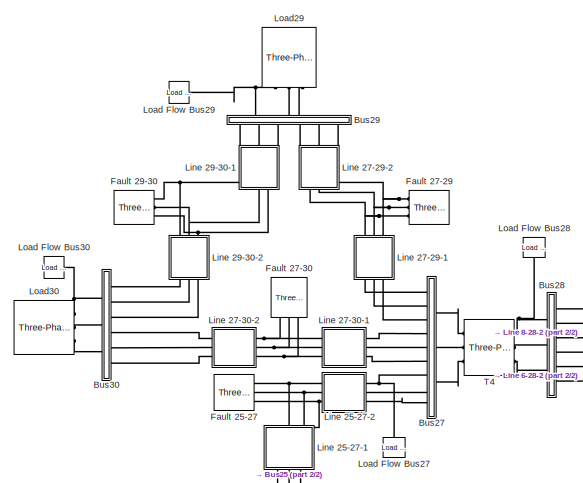
[diagram: root canvas - part 1/2, top right region]
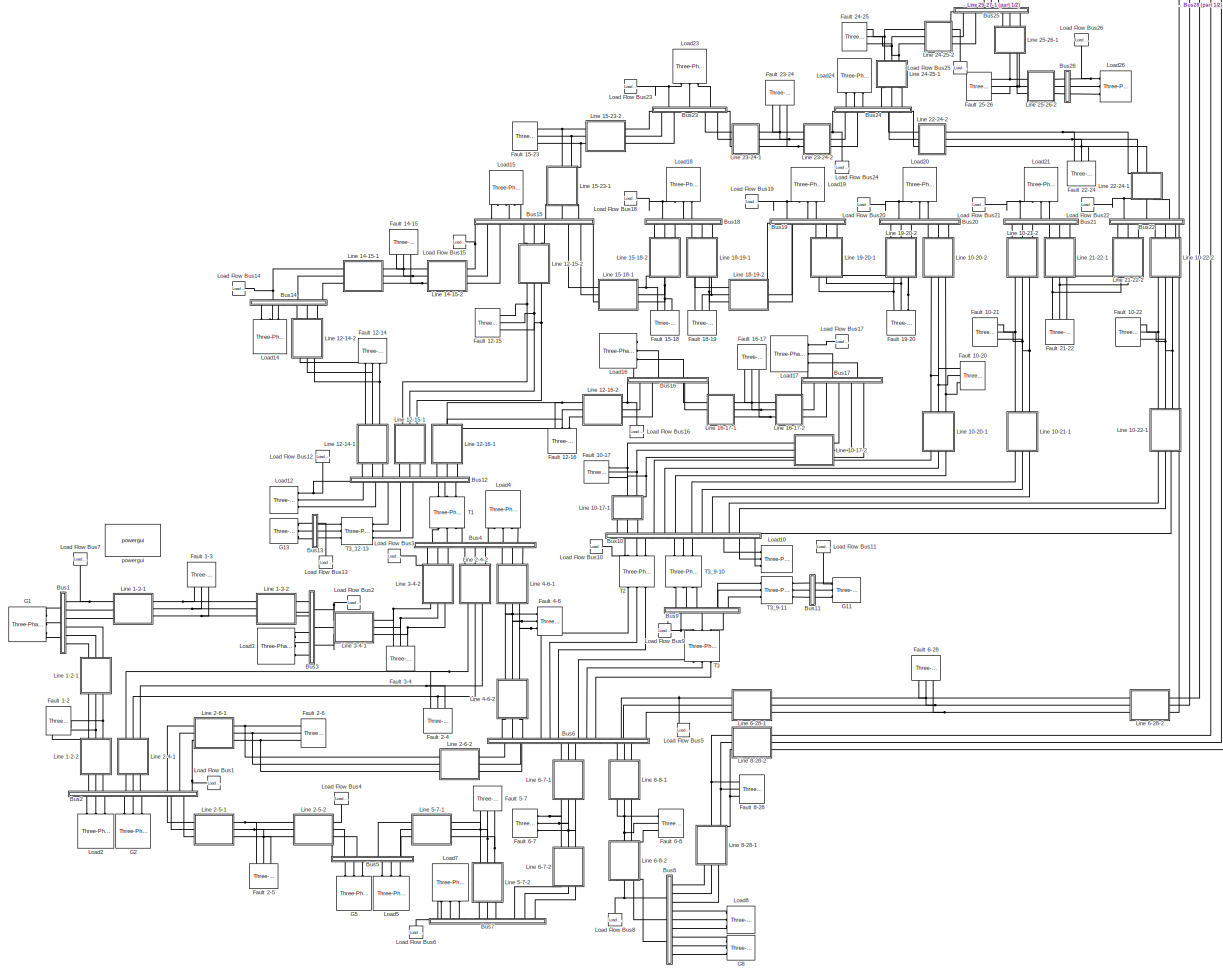
[diagram: root canvas - part 2/2, most of the canvas]
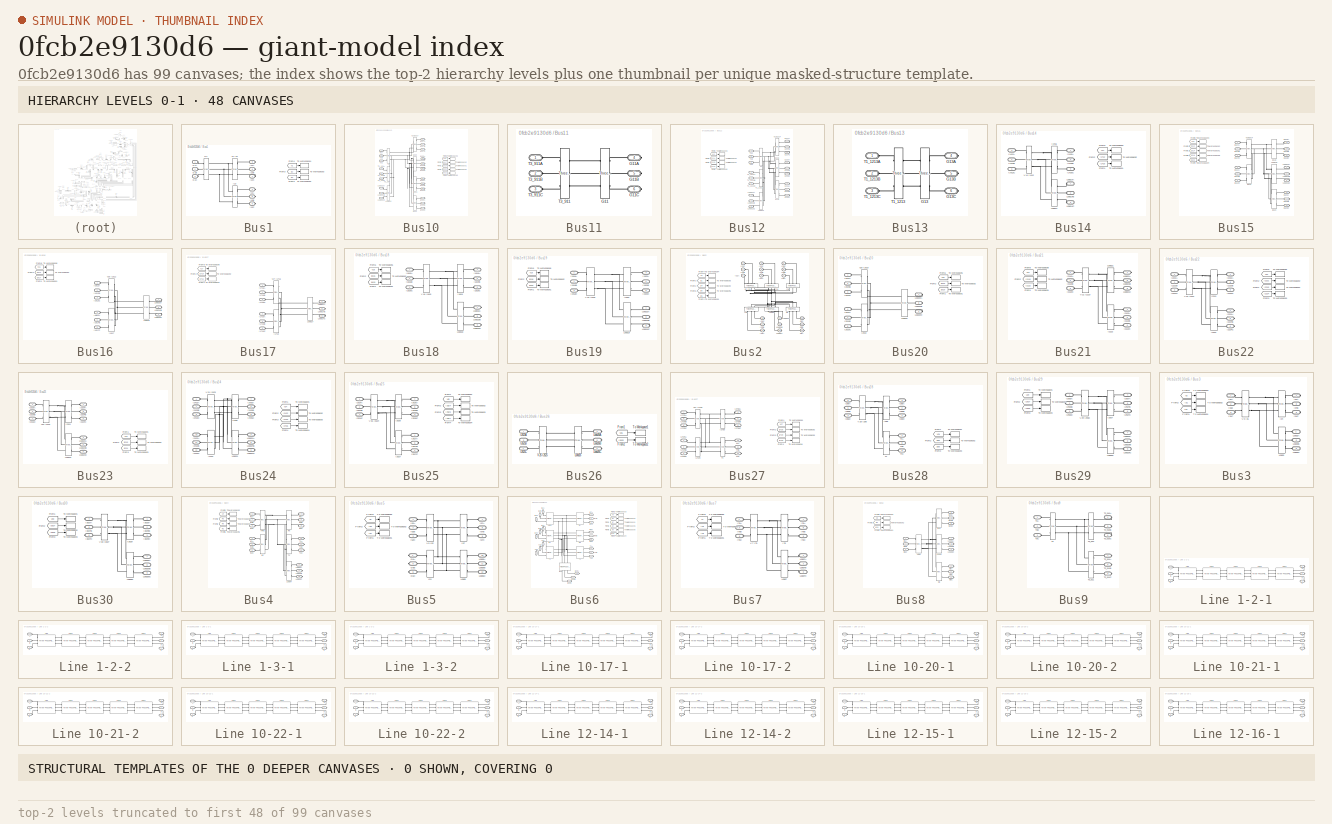
[diagram: thumbnail index - top-2 hierarchy levels (99 canvases (first 48 of 99 shown)) + 0 structural-template representatives of the remaining 0 canvases]
MODEL slx_0fcb2e9130d6
KIND model
CONFIG AbsTol = auto
CONFIG EnableMultiTasking = off
CONFIG FixedStep = auto
CONFIG MaxStep = 1e-4
CONFIG MinStep = auto
CONFIG RelTol = 1e-3
CONFIG SampleTimeConstraint = Unconstrained
CONFIG Solver = VariableStepDiscrete
CONFIG SolverName = VariableStepDiscrete
CONFIG StartTime = 0.0
CONFIG StopTime = 0.012
BLOCK [SubSystem] Bus1
  Ports = [0, 0, 0, 0, 0, 3, 6]
  RequestExecContextInheritance = off
  Variant = off
BLOCK [From] Bus1/From2
  GotoTag = I13
  TagVisibility = global
BLOCK [From] Bus1/From3
  GotoTag = I12
  TagVisibility = global
BLOCK [From] Bus1/From4
  GotoTag = V1
  TagVisibility = global
BLOCK [Reference] Bus1/G1  REF=powerlib/Measurements/Three-Phase
V-I Measurement
  Ports = [0, 0, 0, 0, 0, 3, 3]
  SourceBlock = powerlib/Measurements/Three-Phase\nV-I Measurement
  SourceProductBaseCode = PS
  SourceProductName = Simscape Power Systems
  SourceType = Three-Phase VI Measurement
BLOCK [PMIOPort] Bus1/G1A
  Port = 1
  Side = Left
BLOCK [PMIOPort] Bus1/G1B
  Port = 2
  Side = Left
BLOCK [PMIOPort] Bus1/G1C
  Port = 3
  Side = Left
BLOCK [PMIOPort] Bus1/I12A
  Port = 9
  Side = Right
BLOCK [PMIOPort] Bus1/I12B
  Port = 8
  Side = Right
BLOCK [PMIOPort] Bus1/I12C
  Port = 7
  Side = Right
BLOCK [Reference] Bus1/I13  REF=powerlib/Measurements/Three-Phase
V-I Measurement
  Ports = [0, 0, 0, 0, 0, 3, 3]
  SourceBlock = powerlib/Measurements/Three-Phase\nV-I Measurement
  SourceProductBaseCode = PS
  SourceProductName = Simscape Power Systems
  SourceType = Three-Phase VI Measurement
BLOCK [PMIOPort] Bus1/I13A
  Port = 4
  Side = Right
BLOCK [PMIOPort] Bus1/I13B
  Port = 5
  Side = Right
BLOCK [PMIOPort] Bus1/I13C
  Port = 6
  Side = Right
BLOCK [ToWorkspace] Bus1/To Workspace2
  MaxDataPoints = inf
  Ports = [1]
  SampleTime = 0.01
  SaveFormat = Timeseries
  VariableName = I13
BLOCK [ToWorkspace] Bus1/To Workspace3
  MaxDataPoints = inf
  Ports = [1]
  SampleTime = 0.01
  SaveFormat = Timeseries
  VariableName = I12
BLOCK [ToWorkspace] Bus1/To Workspace4
  MaxDataPoints = inf
  Ports = [1]
  SampleTime = 0.01
  SaveFormat = Timeseries
  VariableName = V1
BLOCK [Reference] Bus1/V1 I12  REF=powerlib/Measurements/Three-Phase
V-I Measurement
  Ports = [0, 0, 0, 0, 0, 3, 3]
  SourceBlock = powerlib/Measurements/Three-Phase\nV-I Measurement
  SourceProductBaseCode = PS
  SourceProductName = Simscape Power Systems
  SourceType = Three-Phase VI Measurement
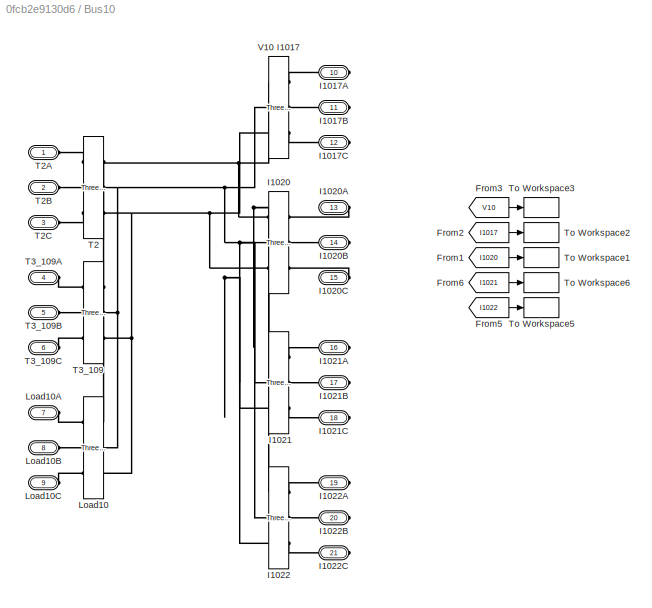
BLOCK [SubSystem] Bus10
  Ports = [0, 0, 0, 0, 0, 9, 12]
  RequestExecContextInheritance = off
  Variant = off
BLOCK [From] Bus10/From1
  GotoTag = I1020
  TagVisibility = global
BLOCK [From] Bus10/From2
  GotoTag = I1017
  TagVisibility = global
BLOCK [From] Bus10/From3
  GotoTag = V10
  TagVisibility = global
BLOCK [From] Bus10/From5
  GotoTag = I1022
  TagVisibility = global
BLOCK [From] Bus10/From6
  GotoTag = I1021
  TagVisibility = global
BLOCK [PMIOPort] Bus10/I1017A
  Port = 10
  Side = Right
BLOCK [PMIOPort] Bus10/I1017B
  Port = 11
  Side = Right
BLOCK [PMIOPort] Bus10/I1017C
  Port = 12
  Side = Right
BLOCK [Reference] Bus10/I1020  REF=powerlib/Measurements/Three-Phase
V-I Measurement
  Ports = [0, 0, 0, 0, 0, 3, 3]
  SourceBlock = powerlib/Measurements/Three-Phase\nV-I Measurement
  SourceProductBaseCode = PS
  SourceProductName = Simscape Power Systems
  SourceType = Three-Phase VI Measurement
BLOCK [PMIOPort] Bus10/I1020A
  Port = 13
  Side = Right
BLOCK [PMIOPort] Bus10/I1020B
  Port = 14
  Side = Right
BLOCK [PMIOPort] Bus10/I1020C
  Port = 15
  Side = Right
BLOCK [Reference] Bus10/I1021  REF=powerlib/Measurements/Three-Phase
V-I Measurement
  Ports = [0, 0, 0, 0, 0, 3, 3]
  SourceBlock = powerlib/Measurements/Three-Phase\nV-I Measurement
  SourceProductBaseCode = PS
  SourceProductName = Simscape Power Systems
  SourceType = Three-Phase VI Measurement
BLOCK [PMIOPort] Bus10/I1021A
  Port = 16
  Side = Right
BLOCK [PMIOPort] Bus10/I1021B
  Port = 17
  Side = Right
BLOCK [PMIOPort] Bus10/I1021C
  Port = 18
  Side = Right
BLOCK [Reference] Bus10/I1022  REF=powerlib/Measurements/Three-Phase
V-I Measurement
  Ports = [0, 0, 0, 0, 0, 3, 3]
  SourceBlock = powerlib/Measurements/Three-Phase\nV-I Measurement
  SourceProductBaseCode = PS
  SourceProductName = Simscape Power Systems
  SourceType = Three-Phase VI Measurement
BLOCK [PMIOPort] Bus10/I1022A
  Port = 19
  Side = Right
BLOCK [PMIOPort] Bus10/I1022B
  Port = 20
  Side = Right
BLOCK [PMIOPort] Bus10/I1022C
  Port = 21
  Side = Right
BLOCK [Reference] Bus10/Load10  REF=powerlib/Measurements/Three-Phase
V-I Measurement
  Ports = [0, 0, 0, 0, 0, 3, 3]
  SourceBlock = powerlib/Measurements/Three-Phase\nV-I Measurement
  SourceProductBaseCode = PS
  SourceProductName = Simscape Power Systems
  SourceType = Three-Phase VI Measurement
BLOCK [PMIOPort] Bus10/Load10A
  Port = 7
  Side = Left
BLOCK [PMIOPort] Bus10/Load10B
  Port = 8
  Side = Left
BLOCK [PMIOPort] Bus10/Load10C
  Port = 9
  Side = Left
BLOCK [Reference] Bus10/T2  REF=powerlib/Measurements/Three-Phase
V-I Measurement
  Ports = [0, 0, 0, 0, 0, 3, 3]
  SourceBlock = powerlib/Measurements/Three-Phase\nV-I Measurement
  SourceProductBaseCode = PS
  SourceProductName = Simscape Power Systems
  SourceType = Three-Phase VI Measurement
BLOCK [PMIOPort] Bus10/T2A
  Port = 1
  Side = Left
BLOCK [PMIOPort] Bus10/T2B
  Port = 2
  Side = Left
BLOCK [PMIOPort] Bus10/T2C
  Port = 3
  Side = Left
BLOCK [Reference] Bus10/T3_109  REF=powerlib/Measurements/Three-Phase
V-I Measurement
  Ports = [0, 0, 0, 0, 0, 3, 3]
  SourceBlock = powerlib/Measurements/Three-Phase\nV-I Measurement
  SourceProductBaseCode = PS
  SourceProductName = Simscape Power Systems
  SourceType = Three-Phase VI Measurement
BLOCK [PMIOPort] Bus10/T3_109A
  Port = 4
  Side = Left
BLOCK [PMIOPort] Bus10/T3_109B
  Port = 5
  Side = Left
BLOCK [PMIOPort] Bus10/T3_109C
  Port = 6
  Side = Left
BLOCK [ToWorkspace] Bus10/To Workspace1
  MaxDataPoints = inf
  Ports = [1]
  SampleTime = 0.01
  SaveFormat = Timeseries
  VariableName = I1020
BLOCK [ToWorkspace] Bus10/To Workspace2
  MaxDataPoints = inf
  Ports = [1]
  SampleTime = 0.01
  SaveFormat = Timeseries
  VariableName = I1017
BLOCK [ToWorkspace] Bus10/To Workspace3
  MaxDataPoints = inf
  Ports = [1]
  SampleTime = 0.01
  SaveFormat = Timeseries
  VariableName = V10
BLOCK [ToWorkspace] Bus10/To Workspace5
  MaxDataPoints = inf
  Ports = [1]
  SampleTime = 0.01
  SaveFormat = Timeseries
  VariableName = I1022
BLOCK [ToWorkspace] Bus10/To Workspace6
  MaxDataPoints = inf
  Ports = [1]
  SampleTime = 0.01
  SaveFormat = Timeseries
  VariableName = I1021
BLOCK [Reference] Bus10/V10 I1017  REF=powerlib/Measurements/Three-Phase
V-I Measurement
  Ports = [0, 0, 0, 0, 0, 3, 3]
  SourceBlock = powerlib/Measurements/Three-Phase\nV-I Measurement
  SourceProductBaseCode = PS
  SourceProductName = Simscape Power Systems
  SourceType = Three-Phase VI Measurement
BLOCK [SubSystem] Bus11
  Ports = [0, 0, 0, 0, 0, 3, 3]
  RequestExecContextInheritance = off
  Variant = off
BLOCK [Reference] Bus11/G11  REF=powerlib/Measurements/Three-Phase
V-I Measurement
  Ports = [0, 0, 0, 0, 0, 3, 3]
  SourceBlock = powerlib/Measurements/Three-Phase\nV-I Measurement
  SourceProductBaseCode = PS
  SourceProductName = Simscape Power Systems
  SourceType = Three-Phase VI Measurement
BLOCK [PMIOPort] Bus11/G11A
  Port = 4
  Side = Right
BLOCK [PMIOPort] Bus11/G11B
  Port = 5
  Side = Right
BLOCK [PMIOPort] Bus11/G11C
  Port = 6
  Side = Right
BLOCK [Reference] Bus11/T3_911  REF=powerlib/Measurements/Three-Phase
V-I Measurement
  Ports = [0, 0, 0, 0, 0, 3, 3]
  SourceBlock = powerlib/Measurements/Three-Phase\nV-I Measurement
  SourceProductBaseCode = PS
  SourceProductName = Simscape Power Systems
  SourceType = Three-Phase VI Measurement
BLOCK [PMIOPort] Bus11/T3_911A
  Port = 1
  Side = Left
BLOCK [PMIOPort] Bus11/T3_911B
  Port = 2
  Side = Left
BLOCK [PMIOPort] Bus11/T3_911C
  Port = 3
  Side = Left
BLOCK [SubSystem] Bus12
  Ports = [0, 0, 0, 0, 0, 9, 9]
  RequestExecContextInheritance = off
  Variant = off
BLOCK [From] Bus12/From1
  GotoTag = I1215
  TagVisibility = global
BLOCK [From] Bus12/From2
  GotoTag = I1214
  TagVisibility = global
BLOCK [From] Bus12/From3
  GotoTag = V12
  TagVisibility = global
BLOCK [From] Bus12/From6
  GotoTag = I1216
  TagVisibility = global
BLOCK [PMIOPort] Bus12/I1214A
  Port = 10
  Side = Right
BLOCK [PMIOPort] Bus12/I1214B
  Port = 11
  Side = Right
BLOCK [PMIOPort] Bus12/I1214C
  Port = 12
  Side = Right
BLOCK [Reference] Bus12/I1215  REF=powerlib/Measurements/Three-Phase
V-I Measurement
  Ports = [0, 0, 0, 0, 0, 3, 3]
  SourceBlock = powerlib/Measurements/Three-Phase\nV-I Measurement
  SourceProductBaseCode = PS
  SourceProductName = Simscape Power Systems
  SourceType = Three-Phase VI Measurement
BLOCK [PMIOPort] Bus12/I1215A
  Port = 13
  Side = Right
BLOCK [PMIOPort] Bus12/I1215B
  Port = 14
  Side = Right
BLOCK [PMIOPort] Bus12/I1215C
  Port = 15
  Side = Right
BLOCK [Reference] Bus12/I1216  REF=powerlib/Measurements/Three-Phase
V-I Measurement
  Ports = [0, 0, 0, 0, 0, 3, 3]
  SourceBlock = powerlib/Measurements/Three-Phase\nV-I Measurement
  SourceProductBaseCode = PS
  SourceProductName = Simscape Power Systems
  SourceType = Three-Phase VI Measurement
BLOCK [PMIOPort] Bus12/I1216A
  Port = 16
  Side = Right
BLOCK [PMIOPort] Bus12/I1216B
  Port = 17
  Side = Right
BLOCK [PMIOPort] Bus12/I1216C
  Port = 18
  Side = Right
BLOCK [Reference] Bus12/Load12  REF=powerlib/Measurements/Three-Phase
V-I Measurement
  Ports = [0, 0, 0, 0, 0, 3, 3]
  SourceBlock = powerlib/Measurements/Three-Phase\nV-I Measurement
  SourceProductBaseCode = PS
  SourceProductName = Simscape Power Systems
  SourceType = Three-Phase VI Measurement
BLOCK [PMIOPort] Bus12/Load12A
  Port = 1
  Side = Left
BLOCK [PMIOPort] Bus12/Load12B
  Port = 2
  Side = Left
BLOCK [PMIOPort] Bus12/Load12C
  Port = 3
  Side = Left
BLOCK [Reference] Bus12/T1  REF=powerlib/Measurements/Three-Phase
V-I Measurement
  Ports = [0, 0, 0, 0, 0, 3, 3]
  SourceBlock = powerlib/Measurements/Three-Phase\nV-I Measurement
  SourceProductBaseCode = PS
  SourceProductName = Simscape Power Systems
  SourceType = Three-Phase VI Measurement
BLOCK [PMIOPort] Bus12/T1A
  Port = 7
  Side = Left
BLOCK [PMIOPort] Bus12/T1B
  Port = 8
  Side = Left
BLOCK [PMIOPort] Bus12/T1C
  Port = 9
  Side = Left
BLOCK [Reference] Bus12/T1_1213  REF=powerlib/Measurements/Three-Phase
V-I Measurement
  Ports = [0, 0, 0, 0, 0, 3, 3]
  SourceBlock = powerlib/Measurements/Three-Phase\nV-I Measurement
  SourceProductBaseCode = PS
  SourceProductName = Simscape Power Systems
  SourceType = Three-Phase VI Measurement
BLOCK [PMIOPort] Bus12/T1_1213A
  Port = 4
  Side = Left
BLOCK [PMIOPort] Bus12/T1_1213B
  Port = 5
  Side = Left
BLOCK [PMIOPort] Bus12/T1_1213C
  Port = 6
  Side = Left
BLOCK [ToWorkspace] Bus12/To Workspace1
  MaxDataPoints = inf
  Ports = [1]
  SampleTime = 0.01
  SaveFormat = Timeseries
  VariableName = I1215
BLOCK [ToWorkspace] Bus12/To Workspace2
  MaxDataPoints = inf
  Ports = [1]
  SampleTime = 0.01
  SaveFormat = Timeseries
  VariableName = I1214
BLOCK [ToWorkspace] Bus12/To Workspace3
  MaxDataPoints = inf
  Ports = [1]
  SampleTime = 0.01
  SaveFormat = Timeseries
  VariableName = V12
BLOCK [ToWorkspace] Bus12/To Workspace6
  MaxDataPoints = inf
  Ports = [1]
  SampleTime = 0.01
  SaveFormat = Timeseries
  VariableName = I1216
BLOCK [Reference] Bus12/V12 I1214  REF=powerlib/Measurements/Three-Phase
V-I Measurement
  Ports = [0, 0, 0, 0, 0, 3, 3]
  SourceBlock = powerlib/Measurements/Three-Phase\nV-I Measurement
  SourceProductBaseCode = PS
  SourceProductName = Simscape Power Systems
  SourceType = Three-Phase VI Measurement
BLOCK [SubSystem] Bus13
  Ports = [0, 0, 0, 0, 0, 3, 3]
  RequestExecContextInheritance = off
  Variant = off
BLOCK [Reference] Bus13/G13  REF=powerlib/Measurements/Three-Phase
V-I Measurement
  Ports = [0, 0, 0, 0, 0, 3, 3]
  SourceBlock = powerlib/Measurements/Three-Phase\nV-I Measurement
  SourceProductBaseCode = PS
  SourceProductName = Simscape Power Systems
  SourceType = Three-Phase VI Measurement
BLOCK [PMIOPort] Bus13/G13A
  Port = 4
  Side = Right
BLOCK [PMIOPort] Bus13/G13B
  Port = 5
  Side = Right
BLOCK [PMIOPort] Bus13/G13C
  Port = 6
  Side = Right
BLOCK [Reference] Bus13/T1_1213  REF=powerlib/Measurements/Three-Phase
V-I Measurement
  Ports = [0, 0, 0, 0, 0, 3, 3]
  SourceBlock = powerlib/Measurements/Three-Phase\nV-I Measurement
  SourceProductBaseCode = PS
  SourceProductName = Simscape Power Systems
  SourceType = Three-Phase VI Measurement
BLOCK [PMIOPort] Bus13/T1_1213A
  Port = 1
  Side = Left
BLOCK [PMIOPort] Bus13/T1_1213B
  Port = 2
  Side = Left
BLOCK [PMIOPort] Bus13/T1_1213C
  Port = 3
  Side = Left
BLOCK [SubSystem] Bus14
  Ports = [0, 0, 0, 0, 0, 6, 3]
  RequestExecContextInheritance = off
  Variant = off
BLOCK [From] Bus14/From1
  GotoTag = I1415
  TagVisibility = global
BLOCK [From] Bus14/From2
  GotoTag = I1412
  TagVisibility = global
BLOCK [From] Bus14/From3
  GotoTag = V14
  TagVisibility = global
BLOCK [PMIOPort] Bus14/I1412A
  Port = 4
  Side = Left
BLOCK [PMIOPort] Bus14/I1412B
  Port = 5
  Side = Left
BLOCK [PMIOPort] Bus14/I1412C
  Port = 6
  Side = Left
BLOCK [Reference] Bus14/I1415  REF=powerlib/Measurements/Three-Phase
V-I Measurement
  Ports = [0, 0, 0, 0, 0, 3, 3]
  SourceBlock = powerlib/Measurements/Three-Phase\nV-I Measurement
  SourceProductBaseCode = PS
  SourceProductName = Simscape Power Systems
  SourceType = Three-Phase VI Measurement
BLOCK [PMIOPort] Bus14/I1415A
  Port = 7
  Side = Right
BLOCK [PMIOPort] Bus14/I1415B
  Port = 8
  Side = Right
BLOCK [PMIOPort] Bus14/I1415C
  Port = 9
  Side = Right
BLOCK [Reference] Bus14/Load14  REF=powerlib/Measurements/Three-Phase
V-I Measurement
  Ports = [0, 0, 0, 0, 0, 3, 3]
  SourceBlock = powerlib/Measurements/Three-Phase\nV-I Measurement
  SourceProductBaseCode = PS
  SourceProductName = Simscape Power Systems
  SourceType = Three-Phase VI Measurement
BLOCK [PMIOPort] Bus14/Load14A
  Port = 1
  Side = Left
BLOCK [PMIOPort] Bus14/Load14B
  Port = 2
  Side = Left
BLOCK [PMIOPort] Bus14/Load14C
  Port = 3
  Side = Left
BLOCK [ToWorkspace] Bus14/To Workspace1
  MaxDataPoints = inf
  Ports = [1]
  SampleTime = 0.01
  SaveFormat = Timeseries
  VariableName = I1415
BLOCK [ToWorkspace] Bus14/To Workspace2
  MaxDataPoints = inf
  Ports = [1]
  SampleTime = 0.01
  SaveFormat = Timeseries
  VariableName = I1412
BLOCK [ToWorkspace] Bus14/To Workspace3
  MaxDataPoints = inf
  Ports = [1]
  SampleTime = 0.01
  SaveFormat = Timeseries
  VariableName = V14
BLOCK [Reference] Bus14/V14 I1412  REF=powerlib/Measurements/Three-Phase
V-I Measurement
  Ports = [0, 0, 0, 0, 0, 3, 3]
  SourceBlock = powerlib/Measurements/Three-Phase\nV-I Measurement
  SourceProductBaseCode = PS
  SourceProductName = Simscape Power Systems
  SourceType = Three-Phase VI Measurement
BLOCK [SubSystem] Bus15
  Ports = [0, 0, 0, 0, 0, 9, 6]
  RequestExecContextInheritance = off
  Variant = off
BLOCK [From] Bus15/From1
  GotoTag = I1514
  TagVisibility = global
BLOCK [From] Bus15/From2
  GotoTag = I1512
  TagVisibility = global
BLOCK [From] Bus15/From3
  GotoTag = V15
  TagVisibility = global
BLOCK [From] Bus15/From4
  GotoTag = I1523
  TagVisibility = global
BLOCK [From] Bus15/From6
  GotoTag = I1518
  TagVisibility = global
BLOCK [Reference] Bus15/I1512  REF=powerlib/Measurements/Three-Phase
V-I Measurement
  Ports = [0, 0, 0, 0, 0, 3, 3]
  SourceBlock = powerlib/Measurements/Three-Phase\nV-I Measurement
  SourceProductBaseCode = PS
  SourceProductName = Simscape Power Systems
  SourceType = Three-Phase VI Measurement
BLOCK [PMIOPort] Bus15/I1512A
  Port = 4
  Side = Left
BLOCK [PMIOPort] Bus15/I1512B
  Port = 5
  Side = Left
BLOCK [PMIOPort] Bus15/I1512C
  Port = 6
  Side = Left
BLOCK [PMIOPort] Bus15/I1514A
  Port = 1
  Side = Left
BLOCK [PMIOPort] Bus15/I1514B
  Port = 2
  Side = Left
BLOCK [PMIOPort] Bus15/I1514C
  Port = 3
  Side = Left
BLOCK [Reference] Bus15/I1518  REF=powerlib/Measurements/Three-Phase
V-I Measurement
  Ports = [0, 0, 0, 0, 0, 3, 3]
  SourceBlock = powerlib/Measurements/Three-Phase\nV-I Measurement
  SourceProductBaseCode = PS
  SourceProductName = Simscape Power Systems
  SourceType = Three-Phase VI Measurement
BLOCK [PMIOPort] Bus15/I1518A
  Port = 13
  Side = Left
BLOCK [PMIOPort] Bus15/I1518B
  Port = 14
  Side = Left
BLOCK [PMIOPort] Bus15/I1518C
  Port = 15
  Side = Left
BLOCK [Reference] Bus15/I1523  REF=powerlib/Measurements/Three-Phase
V-I Measurement
  Ports = [0, 0, 0, 0, 0, 3, 3]
  SourceBlock = powerlib/Measurements/Three-Phase\nV-I Measurement
  SourceProductBaseCode = PS
  SourceProductName = Simscape Power Systems
  SourceType = Three-Phase VI Measurement
BLOCK [PMIOPort] Bus15/I1523A
  Port = 10
  Side = Right
BLOCK [PMIOPort] Bus15/I1523B
  Port = 11
  Side = Right
BLOCK [PMIOPort] Bus15/I1523C
  Port = 12
  Side = Right
BLOCK [Reference] Bus15/Load15  REF=powerlib/Measurements/Three-Phase
V-I Measurement
  Ports = [0, 0, 0, 0, 0, 3, 3]
  SourceBlock = powerlib/Measurements/Three-Phase\nV-I Measurement
  SourceProductBaseCode = PS
  SourceProductName = Simscape Power Systems
  SourceType = Three-Phase VI Measurement
BLOCK [PMIOPort] Bus15/Load15A
  Port = 7
  Side = Right
BLOCK [PMIOPort] Bus15/Load15B
  Port = 8
  Side = Right
BLOCK [PMIOPort] Bus15/Load15C
  Port = 9
  Side = Right
BLOCK [ToWorkspace] Bus15/To Workspace1
  MaxDataPoints = inf
  Ports = [1]
  SampleTime = 0.01
  SaveFormat = Timeseries
  VariableName = I1514
BLOCK [ToWorkspace] Bus15/To Workspace2
  MaxDataPoints = inf
  Ports = [1]
  SampleTime = 0.01
  SaveFormat = Timeseries
  VariableName = I1512
BLOCK [ToWorkspace] Bus15/To Workspace3
  MaxDataPoints = inf
  Ports = [1]
  SampleTime = 0.01
  SaveFormat = Timeseries
  VariableName = V15
BLOCK [ToWorkspace] Bus15/To Workspace4
  MaxDataPoints = inf
  Ports = [1]
  SampleTime = 0.01
  SaveFormat = Timeseries
  VariableName = I1523
BLOCK [ToWorkspace] Bus15/To Workspace6
  MaxDataPoints = inf
  Ports = [1]
  SampleTime = 0.01
  SaveFormat = Timeseries
  VariableName = I1518
BLOCK [Reference] Bus15/V15 I1514  REF=powerlib/Measurements/Three-Phase
V-I Measurement
  Ports = [0, 0, 0, 0, 0, 3, 3]
  SourceBlock = powerlib/Measurements/Three-Phase\nV-I Measurement
  SourceProductBaseCode = PS
  SourceProductName = Simscape Power Systems
  SourceType = Three-Phase VI Measurement
BLOCK [SubSystem] Bus16
  Ports = [0, 0, 0, 0, 0, 6, 3]
  RequestExecContextInheritance = off
  Variant = off
BLOCK [From] Bus16/From1
  GotoTag = I1617
  TagVisibility = global
BLOCK [From] Bus16/From2
  GotoTag = I1612
  TagVisibility = global
BLOCK [From] Bus16/From6
  GotoTag = V16
  TagVisibility = global
BLOCK [PMIOPort] Bus16/I1612A
  Port = 1
  Side = Left
BLOCK [PMIOPort] Bus16/I1612B
  Port = 2
  Side = Left
BLOCK [PMIOPort] Bus16/I1612C
  Port = 3
  Side = Left
BLOCK [Reference] Bus16/I1617  REF=powerlib/Measurements/Three-Phase
V-I Measurement
  Ports = [0, 0, 0, 0, 0, 3, 3]
  SourceBlock = powerlib/Measurements/Three-Phase\nV-I Measurement
  SourceProductBaseCode = PS
  SourceProductName = Simscape Power Systems
  SourceType = Three-Phase VI Measurement
BLOCK [PMIOPort] Bus16/I1617A
  Port = 4
  Side = Left
BLOCK [PMIOPort] Bus16/I1617B
  Port = 5
  Side = Left
BLOCK [PMIOPort] Bus16/I1617C
  Port = 6
  Side = Left
BLOCK [Reference] Bus16/Load16  REF=powerlib/Measurements/Three-Phase
V-I Measurement
  Ports = [0, 0, 0, 0, 0, 3, 3]
  SourceBlock = powerlib/Measurements/Three-Phase\nV-I Measurement
  SourceProductBaseCode = PS
  SourceProductName = Simscape Power Systems
  SourceType = Three-Phase VI Measurement
BLOCK [PMIOPort] Bus16/Load16A
  Port = 7
  Side = Right
BLOCK [PMIOPort] Bus16/Load16B
  Port = 8
  Side = Right
BLOCK [PMIOPort] Bus16/Load16C
  Port = 9
  Side = Right
BLOCK [ToWorkspace] Bus16/To Workspace1
  MaxDataPoints = inf
  Ports = [1]
  SampleTime = 0.01
  SaveFormat = Timeseries
  VariableName = I1617
BLOCK [ToWorkspace] Bus16/To Workspace2
  MaxDataPoints = inf
  Ports = [1]
  SampleTime = 0.01
  SaveFormat = Timeseries
  VariableName = I1612
BLOCK [ToWorkspace] Bus16/To Workspace6
  MaxDataPoints = inf
  Ports = [1]
  SampleTime = 0.01
  SaveFormat = Timeseries
  VariableName = V16
BLOCK [Reference] Bus16/V16 I1612  REF=powerlib/Measurements/Three-Phase
V-I Measurement
  Ports = [0, 0, 0, 0, 0, 3, 3]
  SourceBlock = powerlib/Measurements/Three-Phase\nV-I Measurement
  SourceProductBaseCode = PS
  SourceProductName = Simscape Power Systems
  SourceType = Three-Phase VI Measurement
BLOCK [SubSystem] Bus17
  Ports = [0, 0, 0, 0, 0, 6, 3]
  RequestExecContextInheritance = off
  Variant = off
BLOCK [From] Bus17/From1
  GotoTag = I1716
  TagVisibility = global
BLOCK [From] Bus17/From2
  GotoTag = I1710
  TagVisibility = global
BLOCK [From] Bus17/From6
  GotoTag = V17
  TagVisibility = global
BLOCK [Reference] Bus17/I1710  REF=powerlib/Measurements/Three-Phase
V-I Measurement
  Ports = [0, 0, 0, 0, 0, 3, 3]
  SourceBlock = powerlib/Measurements/Three-Phase\nV-I Measurement
  SourceProductBaseCode = PS
  SourceProductName = Simscape Power Systems
  SourceType = Three-Phase VI Measurement
BLOCK [PMIOPort] Bus17/I1710A
  Port = 4
  Side = Left
BLOCK [PMIOPort] Bus17/I1710B
  Port = 5
  Side = Left
BLOCK [PMIOPort] Bus17/I1710C
  Port = 6
  Side = Left
BLOCK [PMIOPort] Bus17/I1716A
  Port = 1
  Side = Left
BLOCK [PMIOPort] Bus17/I1716B
  Port = 2
  Side = Left
BLOCK [PMIOPort] Bus17/I1716C
  Port = 3
  Side = Left
BLOCK [Reference] Bus17/Load17  REF=powerlib/Measurements/Three-Phase
V-I Measurement
  Ports = [0, 0, 0, 0, 0, 3, 3]
  SourceBlock = powerlib/Measurements/Three-Phase\nV-I Measurement
  SourceProductBaseCode = PS
  SourceProductName = Simscape Power Systems
  SourceType = Three-Phase VI Measurement
BLOCK [PMIOPort] Bus17/Load17A
  Port = 7
  Side = Right
BLOCK [PMIOPort] Bus17/Load17B
  Port = 8
  Side = Right
BLOCK [PMIOPort] Bus17/Load17C
  Port = 9
  Side = Right
BLOCK [ToWorkspace] Bus17/To Workspace1
  MaxDataPoints = inf
  Ports = [1]
  SampleTime = 0.01
  SaveFormat = Timeseries
  VariableName = I1716
BLOCK [ToWorkspace] Bus17/To Workspace2
  MaxDataPoints = inf
  Ports = [1]
  SampleTime = 0.01
  SaveFormat = Timeseries
  VariableName = I1710
BLOCK [ToWorkspace] Bus17/To Workspace6
  MaxDataPoints = inf
  Ports = [1]
  SampleTime = 0.01
  SaveFormat = Timeseries
  VariableName = V17
BLOCK [Reference] Bus17/V17 I1716  REF=powerlib/Measurements/Three-Phase
V-I Measurement
  Ports = [0, 0, 0, 0, 0, 3, 3]
  SourceBlock = powerlib/Measurements/Three-Phase\nV-I Measurement
  SourceProductBaseCode = PS
  SourceProductName = Simscape Power Systems
  SourceType = Three-Phase VI Measurement
BLOCK [SubSystem] Bus18
  Ports = [0, 0, 0, 0, 0, 6, 3]
  RequestExecContextInheritance = off
  Variant = off
BLOCK [From] Bus18/From1
  GotoTag = I1819
  TagVisibility = global
BLOCK [From] Bus18/From2
  GotoTag = I1815
  TagVisibility = global
BLOCK [From] Bus18/From6
  GotoTag = V18
  TagVisibility = global
BLOCK [PMIOPort] Bus18/I1815A
  Port = 1
  Side = Left
BLOCK [PMIOPort] Bus18/I1815B
  Port = 2
  Side = Left
BLOCK [PMIOPort] Bus18/I1815C
  Port = 3
  Side = Left
BLOCK [Reference] Bus18/I1819  REF=powerlib/Measurements/Three-Phase
V-I Measurement
  Ports = [0, 0, 0, 0, 0, 3, 3]
  SourceBlock = powerlib/Measurements/Three-Phase\nV-I Measurement
  SourceProductBaseCode = PS
  SourceProductName = Simscape Power Systems
  SourceType = Three-Phase VI Measurement
BLOCK [PMIOPort] Bus18/I1819A
  Port = 4
  Side = Left
BLOCK [PMIOPort] Bus18/I1819B
  Port = 5
  Side = Left
BLOCK [PMIOPort] Bus18/I1819C
  Port = 6
  Side = Left
BLOCK [Reference] Bus18/Load18  REF=powerlib/Measurements/Three-Phase
V-I Measurement
  Ports = [0, 0, 0, 0, 0, 3, 3]
  SourceBlock = powerlib/Measurements/Three-Phase\nV-I Measurement
  SourceProductBaseCode = PS
  SourceProductName = Simscape Power Systems
  SourceType = Three-Phase VI Measurement
BLOCK [PMIOPort] Bus18/Load18A
  Port = 7
  Side = Right
BLOCK [PMIOPort] Bus18/Load18B
  Port = 8
  Side = Right
BLOCK [PMIOPort] Bus18/Load18C
  Port = 9
  Side = Right
BLOCK [ToWorkspace] Bus18/To Workspace1
  MaxDataPoints = inf
  Ports = [1]
  SampleTime = 0.01
  SaveFormat = Timeseries
  VariableName = I1819
BLOCK [ToWorkspace] Bus18/To Workspace2
  MaxDataPoints = inf
  Ports = [1]
  SampleTime = 0.01
  SaveFormat = Timeseries
  VariableName = I1815
BLOCK [ToWorkspace] Bus18/To Workspace6
  MaxDataPoints = inf
  Ports = [1]
  SampleTime = 0.01
  SaveFormat = Timeseries
  VariableName = V18
BLOCK [Reference] Bus18/V18 I1815  REF=powerlib/Measurements/Three-Phase
V-I Measurement
  Ports = [0, 0, 0, 0, 0, 3, 3]
  SourceBlock = powerlib/Measurements/Three-Phase\nV-I Measurement
  SourceProductBaseCode = PS
  SourceProductName = Simscape Power Systems
  SourceType = Three-Phase VI Measurement
BLOCK [SubSystem] Bus19
  Ports = [0, 0, 0, 0, 0, 6, 3]
  RequestExecContextInheritance = off
  Variant = off
BLOCK [From] Bus19/From1
  GotoTag = I1920
  TagVisibility = global
BLOCK [From] Bus19/From2
  GotoTag = I1918
  TagVisibility = global
BLOCK [From] Bus19/From6
  GotoTag = V19
  TagVisibility = global
BLOCK [PMIOPort] Bus19/I1918A
  Port = 1
  Side = Left
BLOCK [PMIOPort] Bus19/I1918B
  Port = 2
  Side = Left
BLOCK [PMIOPort] Bus19/I1918C
  Port = 3
  Side = Left
BLOCK [Reference] Bus19/I1920  REF=powerlib/Measurements/Three-Phase
V-I Measurement
  Ports = [0, 0, 0, 0, 0, 3, 3]
  SourceBlock = powerlib/Measurements/Three-Phase\nV-I Measurement
  SourceProductBaseCode = PS
  SourceProductName = Simscape Power Systems
  SourceType = Three-Phase VI Measurement
BLOCK [PMIOPort] Bus19/I1920A
  Port = 4
  Side = Left
BLOCK [PMIOPort] Bus19/I1920B
  Port = 5
  Side = Left
BLOCK [PMIOPort] Bus19/I1920C
  Port = 6
  Side = Left
BLOCK [Reference] Bus19/Load19  REF=powerlib/Measurements/Three-Phase
V-I Measurement
  Ports = [0, 0, 0, 0, 0, 3, 3]
  SourceBlock = powerlib/Measurements/Three-Phase\nV-I Measurement
  SourceProductBaseCode = PS
  SourceProductName = Simscape Power Systems
  SourceType = Three-Phase VI Measurement
BLOCK [PMIOPort] Bus19/Load19A
  Port = 7
  Side = Right
BLOCK [PMIOPort] Bus19/Load19B
  Port = 8
  Side = Right
BLOCK [PMIOPort] Bus19/Load19C
  Port = 9
  Side = Right
BLOCK [ToWorkspace] Bus19/To Workspace1
  MaxDataPoints = inf
  Ports = [1]
  SampleTime = 0.01
  SaveFormat = Timeseries
  VariableName = I1920
BLOCK [ToWorkspace] Bus19/To Workspace2
  MaxDataPoints = inf
  Ports = [1]
  SampleTime = 0.01
  SaveFormat = Timeseries
  VariableName = I1918
BLOCK [ToWorkspace] Bus19/To Workspace6
  MaxDataPoints = inf
  Ports = [1]
  SampleTime = 0.01
  SaveFormat = Timeseries
  VariableName = V19
BLOCK [Reference] Bus19/V19 I1918  REF=powerlib/Measurements/Three-Phase
V-I Measurement
  Ports = [0, 0, 0, 0, 0, 3, 3]
  SourceBlock = powerlib/Measurements/Three-Phase\nV-I Measurement
  SourceProductBaseCode = PS
  SourceProductName = Simscape Power Systems
  SourceType = Three-Phase VI Measurement
BLOCK [SubSystem] Bus2
  Ports = [0, 0, 0, 0, 0, 9, 9]
  RequestExecContextInheritance = off
  Variant = off
BLOCK [From] Bus2/From1
  GotoTag = I25
  TagVisibility = global
BLOCK [From] Bus2/From2
  GotoTag = I24
  TagVisibility = global
BLOCK [From] Bus2/From3
  GotoTag = I21
  TagVisibility = global
BLOCK [From] Bus2/From4
  GotoTag = V2
  TagVisibility = global
BLOCK [From] Bus2/From5
  GotoTag = I26
  TagVisibility = global
BLOCK [Reference] Bus2/G2  REF=powerlib/Measurements/Three-Phase
V-I Measurement
  Ports = [0, 0, 0, 0, 0, 3, 3]
  SourceBlock = powerlib/Measurements/Three-Phase\nV-I Measurement
  SourceProductBaseCode = PS
  SourceProductName = Simscape Power Systems
  SourceType = Three-Phase VI Measurement
BLOCK [PMIOPort] Bus2/G2A
  Port = 13
  Side = Right
BLOCK [PMIOPort] Bus2/G2B
  Port = 14
  Side = Right
BLOCK [PMIOPort] Bus2/G2C
  Port = 15
  Side = Right
BLOCK [PMIOPort] Bus2/I21A
  Port = 1
  Side = Left
BLOCK [PMIOPort] Bus2/I21B
  Port = 2
  Side = Left
BLOCK [PMIOPort] Bus2/I21C
  Port = 3
  Side = Left
BLOCK [Reference] Bus2/I24  REF=powerlib/Measurements/Three-Phase
V-I Measurement
  Ports = [0, 0, 0, 0, 0, 3, 3]
  SourceBlock = powerlib/Measurements/Three-Phase\nV-I Measurement
  SourceProductBaseCode = PS
  SourceProductName = Simscape Power Systems
  SourceType = Three-Phase VI Measurement
BLOCK [PMIOPort] Bus2/I24A
  Port = 4
  Side = Left
BLOCK [PMIOPort] Bus2/I24B
  Port = 5
  Side = Left
BLOCK [PMIOPort] Bus2/I24C
  Port = 6
  Side = Left
BLOCK [Reference] Bus2/I25  REF=powerlib/Measurements/Three-Phase
V-I Measurement
  Ports = [0, 0, 0, 0, 0, 3, 3]
  SourceBlock = powerlib/Measurements/Three-Phase\nV-I Measurement
  SourceProductBaseCode = PS
  SourceProductName = Simscape Power Systems
  SourceType = Three-Phase VI Measurement
BLOCK [PMIOPort] Bus2/I25A
  Port = 16
  Side = Right
BLOCK [PMIOPort] Bus2/I25B
  Port = 17
  Side = Right
BLOCK [PMIOPort] Bus2/I25C
  Port = 18
  Side = Right
BLOCK [Reference] Bus2/I26  REF=powerlib/Measurements/Three-Phase
V-I Measurement
  Ports = [0, 0, 0, 0, 0, 3, 3]
  SourceBlock = powerlib/Measurements/Three-Phase\nV-I Measurement
  SourceProductBaseCode = PS
  SourceProductName = Simscape Power Systems
  SourceType = Three-Phase VI Measurement
BLOCK [PMIOPort] Bus2/I26A
  Port = 7
  Side = Left
BLOCK [PMIOPort] Bus2/I26B
  Port = 8
  Side = Left
BLOCK [PMIOPort] Bus2/I26C
  Port = 9
  Side = Left
BLOCK [Reference] Bus2/Load2  REF=powerlib/Measurements/Three-Phase
V-I Measurement
  Ports = [0, 0, 0, 0, 0, 3, 3]
  SourceBlock = powerlib/Measurements/Three-Phase\nV-I Measurement
  SourceProductBaseCode = PS
  SourceProductName = Simscape Power Systems
  SourceType = Three-Phase VI Measurement
BLOCK [PMIOPort] Bus2/Load2A
  Port = 10
  Side = Right
BLOCK [PMIOPort] Bus2/Load2B
  Port = 11
  Side = Right
BLOCK [PMIOPort] Bus2/Load2C
  Port = 12
  Side = Right
BLOCK [ToWorkspace] Bus2/To Workspace1
  MaxDataPoints = inf
  Ports = [1]
  SampleTime = 0.01
  SaveFormat = Timeseries
  VariableName = I25
BLOCK [ToWorkspace] Bus2/To Workspace2
  MaxDataPoints = inf
  Ports = [1]
  SampleTime = 0.01
  SaveFormat = Timeseries
  VariableName = I24
BLOCK [ToWorkspace] Bus2/To Workspace3
  MaxDataPoints = inf
  Ports = [1]
  SampleTime = 0.01
  SaveFormat = Timeseries
  VariableName = I21
BLOCK [ToWorkspace] Bus2/To Workspace4
  MaxDataPoints = inf
  Ports = [1]
  SampleTime = 0.01
  SaveFormat = Timeseries
  VariableName = V2
BLOCK [ToWorkspace] Bus2/To Workspace5
  MaxDataPoints = inf
  Ports = [1]
  SampleTime = 0.01
  SaveFormat = Timeseries
  VariableName = I26
BLOCK [Reference] Bus2/V2 I21  REF=powerlib/Measurements/Three-Phase
V-I Measurement
  Ports = [0, 0, 0, 0, 0, 3, 3]
  SourceBlock = powerlib/Measurements/Three-Phase\nV-I Measurement
  SourceProductBaseCode = PS
  SourceProductName = Simscape Power Systems
  SourceType = Three-Phase VI Measurement
BLOCK [SubSystem] Bus20
  Ports = [0, 0, 0, 0, 0, 6, 3]
  RequestExecContextInheritance = off
  Variant = off
BLOCK [From] Bus20/From1
  GotoTag = I2019
  TagVisibility = global
BLOCK [From] Bus20/From2
  GotoTag = I2010
  TagVisibility = global
BLOCK [From] Bus20/From6
  GotoTag = V20
  TagVisibility = global
BLOCK [Reference] Bus20/I2010  REF=powerlib/Measurements/Three-Phase
V-I Measurement
  Ports = [0, 0, 0, 0, 0, 3, 3]
  SourceBlock = powerlib/Measurements/Three-Phase\nV-I Measurement
  SourceProductBaseCode = PS
  SourceProductName = Simscape Power Systems
  SourceType = Three-Phase VI Measurement
BLOCK [PMIOPort] Bus20/I2010A
  Port = 4
  Side = Left
BLOCK [PMIOPort] Bus20/I2010B
  Port = 5
  Side = Left
BLOCK [PMIOPort] Bus20/I2010C
  Port = 6
  Side = Left
BLOCK [PMIOPort] Bus20/I2019A
  Port = 1
  Side = Left
BLOCK [PMIOPort] Bus20/I2019B
  Port = 2
  Side = Left
BLOCK [PMIOPort] Bus20/I2019C
  Port = 3
  Side = Left
BLOCK [Reference] Bus20/Load20  REF=powerlib/Measurements/Three-Phase
V-I Measurement
  Ports = [0, 0, 0, 0, 0, 3, 3]
  SourceBlock = powerlib/Measurements/Three-Phase\nV-I Measurement
  SourceProductBaseCode = PS
  SourceProductName = Simscape Power Systems
  SourceType = Three-Phase VI Measurement
BLOCK [PMIOPort] Bus20/Load20A
  Port = 7
  Side = Right
BLOCK [PMIOPort] Bus20/Load20B
  Port = 8
  Side = Right
BLOCK [PMIOPort] Bus20/Load20C
  Port = 9
  Side = Right
BLOCK [ToWorkspace] Bus20/To Workspace1
  MaxDataPoints = inf
  Ports = [1]
  SampleTime = 0.01
  SaveFormat = Timeseries
  VariableName = I2019
BLOCK [ToWorkspace] Bus20/To Workspace2
  MaxDataPoints = inf
  Ports = [1]
  SampleTime = 0.01
  SaveFormat = Timeseries
  VariableName = I2010
BLOCK [ToWorkspace] Bus20/To Workspace6
  MaxDataPoints = inf
  Ports = [1]
  SampleTime = 0.01
  SaveFormat = Timeseries
  VariableName = V20
BLOCK [Reference] Bus20/V20 I2019  REF=powerlib/Measurements/Three-Phase
V-I Measurement
  Ports = [0, 0, 0, 0, 0, 3, 3]
  SourceBlock = powerlib/Measurements/Three-Phase\nV-I Measurement
  SourceProductBaseCode = PS
  SourceProductName = Simscape Power Systems
  SourceType = Three-Phase VI Measurement
BLOCK [SubSystem] Bus21
  Ports = [0, 0, 0, 0, 0, 6, 3]
  RequestExecContextInheritance = off
  Variant = off
BLOCK [From] Bus21/From1
  GotoTag = I2122
  TagVisibility = global
BLOCK [From] Bus21/From2
  GotoTag = I2110
  TagVisibility = global
BLOCK [From] Bus21/From6
  GotoTag = V21
  TagVisibility = global
BLOCK [PMIOPort] Bus21/I2110A
  Port = 1
  Side = Left
BLOCK [PMIOPort] Bus21/I2110B
  Port = 2
  Side = Left
BLOCK [PMIOPort] Bus21/I2110C
  Port = 3
  Side = Left
BLOCK [Reference] Bus21/I2122  REF=powerlib/Measurements/Three-Phase
V-I Measurement
  Ports = [0, 0, 0, 0, 0, 3, 3]
  SourceBlock = powerlib/Measurements/Three-Phase\nV-I Measurement
  SourceProductBaseCode = PS
  SourceProductName = Simscape Power Systems
  SourceType = Three-Phase VI Measurement
BLOCK [PMIOPort] Bus21/I2122A
  Port = 4
  Side = Left
BLOCK [PMIOPort] Bus21/I2122B
  Port = 5
  Side = Left
BLOCK [PMIOPort] Bus21/I2122C
  Port = 6
  Side = Left
BLOCK [Reference] Bus21/Load21  REF=powerlib/Measurements/Three-Phase
V-I Measurement
  Ports = [0, 0, 0, 0, 0, 3, 3]
  SourceBlock = powerlib/Measurements/Three-Phase\nV-I Measurement
  SourceProductBaseCode = PS
  SourceProductName = Simscape Power Systems
  SourceType = Three-Phase VI Measurement
BLOCK [PMIOPort] Bus21/Load21A
  Port = 7
  Side = Right
BLOCK [PMIOPort] Bus21/Load21B
  Port = 8
  Side = Right
BLOCK [PMIOPort] Bus21/Load21C
  Port = 9
  Side = Right
BLOCK [ToWorkspace] Bus21/To Workspace1
  MaxDataPoints = inf
  Ports = [1]
  SampleTime = 0.01
  SaveFormat = Timeseries
  VariableName = I2122
BLOCK [ToWorkspace] Bus21/To Workspace2
  MaxDataPoints = inf
  Ports = [1]
  SampleTime = 0.01
  SaveFormat = Timeseries
  VariableName = I2110
BLOCK [ToWorkspace] Bus21/To Workspace6
  MaxDataPoints = inf
  Ports = [1]
  SampleTime = 0.01
  SaveFormat = Timeseries
  VariableName = V21
BLOCK [Reference] Bus21/V21 I2110  REF=powerlib/Measurements/Three-Phase
V-I Measurement
  Ports = [0, 0, 0, 0, 0, 3, 3]
  SourceBlock = powerlib/Measurements/Three-Phase\nV-I Measurement
  SourceProductBaseCode = PS
  SourceProductName = Simscape Power Systems
  SourceType = Three-Phase VI Measurement
BLOCK [SubSystem] Bus22
  Ports = [0, 0, 0, 0, 0, 6, 3]
  RequestExecContextInheritance = off
  Variant = off
BLOCK [From] Bus22/From1
  GotoTag = I2210
  TagVisibility = global
BLOCK [From] Bus22/From2
  GotoTag = I2221
  TagVisibility = global
BLOCK [From] Bus22/From3
  GotoTag = I2224
  TagVisibility = global
BLOCK [From] Bus22/From6
  GotoTag = V22
  TagVisibility = global
BLOCK [Reference] Bus22/I2210  REF=powerlib/Measurements/Three-Phase
V-I Measurement
  Ports = [0, 0, 0, 0, 0, 3, 3]
  SourceBlock = powerlib/Measurements/Three-Phase\nV-I Measurement
  SourceProductBaseCode = PS
  SourceProductName = Simscape Power Systems
  SourceType = Three-Phase VI Measurement
BLOCK [PMIOPort] Bus22/I2210A
  Port = 7
  Side = Left
BLOCK [PMIOPort] Bus22/I2210B
  Port = 8
  Side = Left
BLOCK [PMIOPort] Bus22/I2210C
  Port = 9
  Side = Left
BLOCK [PMIOPort] Bus22/I2221A
  Port = 1
  Side = Left
BLOCK [PMIOPort] Bus22/I2221B
  Port = 2
  Side = Left
BLOCK [PMIOPort] Bus22/I2221C
  Port = 3
  Side = Left
BLOCK [Reference] Bus22/I2224  REF=powerlib/Measurements/Three-Phase
V-I Measurement
  Ports = [0, 0, 0, 0, 0, 3, 3]
  SourceBlock = powerlib/Measurements/Three-Phase\nV-I Measurement
  SourceProductBaseCode = PS
  SourceProductName = Simscape Power Systems
  SourceType = Three-Phase VI Measurement
BLOCK [PMIOPort] Bus22/I2224A
  Port = 4
  Side = Right
BLOCK [PMIOPort] Bus22/I2224B
  Port = 5
  Side = Right
BLOCK [PMIOPort] Bus22/I2224C
  Port = 6
  Side = Right
BLOCK [ToWorkspace] Bus22/To Workspace1
  MaxDataPoints = inf
  Ports = [1]
  SampleTime = 0.01
  SaveFormat = Timeseries
  VariableName = I2210
BLOCK [ToWorkspace] Bus22/To Workspace2
  MaxDataPoints = inf
  Ports = [1]
  SampleTime = 0.01
  SaveFormat = Timeseries
  VariableName = I2221
BLOCK [ToWorkspace] Bus22/To Workspace3
  MaxDataPoints = inf
  Ports = [1]
  SampleTime = 0.01
  SaveFormat = Timeseries
  VariableName = I2224
BLOCK [ToWorkspace] Bus22/To Workspace6
  MaxDataPoints = inf
  Ports = [1]
  SampleTime = 0.01
  SaveFormat = Timeseries
  VariableName = V22
BLOCK [Reference] Bus22/V22 I2221  REF=powerlib/Measurements/Three-Phase
V-I Measurement
  Ports = [0, 0, 0, 0, 0, 3, 3]
  SourceBlock = powerlib/Measurements/Three-Phase\nV-I Measurement
  SourceProductBaseCode = PS
  SourceProductName = Simscape Power Systems
  SourceType = Three-Phase VI Measurement
BLOCK [SubSystem] Bus23
  Ports = [0, 0, 0, 0, 0, 6, 3]
  RequestExecContextInheritance = off
  Variant = off
BLOCK [From] Bus23/From1
  GotoTag = V23
  TagVisibility = global
BLOCK [From] Bus23/From2
  GotoTag = I2315
  TagVisibility = global
BLOCK [From] Bus23/From3
  GotoTag = I2324
  TagVisibility = global
BLOCK [PMIOPort] Bus23/I2315A
  Port = 1
  Side = Left
BLOCK [PMIOPort] Bus23/I2315B
  Port = 2
  Side = Left
BLOCK [PMIOPort] Bus23/I2315C
  Port = 3
  Side = Left
BLOCK [Reference] Bus23/I2324  REF=powerlib/Measurements/Three-Phase
V-I Measurement
  Ports = [0, 0, 0, 0, 0, 3, 3]
  SourceBlock = powerlib/Measurements/Three-Phase\nV-I Measurement
  SourceProductBaseCode = PS
  SourceProductName = Simscape Power Systems
  SourceType = Three-Phase VI Measurement
BLOCK [PMIOPort] Bus23/I2324A
  Port = 7
  Side = Left
BLOCK [PMIOPort] Bus23/I2324B
  Port = 8
  Side = Left
BLOCK [PMIOPort] Bus23/I2324C
  Port = 9
  Side = Left
BLOCK [Reference] Bus23/Load23  REF=powerlib/Measurements/Three-Phase
V-I Measurement
  Ports = [0, 0, 0, 0, 0, 3, 3]
  SourceBlock = powerlib/Measurements/Three-Phase\nV-I Measurement
  SourceProductBaseCode = PS
  SourceProductName = Simscape Power Systems
  SourceType = Three-Phase VI Measurement
BLOCK [PMIOPort] Bus23/Load23A
  Port = 4
  Side = Right
BLOCK [PMIOPort] Bus23/Load23B
  Port = 5
  Side = Right
BLOCK [PMIOPort] Bus23/Load23C
  Port = 6
  Side = Right
BLOCK [ToWorkspace] Bus23/To Workspace1
  MaxDataPoints = inf
  Ports = [1]
  SampleTime = 0.01
  SaveFormat = Timeseries
  VariableName = V23
BLOCK [ToWorkspace] Bus23/To Workspace2
  MaxDataPoints = inf
  Ports = [1]
  SampleTime = 0.01
  SaveFormat = Timeseries
  VariableName = I2315
BLOCK [ToWorkspace] Bus23/To Workspace3
  MaxDataPoints = inf
  Ports = [1]
  SampleTime = 0.01
  SaveFormat = Timeseries
  VariableName = I2324
BLOCK [Reference] Bus23/V23 I2315  REF=powerlib/Measurements/Three-Phase
V-I Measurement
  Ports = [0, 0, 0, 0, 0, 3, 3]
  SourceBlock = powerlib/Measurements/Three-Phase\nV-I Measurement
  SourceProductBaseCode = PS
  SourceProductName = Simscape Power Systems
  SourceType = Three-Phase VI Measurement
BLOCK [SubSystem] Bus24
  Ports = [0, 0, 0, 0, 0, 6, 6]
  RequestExecContextInheritance = off
  Variant = off
BLOCK [From] Bus24/From1
  GotoTag = V24
  TagVisibility = global
BLOCK [From] Bus24/From2
  GotoTag = I2422
  TagVisibility = global
BLOCK [From] Bus24/From3
  GotoTag = I2423
  TagVisibility = global
BLOCK [From] Bus24/From4
  GotoTag = I2425
  TagVisibility = global
BLOCK [Reference] Bus24/I2422  REF=powerlib/Measurements/Three-Phase
V-I Measurement
  Ports = [0, 0, 0, 0, 0, 3, 3]
  SourceBlock = powerlib/Measurements/Three-Phase\nV-I Measurement
  SourceProductBaseCode = PS
  SourceProductName = Simscape Power Systems
  SourceType = Three-Phase VI Measurement
BLOCK [PMIOPort] Bus24/I2422A
  Port = 10
  Side = Left
BLOCK [PMIOPort] Bus24/I2422B
  Port = 11
  Side = Left
BLOCK [PMIOPort] Bus24/I2422C
  Port = 12
  Side = Left
BLOCK [PMIOPort] Bus24/I2423A
  Port = 1
  Side = Left
BLOCK [PMIOPort] Bus24/I2423B
  Port = 2
  Side = Left
BLOCK [PMIOPort] Bus24/I2423C
  Port = 3
  Side = Left
BLOCK [Reference] Bus24/I2425  REF=powerlib/Measurements/Three-Phase
V-I Measurement
  Ports = [0, 0, 0, 0, 0, 3, 3]
  SourceBlock = powerlib/Measurements/Three-Phase\nV-I Measurement
  SourceProductBaseCode = PS
  SourceProductName = Simscape Power Systems
  SourceType = Three-Phase VI Measurement
BLOCK [PMIOPort] Bus24/I2425A
  Port = 7
  Side = Right
BLOCK [PMIOPort] Bus24/I2425B
  Port = 8
  Side = Right
BLOCK [PMIOPort] Bus24/I2425C
  Port = 9
  Side = Right
BLOCK [Reference] Bus24/Load24  REF=powerlib/Measurements/Three-Phase
V-I Measurement
  Ports = [0, 0, 0, 0, 0, 3, 3]
  SourceBlock = powerlib/Measurements/Three-Phase\nV-I Measurement
  SourceProductBaseCode = PS
  SourceProductName = Simscape Power Systems
  SourceType = Three-Phase VI Measurement
BLOCK [PMIOPort] Bus24/Load24A
  Port = 4
  Side = Right
BLOCK [PMIOPort] Bus24/Load24B
  Port = 5
  Side = Right
BLOCK [PMIOPort] Bus24/Load24C
  Port = 6
  Side = Right
BLOCK [ToWorkspace] Bus24/To Workspace1
  MaxDataPoints = inf
  Ports = [1]
  SampleTime = 0.01
  SaveFormat = Timeseries
  VariableName = V24
BLOCK [ToWorkspace] Bus24/To Workspace2
  MaxDataPoints = inf
  Ports = [1]
  SampleTime = 0.01
  SaveFormat = Timeseries
  VariableName = I2422
BLOCK [ToWorkspace] Bus24/To Workspace3
  MaxDataPoints = inf
  Ports = [1]
  SampleTime = 0.01
  SaveFormat = Timeseries
  VariableName = I2423
BLOCK [ToWorkspace] Bus24/To Workspace4
  MaxDataPoints = inf
  Ports = [1]
  SampleTime = 0.01
  SaveFormat = Timeseries
  VariableName = I2425
BLOCK [Reference] Bus24/V24 I2423  REF=powerlib/Measurements/Three-Phase
V-I Measurement
  Ports = [0, 0, 0, 0, 0, 3, 3]
  SourceBlock = powerlib/Measurements/Three-Phase\nV-I Measurement
  SourceProductBaseCode = PS
  SourceProductName = Simscape Power Systems
  SourceType = Three-Phase VI Measurement
BLOCK [SubSystem] Bus25
  Ports = [0, 0, 0, 0, 0, 6, 3]
  RequestExecContextInheritance = off
  Variant = off
BLOCK [From] Bus25/From1
  GotoTag = V25
  TagVisibility = global
BLOCK [From] Bus25/From2
  GotoTag = I2524
  TagVisibility = global
BLOCK [From] Bus25/From3
  GotoTag = I2526
  TagVisibility = global
BLOCK [From] Bus25/From4
  GotoTag = I2527
  TagVisibility = global
BLOCK [PMIOPort] Bus25/I2524A
  Port = 1
  Side = Left
BLOCK [PMIOPort] Bus25/I2524B
  Port = 2
  Side = Left
BLOCK [PMIOPort] Bus25/I2524C
  Port = 3
  Side = Left
BLOCK [Reference] Bus25/I2526  REF=powerlib/Measurements/Three-Phase
V-I Measurement
  Ports = [0, 0, 0, 0, 0, 3, 3]
  SourceBlock = powerlib/Measurements/Three-Phase\nV-I Measurement
  SourceProductBaseCode = PS
  SourceProductName = Simscape Power Systems
  SourceType = Three-Phase VI Measurement
BLOCK [PMIOPort] Bus25/I2526A
  Port = 7
  Side = Left
BLOCK [PMIOPort] Bus25/I2526B
  Port = 8
  Side = Left
BLOCK [PMIOPort] Bus25/I2526C
  Port = 9
  Side = Left
BLOCK [Reference] Bus25/I2527  REF=powerlib/Measurements/Three-Phase
V-I Measurement
  Ports = [0, 0, 0, 0, 0, 3, 3]
  SourceBlock = powerlib/Measurements/Three-Phase\nV-I Measurement
  SourceProductBaseCode = PS
  SourceProductName = Simscape Power Systems
  SourceType = Three-Phase VI Measurement
BLOCK [PMIOPort] Bus25/I2527A
  Port = 4
  Side = Right
BLOCK [PMIOPort] Bus25/I2527B
  Port = 5
  Side = Right
BLOCK [PMIOPort] Bus25/I2527C
  Port = 6
  Side = Right
BLOCK [ToWorkspace] Bus25/To Workspace1
  MaxDataPoints = inf
  Ports = [1]
  SampleTime = 0.01
  SaveFormat = Timeseries
  VariableName = V25
BLOCK [ToWorkspace] Bus25/To Workspace2
  MaxDataPoints = inf
  Ports = [1]
  SampleTime = 0.01
  SaveFormat = Timeseries
  VariableName = I2524
BLOCK [ToWorkspace] Bus25/To Workspace3
  MaxDataPoints = inf
  Ports = [1]
  SampleTime = 0.01
  SaveFormat = Timeseries
  VariableName = I2526
BLOCK [ToWorkspace] Bus25/To Workspace4
  MaxDataPoints = inf
  Ports = [1]
  SampleTime = 0.01
  SaveFormat = Timeseries
  VariableName = I2527
BLOCK [Reference] Bus25/V25 I2524  REF=powerlib/Measurements/Three-Phase
V-I Measurement
  Ports = [0, 0, 0, 0, 0, 3, 3]
  SourceBlock = powerlib/Measurements/Three-Phase\nV-I Measurement
  SourceProductBaseCode = PS
  SourceProductName = Simscape Power Systems
  SourceType = Three-Phase VI Measurement
BLOCK [SubSystem] Bus26
  Ports = [0, 0, 0, 0, 0, 3, 3]
  RequestExecContextInheritance = off
  Variant = off
BLOCK [From] Bus26/From1
  GotoTag = V26
  TagVisibility = global
BLOCK [From] Bus26/From2
  GotoTag = I2625
  TagVisibility = global
BLOCK [PMIOPort] Bus26/I2625A
  Port = 1
  Side = Left
BLOCK [PMIOPort] Bus26/I2625B
  Port = 2
  Side = Left
BLOCK [PMIOPort] Bus26/I2625C
  Port = 3
  Side = Left
BLOCK [Reference] Bus26/Load26  REF=powerlib/Measurements/Three-Phase
V-I Measurement
  Ports = [0, 0, 0, 0, 0, 3, 3]
  SourceBlock = powerlib/Measurements/Three-Phase\nV-I Measurement
  SourceProductBaseCode = PS
  SourceProductName = Simscape Power Systems
  SourceType = Three-Phase VI Measurement
BLOCK [PMIOPort] Bus26/Load26A
  Port = 4
  Side = Right
BLOCK [PMIOPort] Bus26/Load26B
  Port = 5
  Side = Right
BLOCK [PMIOPort] Bus26/Load26C
  Port = 6
  Side = Right
BLOCK [ToWorkspace] Bus26/To Workspace1
  MaxDataPoints = inf
  Ports = [1]
  SampleTime = 0.01
  SaveFormat = Timeseries
  VariableName = V26
BLOCK [ToWorkspace] Bus26/To Workspace2
  MaxDataPoints = inf
  Ports = [1]
  SampleTime = 0.01
  SaveFormat = Timeseries
  VariableName = I2625
BLOCK [Reference] Bus26/V26 I2625  REF=powerlib/Measurements/Three-Phase
V-I Measurement
  Ports = [0, 0, 0, 0, 0, 3, 3]
  SourceBlock = powerlib/Measurements/Three-Phase\nV-I Measurement
  SourceProductBaseCode = PS
  SourceProductName = Simscape Power Systems
  SourceType = Three-Phase VI Measurement
BLOCK [SubSystem] Bus27
  Ports = [0, 0, 0, 0, 0, 9, 3]
  RequestExecContextInheritance = off
  Variant = off
BLOCK [From] Bus27/From1
  GotoTag = V27
  TagVisibility = global
BLOCK [From] Bus27/From2
  GotoTag = I2725
  TagVisibility = global
BLOCK [From] Bus27/From3
  GotoTag = I2729
  TagVisibility = global
BLOCK [From] Bus27/From4
  GotoTag = I2730
  TagVisibility = global
BLOCK [PMIOPort] Bus27/I2725A
  Port = 7
  Side = Left
BLOCK [PMIOPort] Bus27/I2725B
  Port = 8
  Side = Left
BLOCK [PMIOPort] Bus27/I2725C
  Port = 9
  Side = Left
BLOCK [Reference] Bus27/I2729  REF=powerlib/Measurements/Three-Phase
V-I Measurement
  Ports = [0, 0, 0, 0, 0, 3, 3]
  SourceBlock = powerlib/Measurements/Three-Phase\nV-I Measurement
  SourceProductBaseCode = PS
  SourceProductName = Simscape Power Systems
  SourceType = Three-Phase VI Measurement
BLOCK [PMIOPort] Bus27/I2729A
  Port = 1
  Side = Left
BLOCK [PMIOPort] Bus27/I2729B
  Port = 2
  Side = Left
BLOCK [PMIOPort] Bus27/I2729C
  Port = 3
  Side = Left
BLOCK [Reference] Bus27/I2730  REF=powerlib/Measurements/Three-Phase
V-I Measurement
  Ports = [0, 0, 0, 0, 0, 3, 3]
  SourceBlock = powerlib/Measurements/Three-Phase\nV-I Measurement
  SourceProductBaseCode = PS
  SourceProductName = Simscape Power Systems
  SourceType = Three-Phase VI Measurement
BLOCK [PMIOPort] Bus27/I2730A
  Port = 4
  Side = Left
BLOCK [PMIOPort] Bus27/I2730B
  Port = 5
  Side = Left
BLOCK [PMIOPort] Bus27/I2730C
  Port = 6
  Side = Left
BLOCK [Reference] Bus27/T4  REF=powerlib/Measurements/Three-Phase
V-I Measurement
  Ports = [0, 0, 0, 0, 0, 3, 3]
  SourceBlock = powerlib/Measurements/Three-Phase\nV-I Measurement
  SourceProductBaseCode = PS
  SourceProductName = Simscape Power Systems
  SourceType = Three-Phase VI Measurement
BLOCK [PMIOPort] Bus27/T4A
  Port = 10
  Side = Right
BLOCK [PMIOPort] Bus27/T4B
  Port = 11
  Side = Right
BLOCK [PMIOPort] Bus27/T4C
  Port = 12
  Side = Right
BLOCK [ToWorkspace] Bus27/To Workspace1
  MaxDataPoints = inf
  Ports = [1]
  SampleTime = 0.01
  SaveFormat = Timeseries
  VariableName = V27
BLOCK [ToWorkspace] Bus27/To Workspace2
  MaxDataPoints = inf
  Ports = [1]
  SampleTime = 0.01
  SaveFormat = Timeseries
  VariableName = I2725
BLOCK [ToWorkspace] Bus27/To Workspace3
  MaxDataPoints = inf
  Ports = [1]
  SampleTime = 0.01
  SaveFormat = Timeseries
  VariableName = I2729
BLOCK [ToWorkspace] Bus27/To Workspace4
  MaxDataPoints = inf
  Ports = [1]
  SampleTime = 0.01
  SaveFormat = Timeseries
  VariableName = I2730
BLOCK [Reference] Bus27/V27 I2725  REF=powerlib/Measurements/Three-Phase
V-I Measurement
  Ports = [0, 0, 0, 0, 0, 3, 3]
  SourceBlock = powerlib/Measurements/Three-Phase\nV-I Measurement
  SourceProductBaseCode = PS
  SourceProductName = Simscape Power Systems
  SourceType = Three-Phase VI Measurement
BLOCK [SubSystem] Bus28
  Ports = [0, 0, 0, 0, 0, 3, 6]
  RequestExecContextInheritance = off
  Variant = off
BLOCK [From] Bus28/From1
  GotoTag = V28
  TagVisibility = global
BLOCK [From] Bus28/From2
  GotoTag = I286
  TagVisibility = global
BLOCK [From] Bus28/From3
  GotoTag = I288
  TagVisibility = global
BLOCK [PMIOPort] Bus28/I286A
  Port = 6
  Side = Right
BLOCK [PMIOPort] Bus28/I286B
  Port = 5
  Side = Right
BLOCK [PMIOPort] Bus28/I286C
  Port = 4
  Side = Right
BLOCK [Reference] Bus28/I288  REF=powerlib/Measurements/Three-Phase
V-I Measurement
  Ports = [0, 0, 0, 0, 0, 3, 3]
  SourceBlock = powerlib/Measurements/Three-Phase\nV-I Measurement
  SourceProductBaseCode = PS
  SourceProductName = Simscape Power Systems
  SourceType = Three-Phase VI Measurement
BLOCK [PMIOPort] Bus28/I288A
  Port = 3
  Side = Right
BLOCK [PMIOPort] Bus28/I288B
  Port = 2
  Side = Right
BLOCK [PMIOPort] Bus28/I288C
  Port = 1
  Side = Right
BLOCK [Reference] Bus28/T4  REF=powerlib/Measurements/Three-Phase
V-I Measurement
  Ports = [0, 0, 0, 0, 0, 3, 3]
  SourceBlock = powerlib/Measurements/Three-Phase\nV-I Measurement
  SourceProductBaseCode = PS
  SourceProductName = Simscape Power Systems
  SourceType = Three-Phase VI Measurement
BLOCK [PMIOPort] Bus28/T4A
  Port = 7
  Side = Left
BLOCK [PMIOPort] Bus28/T4B
  Port = 8
  Side = Left
BLOCK [PMIOPort] Bus28/T4C
  Port = 9
  Side = Left
BLOCK [ToWorkspace] Bus28/To Workspace1
  MaxDataPoints = inf
  Ports = [1]
  SampleTime = 0.01
  SaveFormat = Timeseries
  VariableName = V28
BLOCK [ToWorkspace] Bus28/To Workspace2
  MaxDataPoints = inf
  Ports = [1]
  SampleTime = 0.01
  SaveFormat = Timeseries
  VariableName = I286
BLOCK [ToWorkspace] Bus28/To Workspace3
  MaxDataPoints = inf
  Ports = [1]
  SampleTime = 0.01
  SaveFormat = Timeseries
  VariableName = I288
BLOCK [Reference] Bus28/V28 I286  REF=powerlib/Measurements/Three-Phase
V-I Measurement
  Ports = [0, 0, 0, 0, 0, 3, 3]
  SourceBlock = powerlib/Measurements/Three-Phase\nV-I Measurement
  SourceProductBaseCode = PS
  SourceProductName = Simscape Power Systems
  SourceType = Three-Phase VI Measurement
BLOCK [SubSystem] Bus29
  Ports = [0, 0, 0, 0, 0, 3, 6]
  RequestExecContextInheritance = off
  Variant = off
BLOCK [From] Bus29/From1
  GotoTag = V29
  TagVisibility = global
BLOCK [From] Bus29/From2
  GotoTag = I2927
  TagVisibility = global
BLOCK [From] Bus29/From3
  GotoTag = I2930
  TagVisibility = global
BLOCK [Reference] Bus29/I2927  REF=powerlib/Measurements/Three-Phase
V-I Measurement
  Ports = [0, 0, 0, 0, 0, 3, 3]
  SourceBlock = powerlib/Measurements/Three-Phase\nV-I Measurement
  SourceProductBaseCode = PS
  SourceProductName = Simscape Power Systems
  SourceType = Three-Phase VI Measurement
BLOCK [PMIOPort] Bus29/I2927A
  Port = 4
  Side = Right
BLOCK [PMIOPort] Bus29/I2927B
  Port = 5
  Side = Right
BLOCK [PMIOPort] Bus29/I2927C
  Port = 6
  Side = Right
BLOCK [PMIOPort] Bus29/I2930A
  Port = 1
  Side = Right
BLOCK [PMIOPort] Bus29/I2930B
  Port = 2
  Side = Right
BLOCK [PMIOPort] Bus29/I2930C
  Port = 3
  Side = Right
BLOCK [Reference] Bus29/Load29  REF=powerlib/Measurements/Three-Phase
V-I Measurement
  Ports = [0, 0, 0, 0, 0, 3, 3]
  SourceBlock = powerlib/Measurements/Three-Phase\nV-I Measurement
  SourceProductBaseCode = PS
  SourceProductName = Simscape Power Systems
  SourceType = Three-Phase VI Measurement
BLOCK [PMIOPort] Bus29/Load29A
  Port = 7
  Side = Left
BLOCK [PMIOPort] Bus29/Load29B
  Port = 8
  Side = Left
BLOCK [PMIOPort] Bus29/Load29C
  Port = 9
  Side = Left
BLOCK [ToWorkspace] Bus29/To Workspace1
  MaxDataPoints = inf
  Ports = [1]
  SampleTime = 0.01
  SaveFormat = Timeseries
  VariableName = V29
BLOCK [ToWorkspace] Bus29/To Workspace2
  MaxDataPoints = inf
  Ports = [1]
  SampleTime = 0.01
  SaveFormat = Timeseries
  VariableName = I2927
BLOCK [ToWorkspace] Bus29/To Workspace3
  MaxDataPoints = inf
  Ports = [1]
  SampleTime = 0.01
  SaveFormat = Timeseries
  VariableName = I2930
BLOCK [Reference] Bus29/V29 I2930  REF=powerlib/Measurements/Three-Phase
V-I Measurement
  Ports = [0, 0, 0, 0, 0, 3, 3]
  SourceBlock = powerlib/Measurements/Three-Phase\nV-I Measurement
  SourceProductBaseCode = PS
  SourceProductName = Simscape Power Systems
  SourceType = Three-Phase VI Measurement
BLOCK [SubSystem] Bus3
  Ports = [0, 0, 0, 0, 0, 6, 3]
  RequestExecContextInheritance = off
  Variant = off
BLOCK [From] Bus3/From1
  GotoTag = I34
  TagVisibility = global
BLOCK [From] Bus3/From2
  GotoTag = I31
  TagVisibility = global
BLOCK [From] Bus3/From3
  GotoTag = V3
  TagVisibility = global
BLOCK [PMIOPort] Bus3/I31A
  Port = 1
  Side = Left
BLOCK [PMIOPort] Bus3/I31B
  Port = 2
  Side = Left
BLOCK [PMIOPort] Bus3/I31C
  Port = 3
  Side = Left
BLOCK [Reference] Bus3/I34  REF=powerlib/Measurements/Three-Phase
V-I Measurement
  Ports = [0, 0, 0, 0, 0, 3, 3]
  SourceBlock = powerlib/Measurements/Three-Phase\nV-I Measurement
  SourceProductBaseCode = PS
  SourceProductName = Simscape Power Systems
  SourceType = Three-Phase VI Measurement
BLOCK [PMIOPort] Bus3/I34A
  Port = 7
  Side = Right
BLOCK [PMIOPort] Bus3/I34B
  Port = 8
  Side = Right
BLOCK [PMIOPort] Bus3/I34C
  Port = 9
  Side = Right
BLOCK [Reference] Bus3/Load3  REF=powerlib/Measurements/Three-Phase
V-I Measurement
  Ports = [0, 0, 0, 0, 0, 3, 3]
  SourceBlock = powerlib/Measurements/Three-Phase\nV-I Measurement
  SourceProductBaseCode = PS
  SourceProductName = Simscape Power Systems
  SourceType = Three-Phase VI Measurement
BLOCK [PMIOPort] Bus3/Load3A
  Port = 4
  Side = Left
BLOCK [PMIOPort] Bus3/Load3B
  Port = 5
  Side = Left
BLOCK [PMIOPort] Bus3/Load3C
  Port = 6
  Side = Left
BLOCK [ToWorkspace] Bus3/To Workspace1
  MaxDataPoints = inf
  Ports = [1]
  SampleTime = 0.01
  SaveFormat = Timeseries
  VariableName = I34
BLOCK [ToWorkspace] Bus3/To Workspace2
  MaxDataPoints = inf
  Ports = [1]
  SampleTime = 0.01
  SaveFormat = Timeseries
  VariableName = I31
BLOCK [ToWorkspace] Bus3/To Workspace3
  MaxDataPoints = inf
  Ports = [1]
  SampleTime = 0.01
  SaveFormat = Timeseries
  VariableName = V3
BLOCK [Reference] Bus3/V3 I31  REF=powerlib/Measurements/Three-Phase
V-I Measurement
  Ports = [0, 0, 0, 0, 0, 3, 3]
  SourceBlock = powerlib/Measurements/Three-Phase\nV-I Measurement
  SourceProductBaseCode = PS
  SourceProductName = Simscape Power Systems
  SourceType = Three-Phase VI Measurement
BLOCK [SubSystem] Bus30
  Ports = [0, 0, 0, 0, 0, 3, 6]
  RequestExecContextInheritance = off
  Variant = off
BLOCK [From] Bus30/From1
  GotoTag = V30
  TagVisibility = global
BLOCK [From] Bus30/From2
  GotoTag = I3027
  TagVisibility = global
BLOCK [From] Bus30/From3
  GotoTag = I3029
  TagVisibility = global
BLOCK [PMIOPort] Bus30/I3027A
  Port = 4
  Side = Right
BLOCK [PMIOPort] Bus30/I3027B
  Port = 5
  Side = Right
BLOCK [PMIOPort] Bus30/I3027C
  Port = 6
  Side = Right
BLOCK [Reference] Bus30/I3029  REF=powerlib/Measurements/Three-Phase
V-I Measurement
  Ports = [0, 0, 0, 0, 0, 3, 3]
  SourceBlock = powerlib/Measurements/Three-Phase\nV-I Measurement
  SourceProductBaseCode = PS
  SourceProductName = Simscape Power Systems
  SourceType = Three-Phase VI Measurement
BLOCK [PMIOPort] Bus30/I3029A
  Port = 1
  Side = Right
BLOCK [PMIOPort] Bus30/I3029B
  Port = 2
  Side = Right
BLOCK [PMIOPort] Bus30/I3029C
  Port = 3
  Side = Right
BLOCK [Reference] Bus30/Load30  REF=powerlib/Measurements/Three-Phase
V-I Measurement
  Ports = [0, 0, 0, 0, 0, 3, 3]
  SourceBlock = powerlib/Measurements/Three-Phase\nV-I Measurement
  SourceProductBaseCode = PS
  SourceProductName = Simscape Power Systems
  SourceType = Three-Phase VI Measurement
BLOCK [PMIOPort] Bus30/Load30A
  Port = 7
  Side = Left
BLOCK [PMIOPort] Bus30/Load30B
  Port = 8
  Side = Left
BLOCK [PMIOPort] Bus30/Load30C
  Port = 9
  Side = Left
BLOCK [ToWorkspace] Bus30/To Workspace1
  MaxDataPoints = inf
  Ports = [1]
  SampleTime = 0.01
  SaveFormat = Timeseries
  VariableName = V30
BLOCK [ToWorkspace] Bus30/To Workspace2
  MaxDataPoints = inf
  Ports = [1]
  SampleTime = 0.01
  SaveFormat = Timeseries
  VariableName = I3027
BLOCK [ToWorkspace] Bus30/To Workspace3
  MaxDataPoints = inf
  Ports = [1]
  SampleTime = 0.01
  SaveFormat = Timeseries
  VariableName = I3029
BLOCK [Reference] Bus30/V30 I3027  REF=powerlib/Measurements/Three-Phase
V-I Measurement
  Ports = [0, 0, 0, 0, 0, 3, 3]
  SourceBlock = powerlib/Measurements/Three-Phase\nV-I Measurement
  SourceProductBaseCode = PS
  SourceProductName = Simscape Power Systems
  SourceType = Three-Phase VI Measurement
BLOCK [SubSystem] Bus4
  Ports = [0, 0, 0, 0, 0, 9, 6]
  RequestExecContextInheritance = off
  Variant = off
BLOCK [From] Bus4/From1
  GotoTag = I46
  TagVisibility = global
BLOCK [From] Bus4/From2
  GotoTag = I43
  TagVisibility = global
BLOCK [From] Bus4/From3
  GotoTag = V4
  TagVisibility = global
BLOCK [From] Bus4/From6
  GotoTag = I42
  TagVisibility = global
BLOCK [Reference] Bus4/I42  REF=powerlib/Measurements/Three-Phase
V-I Measurement
  Ports = [0, 0, 0, 0, 0, 3, 3]
  SourceBlock = powerlib/Measurements/Three-Phase\nV-I Measurement
  SourceProductBaseCode = PS
  SourceProductName = Simscape Power Systems
  SourceType = Three-Phase VI Measurement
BLOCK [PMIOPort] Bus4/I42A
  Port = 4
  Side = Left
BLOCK [PMIOPort] Bus4/I42B
  Port = 5
  Side = Left
BLOCK [PMIOPort] Bus4/I42C
  Port = 6
  Side = Left
BLOCK [PMIOPort] Bus4/I43A
  Port = 1
  Side = Left
BLOCK [PMIOPort] Bus4/I43B
  Port = 2
  Side = Left
BLOCK [PMIOPort] Bus4/I43C
  Port = 3
  Side = Left
BLOCK [Reference] Bus4/I46  REF=powerlib/Measurements/Three-Phase
V-I Measurement
  Ports = [0, 0, 0, 0, 0, 3, 3]
  SourceBlock = powerlib/Measurements/Three-Phase\nV-I Measurement
  SourceProductBaseCode = PS
  SourceProductName = Simscape Power Systems
  SourceType = Three-Phase VI Measurement
BLOCK [PMIOPort] Bus4/I46A
  Port = 7
  Side = Left
BLOCK [PMIOPort] Bus4/I46B
  Port = 8
  Side = Left
BLOCK [PMIOPort] Bus4/I46C
  Port = 9
  Side = Left
BLOCK [Reference] Bus4/Load4  REF=powerlib/Measurements/Three-Phase
V-I Measurement
  Ports = [0, 0, 0, 0, 0, 3, 3]
  SourceBlock = powerlib/Measurements/Three-Phase\nV-I Measurement
  SourceProductBaseCode = PS
  SourceProductName = Simscape Power Systems
  SourceType = Three-Phase VI Measurement
BLOCK [PMIOPort] Bus4/Load4A
  Port = 13
  Side = Right
BLOCK [PMIOPort] Bus4/Load4B
  Port = 14
  Side = Right
BLOCK [PMIOPort] Bus4/Load4C
  Port = 15
  Side = Right
BLOCK [Reference] Bus4/T1  REF=powerlib/Measurements/Three-Phase
V-I Measurement
  Ports = [0, 0, 0, 0, 0, 3, 3]
  SourceBlock = powerlib/Measurements/Three-Phase\nV-I Measurement
  SourceProductBaseCode = PS
  SourceProductName = Simscape Power Systems
  SourceType = Three-Phase VI Measurement
BLOCK [PMIOPort] Bus4/T1A
  Port = 10
  Side = Right
BLOCK [PMIOPort] Bus4/T1B
  Port = 11
  Side = Right
BLOCK [PMIOPort] Bus4/T1C
  Port = 12
  Side = Right
BLOCK [ToWorkspace] Bus4/To Workspace1
  MaxDataPoints = inf
  Ports = [1]
  SampleTime = 0.01
  SaveFormat = Timeseries
  VariableName = I46
BLOCK [ToWorkspace] Bus4/To Workspace2
  MaxDataPoints = inf
  Ports = [1]
  SampleTime = 0.01
  SaveFormat = Timeseries
  VariableName = I43
BLOCK [ToWorkspace] Bus4/To Workspace3
  MaxDataPoints = inf
  Ports = [1]
  SampleTime = 0.01
  SaveFormat = Timeseries
  VariableName = V4
BLOCK [ToWorkspace] Bus4/To Workspace6
  MaxDataPoints = inf
  Ports = [1]
  SampleTime = 0.01
  SaveFormat = Timeseries
  VariableName = I42
BLOCK [Reference] Bus4/V4 I43  REF=powerlib/Measurements/Three-Phase
V-I Measurement
  Ports = [0, 0, 0, 0, 0, 3, 3]
  SourceBlock = powerlib/Measurements/Three-Phase\nV-I Measurement
  SourceProductBaseCode = PS
  SourceProductName = Simscape Power Systems
  SourceType = Three-Phase VI Measurement
BLOCK [SubSystem] Bus5
  Ports = [0, 0, 0, 0, 0, 6, 6]
  RequestExecContextInheritance = off
  Variant = off
BLOCK [From] Bus5/From1
  GotoTag = I57
  TagVisibility = global
BLOCK [From] Bus5/From2
  GotoTag = I52
  TagVisibility = global
BLOCK [From] Bus5/From3
  GotoTag = V5
  TagVisibility = global
BLOCK [Reference] Bus5/G5  REF=powerlib/Measurements/Three-Phase
V-I Measurement
  Ports = [0, 0, 0, 0, 0, 3, 3]
  SourceBlock = powerlib/Measurements/Three-Phase\nV-I Measurement
  SourceProductBaseCode = PS
  SourceProductName = Simscape Power Systems
  SourceType = Three-Phase VI Measurement
BLOCK [PMIOPort] Bus5/G5A
  Port = 4
  Side = Right
BLOCK [PMIOPort] Bus5/G5B
  Port = 5
  Side = Right
BLOCK [PMIOPort] Bus5/G5C
  Port = 6
  Side = Right
BLOCK [PMIOPort] Bus5/I52A
  Port = 1
  Side = Left
BLOCK [PMIOPort] Bus5/I52B
  Port = 2
  Side = Left
BLOCK [PMIOPort] Bus5/I52C
  Port = 3
  Side = Left
BLOCK [Reference] Bus5/I57  REF=powerlib/Measurements/Three-Phase
V-I Measurement
  Ports = [0, 0, 0, 0, 0, 3, 3]
  SourceBlock = powerlib/Measurements/Three-Phase\nV-I Measurement
  SourceProductBaseCode = PS
  SourceProductName = Simscape Power Systems
  SourceType = Three-Phase VI Measurement
BLOCK [PMIOPort] Bus5/I57A
  Port = 7
  Side = Left
BLOCK [PMIOPort] Bus5/I57B
  Port = 8
  Side = Left
BLOCK [PMIOPort] Bus5/I57C
  Port = 9
  Side = Left
BLOCK [Reference] Bus5/Load5  REF=powerlib/Measurements/Three-Phase
V-I Measurement
  Ports = [0, 0, 0, 0, 0, 3, 3]
  SourceBlock = powerlib/Measurements/Three-Phase\nV-I Measurement
  SourceProductBaseCode = PS
  SourceProductName = Simscape Power Systems
  SourceType = Three-Phase VI Measurement
BLOCK [PMIOPort] Bus5/Load5A
  Port = 10
  Side = Right
BLOCK [PMIOPort] Bus5/Load5B
  Port = 11
  Side = Right
BLOCK [PMIOPort] Bus5/Load5C
  Port = 12
  Side = Right
BLOCK [ToWorkspace] Bus5/To Workspace1
  MaxDataPoints = inf
  Ports = [1]
  SampleTime = 0.01
  SaveFormat = Timeseries
  VariableName = I57
BLOCK [ToWorkspace] Bus5/To Workspace2
  MaxDataPoints = inf
  Ports = [1]
  SampleTime = 0.01
  SaveFormat = Timeseries
  VariableName = I52
BLOCK [ToWorkspace] Bus5/To Workspace3
  MaxDataPoints = inf
  Ports = [1]
  SampleTime = 0.01
  SaveFormat = Timeseries
  VariableName = V5
BLOCK [Reference] Bus5/V5 I52  REF=powerlib/Measurements/Three-Phase
V-I Measurement
  Ports = [0, 0, 0, 0, 0, 3, 3]
  SourceBlock = powerlib/Measurements/Three-Phase\nV-I Measurement
  SourceProductBaseCode = PS
  SourceProductName = Simscape Power Systems
  SourceType = Three-Phase VI Measurement
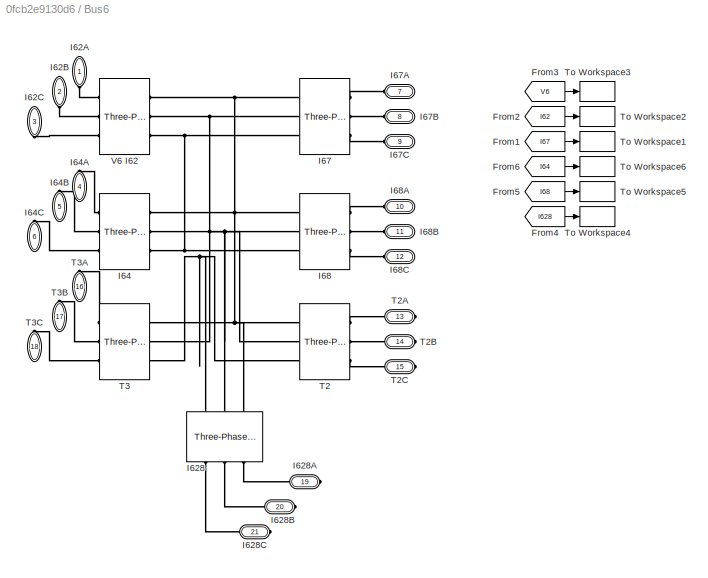
BLOCK [SubSystem] Bus6
  Ports = [0, 0, 0, 0, 0, 9, 12]
  RequestExecContextInheritance = off
  Variant = off
BLOCK [From] Bus6/From1
  GotoTag = I67
  TagVisibility = global
BLOCK [From] Bus6/From2
  GotoTag = I62
  TagVisibility = global
BLOCK [From] Bus6/From3
  GotoTag = V6
  TagVisibility = global
BLOCK [From] Bus6/From4
  GotoTag = I628
  TagVisibility = global
BLOCK [From] Bus6/From5
  GotoTag = I68
  TagVisibility = global
BLOCK [From] Bus6/From6
  GotoTag = I64
  TagVisibility = global
BLOCK [Reference] Bus6/I628  REF=powerlib/Measurements/Three-Phase
V-I Measurement
  Ports = [0, 0, 0, 0, 0, 3, 3]
  SourceBlock = powerlib/Measurements/Three-Phase\nV-I Measurement
  SourceProductBaseCode = PS
  SourceProductName = Simscape Power Systems
  SourceType = Three-Phase VI Measurement
BLOCK [PMIOPort] Bus6/I628A
  Port = 19
  Side = Right
BLOCK [PMIOPort] Bus6/I628B
  Port = 20
  Side = Right
BLOCK [PMIOPort] Bus6/I628C
  Port = 21
  Side = Right
BLOCK [PMIOPort] Bus6/I62A
  Port = 1
  Side = Left
BLOCK [PMIOPort] Bus6/I62B
  Port = 2
  Side = Left
BLOCK [PMIOPort] Bus6/I62C
  Port = 3
  Side = Left
BLOCK [Reference] Bus6/I64  REF=powerlib/Measurements/Three-Phase
V-I Measurement
  Ports = [0, 0, 0, 0, 0, 3, 3]
  SourceBlock = powerlib/Measurements/Three-Phase\nV-I Measurement
  SourceProductBaseCode = PS
  SourceProductName = Simscape Power Systems
  SourceType = Three-Phase VI Measurement
BLOCK [PMIOPort] Bus6/I64A
  Port = 4
  Side = Right
BLOCK [PMIOPort] Bus6/I64B
  Port = 5
  Side = Right
BLOCK [PMIOPort] Bus6/I64C
  Port = 6
  Side = Right
BLOCK [Reference] Bus6/I67  REF=powerlib/Measurements/Three-Phase
V-I Measurement
  Ports = [0, 0, 0, 0, 0, 3, 3]
  SourceBlock = powerlib/Measurements/Three-Phase\nV-I Measurement
  SourceProductBaseCode = PS
  SourceProductName = Simscape Power Systems
  SourceType = Three-Phase VI Measurement
BLOCK [PMIOPort] Bus6/I67A
  Port = 7
  Side = Left
BLOCK [PMIOPort] Bus6/I67B
  Port = 8
  Side = Left
BLOCK [PMIOPort] Bus6/I67C
  Port = 9
  Side = Left
BLOCK [Reference] Bus6/I68  REF=powerlib/Measurements/Three-Phase
V-I Measurement
  Ports = [0, 0, 0, 0, 0, 3, 3]
  SourceBlock = powerlib/Measurements/Three-Phase\nV-I Measurement
  SourceProductBaseCode = PS
  SourceProductName = Simscape Power Systems
  SourceType = Three-Phase VI Measurement
BLOCK [PMIOPort] Bus6/I68A
  Port = 10
  Side = Left
BLOCK [PMIOPort] Bus6/I68B
  Port = 11
  Side = Left
BLOCK [PMIOPort] Bus6/I68C
  Port = 12
  Side = Left
BLOCK [Reference] Bus6/T2  REF=powerlib/Measurements/Three-Phase
V-I Measurement
  Ports = [0, 0, 0, 0, 0, 3, 3]
  SourceBlock = powerlib/Measurements/Three-Phase\nV-I Measurement
  SourceProductBaseCode = PS
  SourceProductName = Simscape Power Systems
  SourceType = Three-Phase VI Measurement
BLOCK [PMIOPort] Bus6/T2A
  Port = 13
  Side = Right
BLOCK [PMIOPort] Bus6/T2B
  Port = 14
  Side = Right
BLOCK [PMIOPort] Bus6/T2C
  Port = 15
  Side = Right
BLOCK [Reference] Bus6/T3  REF=powerlib/Measurements/Three-Phase
V-I Measurement
  Ports = [0, 0, 0, 0, 0, 3, 3]
  SourceBlock = powerlib/Measurements/Three-Phase\nV-I Measurement
  SourceProductBaseCode = PS
  SourceProductName = Simscape Power Systems
  SourceType = Three-Phase VI Measurement
BLOCK [PMIOPort] Bus6/T3A
  Port = 16
  Side = Right
BLOCK [PMIOPort] Bus6/T3B
  Port = 17
  Side = Right
BLOCK [PMIOPort] Bus6/T3C
  Port = 18
  Side = Right
BLOCK [ToWorkspace] Bus6/To Workspace1
  MaxDataPoints = inf
  Ports = [1]
  SampleTime = 0.01
  SaveFormat = Timeseries
  VariableName = I67
BLOCK [ToWorkspace] Bus6/To Workspace2
  MaxDataPoints = inf
  Ports = [1]
  SampleTime = 0.01
  SaveFormat = Timeseries
  VariableName = I62
BLOCK [ToWorkspace] Bus6/To Workspace3
  MaxDataPoints = inf
  Ports = [1]
  SampleTime = 0.01
  SaveFormat = Timeseries
  VariableName = V6
BLOCK [ToWorkspace] Bus6/To Workspace4
  MaxDataPoints = inf
  Ports = [1]
  SampleTime = 0.01
  SaveFormat = Timeseries
  VariableName = I628
BLOCK [ToWorkspace] Bus6/To Workspace5
  MaxDataPoints = inf
  Ports = [1]
  SampleTime = 0.01
  SaveFormat = Timeseries
  VariableName = I68
BLOCK [ToWorkspace] Bus6/To Workspace6
  MaxDataPoints = inf
  Ports = [1]
  SampleTime = 0.01
  SaveFormat = Timeseries
  VariableName = I64
BLOCK [Reference] Bus6/V6 I62  REF=powerlib/Measurements/Three-Phase
V-I Measurement
  Ports = [0, 0, 0, 0, 0, 3, 3]
  SourceBlock = powerlib/Measurements/Three-Phase\nV-I Measurement
  SourceProductBaseCode = PS
  SourceProductName = Simscape Power Systems
  SourceType = Three-Phase VI Measurement
BLOCK [SubSystem] Bus7
  Ports = [0, 0, 0, 0, 0, 9]
  RequestExecContextInheritance = off
  Variant = off
BLOCK [From] Bus7/From1
  GotoTag = I76
  TagVisibility = global
BLOCK [From] Bus7/From2
  GotoTag = I75
  TagVisibility = global
BLOCK [From] Bus7/From3
  GotoTag = V7
  TagVisibility = global
BLOCK [PMIOPort] Bus7/I75A
  Port = 4
  Side = Left
BLOCK [PMIOPort] Bus7/I75B
  Port = 5
  Side = Left
BLOCK [PMIOPort] Bus7/I75C
  Port = 6
  Side = Left
BLOCK [Reference] Bus7/I76  REF=powerlib/Measurements/Three-Phase
V-I Measurement
  Ports = [0, 0, 0, 0, 0, 3, 3]
  SourceBlock = powerlib/Measurements/Three-Phase\nV-I Measurement
  SourceProductBaseCode = PS
  SourceProductName = Simscape Power Systems
  SourceType = Three-Phase VI Measurement
BLOCK [PMIOPort] Bus7/I76A
  Port = 7
  Side = Left
BLOCK [PMIOPort] Bus7/I76B
  Port = 8
  Side = Left
BLOCK [PMIOPort] Bus7/I76C
  Port = 9
  Side = Left
BLOCK [Reference] Bus7/Load7  REF=powerlib/Measurements/Three-Phase
V-I Measurement
  Ports = [0, 0, 0, 0, 0, 3, 3]
  SourceBlock = powerlib/Measurements/Three-Phase\nV-I Measurement
  SourceProductBaseCode = PS
  SourceProductName = Simscape Power Systems
  SourceType = Three-Phase VI Measurement
BLOCK [PMIOPort] Bus7/Load7A
  Port = 1
  Side = Left
BLOCK [PMIOPort] Bus7/Load7B
  Port = 2
  Side = Left
BLOCK [PMIOPort] Bus7/Load7C
  Port = 3
  Side = Left
BLOCK [ToWorkspace] Bus7/To Workspace1
  MaxDataPoints = inf
  Ports = [1]
  SampleTime = 0.01
  SaveFormat = Timeseries
  VariableName = I76
BLOCK [ToWorkspace] Bus7/To Workspace2
  MaxDataPoints = inf
  Ports = [1]
  SampleTime = 0.01
  SaveFormat = Timeseries
  VariableName = I75
BLOCK [ToWorkspace] Bus7/To Workspace3
  MaxDataPoints = inf
  Ports = [1]
  SampleTime = 0.01
  SaveFormat = Timeseries
  VariableName = V7
BLOCK [Reference] Bus7/V7 I75  REF=powerlib/Measurements/Three-Phase
V-I Measurement
  Ports = [0, 0, 0, 0, 0, 3, 3]
  SourceBlock = powerlib/Measurements/Three-Phase\nV-I Measurement
  SourceProductBaseCode = PS
  SourceProductName = Simscape Power Systems
  SourceType = Three-Phase VI Measurement
BLOCK [SubSystem] Bus8
  Ports = [0, 0, 0, 0, 0, 3, 9]
  RequestExecContextInheritance = off
  Variant = off
BLOCK [From] Bus8/From1
  GotoTag = I828
  TagVisibility = global
BLOCK [From] Bus8/From2
  GotoTag = I86
  TagVisibility = global
BLOCK [From] Bus8/From3
  GotoTag = V8
  TagVisibility = global
BLOCK [Reference] Bus8/G8  REF=powerlib/Measurements/Three-Phase
V-I Measurement
  Ports = [0, 0, 0, 0, 0, 3, 3]
  SourceBlock = powerlib/Measurements/Three-Phase\nV-I Measurement
  SourceProductBaseCode = PS
  SourceProductName = Simscape Power Systems
  SourceType = Three-Phase VI Measurement
BLOCK [PMIOPort] Bus8/G8A
  Port = 10
  Side = Right
BLOCK [PMIOPort] Bus8/G8B
  Port = 11
  Side = Right
BLOCK [PMIOPort] Bus8/G8C
  Port = 12
  Side = Right
BLOCK [Reference] Bus8/I828  REF=powerlib/Measurements/Three-Phase
V-I Measurement
  Ports = [0, 0, 0, 0, 0, 3, 3]
  SourceBlock = powerlib/Measurements/Three-Phase\nV-I Measurement
  SourceProductBaseCode = PS
  SourceProductName = Simscape Power Systems
  SourceType = Three-Phase VI Measurement
BLOCK [PMIOPort] Bus8/I828A
  Port = 4
  Side = Right
BLOCK [PMIOPort] Bus8/I828B
  Port = 5
  Side = Right
BLOCK [PMIOPort] Bus8/I828C
  Port = 6
  Side = Right
BLOCK [PMIOPort] Bus8/I86A
  Port = 1
  Side = Left
BLOCK [PMIOPort] Bus8/I86B
  Port = 2
  Side = Left
BLOCK [PMIOPort] Bus8/I86C
  Port = 3
  Side = Left
BLOCK [Reference] Bus8/Load8  REF=powerlib/Measurements/Three-Phase
V-I Measurement
  Ports = [0, 0, 0, 0, 0, 3, 3]
  SourceBlock = powerlib/Measurements/Three-Phase\nV-I Measurement
  SourceProductBaseCode = PS
  SourceProductName = Simscape Power Systems
  SourceType = Three-Phase VI Measurement
BLOCK [PMIOPort] Bus8/Load8A
  Port = 7
  Side = Right
BLOCK [PMIOPort] Bus8/Load8B
  Port = 8
  Side = Right
BLOCK [PMIOPort] Bus8/Load8C
  Port = 9
  Side = Right
BLOCK [ToWorkspace] Bus8/To Workspace1
  MaxDataPoints = inf
  Ports = [1]
  SampleTime = 0.01
  SaveFormat = Timeseries
  VariableName = I828
BLOCK [ToWorkspace] Bus8/To Workspace2
  MaxDataPoints = inf
  Ports = [1]
  SampleTime = 0.01
  SaveFormat = Timeseries
  VariableName = I86
BLOCK [ToWorkspace] Bus8/To Workspace3
  MaxDataPoints = inf
  Ports = [1]
  SampleTime = 0.01
  SaveFormat = Timeseries
  VariableName = V8
BLOCK [Reference] Bus8/V8 I86  REF=powerlib/Measurements/Three-Phase
V-I Measurement
  Ports = [0, 0, 0, 0, 0, 3, 3]
  SourceBlock = powerlib/Measurements/Three-Phase\nV-I Measurement
  SourceProductBaseCode = PS
  SourceProductName = Simscape Power Systems
  SourceType = Three-Phase VI Measurement
BLOCK [SubSystem] Bus9
  Ports = [0, 0, 0, 0, 0, 3, 6]
  RequestExecContextInheritance = off
  Variant = off
BLOCK [Reference] Bus9/T3  REF=powerlib/Measurements/Three-Phase
V-I Measurement
  Ports = [0, 0, 0, 0, 0, 3, 3]
  SourceBlock = powerlib/Measurements/Three-Phase\nV-I Measurement
  SourceProductBaseCode = PS
  SourceProductName = Simscape Power Systems
  SourceType = Three-Phase VI Measurement
BLOCK [PMIOPort] Bus9/T3A
  Port = 1
  Side = Left
BLOCK [PMIOPort] Bus9/T3B
  Port = 2
  Side = Left
BLOCK [PMIOPort] Bus9/T3C
  Port = 3
  Side = Left
BLOCK [Reference] Bus9/T3_910  REF=powerlib/Measurements/Three-Phase
V-I Measurement
  Ports = [0, 0, 0, 0, 0, 3, 3]
  SourceBlock = powerlib/Measurements/Three-Phase\nV-I Measurement
  SourceProductBaseCode = PS
  SourceProductName = Simscape Power Systems
  SourceType = Three-Phase VI Measurement
BLOCK [PMIOPort] Bus9/T3_910A
  Port = 4
  Side = Right
BLOCK [PMIOPort] Bus9/T3_910B
  Port = 5
  Side = Right
BLOCK [PMIOPort] Bus9/T3_910C
  Port = 6
  Side = Right
BLOCK [Reference] Bus9/T3_911  REF=powerlib/Measurements/Three-Phase
V-I Measurement
  Ports = [0, 0, 0, 0, 0, 3, 3]
  SourceBlock = powerlib/Measurements/Three-Phase\nV-I Measurement
  SourceProductBaseCode = PS
  SourceProductName = Simscape Power Systems
  SourceType = Three-Phase VI Measurement
BLOCK [PMIOPort] Bus9/T3_911A
  Port = 7
  Side = Right
BLOCK [PMIOPort] Bus9/T3_911B
  Port = 8
  Side = Right
BLOCK [PMIOPort] Bus9/T3_911C
  Port = 9
  Side = Right
BLOCK [Reference] Fault 1-2  REF=powerlib/Elements/Three-Phase Fault
  Ports = [0, 0, 0, 0, 0, 3]
  SourceBlock = powerlib/Elements/Three-Phase Fault
  SourceProductBaseCode = PS
  SourceProductName = Simscape Power Systems
  SourceType = Three-Phase Fault
BLOCK [Reference] Fault 1-3  REF=powerlib/Elements/Three-Phase Fault
  Ports = [0, 0, 0, 0, 0, 3]
  SourceBlock = powerlib/Elements/Three-Phase Fault
  SourceProductBaseCode = PS
  SourceProductName = Simscape Power Systems
  SourceType = Three-Phase Fault
BLOCK [Reference] Fault 10-17  REF=powerlib/Elements/Three-Phase Fault
  Ports = [0, 0, 0, 0, 0, 3]
  SourceBlock = powerlib/Elements/Three-Phase Fault
  SourceProductBaseCode = PS
  SourceProductName = Simscape Power Systems
  SourceType = Three-Phase Fault
BLOCK [Reference] Fault 10-20  REF=powerlib/Elements/Three-Phase Fault
  Ports = [0, 0, 0, 0, 0, 3]
  SourceBlock = powerlib/Elements/Three-Phase Fault
  SourceProductBaseCode = PS
  SourceProductName = Simscape Power Systems
  SourceType = Three-Phase Fault
BLOCK [Reference] Fault 10-21  REF=powerlib/Elements/Three-Phase Fault
  Ports = [0, 0, 0, 0, 0, 3]
  SourceBlock = powerlib/Elements/Three-Phase Fault
  SourceProductBaseCode = PS
  SourceProductName = Simscape Power Systems
  SourceType = Three-Phase Fault
BLOCK [Reference] Fault 10-22  REF=powerlib/Elements/Three-Phase Fault
  Ports = [0, 0, 0, 0, 0, 3]
  SourceBlock = powerlib/Elements/Three-Phase Fault
  SourceProductBaseCode = PS
  SourceProductName = Simscape Power Systems
  SourceType = Three-Phase Fault
BLOCK [Reference] Fault 12-14  REF=powerlib/Elements/Three-Phase Fault
  Ports = [0, 0, 0, 0, 0, 3]
  SourceBlock = powerlib/Elements/Three-Phase Fault
  SourceProductBaseCode = PS
  SourceProductName = Simscape Power Systems
  SourceType = Three-Phase Fault
BLOCK [Reference] Fault 12-15  REF=powerlib/Elements/Three-Phase Fault
  Ports = [0, 0, 0, 0, 0, 3]
  SourceBlock = powerlib/Elements/Three-Phase Fault
  SourceProductBaseCode = PS
  SourceProductName = Simscape Power Systems
  SourceType = Three-Phase Fault
BLOCK [Reference] Fault 12-16  REF=powerlib/Elements/Three-Phase Fault
  Ports = [0, 0, 0, 0, 0, 3]
  SourceBlock = powerlib/Elements/Three-Phase Fault
  SourceProductBaseCode = PS
  SourceProductName = Simscape Power Systems
  SourceType = Three-Phase Fault
BLOCK [Reference] Fault 14-15  REF=powerlib/Elements/Three-Phase Fault
  Ports = [0, 0, 0, 0, 0, 3]
  SourceBlock = powerlib/Elements/Three-Phase Fault
  SourceProductBaseCode = PS
  SourceProductName = Simscape Power Systems
  SourceType = Three-Phase Fault
BLOCK [Reference] Fault 15-18  REF=powerlib/Elements/Three-Phase Fault
  Ports = [0, 0, 0, 0, 0, 3]
  SourceBlock = powerlib/Elements/Three-Phase Fault
  SourceProductBaseCode = PS
  SourceProductName = Simscape Power Systems
  SourceType = Three-Phase Fault
BLOCK [Reference] Fault 15-23  REF=powerlib/Elements/Three-Phase Fault
  Ports = [0, 0, 0, 0, 0, 3]
  SourceBlock = powerlib/Elements/Three-Phase Fault
  SourceProductBaseCode = PS
  SourceProductName = Simscape Power Systems
  SourceType = Three-Phase Fault
BLOCK [Reference] Fault 16-17  REF=powerlib/Elements/Three-Phase Fault
  Ports = [0, 0, 0, 0, 0, 3]
  SourceBlock = powerlib/Elements/Three-Phase Fault
  SourceProductBaseCode = PS
  SourceProductName = Simscape Power Systems
  SourceType = Three-Phase Fault
BLOCK [Reference] Fault 18-19  REF=powerlib/Elements/Three-Phase Fault
  Ports = [0, 0, 0, 0, 0, 3]
  SourceBlock = powerlib/Elements/Three-Phase Fault
  SourceProductBaseCode = PS
  SourceProductName = Simscape Power Systems
  SourceType = Three-Phase Fault
BLOCK [Reference] Fault 19-20  REF=powerlib/Elements/Three-Phase Fault
  Ports = [0, 0, 0, 0, 0, 3]
  SourceBlock = powerlib/Elements/Three-Phase Fault
  SourceProductBaseCode = PS
  SourceProductName = Simscape Power Systems
  SourceType = Three-Phase Fault
BLOCK [Reference] Fault 2-4  REF=powerlib/Elements/Three-Phase Fault
  Ports = [0, 0, 0, 0, 0, 3]
  SourceBlock = powerlib/Elements/Three-Phase Fault
  SourceProductBaseCode = PS
  SourceProductName = Simscape Power Systems
  SourceType = Three-Phase Fault
BLOCK [Reference] Fault 2-5  REF=powerlib/Elements/Three-Phase Fault
  Ports = [0, 0, 0, 0, 0, 3]
  SourceBlock = powerlib/Elements/Three-Phase Fault
  SourceProductBaseCode = PS
  SourceProductName = Simscape Power Systems
  SourceType = Three-Phase Fault
BLOCK [Reference] Fault 2-6  REF=powerlib/Elements/Three-Phase Fault
  Ports = [0, 0, 0, 0, 0, 3]
  SourceBlock = powerlib/Elements/Three-Phase Fault
  SourceProductBaseCode = PS
  SourceProductName = Simscape Power Systems
  SourceType = Three-Phase Fault
BLOCK [Reference] Fault 21-22  REF=powerlib/Elements/Three-Phase Fault
  Ports = [0, 0, 0, 0, 0, 3]
  SourceBlock = powerlib/Elements/Three-Phase Fault
  SourceProductBaseCode = PS
  SourceProductName = Simscape Power Systems
  SourceType = Three-Phase Fault
BLOCK [Reference] Fault 22-24  REF=powerlib/Elements/Three-Phase Fault
  Ports = [0, 0, 0, 0, 0, 3]
  SourceBlock = powerlib/Elements/Three-Phase Fault
  SourceProductBaseCode = PS
  SourceProductName = Simscape Power Systems
  SourceType = Three-Phase Fault
BLOCK [Reference] Fault 23-24  REF=powerlib/Elements/Three-Phase Fault
  Ports = [0, 0, 0, 0, 0, 3]
  SourceBlock = powerlib/Elements/Three-Phase Fault
  SourceProductBaseCode = PS
  SourceProductName = Simscape Power Systems
  SourceType = Three-Phase Fault
BLOCK [Reference] Fault 24-25  REF=powerlib/Elements/Three-Phase Fault
  Ports = [0, 0, 0, 0, 0, 3]
  SourceBlock = powerlib/Elements/Three-Phase Fault
  SourceProductBaseCode = PS
  SourceProductName = Simscape Power Systems
  SourceType = Three-Phase Fault
BLOCK [Reference] Fault 25-26  REF=powerlib/Elements/Three-Phase Fault
  Ports = [0, 0, 0, 0, 0, 3]
  SourceBlock = powerlib/Elements/Three-Phase Fault
  SourceProductBaseCode = PS
  SourceProductName = Simscape Power Systems
  SourceType = Three-Phase Fault
BLOCK [Reference] Fault 25-27  REF=powerlib/Elements/Three-Phase Fault
  Ports = [0, 0, 0, 0, 0, 3]
  SourceBlock = powerlib/Elements/Three-Phase Fault
  SourceProductBaseCode = PS
  SourceProductName = Simscape Power Systems
  SourceType = Three-Phase Fault
BLOCK [Reference] Fault 27-29  REF=powerlib/Elements/Three-Phase Fault
  Ports = [0, 0, 0, 0, 0, 3]
  SourceBlock = powerlib/Elements/Three-Phase Fault
  SourceProductBaseCode = PS
  SourceProductName = Simscape Power Systems
  SourceType = Three-Phase Fault
BLOCK [Reference] Fault 27-30  REF=powerlib/Elements/Three-Phase Fault
  Ports = [0, 0, 0, 0, 0, 3]
  SourceBlock = powerlib/Elements/Three-Phase Fault
  SourceProductBaseCode = PS
  SourceProductName = Simscape Power Systems
  SourceType = Three-Phase Fault
BLOCK [Reference] Fault 29-30  REF=powerlib/Elements/Three-Phase Fault
  Ports = [0, 0, 0, 0, 0, 3]
  SourceBlock = powerlib/Elements/Three-Phase Fault
  SourceProductBaseCode = PS
  SourceProductName = Simscape Power Systems
  SourceType = Three-Phase Fault
BLOCK [Reference] Fault 3-4  REF=powerlib/Elements/Three-Phase Fault
  Ports = [0, 0, 0, 0, 0, 3]
  SourceBlock = powerlib/Elements/Three-Phase Fault
  SourceProductBaseCode = PS
  SourceProductName = Simscape Power Systems
  SourceType = Three-Phase Fault
BLOCK [Reference] Fault 4-6  REF=powerlib/Elements/Three-Phase Fault
  Ports = [0, 0, 0, 0, 0, 3]
  SourceBlock = powerlib/Elements/Three-Phase Fault
  SourceProductBaseCode = PS
  SourceProductName = Simscape Power Systems
  SourceType = Three-Phase Fault
BLOCK [Reference] Fault 5-7  REF=powerlib/Elements/Three-Phase Fault
  Ports = [0, 0, 0, 0, 0, 3]
  SourceBlock = powerlib/Elements/Three-Phase Fault
  SourceProductBaseCode = PS
  SourceProductName = Simscape Power Systems
  SourceType = Three-Phase Fault
BLOCK [Reference] Fault 6-28  REF=powerlib/Elements/Three-Phase Fault
  Ports = [0, 0, 0, 0, 0, 3]
  SourceBlock = powerlib/Elements/Three-Phase Fault
  SourceProductBaseCode = PS
  SourceProductName = Simscape Power Systems
  SourceType = Three-Phase Fault
BLOCK [Reference] Fault 6-7  REF=powerlib/Elements/Three-Phase Fault
  Ports = [0, 0, 0, 0, 0, 3]
  SourceBlock = powerlib/Elements/Three-Phase Fault
  SourceProductBaseCode = PS
  SourceProductName = Simscape Power Systems
  SourceType = Three-Phase Fault
BLOCK [Reference] Fault 6-8  REF=powerlib/Elements/Three-Phase Fault
  Ports = [0, 0, 0, 0, 0, 3]
  SourceBlock = powerlib/Elements/Three-Phase Fault
  SourceProductBaseCode = PS
  SourceProductName = Simscape Power Systems
  SourceType = Three-Phase Fault
BLOCK [Reference] Fault 8-28  REF=powerlib/Elements/Three-Phase Fault
  Ports = [0, 0, 0, 0, 0, 3]
  SourceBlock = powerlib/Elements/Three-Phase Fault
  SourceProductBaseCode = PS
  SourceProductName = Simscape Power Systems
  SourceType = Three-Phase Fault
BLOCK [Reference] G1  REF=powerlib/Electrical
Sources/Three-Phase Source
  Ports = [0, 0, 0, 0, 0, 0, 3]
  SourceBlock = powerlib/Electrical\nSources/Three-Phase Source
  SourceProductBaseCode = PS
  SourceProductName = Simscape Power Systems
  SourceType = Three-Phase Source
BLOCK [Reference] G11  REF=powerlib/Electrical
Sources/Three-Phase Source
  Ports = [0, 0, 0, 0, 0, 0, 3]
  SourceBlock = powerlib/Electrical\nSources/Three-Phase Source
  SourceProductBaseCode = PS
  SourceProductName = Simscape Power Systems
  SourceType = Three-Phase Source
BLOCK [Reference] G13  REF=powerlib/Electrical
Sources/Three-Phase Source
  Ports = [0, 0, 0, 0, 0, 0, 3]
  SourceBlock = powerlib/Electrical\nSources/Three-Phase Source
  SourceProductBaseCode = PS
  SourceProductName = Simscape Power Systems
  SourceType = Three-Phase Source
BLOCK [Reference] G2  REF=powerlib/Electrical
Sources/Three-Phase Source
  Ports = [0, 0, 0, 0, 0, 0, 3]
  SourceBlock = powerlib/Electrical\nSources/Three-Phase Source
  SourceProductBaseCode = PS
  SourceProductName = Simscape Power Systems
  SourceType = Three-Phase Source
BLOCK [Reference] G5  REF=powerlib/Electrical
Sources/Three-Phase Source
  Ports = [0, 0, 0, 0, 0, 0, 3]
  SourceBlock = powerlib/Electrical\nSources/Three-Phase Source
  SourceProductBaseCode = PS
  SourceProductName = Simscape Power Systems
  SourceType = Three-Phase Source
BLOCK [Reference] G8  REF=powerlib/Electrical
Sources/Three-Phase Source
  Ports = [0, 0, 0, 0, 0, 0, 3]
  SourceBlock = powerlib/Electrical\nSources/Three-Phase Source
  SourceProductBaseCode = PS
  SourceProductName = Simscape Power Systems
  SourceType = Three-Phase Source
BLOCK [SubSystem] Line 1-2-1
  Ports = [0, 0, 0, 0, 0, 3, 3]
  RequestExecContextInheritance = off
  ShowPortLabels = SignalName
  Variant = off
BLOCK [PMIOPort] Line 1-2-1/A
  Port = 1
  Side = Left
BLOCK [PMIOPort] Line 1-2-1/B
  Port = 2
  Side = Left
BLOCK [PMIOPort] Line 1-2-1/C
  Port = 3
  Side = Left
BLOCK [Reference] Line 1-2-1/Line  REF=powerlib/Elements/Three-Phase
PI Section Line
  AttributesFormatString = \n
  Ports = [0, 0, 0, 0, 0, 3, 3]
  SourceBlock = powerlib/Elements/Three-Phase\nPI Section Line
  SourceProductBaseCode = PS
  SourceProductName = Simscape Power Systems
  SourceType = Three-Phase PI Section Line
BLOCK [Reference] Line 1-2-1/Line1  REF=powerlib/Elements/Three-Phase
PI Section Line
  AttributesFormatString = \n
  Ports = [0, 0, 0, 0, 0, 3, 3]
  SourceBlock = powerlib/Elements/Three-Phase\nPI Section Line
  SourceProductBaseCode = PS
  SourceProductName = Simscape Power Systems
  SourceType = Three-Phase PI Section Line
BLOCK [Reference] Line 1-2-1/Line2  REF=powerlib/Elements/Three-Phase
PI Section Line
  AttributesFormatString = \n
  Ports = [0, 0, 0, 0, 0, 3, 3]
  SourceBlock = powerlib/Elements/Three-Phase\nPI Section Line
  SourceProductBaseCode = PS
  SourceProductName = Simscape Power Systems
  SourceType = Three-Phase PI Section Line
BLOCK [Reference] Line 1-2-1/Line3  REF=powerlib/Elements/Three-Phase
PI Section Line
  AttributesFormatString = \n
  Ports = [0, 0, 0, 0, 0, 3, 3]
  SourceBlock = powerlib/Elements/Three-Phase\nPI Section Line
  SourceProductBaseCode = PS
  SourceProductName = Simscape Power Systems
  SourceType = Three-Phase PI Section Line
BLOCK [Reference] Line 1-2-1/Line4  REF=powerlib/Elements/Three-Phase
PI Section Line
  AttributesFormatString = \n
  Ports = [0, 0, 0, 0, 0, 3, 3]
  SourceBlock = powerlib/Elements/Three-Phase\nPI Section Line
  SourceProductBaseCode = PS
  SourceProductName = Simscape Power Systems
  SourceType = Three-Phase PI Section Line
BLOCK [PMIOPort] Line 1-2-1/a
  Port = 4
  Side = Right
BLOCK [PMIOPort] Line 1-2-1/b
  Port = 5
  Side = Right
BLOCK [PMIOPort] Line 1-2-1/c
  Port = 6
  Side = Right
BLOCK [SubSystem] Line 1-2-2
  Ports = [0, 0, 0, 0, 0, 3, 3]
  RequestExecContextInheritance = off
  ShowPortLabels = SignalName
  Variant = off
BLOCK [PMIOPort] Line 1-2-2/A
  Port = 1
  Side = Left
BLOCK [PMIOPort] Line 1-2-2/B
  Port = 2
  Side = Left
BLOCK [PMIOPort] Line 1-2-2/C
  Port = 3
  Side = Left
BLOCK [Reference] Line 1-2-2/Line  REF=powerlib/Elements/Three-Phase
PI Section Line
  AttributesFormatString = \n
  Ports = [0, 0, 0, 0, 0, 3, 3]
  SourceBlock = powerlib/Elements/Three-Phase\nPI Section Line
  SourceProductBaseCode = PS
  SourceProductName = Simscape Power Systems
  SourceType = Three-Phase PI Section Line
BLOCK [Reference] Line 1-2-2/Line1  REF=powerlib/Elements/Three-Phase
PI Section Line
  AttributesFormatString = \n
  Ports = [0, 0, 0, 0, 0, 3, 3]
  SourceBlock = powerlib/Elements/Three-Phase\nPI Section Line
  SourceProductBaseCode = PS
  SourceProductName = Simscape Power Systems
  SourceType = Three-Phase PI Section Line
BLOCK [Reference] Line 1-2-2/Line2  REF=powerlib/Elements/Three-Phase
PI Section Line
  AttributesFormatString = \n
  Ports = [0, 0, 0, 0, 0, 3, 3]
  SourceBlock = powerlib/Elements/Three-Phase\nPI Section Line
  SourceProductBaseCode = PS
  SourceProductName = Simscape Power Systems
  SourceType = Three-Phase PI Section Line
BLOCK [Reference] Line 1-2-2/Line3  REF=powerlib/Elements/Three-Phase
PI Section Line
  AttributesFormatString = \n
  Ports = [0, 0, 0, 0, 0, 3, 3]
  SourceBlock = powerlib/Elements/Three-Phase\nPI Section Line
  SourceProductBaseCode = PS
  SourceProductName = Simscape Power Systems
  SourceType = Three-Phase PI Section Line
BLOCK [Reference] Line 1-2-2/Line4  REF=powerlib/Elements/Three-Phase
PI Section Line
  AttributesFormatString = \n
  Ports = [0, 0, 0, 0, 0, 3, 3]
  SourceBlock = powerlib/Elements/Three-Phase\nPI Section Line
  SourceProductBaseCode = PS
  SourceProductName = Simscape Power Systems
  SourceType = Three-Phase PI Section Line
BLOCK [PMIOPort] Line 1-2-2/a
  Port = 4
  Side = Right
BLOCK [PMIOPort] Line 1-2-2/b
  Port = 5
  Side = Right
BLOCK [PMIOPort] Line 1-2-2/c
  Port = 6
  Side = Right
BLOCK [SubSystem] Line 1-3-1
  Ports = [0, 0, 0, 0, 0, 3, 3]
  RequestExecContextInheritance = off
  ShowPortLabels = SignalName
  Variant = off
BLOCK [PMIOPort] Line 1-3-1/A
  Port = 1
  Side = Left
BLOCK [PMIOPort] Line 1-3-1/B
  Port = 2
  Side = Left
BLOCK [PMIOPort] Line 1-3-1/C
  Port = 3
  Side = Left
BLOCK [Reference] Line 1-3-1/Line  REF=powerlib/Elements/Three-Phase
PI Section Line
  AttributesFormatString = \n
  Ports = [0, 0, 0, 0, 0, 3, 3]
  SourceBlock = powerlib/Elements/Three-Phase\nPI Section Line
  SourceProductBaseCode = PS
  SourceProductName = Simscape Power Systems
  SourceType = Three-Phase PI Section Line
BLOCK [Reference] Line 1-3-1/Line1  REF=powerlib/Elements/Three-Phase
PI Section Line
  AttributesFormatString = \n
  Ports = [0, 0, 0, 0, 0, 3, 3]
  SourceBlock = powerlib/Elements/Three-Phase\nPI Section Line
  SourceProductBaseCode = PS
  SourceProductName = Simscape Power Systems
  SourceType = Three-Phase PI Section Line
BLOCK [Reference] Line 1-3-1/Line2  REF=powerlib/Elements/Three-Phase
PI Section Line
  AttributesFormatString = \n
  Ports = [0, 0, 0, 0, 0, 3, 3]
  SourceBlock = powerlib/Elements/Three-Phase\nPI Section Line
  SourceProductBaseCode = PS
  SourceProductName = Simscape Power Systems
  SourceType = Three-Phase PI Section Line
BLOCK [Reference] Line 1-3-1/Line3  REF=powerlib/Elements/Three-Phase
PI Section Line
  AttributesFormatString = \n
  Ports = [0, 0, 0, 0, 0, 3, 3]
  SourceBlock = powerlib/Elements/Three-Phase\nPI Section Line
  SourceProductBaseCode = PS
  SourceProductName = Simscape Power Systems
  SourceType = Three-Phase PI Section Line
BLOCK [Reference] Line 1-3-1/Line4  REF=powerlib/Elements/Three-Phase
PI Section Line
  AttributesFormatString = \n
  Ports = [0, 0, 0, 0, 0, 3, 3]
  SourceBlock = powerlib/Elements/Three-Phase\nPI Section Line
  SourceProductBaseCode = PS
  SourceProductName = Simscape Power Systems
  SourceType = Three-Phase PI Section Line
BLOCK [PMIOPort] Line 1-3-1/a
  Port = 4
  Side = Right
BLOCK [PMIOPort] Line 1-3-1/b
  Port = 5
  Side = Right
BLOCK [PMIOPort] Line 1-3-1/c
  Port = 6
  Side = Right
BLOCK [SubSystem] Line 1-3-2
  Ports = [0, 0, 0, 0, 0, 3, 3]
  RequestExecContextInheritance = off
  ShowPortLabels = SignalName
  Variant = off
BLOCK [PMIOPort] Line 1-3-2/A
  Port = 1
  Side = Left
BLOCK [PMIOPort] Line 1-3-2/B
  Port = 2
  Side = Left
BLOCK [PMIOPort] Line 1-3-2/C
  Port = 3
  Side = Left
BLOCK [Reference] Line 1-3-2/Line  REF=powerlib/Elements/Three-Phase
PI Section Line
  AttributesFormatString = \n
  Ports = [0, 0, 0, 0, 0, 3, 3]
  SourceBlock = powerlib/Elements/Three-Phase\nPI Section Line
  SourceProductBaseCode = PS
  SourceProductName = Simscape Power Systems
  SourceType = Three-Phase PI Section Line
BLOCK [Reference] Line 1-3-2/Line1  REF=powerlib/Elements/Three-Phase
PI Section Line
  AttributesFormatString = \n
  Ports = [0, 0, 0, 0, 0, 3, 3]
  SourceBlock = powerlib/Elements/Three-Phase\nPI Section Line
  SourceProductBaseCode = PS
  SourceProductName = Simscape Power Systems
  SourceType = Three-Phase PI Section Line
BLOCK [Reference] Line 1-3-2/Line2  REF=powerlib/Elements/Three-Phase
PI Section Line
  AttributesFormatString = \n
  Ports = [0, 0, 0, 0, 0, 3, 3]
  SourceBlock = powerlib/Elements/Three-Phase\nPI Section Line
  SourceProductBaseCode = PS
  SourceProductName = Simscape Power Systems
  SourceType = Three-Phase PI Section Line
BLOCK [Reference] Line 1-3-2/Line3  REF=powerlib/Elements/Three-Phase
PI Section Line
  AttributesFormatString = \n
  Ports = [0, 0, 0, 0, 0, 3, 3]
  SourceBlock = powerlib/Elements/Three-Phase\nPI Section Line
  SourceProductBaseCode = PS
  SourceProductName = Simscape Power Systems
  SourceType = Three-Phase PI Section Line
BLOCK [Reference] Line 1-3-2/Line4  REF=powerlib/Elements/Three-Phase
PI Section Line
  AttributesFormatString = \n
  Ports = [0, 0, 0, 0, 0, 3, 3]
  SourceBlock = powerlib/Elements/Three-Phase\nPI Section Line
  SourceProductBaseCode = PS
  SourceProductName = Simscape Power Systems
  SourceType = Three-Phase PI Section Line
BLOCK [PMIOPort] Line 1-3-2/a
  Port = 4
  Side = Right
BLOCK [PMIOPort] Line 1-3-2/b
  Port = 5
  Side = Right
BLOCK [PMIOPort] Line 1-3-2/c
  Port = 6
  Side = Right
BLOCK [SubSystem] Line 10-17-1
  Ports = [0, 0, 0, 0, 0, 3, 3]
  RequestExecContextInheritance = off
  ShowPortLabels = SignalName
  Variant = off
BLOCK [PMIOPort] Line 10-17-1/A
  Port = 1
  Side = Left
BLOCK [PMIOPort] Line 10-17-1/B
  Port = 2
  Side = Left
BLOCK [PMIOPort] Line 10-17-1/C
  Port = 3
  Side = Left
BLOCK [Reference] Line 10-17-1/Line  REF=powerlib/Elements/Three-Phase
PI Section Line
  AttributesFormatString = \n
  Ports = [0, 0, 0, 0, 0, 3, 3]
  SourceBlock = powerlib/Elements/Three-Phase\nPI Section Line
  SourceProductBaseCode = PS
  SourceProductName = Simscape Power Systems
  SourceType = Three-Phase PI Section Line
BLOCK [Reference] Line 10-17-1/Line1  REF=powerlib/Elements/Three-Phase
PI Section Line
  AttributesFormatString = \n
  Ports = [0, 0, 0, 0, 0, 3, 3]
  SourceBlock = powerlib/Elements/Three-Phase\nPI Section Line
  SourceProductBaseCode = PS
  SourceProductName = Simscape Power Systems
  SourceType = Three-Phase PI Section Line
BLOCK [Reference] Line 10-17-1/Line2  REF=powerlib/Elements/Three-Phase
PI Section Line
  AttributesFormatString = \n
  Ports = [0, 0, 0, 0, 0, 3, 3]
  SourceBlock = powerlib/Elements/Three-Phase\nPI Section Line
  SourceProductBaseCode = PS
  SourceProductName = Simscape Power Systems
  SourceType = Three-Phase PI Section Line
BLOCK [Reference] Line 10-17-1/Line3  REF=powerlib/Elements/Three-Phase
PI Section Line
  AttributesFormatString = \n
  Ports = [0, 0, 0, 0, 0, 3, 3]
  SourceBlock = powerlib/Elements/Three-Phase\nPI Section Line
  SourceProductBaseCode = PS
  SourceProductName = Simscape Power Systems
  SourceType = Three-Phase PI Section Line
BLOCK [Reference] Line 10-17-1/Line4  REF=powerlib/Elements/Three-Phase
PI Section Line
  AttributesFormatString = \n
  Ports = [0, 0, 0, 0, 0, 3, 3]
  SourceBlock = powerlib/Elements/Three-Phase\nPI Section Line
  SourceProductBaseCode = PS
  SourceProductName = Simscape Power Systems
  SourceType = Three-Phase PI Section Line
BLOCK [PMIOPort] Line 10-17-1/a
  Port = 4
  Side = Right
BLOCK [PMIOPort] Line 10-17-1/b
  Port = 5
  Side = Right
BLOCK [PMIOPort] Line 10-17-1/c
  Port = 6
  Side = Right
BLOCK [SubSystem] Line 10-17-2
  Ports = [0, 0, 0, 0, 0, 3, 3]
  RequestExecContextInheritance = off
  ShowPortLabels = SignalName
  Variant = off
BLOCK [PMIOPort] Line 10-17-2/A
  Port = 1
  Side = Left
BLOCK [PMIOPort] Line 10-17-2/B
  Port = 2
  Side = Left
BLOCK [PMIOPort] Line 10-17-2/C
  Port = 3
  Side = Left
BLOCK [Reference] Line 10-17-2/Line  REF=powerlib/Elements/Three-Phase
PI Section Line
  AttributesFormatString = \n
  Ports = [0, 0, 0, 0, 0, 3, 3]
  SourceBlock = powerlib/Elements/Three-Phase\nPI Section Line
  SourceProductBaseCode = PS
  SourceProductName = Simscape Power Systems
  SourceType = Three-Phase PI Section Line
BLOCK [Reference] Line 10-17-2/Line1  REF=powerlib/Elements/Three-Phase
PI Section Line
  AttributesFormatString = \n
  Ports = [0, 0, 0, 0, 0, 3, 3]
  SourceBlock = powerlib/Elements/Three-Phase\nPI Section Line
  SourceProductBaseCode = PS
  SourceProductName = Simscape Power Systems
  SourceType = Three-Phase PI Section Line
BLOCK [Reference] Line 10-17-2/Line2  REF=powerlib/Elements/Three-Phase
PI Section Line
  AttributesFormatString = \n
  Ports = [0, 0, 0, 0, 0, 3, 3]
  SourceBlock = powerlib/Elements/Three-Phase\nPI Section Line
  SourceProductBaseCode = PS
  SourceProductName = Simscape Power Systems
  SourceType = Three-Phase PI Section Line
BLOCK [Reference] Line 10-17-2/Line3  REF=powerlib/Elements/Three-Phase
PI Section Line
  AttributesFormatString = \n
  Ports = [0, 0, 0, 0, 0, 3, 3]
  SourceBlock = powerlib/Elements/Three-Phase\nPI Section Line
  SourceProductBaseCode = PS
  SourceProductName = Simscape Power Systems
  SourceType = Three-Phase PI Section Line
BLOCK [Reference] Line 10-17-2/Line4  REF=powerlib/Elements/Three-Phase
PI Section Line
  AttributesFormatString = \n
  Ports = [0, 0, 0, 0, 0, 3, 3]
  SourceBlock = powerlib/Elements/Three-Phase\nPI Section Line
  SourceProductBaseCode = PS
  SourceProductName = Simscape Power Systems
  SourceType = Three-Phase PI Section Line
BLOCK [PMIOPort] Line 10-17-2/a
  Port = 4
  Side = Right
BLOCK [PMIOPort] Line 10-17-2/b
  Port = 5
  Side = Right
BLOCK [PMIOPort] Line 10-17-2/c
  Port = 6
  Side = Right
BLOCK [SubSystem] Line 10-20-1
  Ports = [0, 0, 0, 0, 0, 3, 3]
  RequestExecContextInheritance = off
  ShowPortLabels = SignalName
  Variant = off
BLOCK [PMIOPort] Line 10-20-1/A
  Port = 1
  Side = Left
BLOCK [PMIOPort] Line 10-20-1/B
  Port = 2
  Side = Left
BLOCK [PMIOPort] Line 10-20-1/C
  Port = 3
  Side = Left
BLOCK [Reference] Line 10-20-1/Line  REF=powerlib/Elements/Three-Phase
PI Section Line
  AttributesFormatString = \n
  Ports = [0, 0, 0, 0, 0, 3, 3]
  SourceBlock = powerlib/Elements/Three-Phase\nPI Section Line
  SourceProductBaseCode = PS
  SourceProductName = Simscape Power Systems
  SourceType = Three-Phase PI Section Line
BLOCK [Reference] Line 10-20-1/Line1  REF=powerlib/Elements/Three-Phase
PI Section Line
  AttributesFormatString = \n
  Ports = [0, 0, 0, 0, 0, 3, 3]
  SourceBlock = powerlib/Elements/Three-Phase\nPI Section Line
  SourceProductBaseCode = PS
  SourceProductName = Simscape Power Systems
  SourceType = Three-Phase PI Section Line
BLOCK [Reference] Line 10-20-1/Line2  REF=powerlib/Elements/Three-Phase
PI Section Line
  AttributesFormatString = \n
  Ports = [0, 0, 0, 0, 0, 3, 3]
  SourceBlock = powerlib/Elements/Three-Phase\nPI Section Line
  SourceProductBaseCode = PS
  SourceProductName = Simscape Power Systems
  SourceType = Three-Phase PI Section Line
BLOCK [Reference] Line 10-20-1/Line3  REF=powerlib/Elements/Three-Phase
PI Section Line
  AttributesFormatString = \n
  Ports = [0, 0, 0, 0, 0, 3, 3]
  SourceBlock = powerlib/Elements/Three-Phase\nPI Section Line
  SourceProductBaseCode = PS
  SourceProductName = Simscape Power Systems
  SourceType = Three-Phase PI Section Line
BLOCK [Reference] Line 10-20-1/Line4  REF=powerlib/Elements/Three-Phase
PI Section Line
  AttributesFormatString = \n
  Ports = [0, 0, 0, 0, 0, 3, 3]
  SourceBlock = powerlib/Elements/Three-Phase\nPI Section Line
  SourceProductBaseCode = PS
  SourceProductName = Simscape Power Systems
  SourceType = Three-Phase PI Section Line
BLOCK [PMIOPort] Line 10-20-1/a
  Port = 4
  Side = Right
BLOCK [PMIOPort] Line 10-20-1/b
  Port = 5
  Side = Right
BLOCK [PMIOPort] Line 10-20-1/c
  Port = 6
  Side = Right
BLOCK [SubSystem] Line 10-20-2
  Ports = [0, 0, 0, 0, 0, 3, 3]
  RequestExecContextInheritance = off
  ShowPortLabels = SignalName
  Variant = off
BLOCK [PMIOPort] Line 10-20-2/A
  Port = 1
  Side = Left
BLOCK [PMIOPort] Line 10-20-2/B
  Port = 2
  Side = Left
BLOCK [PMIOPort] Line 10-20-2/C
  Port = 3
  Side = Left
BLOCK [Reference] Line 10-20-2/Line  REF=powerlib/Elements/Three-Phase
PI Section Line
  AttributesFormatString = \n
  Ports = [0, 0, 0, 0, 0, 3, 3]
  SourceBlock = powerlib/Elements/Three-Phase\nPI Section Line
  SourceProductBaseCode = PS
  SourceProductName = Simscape Power Systems
  SourceType = Three-Phase PI Section Line
BLOCK [Reference] Line 10-20-2/Line1  REF=powerlib/Elements/Three-Phase
PI Section Line
  AttributesFormatString = \n
  Ports = [0, 0, 0, 0, 0, 3, 3]
  SourceBlock = powerlib/Elements/Three-Phase\nPI Section Line
  SourceProductBaseCode = PS
  SourceProductName = Simscape Power Systems
  SourceType = Three-Phase PI Section Line
BLOCK [Reference] Line 10-20-2/Line2  REF=powerlib/Elements/Three-Phase
PI Section Line
  AttributesFormatString = \n
  Ports = [0, 0, 0, 0, 0, 3, 3]
  SourceBlock = powerlib/Elements/Three-Phase\nPI Section Line
  SourceProductBaseCode = PS
  SourceProductName = Simscape Power Systems
  SourceType = Three-Phase PI Section Line
BLOCK [Reference] Line 10-20-2/Line3  REF=powerlib/Elements/Three-Phase
PI Section Line
  AttributesFormatString = \n
  Ports = [0, 0, 0, 0, 0, 3, 3]
  SourceBlock = powerlib/Elements/Three-Phase\nPI Section Line
  SourceProductBaseCode = PS
  SourceProductName = Simscape Power Systems
  SourceType = Three-Phase PI Section Line
BLOCK [Reference] Line 10-20-2/Line4  REF=powerlib/Elements/Three-Phase
PI Section Line
  AttributesFormatString = \n
  Ports = [0, 0, 0, 0, 0, 3, 3]
  SourceBlock = powerlib/Elements/Three-Phase\nPI Section Line
  SourceProductBaseCode = PS
  SourceProductName = Simscape Power Systems
  SourceType = Three-Phase PI Section Line
BLOCK [PMIOPort] Line 10-20-2/a
  Port = 4
  Side = Right
BLOCK [PMIOPort] Line 10-20-2/b
  Port = 5
  Side = Right
BLOCK [PMIOPort] Line 10-20-2/c
  Port = 6
  Side = Right
BLOCK [SubSystem] Line 10-21-1
  Ports = [0, 0, 0, 0, 0, 3, 3]
  RequestExecContextInheritance = off
  ShowPortLabels = SignalName
  Variant = off
BLOCK [PMIOPort] Line 10-21-1/A
  Port = 1
  Side = Left
BLOCK [PMIOPort] Line 10-21-1/B
  Port = 2
  Side = Left
BLOCK [PMIOPort] Line 10-21-1/C
  Port = 3
  Side = Left
BLOCK [Reference] Line 10-21-1/Line  REF=powerlib/Elements/Three-Phase
PI Section Line
  AttributesFormatString = \n
  Ports = [0, 0, 0, 0, 0, 3, 3]
  SourceBlock = powerlib/Elements/Three-Phase\nPI Section Line
  SourceProductBaseCode = PS
  SourceProductName = Simscape Power Systems
  SourceType = Three-Phase PI Section Line
BLOCK [Reference] Line 10-21-1/Line1  REF=powerlib/Elements/Three-Phase
PI Section Line
  AttributesFormatString = \n
  Ports = [0, 0, 0, 0, 0, 3, 3]
  SourceBlock = powerlib/Elements/Three-Phase\nPI Section Line
  SourceProductBaseCode = PS
  SourceProductName = Simscape Power Systems
  SourceType = Three-Phase PI Section Line
BLOCK [Reference] Line 10-21-1/Line2  REF=powerlib/Elements/Three-Phase
PI Section Line
  AttributesFormatString = \n
  Ports = [0, 0, 0, 0, 0, 3, 3]
  SourceBlock = powerlib/Elements/Three-Phase\nPI Section Line
  SourceProductBaseCode = PS
  SourceProductName = Simscape Power Systems
  SourceType = Three-Phase PI Section Line
BLOCK [Reference] Line 10-21-1/Line3  REF=powerlib/Elements/Three-Phase
PI Section Line
  AttributesFormatString = \n
  Ports = [0, 0, 0, 0, 0, 3, 3]
  SourceBlock = powerlib/Elements/Three-Phase\nPI Section Line
  SourceProductBaseCode = PS
  SourceProductName = Simscape Power Systems
  SourceType = Three-Phase PI Section Line
BLOCK [Reference] Line 10-21-1/Line4  REF=powerlib/Elements/Three-Phase
PI Section Line
  AttributesFormatString = \n
  Ports = [0, 0, 0, 0, 0, 3, 3]
  SourceBlock = powerlib/Elements/Three-Phase\nPI Section Line
  SourceProductBaseCode = PS
  SourceProductName = Simscape Power Systems
  SourceType = Three-Phase PI Section Line
BLOCK [PMIOPort] Line 10-21-1/a
  Port = 4
  Side = Right
BLOCK [PMIOPort] Line 10-21-1/b
  Port = 5
  Side = Right
BLOCK [PMIOPort] Line 10-21-1/c
  Port = 6
  Side = Right
BLOCK [SubSystem] Line 10-21-2
  Ports = [0, 0, 0, 0, 0, 3, 3]
  RequestExecContextInheritance = off
  ShowPortLabels = SignalName
  Variant = off
BLOCK [PMIOPort] Line 10-21-2/A
  Port = 1
  Side = Left
BLOCK [PMIOPort] Line 10-21-2/B
  Port = 2
  Side = Left
BLOCK [PMIOPort] Line 10-21-2/C
  Port = 3
  Side = Left
BLOCK [Reference] Line 10-21-2/Line  REF=powerlib/Elements/Three-Phase
PI Section Line
  AttributesFormatString = \n
  Ports = [0, 0, 0, 0, 0, 3, 3]
  SourceBlock = powerlib/Elements/Three-Phase\nPI Section Line
  SourceProductBaseCode = PS
  SourceProductName = Simscape Power Systems
  SourceType = Three-Phase PI Section Line
BLOCK [Reference] Line 10-21-2/Line1  REF=powerlib/Elements/Three-Phase
PI Section Line
  AttributesFormatString = \n
  Ports = [0, 0, 0, 0, 0, 3, 3]
  SourceBlock = powerlib/Elements/Three-Phase\nPI Section Line
  SourceProductBaseCode = PS
  SourceProductName = Simscape Power Systems
  SourceType = Three-Phase PI Section Line
BLOCK [Reference] Line 10-21-2/Line2  REF=powerlib/Elements/Three-Phase
PI Section Line
  AttributesFormatString = \n
  Ports = [0, 0, 0, 0, 0, 3, 3]
  SourceBlock = powerlib/Elements/Three-Phase\nPI Section Line
  SourceProductBaseCode = PS
  SourceProductName = Simscape Power Systems
  SourceType = Three-Phase PI Section Line
BLOCK [Reference] Line 10-21-2/Line3  REF=powerlib/Elements/Three-Phase
PI Section Line
  AttributesFormatString = \n
  Ports = [0, 0, 0, 0, 0, 3, 3]
  SourceBlock = powerlib/Elements/Three-Phase\nPI Section Line
  SourceProductBaseCode = PS
  SourceProductName = Simscape Power Systems
  SourceType = Three-Phase PI Section Line
BLOCK [Reference] Line 10-21-2/Line4  REF=powerlib/Elements/Three-Phase
PI Section Line
  AttributesFormatString = \n
  Ports = [0, 0, 0, 0, 0, 3, 3]
  SourceBlock = powerlib/Elements/Three-Phase\nPI Section Line
  SourceProductBaseCode = PS
  SourceProductName = Simscape Power Systems
  SourceType = Three-Phase PI Section Line
BLOCK [PMIOPort] Line 10-21-2/a
  Port = 4
  Side = Right
BLOCK [PMIOPort] Line 10-21-2/b
  Port = 5
  Side = Right
BLOCK [PMIOPort] Line 10-21-2/c
  Port = 6
  Side = Right
BLOCK [SubSystem] Line 10-22-1
  Ports = [0, 0, 0, 0, 0, 3, 3]
  RequestExecContextInheritance = off
  ShowPortLabels = SignalName
  Variant = off
BLOCK [PMIOPort] Line 10-22-1/A
  Port = 1
  Side = Left
BLOCK [PMIOPort] Line 10-22-1/B
  Port = 2
  Side = Left
BLOCK [PMIOPort] Line 10-22-1/C
  Port = 3
  Side = Left
BLOCK [Reference] Line 10-22-1/Line  REF=powerlib/Elements/Three-Phase
PI Section Line
  AttributesFormatString = \n
  Ports = [0, 0, 0, 0, 0, 3, 3]
  SourceBlock = powerlib/Elements/Three-Phase\nPI Section Line
  SourceProductBaseCode = PS
  SourceProductName = Simscape Power Systems
  SourceType = Three-Phase PI Section Line
BLOCK [Reference] Line 10-22-1/Line1  REF=powerlib/Elements/Three-Phase
PI Section Line
  AttributesFormatString = \n
  Ports = [0, 0, 0, 0, 0, 3, 3]
  SourceBlock = powerlib/Elements/Three-Phase\nPI Section Line
  SourceProductBaseCode = PS
  SourceProductName = Simscape Power Systems
  SourceType = Three-Phase PI Section Line
BLOCK [Reference] Line 10-22-1/Line2  REF=powerlib/Elements/Three-Phase
PI Section Line
  AttributesFormatString = \n
  Ports = [0, 0, 0, 0, 0, 3, 3]
  SourceBlock = powerlib/Elements/Three-Phase\nPI Section Line
  SourceProductBaseCode = PS
  SourceProductName = Simscape Power Systems
  SourceType = Three-Phase PI Section Line
BLOCK [Reference] Line 10-22-1/Line3  REF=powerlib/Elements/Three-Phase
PI Section Line
  AttributesFormatString = \n
  Ports = [0, 0, 0, 0, 0, 3, 3]
  SourceBlock = powerlib/Elements/Three-Phase\nPI Section Line
  SourceProductBaseCode = PS
  SourceProductName = Simscape Power Systems
  SourceType = Three-Phase PI Section Line
BLOCK [Reference] Line 10-22-1/Line4  REF=powerlib/Elements/Three-Phase
PI Section Line
  AttributesFormatString = \n
  Ports = [0, 0, 0, 0, 0, 3, 3]
  SourceBlock = powerlib/Elements/Three-Phase\nPI Section Line
  SourceProductBaseCode = PS
  SourceProductName = Simscape Power Systems
  SourceType = Three-Phase PI Section Line
BLOCK [PMIOPort] Line 10-22-1/a
  Port = 4
  Side = Right
BLOCK [PMIOPort] Line 10-22-1/b
  Port = 5
  Side = Right
BLOCK [PMIOPort] Line 10-22-1/c
  Port = 6
  Side = Right
BLOCK [SubSystem] Line 10-22-2
  Ports = [0, 0, 0, 0, 0, 3, 3]
  RequestExecContextInheritance = off
  ShowPortLabels = SignalName
  Variant = off
BLOCK [PMIOPort] Line 10-22-2/A
  Port = 1
  Side = Left
BLOCK [PMIOPort] Line 10-22-2/B
  Port = 2
  Side = Left
BLOCK [PMIOPort] Line 10-22-2/C
  Port = 3
  Side = Left
BLOCK [Reference] Line 10-22-2/Line  REF=powerlib/Elements/Three-Phase
PI Section Line
  AttributesFormatString = \n
  Ports = [0, 0, 0, 0, 0, 3, 3]
  SourceBlock = powerlib/Elements/Three-Phase\nPI Section Line
  SourceProductBaseCode = PS
  SourceProductName = Simscape Power Systems
  SourceType = Three-Phase PI Section Line
BLOCK [Reference] Line 10-22-2/Line1  REF=powerlib/Elements/Three-Phase
PI Section Line
  AttributesFormatString = \n
  Ports = [0, 0, 0, 0, 0, 3, 3]
  SourceBlock = powerlib/Elements/Three-Phase\nPI Section Line
  SourceProductBaseCode = PS
  SourceProductName = Simscape Power Systems
  SourceType = Three-Phase PI Section Line
BLOCK [Reference] Line 10-22-2/Line2  REF=powerlib/Elements/Three-Phase
PI Section Line
  AttributesFormatString = \n
  Ports = [0, 0, 0, 0, 0, 3, 3]
  SourceBlock = powerlib/Elements/Three-Phase\nPI Section Line
  SourceProductBaseCode = PS
  SourceProductName = Simscape Power Systems
  SourceType = Three-Phase PI Section Line
BLOCK [Reference] Line 10-22-2/Line3  REF=powerlib/Elements/Three-Phase
PI Section Line
  AttributesFormatString = \n
  Ports = [0, 0, 0, 0, 0, 3, 3]
  SourceBlock = powerlib/Elements/Three-Phase\nPI Section Line
  SourceProductBaseCode = PS
  SourceProductName = Simscape Power Systems
  SourceType = Three-Phase PI Section Line
BLOCK [Reference] Line 10-22-2/Line4  REF=powerlib/Elements/Three-Phase
PI Section Line
  AttributesFormatString = \n
  Ports = [0, 0, 0, 0, 0, 3, 3]
  SourceBlock = powerlib/Elements/Three-Phase\nPI Section Line
  SourceProductBaseCode = PS
  SourceProductName = Simscape Power Systems
  SourceType = Three-Phase PI Section Line
BLOCK [PMIOPort] Line 10-22-2/a
  Port = 4
  Side = Right
BLOCK [PMIOPort] Line 10-22-2/b
  Port = 5
  Side = Right
BLOCK [PMIOPort] Line 10-22-2/c
  Port = 6
  Side = Right
BLOCK [SubSystem] Line 12-14-1
  Ports = [0, 0, 0, 0, 0, 3, 3]
  RequestExecContextInheritance = off
  ShowPortLabels = SignalName
  Variant = off
BLOCK [PMIOPort] Line 12-14-1/A
  Port = 1
  Side = Left
BLOCK [PMIOPort] Line 12-14-1/B
  Port = 2
  Side = Left
BLOCK [PMIOPort] Line 12-14-1/C
  Port = 3
  Side = Left
BLOCK [Reference] Line 12-14-1/Line  REF=powerlib/Elements/Three-Phase
PI Section Line
  AttributesFormatString = \n
  Ports = [0, 0, 0, 0, 0, 3, 3]
  SourceBlock = powerlib/Elements/Three-Phase\nPI Section Line
  SourceProductBaseCode = PS
  SourceProductName = Simscape Power Systems
  SourceType = Three-Phase PI Section Line
BLOCK [Reference] Line 12-14-1/Line1  REF=powerlib/Elements/Three-Phase
PI Section Line
  AttributesFormatString = \n
  Ports = [0, 0, 0, 0, 0, 3, 3]
  SourceBlock = powerlib/Elements/Three-Phase\nPI Section Line
  SourceProductBaseCode = PS
  SourceProductName = Simscape Power Systems
  SourceType = Three-Phase PI Section Line
BLOCK [Reference] Line 12-14-1/Line2  REF=powerlib/Elements/Three-Phase
PI Section Line
  AttributesFormatString = \n
  Ports = [0, 0, 0, 0, 0, 3, 3]
  SourceBlock = powerlib/Elements/Three-Phase\nPI Section Line
  SourceProductBaseCode = PS
  SourceProductName = Simscape Power Systems
  SourceType = Three-Phase PI Section Line
BLOCK [Reference] Line 12-14-1/Line3  REF=powerlib/Elements/Three-Phase
PI Section Line
  AttributesFormatString = \n
  Ports = [0, 0, 0, 0, 0, 3, 3]
  SourceBlock = powerlib/Elements/Three-Phase\nPI Section Line
  SourceProductBaseCode = PS
  SourceProductName = Simscape Power Systems
  SourceType = Three-Phase PI Section Line
BLOCK [Reference] Line 12-14-1/Line4  REF=powerlib/Elements/Three-Phase
PI Section Line
  AttributesFormatString = \n
  Ports = [0, 0, 0, 0, 0, 3, 3]
  SourceBlock = powerlib/Elements/Three-Phase\nPI Section Line
  SourceProductBaseCode = PS
  SourceProductName = Simscape Power Systems
  SourceType = Three-Phase PI Section Line
BLOCK [PMIOPort] Line 12-14-1/a
  Port = 4
  Side = Right
BLOCK [PMIOPort] Line 12-14-1/b
  Port = 5
  Side = Right
BLOCK [PMIOPort] Line 12-14-1/c
  Port = 6
  Side = Right
BLOCK [SubSystem] Line 12-14-2
  Ports = [0, 0, 0, 0, 0, 3, 3]
  RequestExecContextInheritance = off
  ShowPortLabels = SignalName
  Variant = off
BLOCK [PMIOPort] Line 12-14-2/A
  Port = 1
  Side = Left
BLOCK [PMIOPort] Line 12-14-2/B
  Port = 2
  Side = Left
BLOCK [PMIOPort] Line 12-14-2/C
  Port = 3
  Side = Left
BLOCK [Reference] Line 12-14-2/Line  REF=powerlib/Elements/Three-Phase
PI Section Line
  AttributesFormatString = \n
  Ports = [0, 0, 0, 0, 0, 3, 3]
  SourceBlock = powerlib/Elements/Three-Phase\nPI Section Line
  SourceProductBaseCode = PS
  SourceProductName = Simscape Power Systems
  SourceType = Three-Phase PI Section Line
BLOCK [Reference] Line 12-14-2/Line1  REF=powerlib/Elements/Three-Phase
PI Section Line
  AttributesFormatString = \n
  Ports = [0, 0, 0, 0, 0, 3, 3]
  SourceBlock = powerlib/Elements/Three-Phase\nPI Section Line
  SourceProductBaseCode = PS
  SourceProductName = Simscape Power Systems
  SourceType = Three-Phase PI Section Line
BLOCK [Reference] Line 12-14-2/Line2  REF=powerlib/Elements/Three-Phase
PI Section Line
  AttributesFormatString = \n
  Ports = [0, 0, 0, 0, 0, 3, 3]
  SourceBlock = powerlib/Elements/Three-Phase\nPI Section Line
  SourceProductBaseCode = PS
  SourceProductName = Simscape Power Systems
  SourceType = Three-Phase PI Section Line
BLOCK [Reference] Line 12-14-2/Line3  REF=powerlib/Elements/Three-Phase
PI Section Line
  AttributesFormatString = \n
  Ports = [0, 0, 0, 0, 0, 3, 3]
  SourceBlock = powerlib/Elements/Three-Phase\nPI Section Line
  SourceProductBaseCode = PS
  SourceProductName = Simscape Power Systems
  SourceType = Three-Phase PI Section Line
BLOCK [Reference] Line 12-14-2/Line4  REF=powerlib/Elements/Three-Phase
PI Section Line
  AttributesFormatString = \n
  Ports = [0, 0, 0, 0, 0, 3, 3]
  SourceBlock = powerlib/Elements/Three-Phase\nPI Section Line
  SourceProductBaseCode = PS
  SourceProductName = Simscape Power Systems
  SourceType = Three-Phase PI Section Line
BLOCK [PMIOPort] Line 12-14-2/a
  Port = 4
  Side = Right
BLOCK [PMIOPort] Line 12-14-2/b
  Port = 5
  Side = Right
BLOCK [PMIOPort] Line 12-14-2/c
  Port = 6
  Side = Right
BLOCK [SubSystem] Line 12-15-1
  Ports = [0, 0, 0, 0, 0, 3, 3]
  RequestExecContextInheritance = off
  ShowPortLabels = SignalName
  Variant = off
BLOCK [PMIOPort] Line 12-15-1/A
  Port = 1
  Side = Left
BLOCK [PMIOPort] Line 12-15-1/B
  Port = 2
  Side = Left
BLOCK [PMIOPort] Line 12-15-1/C
  Port = 3
  Side = Left
BLOCK [Reference] Line 12-15-1/Line  REF=powerlib/Elements/Three-Phase
PI Section Line
  AttributesFormatString = \n
  Ports = [0, 0, 0, 0, 0, 3, 3]
  SourceBlock = powerlib/Elements/Three-Phase\nPI Section Line
  SourceProductBaseCode = PS
  SourceProductName = Simscape Power Systems
  SourceType = Three-Phase PI Section Line
BLOCK [Reference] Line 12-15-1/Line1  REF=powerlib/Elements/Three-Phase
PI Section Line
  AttributesFormatString = \n
  Ports = [0, 0, 0, 0, 0, 3, 3]
  SourceBlock = powerlib/Elements/Three-Phase\nPI Section Line
  SourceProductBaseCode = PS
  SourceProductName = Simscape Power Systems
  SourceType = Three-Phase PI Section Line
BLOCK [Reference] Line 12-15-1/Line2  REF=powerlib/Elements/Three-Phase
PI Section Line
  AttributesFormatString = \n
  Ports = [0, 0, 0, 0, 0, 3, 3]
  SourceBlock = powerlib/Elements/Three-Phase\nPI Section Line
  SourceProductBaseCode = PS
  SourceProductName = Simscape Power Systems
  SourceType = Three-Phase PI Section Line
BLOCK [Reference] Line 12-15-1/Line3  REF=powerlib/Elements/Three-Phase
PI Section Line
  AttributesFormatString = \n
  Ports = [0, 0, 0, 0, 0, 3, 3]
  SourceBlock = powerlib/Elements/Three-Phase\nPI Section Line
  SourceProductBaseCode = PS
  SourceProductName = Simscape Power Systems
  SourceType = Three-Phase PI Section Line
BLOCK [Reference] Line 12-15-1/Line4  REF=powerlib/Elements/Three-Phase
PI Section Line
  AttributesFormatString = \n
  Ports = [0, 0, 0, 0, 0, 3, 3]
  SourceBlock = powerlib/Elements/Three-Phase\nPI Section Line
  SourceProductBaseCode = PS
  SourceProductName = Simscape Power Systems
  SourceType = Three-Phase PI Section Line
BLOCK [PMIOPort] Line 12-15-1/a
  Port = 4
  Side = Right
BLOCK [PMIOPort] Line 12-15-1/b
  Port = 5
  Side = Right
BLOCK [PMIOPort] Line 12-15-1/c
  Port = 6
  Side = Right
BLOCK [SubSystem] Line 12-15-2
  Ports = [0, 0, 0, 0, 0, 3, 3]
  RequestExecContextInheritance = off
  ShowPortLabels = SignalName
  Variant = off
BLOCK [PMIOPort] Line 12-15-2/A
  Port = 1
  Side = Left
BLOCK [PMIOPort] Line 12-15-2/B
  Port = 2
  Side = Left
BLOCK [PMIOPort] Line 12-15-2/C
  Port = 3
  Side = Left
BLOCK [Reference] Line 12-15-2/Line  REF=powerlib/Elements/Three-Phase
PI Section Line
  AttributesFormatString = \n
  Ports = [0, 0, 0, 0, 0, 3, 3]
  SourceBlock = powerlib/Elements/Three-Phase\nPI Section Line
  SourceProductBaseCode = PS
  SourceProductName = Simscape Power Systems
  SourceType = Three-Phase PI Section Line
BLOCK [Reference] Line 12-15-2/Line1  REF=powerlib/Elements/Three-Phase
PI Section Line
  AttributesFormatString = \n
  Ports = [0, 0, 0, 0, 0, 3, 3]
  SourceBlock = powerlib/Elements/Three-Phase\nPI Section Line
  SourceProductBaseCode = PS
  SourceProductName = Simscape Power Systems
  SourceType = Three-Phase PI Section Line
BLOCK [Reference] Line 12-15-2/Line2  REF=powerlib/Elements/Three-Phase
PI Section Line
  AttributesFormatString = \n
  Ports = [0, 0, 0, 0, 0, 3, 3]
  SourceBlock = powerlib/Elements/Three-Phase\nPI Section Line
  SourceProductBaseCode = PS
  SourceProductName = Simscape Power Systems
  SourceType = Three-Phase PI Section Line
BLOCK [Reference] Line 12-15-2/Line3  REF=powerlib/Elements/Three-Phase
PI Section Line
  AttributesFormatString = \n
  Ports = [0, 0, 0, 0, 0, 3, 3]
  SourceBlock = powerlib/Elements/Three-Phase\nPI Section Line
  SourceProductBaseCode = PS
  SourceProductName = Simscape Power Systems
  SourceType = Three-Phase PI Section Line
BLOCK [Reference] Line 12-15-2/Line4  REF=powerlib/Elements/Three-Phase
PI Section Line
  AttributesFormatString = \n
  Ports = [0, 0, 0, 0, 0, 3, 3]
  SourceBlock = powerlib/Elements/Three-Phase\nPI Section Line
  SourceProductBaseCode = PS
  SourceProductName = Simscape Power Systems
  SourceType = Three-Phase PI Section Line
BLOCK [PMIOPort] Line 12-15-2/a
  Port = 4
  Side = Right
BLOCK [PMIOPort] Line 12-15-2/b
  Port = 5
  Side = Right
BLOCK [PMIOPort] Line 12-15-2/c
  Port = 6
  Side = Right
BLOCK [SubSystem] Line 12-16-1
  Ports = [0, 0, 0, 0, 0, 3, 3]
  RequestExecContextInheritance = off
  ShowPortLabels = SignalName
  Variant = off
BLOCK [PMIOPort] Line 12-16-1/A
  Port = 1
  Side = Left
BLOCK [PMIOPort] Line 12-16-1/B
  Port = 2
  Side = Left
BLOCK [PMIOPort] Line 12-16-1/C
  Port = 3
  Side = Left
BLOCK [Reference] Line 12-16-1/Line  REF=powerlib/Elements/Three-Phase
PI Section Line
  AttributesFormatString = \n
  Ports = [0, 0, 0, 0, 0, 3, 3]
  SourceBlock = powerlib/Elements/Three-Phase\nPI Section Line
  SourceProductBaseCode = PS
  SourceProductName = Simscape Power Systems
  SourceType = Three-Phase PI Section Line
BLOCK [Reference] Line 12-16-1/Line1  REF=powerlib/Elements/Three-Phase
PI Section Line
  AttributesFormatString = \n
  Ports = [0, 0, 0, 0, 0, 3, 3]
  SourceBlock = powerlib/Elements/Three-Phase\nPI Section Line
  SourceProductBaseCode = PS
  SourceProductName = Simscape Power Systems
  SourceType = Three-Phase PI Section Line
BLOCK [Reference] Line 12-16-1/Line2  REF=powerlib/Elements/Three-Phase
PI Section Line
  AttributesFormatString = \n
  Ports = [0, 0, 0, 0, 0, 3, 3]
  SourceBlock = powerlib/Elements/Three-Phase\nPI Section Line
  SourceProductBaseCode = PS
  SourceProductName = Simscape Power Systems
  SourceType = Three-Phase PI Section Line
BLOCK [Reference] Line 12-16-1/Line3  REF=powerlib/Elements/Three-Phase
PI Section Line
  AttributesFormatString = \n
  Ports = [0, 0, 0, 0, 0, 3, 3]
  SourceBlock = powerlib/Elements/Three-Phase\nPI Section Line
  SourceProductBaseCode = PS
  SourceProductName = Simscape Power Systems
  SourceType = Three-Phase PI Section Line
BLOCK [Reference] Line 12-16-1/Line4  REF=powerlib/Elements/Three-Phase
PI Section Line
  AttributesFormatString = \n
  Ports = [0, 0, 0, 0, 0, 3, 3]
  SourceBlock = powerlib/Elements/Three-Phase\nPI Section Line
  SourceProductBaseCode = PS
  SourceProductName = Simscape Power Systems
  SourceType = Three-Phase PI Section Line
BLOCK [PMIOPort] Line 12-16-1/a
  Port = 4
  Side = Right
BLOCK [PMIOPort] Line 12-16-1/b
  Port = 5
  Side = Right
BLOCK [PMIOPort] Line 12-16-1/c
  Port = 6
  Side = Right
BLOCK [SubSystem] Line 12-16-2
  Ports = [0, 0, 0, 0, 0, 3, 3]
  RequestExecContextInheritance = off
  ShowPortLabels = SignalName
  Variant = off
BLOCK [PMIOPort] Line 12-16-2/A
  Port = 1
  Side = Left
BLOCK [PMIOPort] Line 12-16-2/B
  Port = 2
  Side = Left
BLOCK [PMIOPort] Line 12-16-2/C
  Port = 3
  Side = Left
BLOCK [Reference] Line 12-16-2/Line  REF=powerlib/Elements/Three-Phase
PI Section Line
  AttributesFormatString = \n
  Ports = [0, 0, 0, 0, 0, 3, 3]
  SourceBlock = powerlib/Elements/Three-Phase\nPI Section Line
  SourceProductBaseCode = PS
  SourceProductName = Simscape Power Systems
  SourceType = Three-Phase PI Section Line
BLOCK [Reference] Line 12-16-2/Line1  REF=powerlib/Elements/Three-Phase
PI Section Line
  AttributesFormatString = \n
  Ports = [0, 0, 0, 0, 0, 3, 3]
  SourceBlock = powerlib/Elements/Three-Phase\nPI Section Line
  SourceProductBaseCode = PS
  SourceProductName = Simscape Power Systems
  SourceType = Three-Phase PI Section Line
BLOCK [Reference] Line 12-16-2/Line2  REF=powerlib/Elements/Three-Phase
PI Section Line
  AttributesFormatString = \n
  Ports = [0, 0, 0, 0, 0, 3, 3]
  SourceBlock = powerlib/Elements/Three-Phase\nPI Section Line
  SourceProductBaseCode = PS
  SourceProductName = Simscape Power Systems
  SourceType = Three-Phase PI Section Line
BLOCK [Reference] Line 12-16-2/Line3  REF=powerlib/Elements/Three-Phase
PI Section Line
  AttributesFormatString = \n
  Ports = [0, 0, 0, 0, 0, 3, 3]
  SourceBlock = powerlib/Elements/Three-Phase\nPI Section Line
  SourceProductBaseCode = PS
  SourceProductName = Simscape Power Systems
  SourceType = Three-Phase PI Section Line
BLOCK [Reference] Line 12-16-2/Line4  REF=powerlib/Elements/Three-Phase
PI Section Line
  AttributesFormatString = \n
  Ports = [0, 0, 0, 0, 0, 3, 3]
  SourceBlock = powerlib/Elements/Three-Phase\nPI Section Line
  SourceProductBaseCode = PS
  SourceProductName = Simscape Power Systems
  SourceType = Three-Phase PI Section Line
BLOCK [PMIOPort] Line 12-16-2/a
  Port = 4
  Side = Right
BLOCK [PMIOPort] Line 12-16-2/b
  Port = 5
  Side = Right
BLOCK [PMIOPort] Line 12-16-2/c
  Port = 6
  Side = Right
BLOCK [SubSystem] Line 14-15-1
  Ports = [0, 0, 0, 0, 0, 3, 3]
  RequestExecContextInheritance = off
  ShowPortLabels = SignalName
  Variant = off
BLOCK [PMIOPort] Line 14-15-1/A
  Port = 1
  Side = Left
BLOCK [PMIOPort] Line 14-15-1/B
  Port = 2
  Side = Left
BLOCK [PMIOPort] Line 14-15-1/C
  Port = 3
  Side = Left
BLOCK [Reference] Line 14-15-1/Line  REF=powerlib/Elements/Three-Phase
PI Section Line
  AttributesFormatString = \n
  Ports = [0, 0, 0, 0, 0, 3, 3]
  SourceBlock = powerlib/Elements/Three-Phase\nPI Section Line
  SourceProductBaseCode = PS
  SourceProductName = Simscape Power Systems
  SourceType = Three-Phase PI Section Line
BLOCK [Reference] Line 14-15-1/Line1  REF=powerlib/Elements/Three-Phase
PI Section Line
  AttributesFormatString = \n
  Ports = [0, 0, 0, 0, 0, 3, 3]
  SourceBlock = powerlib/Elements/Three-Phase\nPI Section Line
  SourceProductBaseCode = PS
  SourceProductName = Simscape Power Systems
  SourceType = Three-Phase PI Section Line
BLOCK [Reference] Line 14-15-1/Line2  REF=powerlib/Elements/Three-Phase
PI Section Line
  AttributesFormatString = \n
  Ports = [0, 0, 0, 0, 0, 3, 3]
  SourceBlock = powerlib/Elements/Three-Phase\nPI Section Line
  SourceProductBaseCode = PS
  SourceProductName = Simscape Power Systems
  SourceType = Three-Phase PI Section Line
BLOCK [Reference] Line 14-15-1/Line3  REF=powerlib/Elements/Three-Phase
PI Section Line
  AttributesFormatString = \n
  Ports = [0, 0, 0, 0, 0, 3, 3]
  SourceBlock = powerlib/Elements/Three-Phase\nPI Section Line
  SourceProductBaseCode = PS
  SourceProductName = Simscape Power Systems
  SourceType = Three-Phase PI Section Line
BLOCK [Reference] Line 14-15-1/Line4  REF=powerlib/Elements/Three-Phase
PI Section Line
  AttributesFormatString = \n
  Ports = [0, 0, 0, 0, 0, 3, 3]
  SourceBlock = powerlib/Elements/Three-Phase\nPI Section Line
  SourceProductBaseCode = PS
  SourceProductName = Simscape Power Systems
  SourceType = Three-Phase PI Section Line
BLOCK [PMIOPort] Line 14-15-1/a
  Port = 4
  Side = Right
BLOCK [PMIOPort] Line 14-15-1/b
  Port = 5
  Side = Right
BLOCK [PMIOPort] Line 14-15-1/c
  Port = 6
  Side = Right
BLOCK [SubSystem] Line 14-15-2
  Ports = [0, 0, 0, 0, 0, 3, 3]
  RequestExecContextInheritance = off
  ShowPortLabels = SignalName
  Variant = off
BLOCK [PMIOPort] Line 14-15-2/A
  Port = 1
  Side = Left
BLOCK [PMIOPort] Line 14-15-2/B
  Port = 2
  Side = Left
BLOCK [PMIOPort] Line 14-15-2/C
  Port = 3
  Side = Left
BLOCK [Reference] Line 14-15-2/Line  REF=powerlib/Elements/Three-Phase
PI Section Line
  AttributesFormatString = \n
  Ports = [0, 0, 0, 0, 0, 3, 3]
  SourceBlock = powerlib/Elements/Three-Phase\nPI Section Line
  SourceProductBaseCode = PS
  SourceProductName = Simscape Power Systems
  SourceType = Three-Phase PI Section Line
BLOCK [Reference] Line 14-15-2/Line1  REF=powerlib/Elements/Three-Phase
PI Section Line
  AttributesFormatString = \n
  Ports = [0, 0, 0, 0, 0, 3, 3]
  SourceBlock = powerlib/Elements/Three-Phase\nPI Section Line
  SourceProductBaseCode = PS
  SourceProductName = Simscape Power Systems
  SourceType = Three-Phase PI Section Line
BLOCK [Reference] Line 14-15-2/Line2  REF=powerlib/Elements/Three-Phase
PI Section Line
  AttributesFormatString = \n
  Ports = [0, 0, 0, 0, 0, 3, 3]
  SourceBlock = powerlib/Elements/Three-Phase\nPI Section Line
  SourceProductBaseCode = PS
  SourceProductName = Simscape Power Systems
  SourceType = Three-Phase PI Section Line
BLOCK [Reference] Line 14-15-2/Line3  REF=powerlib/Elements/Three-Phase
PI Section Line
  AttributesFormatString = \n
  Ports = [0, 0, 0, 0, 0, 3, 3]
  SourceBlock = powerlib/Elements/Three-Phase\nPI Section Line
  SourceProductBaseCode = PS
  SourceProductName = Simscape Power Systems
  SourceType = Three-Phase PI Section Line
BLOCK [Reference] Line 14-15-2/Line4  REF=powerlib/Elements/Three-Phase
PI Section Line
  AttributesFormatString = \n
  Ports = [0, 0, 0, 0, 0, 3, 3]
  SourceBlock = powerlib/Elements/Three-Phase\nPI Section Line
  SourceProductBaseCode = PS
  SourceProductName = Simscape Power Systems
  SourceType = Three-Phase PI Section Line
BLOCK [PMIOPort] Line 14-15-2/a
  Port = 4
  Side = Right
BLOCK [PMIOPort] Line 14-15-2/b
  Port = 5
  Side = Right
BLOCK [PMIOPort] Line 14-15-2/c
  Port = 6
  Side = Right
BLOCK [SubSystem] Line 15-18-1
  Ports = [0, 0, 0, 0, 0, 3, 3]
  RequestExecContextInheritance = off
  ShowPortLabels = SignalName
  Variant = off
BLOCK [PMIOPort] Line 15-18-1/A
  Port = 1
  Side = Left
BLOCK [PMIOPort] Line 15-18-1/B
  Port = 2
  Side = Left
BLOCK [PMIOPort] Line 15-18-1/C
  Port = 3
  Side = Left
BLOCK [Reference] Line 15-18-1/Line  REF=powerlib/Elements/Three-Phase
PI Section Line
  AttributesFormatString = \n
  Ports = [0, 0, 0, 0, 0, 3, 3]
  SourceBlock = powerlib/Elements/Three-Phase\nPI Section Line
  SourceProductBaseCode = PS
  SourceProductName = Simscape Power Systems
  SourceType = Three-Phase PI Section Line
BLOCK [Reference] Line 15-18-1/Line1  REF=powerlib/Elements/Three-Phase
PI Section Line
  AttributesFormatString = \n
  Ports = [0, 0, 0, 0, 0, 3, 3]
  SourceBlock = powerlib/Elements/Three-Phase\nPI Section Line
  SourceProductBaseCode = PS
  SourceProductName = Simscape Power Systems
  SourceType = Three-Phase PI Section Line
BLOCK [Reference] Line 15-18-1/Line2  REF=powerlib/Elements/Three-Phase
PI Section Line
  AttributesFormatString = \n
  Ports = [0, 0, 0, 0, 0, 3, 3]
  SourceBlock = powerlib/Elements/Three-Phase\nPI Section Line
  SourceProductBaseCode = PS
  SourceProductName = Simscape Power Systems
  SourceType = Three-Phase PI Section Line
BLOCK [Reference] Line 15-18-1/Line3  REF=powerlib/Elements/Three-Phase
PI Section Line
  AttributesFormatString = \n
  Ports = [0, 0, 0, 0, 0, 3, 3]
  SourceBlock = powerlib/Elements/Three-Phase\nPI Section Line
  SourceProductBaseCode = PS
  SourceProductName = Simscape Power Systems
  SourceType = Three-Phase PI Section Line
BLOCK [Reference] Line 15-18-1/Line4  REF=powerlib/Elements/Three-Phase
PI Section Line
  AttributesFormatString = \n
  Ports = [0, 0, 0, 0, 0, 3, 3]
  SourceBlock = powerlib/Elements/Three-Phase\nPI Section Line
  SourceProductBaseCode = PS
  SourceProductName = Simscape Power Systems
  SourceType = Three-Phase PI Section Line
BLOCK [PMIOPort] Line 15-18-1/a
  Port = 4
  Side = Right
BLOCK [PMIOPort] Line 15-18-1/b
  Port = 5
  Side = Right
BLOCK [PMIOPort] Line 15-18-1/c
  Port = 6
  Side = Right
BLOCK [SubSystem] Line 15-18-2
  Ports = [0, 0, 0, 0, 0, 3, 3]
  RequestExecContextInheritance = off
  ShowPortLabels = SignalName
  Variant = off
BLOCK [PMIOPort] Line 15-18-2/A
  Port = 1
  Side = Left
BLOCK [PMIOPort] Line 15-18-2/B
  Port = 2
  Side = Left
BLOCK [PMIOPort] Line 15-18-2/C
  Port = 3
  Side = Left
BLOCK [Reference] Line 15-18-2/Line  REF=powerlib/Elements/Three-Phase
PI Section Line
  AttributesFormatString = \n
  Ports = [0, 0, 0, 0, 0, 3, 3]
  SourceBlock = powerlib/Elements/Three-Phase\nPI Section Line
  SourceProductBaseCode = PS
  SourceProductName = Simscape Power Systems
  SourceType = Three-Phase PI Section Line
BLOCK [Reference] Line 15-18-2/Line1  REF=powerlib/Elements/Three-Phase
PI Section Line
  AttributesFormatString = \n
  Ports = [0, 0, 0, 0, 0, 3, 3]
  SourceBlock = powerlib/Elements/Three-Phase\nPI Section Line
  SourceProductBaseCode = PS
  SourceProductName = Simscape Power Systems
  SourceType = Three-Phase PI Section Line
BLOCK [Reference] Line 15-18-2/Line2  REF=powerlib/Elements/Three-Phase
PI Section Line
  AttributesFormatString = \n
  Ports = [0, 0, 0, 0, 0, 3, 3]
  SourceBlock = powerlib/Elements/Three-Phase\nPI Section Line
  SourceProductBaseCode = PS
  SourceProductName = Simscape Power Systems
  SourceType = Three-Phase PI Section Line
BLOCK [Reference] Line 15-18-2/Line3  REF=powerlib/Elements/Three-Phase
PI Section Line
  AttributesFormatString = \n
  Ports = [0, 0, 0, 0, 0, 3, 3]
  SourceBlock = powerlib/Elements/Three-Phase\nPI Section Line
  SourceProductBaseCode = PS
  SourceProductName = Simscape Power Systems
  SourceType = Three-Phase PI Section Line
BLOCK [Reference] Line 15-18-2/Line4  REF=powerlib/Elements/Three-Phase
PI Section Line
  AttributesFormatString = \n
  Ports = [0, 0, 0, 0, 0, 3, 3]
  SourceBlock = powerlib/Elements/Three-Phase\nPI Section Line
  SourceProductBaseCode = PS
  SourceProductName = Simscape Power Systems
  SourceType = Three-Phase PI Section Line
BLOCK [PMIOPort] Line 15-18-2/a
  Port = 4
  Side = Right
BLOCK [PMIOPort] Line 15-18-2/b
  Port = 5
  Side = Right
BLOCK [PMIOPort] Line 15-18-2/c
  Port = 6
  Side = Right
BLOCK [SubSystem] Line 15-23-1
  Ports = [0, 0, 0, 0, 0, 3, 3]
  RequestExecContextInheritance = off
  ShowPortLabels = SignalName
  Variant = off
BLOCK [PMIOPort] Line 15-23-1/A
  Port = 1
  Side = Left
BLOCK [PMIOPort] Line 15-23-1/B
  Port = 2
  Side = Left
BLOCK [PMIOPort] Line 15-23-1/C
  Port = 3
  Side = Left
BLOCK [Reference] Line 15-23-1/Line  REF=powerlib/Elements/Three-Phase
PI Section Line
  AttributesFormatString = \n
  Ports = [0, 0, 0, 0, 0, 3, 3]
  SourceBlock = powerlib/Elements/Three-Phase\nPI Section Line
  SourceProductBaseCode = PS
  SourceProductName = Simscape Power Systems
  SourceType = Three-Phase PI Section Line
BLOCK [Reference] Line 15-23-1/Line1  REF=powerlib/Elements/Three-Phase
PI Section Line
  AttributesFormatString = \n
  Ports = [0, 0, 0, 0, 0, 3, 3]
  SourceBlock = powerlib/Elements/Three-Phase\nPI Section Line
  SourceProductBaseCode = PS
  SourceProductName = Simscape Power Systems
  SourceType = Three-Phase PI Section Line
BLOCK [Reference] Line 15-23-1/Line2  REF=powerlib/Elements/Three-Phase
PI Section Line
  AttributesFormatString = \n
  Ports = [0, 0, 0, 0, 0, 3, 3]
  SourceBlock = powerlib/Elements/Three-Phase\nPI Section Line
  SourceProductBaseCode = PS
  SourceProductName = Simscape Power Systems
  SourceType = Three-Phase PI Section Line
BLOCK [Reference] Line 15-23-1/Line3  REF=powerlib/Elements/Three-Phase
PI Section Line
  AttributesFormatString = \n
  Ports = [0, 0, 0, 0, 0, 3, 3]
  SourceBlock = powerlib/Elements/Three-Phase\nPI Section Line
  SourceProductBaseCode = PS
  SourceProductName = Simscape Power Systems
  SourceType = Three-Phase PI Section Line
BLOCK [Reference] Line 15-23-1/Line4  REF=powerlib/Elements/Three-Phase
PI Section Line
  AttributesFormatString = \n
  Ports = [0, 0, 0, 0, 0, 3, 3]
  SourceBlock = powerlib/Elements/Three-Phase\nPI Section Line
  SourceProductBaseCode = PS
  SourceProductName = Simscape Power Systems
  SourceType = Three-Phase PI Section Line
BLOCK [PMIOPort] Line 15-23-1/a
  Port = 4
  Side = Right
BLOCK [PMIOPort] Line 15-23-1/b
  Port = 5
  Side = Right
BLOCK [PMIOPort] Line 15-23-1/c
  Port = 6
  Side = Right
BLOCK [SubSystem] Line 15-23-2
  Ports = [0, 0, 0, 0, 0, 3, 3]
  RequestExecContextInheritance = off
  ShowPortLabels = SignalName
  Variant = off
BLOCK [PMIOPort] Line 15-23-2/A
  Port = 1
  Side = Left
BLOCK [PMIOPort] Line 15-23-2/B
  Port = 2
  Side = Left
BLOCK [PMIOPort] Line 15-23-2/C
  Port = 3
  Side = Left
BLOCK [Reference] Line 15-23-2/Line  REF=powerlib/Elements/Three-Phase
PI Section Line
  AttributesFormatString = \n
  Ports = [0, 0, 0, 0, 0, 3, 3]
  SourceBlock = powerlib/Elements/Three-Phase\nPI Section Line
  SourceProductBaseCode = PS
  SourceProductName = Simscape Power Systems
  SourceType = Three-Phase PI Section Line
BLOCK [Reference] Line 15-23-2/Line1  REF=powerlib/Elements/Three-Phase
PI Section Line
  AttributesFormatString = \n
  Ports = [0, 0, 0, 0, 0, 3, 3]
  SourceBlock = powerlib/Elements/Three-Phase\nPI Section Line
  SourceProductBaseCode = PS
  SourceProductName = Simscape Power Systems
  SourceType = Three-Phase PI Section Line
BLOCK [Reference] Line 15-23-2/Line2  REF=powerlib/Elements/Three-Phase
PI Section Line
  AttributesFormatString = \n
  Ports = [0, 0, 0, 0, 0, 3, 3]
  SourceBlock = powerlib/Elements/Three-Phase\nPI Section Line
  SourceProductBaseCode = PS
  SourceProductName = Simscape Power Systems
  SourceType = Three-Phase PI Section Line
BLOCK [Reference] Line 15-23-2/Line3  REF=powerlib/Elements/Three-Phase
PI Section Line
  AttributesFormatString = \n
  Ports = [0, 0, 0, 0, 0, 3, 3]
  SourceBlock = powerlib/Elements/Three-Phase\nPI Section Line
  SourceProductBaseCode = PS
  SourceProductName = Simscape Power Systems
  SourceType = Three-Phase PI Section Line
BLOCK [Reference] Line 15-23-2/Line4  REF=powerlib/Elements/Three-Phase
PI Section Line
  AttributesFormatString = \n
  Ports = [0, 0, 0, 0, 0, 3, 3]
  SourceBlock = powerlib/Elements/Three-Phase\nPI Section Line
  SourceProductBaseCode = PS
  SourceProductName = Simscape Power Systems
  SourceType = Three-Phase PI Section Line
BLOCK [PMIOPort] Line 15-23-2/a
  Port = 4
  Side = Right
BLOCK [PMIOPort] Line 15-23-2/b
  Port = 5
  Side = Right
BLOCK [PMIOPort] Line 15-23-2/c
  Port = 6
  Side = Right
BLOCK [SubSystem] Line 16-17-1
  Ports = [0, 0, 0, 0, 0, 3, 3]
  RequestExecContextInheritance = off
  ShowPortLabels = SignalName
  Variant = off
BLOCK [PMIOPort] Line 16-17-1/A
  Port = 1
  Side = Left
BLOCK [PMIOPort] Line 16-17-1/B
  Port = 2
  Side = Left
BLOCK [PMIOPort] Line 16-17-1/C
  Port = 3
  Side = Left
BLOCK [Reference] Line 16-17-1/Line  REF=powerlib/Elements/Three-Phase
PI Section Line
  AttributesFormatString = \n
  Ports = [0, 0, 0, 0, 0, 3, 3]
  SourceBlock = powerlib/Elements/Three-Phase\nPI Section Line
  SourceProductBaseCode = PS
  SourceProductName = Simscape Power Systems
  SourceType = Three-Phase PI Section Line
BLOCK [Reference] Line 16-17-1/Line1  REF=powerlib/Elements/Three-Phase
PI Section Line
  AttributesFormatString = \n
  Ports = [0, 0, 0, 0, 0, 3, 3]
  SourceBlock = powerlib/Elements/Three-Phase\nPI Section Line
  SourceProductBaseCode = PS
  SourceProductName = Simscape Power Systems
  SourceType = Three-Phase PI Section Line
BLOCK [Reference] Line 16-17-1/Line2  REF=powerlib/Elements/Three-Phase
PI Section Line
  AttributesFormatString = \n
  Ports = [0, 0, 0, 0, 0, 3, 3]
  SourceBlock = powerlib/Elements/Three-Phase\nPI Section Line
  SourceProductBaseCode = PS
  SourceProductName = Simscape Power Systems
  SourceType = Three-Phase PI Section Line
BLOCK [Reference] Line 16-17-1/Line3  REF=powerlib/Elements/Three-Phase
PI Section Line
  AttributesFormatString = \n
  Ports = [0, 0, 0, 0, 0, 3, 3]
  SourceBlock = powerlib/Elements/Three-Phase\nPI Section Line
  SourceProductBaseCode = PS
  SourceProductName = Simscape Power Systems
  SourceType = Three-Phase PI Section Line
BLOCK [Reference] Line 16-17-1/Line4  REF=powerlib/Elements/Three-Phase
PI Section Line
  AttributesFormatString = \n
  Ports = [0, 0, 0, 0, 0, 3, 3]
  SourceBlock = powerlib/Elements/Three-Phase\nPI Section Line
  SourceProductBaseCode = PS
  SourceProductName = Simscape Power Systems
  SourceType = Three-Phase PI Section Line
BLOCK [PMIOPort] Line 16-17-1/a
  Port = 4
  Side = Right
BLOCK [PMIOPort] Line 16-17-1/b
  Port = 5
  Side = Right
BLOCK [PMIOPort] Line 16-17-1/c
  Port = 6
  Side = Right
BLOCK [SubSystem] Line 16-17-2
  Ports = [0, 0, 0, 0, 0, 3, 3]
  RequestExecContextInheritance = off
  ShowPortLabels = SignalName
  Variant = off
BLOCK [PMIOPort] Line 16-17-2/A
  Port = 1
  Side = Left
BLOCK [PMIOPort] Line 16-17-2/B
  Port = 2
  Side = Left
BLOCK [PMIOPort] Line 16-17-2/C
  Port = 3
  Side = Left
BLOCK [Reference] Line 16-17-2/Line  REF=powerlib/Elements/Three-Phase
PI Section Line
  AttributesFormatString = \n
  Ports = [0, 0, 0, 0, 0, 3, 3]
  SourceBlock = powerlib/Elements/Three-Phase\nPI Section Line
  SourceProductBaseCode = PS
  SourceProductName = Simscape Power Systems
  SourceType = Three-Phase PI Section Line
BLOCK [Reference] Line 16-17-2/Line1  REF=powerlib/Elements/Three-Phase
PI Section Line
  AttributesFormatString = \n
  Ports = [0, 0, 0, 0, 0, 3, 3]
  SourceBlock = powerlib/Elements/Three-Phase\nPI Section Line
  SourceProductBaseCode = PS
  SourceProductName = Simscape Power Systems
  SourceType = Three-Phase PI Section Line
BLOCK [Reference] Line 16-17-2/Line2  REF=powerlib/Elements/Three-Phase
PI Section Line
  AttributesFormatString = \n
  Ports = [0, 0, 0, 0, 0, 3, 3]
  SourceBlock = powerlib/Elements/Three-Phase\nPI Section Line
  SourceProductBaseCode = PS
  SourceProductName = Simscape Power Systems
  SourceType = Three-Phase PI Section Line
BLOCK [Reference] Line 16-17-2/Line3  REF=powerlib/Elements/Three-Phase
PI Section Line
  AttributesFormatString = \n
  Ports = [0, 0, 0, 0, 0, 3, 3]
  SourceBlock = powerlib/Elements/Three-Phase\nPI Section Line
  SourceProductBaseCode = PS
  SourceProductName = Simscape Power Systems
  SourceType = Three-Phase PI Section Line
BLOCK [Reference] Line 16-17-2/Line4  REF=powerlib/Elements/Three-Phase
PI Section Line
  AttributesFormatString = \n
  Ports = [0, 0, 0, 0, 0, 3, 3]
  SourceBlock = powerlib/Elements/Three-Phase\nPI Section Line
  SourceProductBaseCode = PS
  SourceProductName = Simscape Power Systems
  SourceType = Three-Phase PI Section Line
BLOCK [PMIOPort] Line 16-17-2/a
  Port = 4
  Side = Right
BLOCK [PMIOPort] Line 16-17-2/b
  Port = 5
  Side = Right
BLOCK [PMIOPort] Line 16-17-2/c
  Port = 6
  Side = Right
BLOCK [SubSystem] Line 18-19-1
  Ports = [0, 0, 0, 0, 0, 3, 3]
  RequestExecContextInheritance = off
  ShowPortLabels = SignalName
  Variant = off
BLOCK [PMIOPort] Line 18-19-1/A
  Port = 1
  Side = Left
BLOCK [PMIOPort] Line 18-19-1/B
  Port = 2
  Side = Left
BLOCK [PMIOPort] Line 18-19-1/C
  Port = 3
  Side = Left
BLOCK [Reference] Line 18-19-1/Line  REF=powerlib/Elements/Three-Phase
PI Section Line
  AttributesFormatString = \n
  Ports = [0, 0, 0, 0, 0, 3, 3]
  SourceBlock = powerlib/Elements/Three-Phase\nPI Section Line
  SourceProductBaseCode = PS
  SourceProductName = Simscape Power Systems
  SourceType = Three-Phase PI Section Line
BLOCK [Reference] Line 18-19-1/Line1  REF=powerlib/Elements/Three-Phase
PI Section Line
  AttributesFormatString = \n
  Ports = [0, 0, 0, 0, 0, 3, 3]
  SourceBlock = powerlib/Elements/Three-Phase\nPI Section Line
  SourceProductBaseCode = PS
  SourceProductName = Simscape Power Systems
  SourceType = Three-Phase PI Section Line
BLOCK [Reference] Line 18-19-1/Line2  REF=powerlib/Elements/Three-Phase
PI Section Line
  AttributesFormatString = \n
  Ports = [0, 0, 0, 0, 0, 3, 3]
  SourceBlock = powerlib/Elements/Three-Phase\nPI Section Line
  SourceProductBaseCode = PS
  SourceProductName = Simscape Power Systems
  SourceType = Three-Phase PI Section Line
BLOCK [Reference] Line 18-19-1/Line3  REF=powerlib/Elements/Three-Phase
PI Section Line
  AttributesFormatString = \n
  Ports = [0, 0, 0, 0, 0, 3, 3]
  SourceBlock = powerlib/Elements/Three-Phase\nPI Section Line
  SourceProductBaseCode = PS
  SourceProductName = Simscape Power Systems
  SourceType = Three-Phase PI Section Line
BLOCK [Reference] Line 18-19-1/Line4  REF=powerlib/Elements/Three-Phase
PI Section Line
  AttributesFormatString = \n
  Ports = [0, 0, 0, 0, 0, 3, 3]
  SourceBlock = powerlib/Elements/Three-Phase\nPI Section Line
  SourceProductBaseCode = PS
  SourceProductName = Simscape Power Systems
  SourceType = Three-Phase PI Section Line
BLOCK [PMIOPort] Line 18-19-1/a
  Port = 4
  Side = Right
BLOCK [PMIOPort] Line 18-19-1/b
  Port = 5
  Side = Right
BLOCK [PMIOPort] Line 18-19-1/c
  Port = 6
  Side = Right
BLOCK [SubSystem] Line 18-19-2
  Ports = [0, 0, 0, 0, 0, 3, 3]
  RequestExecContextInheritance = off
  ShowPortLabels = SignalName
  Variant = off
BLOCK [PMIOPort] Line 18-19-2/A
  Port = 1
  Side = Left
BLOCK [PMIOPort] Line 18-19-2/B
  Port = 2
  Side = Left
BLOCK [PMIOPort] Line 18-19-2/C
  Port = 3
  Side = Left
BLOCK [Reference] Line 18-19-2/Line  REF=powerlib/Elements/Three-Phase
PI Section Line
  AttributesFormatString = \n
  Ports = [0, 0, 0, 0, 0, 3, 3]
  SourceBlock = powerlib/Elements/Three-Phase\nPI Section Line
  SourceProductBaseCode = PS
  SourceProductName = Simscape Power Systems
  SourceType = Three-Phase PI Section Line
BLOCK [Reference] Line 18-19-2/Line1  REF=powerlib/Elements/Three-Phase
PI Section Line
  AttributesFormatString = \n
  Ports = [0, 0, 0, 0, 0, 3, 3]
  SourceBlock = powerlib/Elements/Three-Phase\nPI Section Line
  SourceProductBaseCode = PS
  SourceProductName = Simscape Power Systems
  SourceType = Three-Phase PI Section Line
BLOCK [Reference] Line 18-19-2/Line2  REF=powerlib/Elements/Three-Phase
PI Section Line
  AttributesFormatString = \n
  Ports = [0, 0, 0, 0, 0, 3, 3]
  SourceBlock = powerlib/Elements/Three-Phase\nPI Section Line
  SourceProductBaseCode = PS
  SourceProductName = Simscape Power Systems
  SourceType = Three-Phase PI Section Line
BLOCK [Reference] Line 18-19-2/Line3  REF=powerlib/Elements/Three-Phase
PI Section Line
  AttributesFormatString = \n
  Ports = [0, 0, 0, 0, 0, 3, 3]
  SourceBlock = powerlib/Elements/Three-Phase\nPI Section Line
  SourceProductBaseCode = PS
  SourceProductName = Simscape Power Systems
  SourceType = Three-Phase PI Section Line
BLOCK [Reference] Line 18-19-2/Line4  REF=powerlib/Elements/Three-Phase
PI Section Line
  AttributesFormatString = \n
  Ports = [0, 0, 0, 0, 0, 3, 3]
  SourceBlock = powerlib/Elements/Three-Phase\nPI Section Line
  SourceProductBaseCode = PS
  SourceProductName = Simscape Power Systems
  SourceType = Three-Phase PI Section Line
BLOCK [PMIOPort] Line 18-19-2/a
  Port = 4
  Side = Right
BLOCK [PMIOPort] Line 18-19-2/b
  Port = 5
  Side = Right
BLOCK [PMIOPort] Line 18-19-2/c
  Port = 6
  Side = Right
BLOCK [SubSystem] Line 19-20-1
  Ports = [0, 0, 0, 0, 0, 3, 3]
  RequestExecContextInheritance = off
  ShowPortLabels = SignalName
  Variant = off
BLOCK [PMIOPort] Line 19-20-1/A
  Port = 1
  Side = Left
BLOCK [PMIOPort] Line 19-20-1/B
  Port = 2
  Side = Left
BLOCK [PMIOPort] Line 19-20-1/C
  Port = 3
  Side = Left
BLOCK [Reference] Line 19-20-1/Line  REF=powerlib/Elements/Three-Phase
PI Section Line
  AttributesFormatString = \n
  Ports = [0, 0, 0, 0, 0, 3, 3]
  SourceBlock = powerlib/Elements/Three-Phase\nPI Section Line
  SourceProductBaseCode = PS
  SourceProductName = Simscape Power Systems
  SourceType = Three-Phase PI Section Line
BLOCK [Reference] Line 19-20-1/Line1  REF=powerlib/Elements/Three-Phase
PI Section Line
  AttributesFormatString = \n
  Ports = [0, 0, 0, 0, 0, 3, 3]
  SourceBlock = powerlib/Elements/Three-Phase\nPI Section Line
  SourceProductBaseCode = PS
  SourceProductName = Simscape Power Systems
  SourceType = Three-Phase PI Section Line
BLOCK [Reference] Line 19-20-1/Line2  REF=powerlib/Elements/Three-Phase
PI Section Line
  AttributesFormatString = \n
  Ports = [0, 0, 0, 0, 0, 3, 3]
  SourceBlock = powerlib/Elements/Three-Phase\nPI Section Line
  SourceProductBaseCode = PS
  SourceProductName = Simscape Power Systems
  SourceType = Three-Phase PI Section Line
BLOCK [Reference] Line 19-20-1/Line3  REF=powerlib/Elements/Three-Phase
PI Section Line
  AttributesFormatString = \n
  Ports = [0, 0, 0, 0, 0, 3, 3]
  SourceBlock = powerlib/Elements/Three-Phase\nPI Section Line
  SourceProductBaseCode = PS
  SourceProductName = Simscape Power Systems
  SourceType = Three-Phase PI Section Line
BLOCK [Reference] Line 19-20-1/Line4  REF=powerlib/Elements/Three-Phase
PI Section Line
  AttributesFormatString = \n
  Ports = [0, 0, 0, 0, 0, 3, 3]
  SourceBlock = powerlib/Elements/Three-Phase\nPI Section Line
  SourceProductBaseCode = PS
  SourceProductName = Simscape Power Systems
  SourceType = Three-Phase PI Section Line
BLOCK [PMIOPort] Line 19-20-1/a
  Port = 4
  Side = Right
BLOCK [PMIOPort] Line 19-20-1/b
  Port = 5
  Side = Right
BLOCK [PMIOPort] Line 19-20-1/c
  Port = 6
  Side = Right
BLOCK [SubSystem] Line 19-20-2
  Ports = [0, 0, 0, 0, 0, 3, 3]
  RequestExecContextInheritance = off
  ShowPortLabels = SignalName
  Variant = off
BLOCK [PMIOPort] Line 19-20-2/A
  Port = 1
  Side = Left
BLOCK [PMIOPort] Line 19-20-2/B
  Port = 2
  Side = Left
BLOCK [PMIOPort] Line 19-20-2/C
  Port = 3
  Side = Left
BLOCK [Reference] Line 19-20-2/Line  REF=powerlib/Elements/Three-Phase
PI Section Line
  AttributesFormatString = \n
  Ports = [0, 0, 0, 0, 0, 3, 3]
  SourceBlock = powerlib/Elements/Three-Phase\nPI Section Line
  SourceProductBaseCode = PS
  SourceProductName = Simscape Power Systems
  SourceType = Three-Phase PI Section Line
BLOCK [Reference] Line 19-20-2/Line1  REF=powerlib/Elements/Three-Phase
PI Section Line
  AttributesFormatString = \n
  Ports = [0, 0, 0, 0, 0, 3, 3]
  SourceBlock = powerlib/Elements/Three-Phase\nPI Section Line
  SourceProductBaseCode = PS
  SourceProductName = Simscape Power Systems
  SourceType = Three-Phase PI Section Line
BLOCK [Reference] Line 19-20-2/Line2  REF=powerlib/Elements/Three-Phase
PI Section Line
  AttributesFormatString = \n
  Ports = [0, 0, 0, 0, 0, 3, 3]
  SourceBlock = powerlib/Elements/Three-Phase\nPI Section Line
  SourceProductBaseCode = PS
  SourceProductName = Simscape Power Systems
  SourceType = Three-Phase PI Section Line
BLOCK [Reference] Line 19-20-2/Line3  REF=powerlib/Elements/Three-Phase
PI Section Line
  AttributesFormatString = \n
  Ports = [0, 0, 0, 0, 0, 3, 3]
  SourceBlock = powerlib/Elements/Three-Phase\nPI Section Line
  SourceProductBaseCode = PS
  SourceProductName = Simscape Power Systems
  SourceType = Three-Phase PI Section Line
BLOCK [Reference] Line 19-20-2/Line4  REF=powerlib/Elements/Three-Phase
PI Section Line
  AttributesFormatString = \n
  Ports = [0, 0, 0, 0, 0, 3, 3]
  SourceBlock = powerlib/Elements/Three-Phase\nPI Section Line
  SourceProductBaseCode = PS
  SourceProductName = Simscape Power Systems
  SourceType = Three-Phase PI Section Line
BLOCK [PMIOPort] Line 19-20-2/a
  Port = 4
  Side = Right
BLOCK [PMIOPort] Line 19-20-2/b
  Port = 5
  Side = Right
BLOCK [PMIOPort] Line 19-20-2/c
  Port = 6
  Side = Right
BLOCK [SubSystem] Line 2-4-1
  Ports = [0, 0, 0, 0, 0, 3, 3]
  RequestExecContextInheritance = off
  ShowPortLabels = SignalName
  Variant = off
BLOCK [PMIOPort] Line 2-4-1/A
  Port = 1
  Side = Left
BLOCK [PMIOPort] Line 2-4-1/B
  Port = 2
  Side = Left
BLOCK [PMIOPort] Line 2-4-1/C
  Port = 3
  Side = Left
BLOCK [Reference] Line 2-4-1/Line  REF=powerlib/Elements/Three-Phase
PI Section Line
  AttributesFormatString = \n
  Ports = [0, 0, 0, 0, 0, 3, 3]
  SourceBlock = powerlib/Elements/Three-Phase\nPI Section Line
  SourceProductBaseCode = PS
  SourceProductName = Simscape Power Systems
  SourceType = Three-Phase PI Section Line
BLOCK [Reference] Line 2-4-1/Line1  REF=powerlib/Elements/Three-Phase
PI Section Line
  AttributesFormatString = \n
  Ports = [0, 0, 0, 0, 0, 3, 3]
  SourceBlock = powerlib/Elements/Three-Phase\nPI Section Line
  SourceProductBaseCode = PS
  SourceProductName = Simscape Power Systems
  SourceType = Three-Phase PI Section Line
BLOCK [Reference] Line 2-4-1/Line2  REF=powerlib/Elements/Three-Phase
PI Section Line
  AttributesFormatString = \n
  Ports = [0, 0, 0, 0, 0, 3, 3]
  SourceBlock = powerlib/Elements/Three-Phase\nPI Section Line
  SourceProductBaseCode = PS
  SourceProductName = Simscape Power Systems
  SourceType = Three-Phase PI Section Line
BLOCK [Reference] Line 2-4-1/Line3  REF=powerlib/Elements/Three-Phase
PI Section Line
  AttributesFormatString = \n
  Ports = [0, 0, 0, 0, 0, 3, 3]
  SourceBlock = powerlib/Elements/Three-Phase\nPI Section Line
  SourceProductBaseCode = PS
  SourceProductName = Simscape Power Systems
  SourceType = Three-Phase PI Section Line
BLOCK [Reference] Line 2-4-1/Line4  REF=powerlib/Elements/Three-Phase
PI Section Line
  AttributesFormatString = \n
  Ports = [0, 0, 0, 0, 0, 3, 3]
  SourceBlock = powerlib/Elements/Three-Phase\nPI Section Line
  SourceProductBaseCode = PS
  SourceProductName = Simscape Power Systems
  SourceType = Three-Phase PI Section Line
BLOCK [PMIOPort] Line 2-4-1/a
  Port = 4
  Side = Right
BLOCK [PMIOPort] Line 2-4-1/b
  Port = 5
  Side = Right
BLOCK [PMIOPort] Line 2-4-1/c
  Port = 6
  Side = Right
BLOCK [SubSystem] Line 2-4-2
  Ports = [0, 0, 0, 0, 0, 3, 3]
  RequestExecContextInheritance = off
  ShowPortLabels = SignalName
  Variant = off
BLOCK [PMIOPort] Line 2-4-2/A
  Port = 1
  Side = Left
BLOCK [PMIOPort] Line 2-4-2/B
  Port = 2
  Side = Left
BLOCK [PMIOPort] Line 2-4-2/C
  Port = 3
  Side = Left
BLOCK [Reference] Line 2-4-2/Line  REF=powerlib/Elements/Three-Phase
PI Section Line
  AttributesFormatString = \n
  Ports = [0, 0, 0, 0, 0, 3, 3]
  SourceBlock = powerlib/Elements/Three-Phase\nPI Section Line
  SourceProductBaseCode = PS
  SourceProductName = Simscape Power Systems
  SourceType = Three-Phase PI Section Line
BLOCK [Reference] Line 2-4-2/Line1  REF=powerlib/Elements/Three-Phase
PI Section Line
  AttributesFormatString = \n
  Ports = [0, 0, 0, 0, 0, 3, 3]
  SourceBlock = powerlib/Elements/Three-Phase\nPI Section Line
  SourceProductBaseCode = PS
  SourceProductName = Simscape Power Systems
  SourceType = Three-Phase PI Section Line
BLOCK [Reference] Line 2-4-2/Line2  REF=powerlib/Elements/Three-Phase
PI Section Line
  AttributesFormatString = \n
  Ports = [0, 0, 0, 0, 0, 3, 3]
  SourceBlock = powerlib/Elements/Three-Phase\nPI Section Line
  SourceProductBaseCode = PS
  SourceProductName = Simscape Power Systems
  SourceType = Three-Phase PI Section Line
BLOCK [Reference] Line 2-4-2/Line3  REF=powerlib/Elements/Three-Phase
PI Section Line
  AttributesFormatString = \n
  Ports = [0, 0, 0, 0, 0, 3, 3]
  SourceBlock = powerlib/Elements/Three-Phase\nPI Section Line
  SourceProductBaseCode = PS
  SourceProductName = Simscape Power Systems
  SourceType = Three-Phase PI Section Line
BLOCK [Reference] Line 2-4-2/Line4  REF=powerlib/Elements/Three-Phase
PI Section Line
  AttributesFormatString = \n
  Ports = [0, 0, 0, 0, 0, 3, 3]
  SourceBlock = powerlib/Elements/Three-Phase\nPI Section Line
  SourceProductBaseCode = PS
  SourceProductName = Simscape Power Systems
  SourceType = Three-Phase PI Section Line
BLOCK [PMIOPort] Line 2-4-2/a
  Port = 4
  Side = Right
BLOCK [PMIOPort] Line 2-4-2/b
  Port = 5
  Side = Right
BLOCK [PMIOPort] Line 2-4-2/c
  Port = 6
  Side = Right
BLOCK [SubSystem] Line 2-5-1
  Ports = [0, 0, 0, 0, 0, 3, 3]
  RequestExecContextInheritance = off
  ShowPortLabels = SignalName
  Variant = off
BLOCK [PMIOPort] Line 2-5-1/A
  Port = 1
  Side = Left
BLOCK [PMIOPort] Line 2-5-1/B
  Port = 2
  Side = Left
BLOCK [PMIOPort] Line 2-5-1/C
  Port = 3
  Side = Left
BLOCK [Reference] Line 2-5-1/Line  REF=powerlib/Elements/Three-Phase
PI Section Line
  AttributesFormatString = \n
  Ports = [0, 0, 0, 0, 0, 3, 3]
  SourceBlock = powerlib/Elements/Three-Phase\nPI Section Line
  SourceProductBaseCode = PS
  SourceProductName = Simscape Power Systems
  SourceType = Three-Phase PI Section Line
BLOCK [Reference] Line 2-5-1/Line1  REF=powerlib/Elements/Three-Phase
PI Section Line
  AttributesFormatString = \n
  Ports = [0, 0, 0, 0, 0, 3, 3]
  SourceBlock = powerlib/Elements/Three-Phase\nPI Section Line
  SourceProductBaseCode = PS
  SourceProductName = Simscape Power Systems
  SourceType = Three-Phase PI Section Line
BLOCK [Reference] Line 2-5-1/Line2  REF=powerlib/Elements/Three-Phase
PI Section Line
  AttributesFormatString = \n
  Ports = [0, 0, 0, 0, 0, 3, 3]
  SourceBlock = powerlib/Elements/Three-Phase\nPI Section Line
  SourceProductBaseCode = PS
  SourceProductName = Simscape Power Systems
  SourceType = Three-Phase PI Section Line
BLOCK [Reference] Line 2-5-1/Line3  REF=powerlib/Elements/Three-Phase
PI Section Line
  AttributesFormatString = \n
  Ports = [0, 0, 0, 0, 0, 3, 3]
  SourceBlock = powerlib/Elements/Three-Phase\nPI Section Line
  SourceProductBaseCode = PS
  SourceProductName = Simscape Power Systems
  SourceType = Three-Phase PI Section Line
BLOCK [Reference] Line 2-5-1/Line4  REF=powerlib/Elements/Three-Phase
PI Section Line
  AttributesFormatString = \n
  Ports = [0, 0, 0, 0, 0, 3, 3]
  SourceBlock = powerlib/Elements/Three-Phase\nPI Section Line
  SourceProductBaseCode = PS
  SourceProductName = Simscape Power Systems
  SourceType = Three-Phase PI Section Line
BLOCK [PMIOPort] Line 2-5-1/a
  Port = 4
  Side = Right
BLOCK [PMIOPort] Line 2-5-1/b
  Port = 5
  Side = Right
BLOCK [PMIOPort] Line 2-5-1/c
  Port = 6
  Side = Right
BLOCK [SubSystem] Line 2-5-2
  Ports = [0, 0, 0, 0, 0, 3, 3]
  RequestExecContextInheritance = off
  ShowPortLabels = SignalName
  Variant = off
BLOCK [PMIOPort] Line 2-5-2/A
  Port = 1
  Side = Left
BLOCK [PMIOPort] Line 2-5-2/B
  Port = 2
  Side = Left
BLOCK [PMIOPort] Line 2-5-2/C
  Port = 3
  Side = Left
BLOCK [Reference] Line 2-5-2/Line  REF=powerlib/Elements/Three-Phase
PI Section Line
  AttributesFormatString = \n
  Ports = [0, 0, 0, 0, 0, 3, 3]
  SourceBlock = powerlib/Elements/Three-Phase\nPI Section Line
  SourceProductBaseCode = PS
  SourceProductName = Simscape Power Systems
  SourceType = Three-Phase PI Section Line
BLOCK [Reference] Line 2-5-2/Line1  REF=powerlib/Elements/Three-Phase
PI Section Line
  AttributesFormatString = \n
  Ports = [0, 0, 0, 0, 0, 3, 3]
  SourceBlock = powerlib/Elements/Three-Phase\nPI Section Line
  SourceProductBaseCode = PS
  SourceProductName = Simscape Power Systems
  SourceType = Three-Phase PI Section Line
BLOCK [Reference] Line 2-5-2/Line2  REF=powerlib/Elements/Three-Phase
PI Section Line
  AttributesFormatString = \n
  Ports = [0, 0, 0, 0, 0, 3, 3]
  SourceBlock = powerlib/Elements/Three-Phase\nPI Section Line
  SourceProductBaseCode = PS
  SourceProductName = Simscape Power Systems
  SourceType = Three-Phase PI Section Line
BLOCK [Reference] Line 2-5-2/Line3  REF=powerlib/Elements/Three-Phase
PI Section Line
  AttributesFormatString = \n
  Ports = [0, 0, 0, 0, 0, 3, 3]
  SourceBlock = powerlib/Elements/Three-Phase\nPI Section Line
  SourceProductBaseCode = PS
  SourceProductName = Simscape Power Systems
  SourceType = Three-Phase PI Section Line
BLOCK [Reference] Line 2-5-2/Line4  REF=powerlib/Elements/Three-Phase
PI Section Line
  AttributesFormatString = \n
  Ports = [0, 0, 0, 0, 0, 3, 3]
  SourceBlock = powerlib/Elements/Three-Phase\nPI Section Line
  SourceProductBaseCode = PS
  SourceProductName = Simscape Power Systems
  SourceType = Three-Phase PI Section Line
BLOCK [PMIOPort] Line 2-5-2/a
  Port = 4
  Side = Right
BLOCK [PMIOPort] Line 2-5-2/b
  Port = 5
  Side = Right
BLOCK [PMIOPort] Line 2-5-2/c
  Port = 6
  Side = Right
BLOCK [SubSystem] Line 2-6-1
  Ports = [0, 0, 0, 0, 0, 3, 3]
  RequestExecContextInheritance = off
  ShowPortLabels = SignalName
  Variant = off
BLOCK [PMIOPort] Line 2-6-1/A
  Port = 1
  Side = Left
BLOCK [PMIOPort] Line 2-6-1/B
  Port = 2
  Side = Left
BLOCK [PMIOPort] Line 2-6-1/C
  Port = 3
  Side = Left
BLOCK [Reference] Line 2-6-1/Line  REF=powerlib/Elements/Three-Phase
PI Section Line
  AttributesFormatString = \n
  Ports = [0, 0, 0, 0, 0, 3, 3]
  SourceBlock = powerlib/Elements/Three-Phase\nPI Section Line
  SourceProductBaseCode = PS
  SourceProductName = Simscape Power Systems
  SourceType = Three-Phase PI Section Line
BLOCK [Reference] Line 2-6-1/Line1  REF=powerlib/Elements/Three-Phase
PI Section Line
  AttributesFormatString = \n
  Ports = [0, 0, 0, 0, 0, 3, 3]
  SourceBlock = powerlib/Elements/Three-Phase\nPI Section Line
  SourceProductBaseCode = PS
  SourceProductName = Simscape Power Systems
  SourceType = Three-Phase PI Section Line
BLOCK [Reference] Line 2-6-1/Line2  REF=powerlib/Elements/Three-Phase
PI Section Line
  AttributesFormatString = \n
  Ports = [0, 0, 0, 0, 0, 3, 3]
  SourceBlock = powerlib/Elements/Three-Phase\nPI Section Line
  SourceProductBaseCode = PS
  SourceProductName = Simscape Power Systems
  SourceType = Three-Phase PI Section Line
BLOCK [Reference] Line 2-6-1/Line3  REF=powerlib/Elements/Three-Phase
PI Section Line
  AttributesFormatString = \n
  Ports = [0, 0, 0, 0, 0, 3, 3]
  SourceBlock = powerlib/Elements/Three-Phase\nPI Section Line
  SourceProductBaseCode = PS
  SourceProductName = Simscape Power Systems
  SourceType = Three-Phase PI Section Line
BLOCK [Reference] Line 2-6-1/Line4  REF=powerlib/Elements/Three-Phase
PI Section Line
  AttributesFormatString = \n
  Ports = [0, 0, 0, 0, 0, 3, 3]
  SourceBlock = powerlib/Elements/Three-Phase\nPI Section Line
  SourceProductBaseCode = PS
  SourceProductName = Simscape Power Systems
  SourceType = Three-Phase PI Section Line
BLOCK [PMIOPort] Line 2-6-1/a
  Port = 4
  Side = Right
BLOCK [PMIOPort] Line 2-6-1/b
  Port = 5
  Side = Right
BLOCK [PMIOPort] Line 2-6-1/c
  Port = 6
  Side = Right
BLOCK [SubSystem] Line 2-6-2
  Ports = [0, 0, 0, 0, 0, 3, 3]
  RequestExecContextInheritance = off
  ShowPortLabels = SignalName
  Variant = off
BLOCK [PMIOPort] Line 2-6-2/A
  Port = 1
  Side = Left
BLOCK [PMIOPort] Line 2-6-2/B
  Port = 2
  Side = Left
BLOCK [PMIOPort] Line 2-6-2/C
  Port = 3
  Side = Left
BLOCK [Reference] Line 2-6-2/Line  REF=powerlib/Elements/Three-Phase
PI Section Line
  AttributesFormatString = \n
  Ports = [0, 0, 0, 0, 0, 3, 3]
  SourceBlock = powerlib/Elements/Three-Phase\nPI Section Line
  SourceProductBaseCode = PS
  SourceProductName = Simscape Power Systems
  SourceType = Three-Phase PI Section Line
BLOCK [Reference] Line 2-6-2/Line1  REF=powerlib/Elements/Three-Phase
PI Section Line
  AttributesFormatString = \n
  Ports = [0, 0, 0, 0, 0, 3, 3]
  SourceBlock = powerlib/Elements/Three-Phase\nPI Section Line
  SourceProductBaseCode = PS
  SourceProductName = Simscape Power Systems
  SourceType = Three-Phase PI Section Line
BLOCK [Reference] Line 2-6-2/Line2  REF=powerlib/Elements/Three-Phase
PI Section Line
  AttributesFormatString = \n
  Ports = [0, 0, 0, 0, 0, 3, 3]
  SourceBlock = powerlib/Elements/Three-Phase\nPI Section Line
  SourceProductBaseCode = PS
  SourceProductName = Simscape Power Systems
  SourceType = Three-Phase PI Section Line
BLOCK [Reference] Line 2-6-2/Line3  REF=powerlib/Elements/Three-Phase
PI Section Line
  AttributesFormatString = \n
  Ports = [0, 0, 0, 0, 0, 3, 3]
  SourceBlock = powerlib/Elements/Three-Phase\nPI Section Line
  SourceProductBaseCode = PS
  SourceProductName = Simscape Power Systems
  SourceType = Three-Phase PI Section Line
BLOCK [Reference] Line 2-6-2/Line4  REF=powerlib/Elements/Three-Phase
PI Section Line
  AttributesFormatString = \n
  Ports = [0, 0, 0, 0, 0, 3, 3]
  SourceBlock = powerlib/Elements/Three-Phase\nPI Section Line
  SourceProductBaseCode = PS
  SourceProductName = Simscape Power Systems
  SourceType = Three-Phase PI Section Line
BLOCK [PMIOPort] Line 2-6-2/a
  Port = 4
  Side = Right
BLOCK [PMIOPort] Line 2-6-2/b
  Port = 5
  Side = Right
BLOCK [PMIOPort] Line 2-6-2/c
  Port = 6
  Side = Right
BLOCK [SubSystem] Line 21-22-1
  Ports = [0, 0, 0, 0, 0, 3, 3]
  RequestExecContextInheritance = off
  ShowPortLabels = SignalName
  Variant = off
BLOCK [PMIOPort] Line 21-22-1/A
  Port = 1
  Side = Left
BLOCK [PMIOPort] Line 21-22-1/B
  Port = 2
  Side = Left
BLOCK [PMIOPort] Line 21-22-1/C
  Port = 3
  Side = Left
BLOCK [Reference] Line 21-22-1/Line  REF=powerlib/Elements/Three-Phase
PI Section Line
  AttributesFormatString = \n
  Ports = [0, 0, 0, 0, 0, 3, 3]
  SourceBlock = powerlib/Elements/Three-Phase\nPI Section Line
  SourceProductBaseCode = PS
  SourceProductName = Simscape Power Systems
  SourceType = Three-Phase PI Section Line
BLOCK [Reference] Line 21-22-1/Line1  REF=powerlib/Elements/Three-Phase
PI Section Line
  AttributesFormatString = \n
  Ports = [0, 0, 0, 0, 0, 3, 3]
  SourceBlock = powerlib/Elements/Three-Phase\nPI Section Line
  SourceProductBaseCode = PS
  SourceProductName = Simscape Power Systems
  SourceType = Three-Phase PI Section Line
BLOCK [Reference] Line 21-22-1/Line2  REF=powerlib/Elements/Three-Phase
PI Section Line
  AttributesFormatString = \n
  Ports = [0, 0, 0, 0, 0, 3, 3]
  SourceBlock = powerlib/Elements/Three-Phase\nPI Section Line
  SourceProductBaseCode = PS
  SourceProductName = Simscape Power Systems
  SourceType = Three-Phase PI Section Line
BLOCK [Reference] Line 21-22-1/Line3  REF=powerlib/Elements/Three-Phase
PI Section Line
  AttributesFormatString = \n
  Ports = [0, 0, 0, 0, 0, 3, 3]
  SourceBlock = powerlib/Elements/Three-Phase\nPI Section Line
  SourceProductBaseCode = PS
  SourceProductName = Simscape Power Systems
  SourceType = Three-Phase PI Section Line
BLOCK [Reference] Line 21-22-1/Line4  REF=powerlib/Elements/Three-Phase
PI Section Line
  AttributesFormatString = \n
  Ports = [0, 0, 0, 0, 0, 3, 3]
  SourceBlock = powerlib/Elements/Three-Phase\nPI Section Line
  SourceProductBaseCode = PS
  SourceProductName = Simscape Power Systems
  SourceType = Three-Phase PI Section Line
BLOCK [PMIOPort] Line 21-22-1/a
  Port = 4
  Side = Right
BLOCK [PMIOPort] Line 21-22-1/b
  Port = 5
  Side = Right
BLOCK [PMIOPort] Line 21-22-1/c
  Port = 6
  Side = Right
BLOCK [SubSystem] Line 21-22-2
  Ports = [0, 0, 0, 0, 0, 3, 3]
  RequestExecContextInheritance = off
  ShowPortLabels = SignalName
  Variant = off
BLOCK [PMIOPort] Line 21-22-2/A
  Port = 1
  Side = Left
BLOCK [PMIOPort] Line 21-22-2/B
  Port = 2
  Side = Left
BLOCK [PMIOPort] Line 21-22-2/C
  Port = 3
  Side = Left
BLOCK [Reference] Line 21-22-2/Line  REF=powerlib/Elements/Three-Phase
PI Section Line
  AttributesFormatString = \n
  Ports = [0, 0, 0, 0, 0, 3, 3]
  SourceBlock = powerlib/Elements/Three-Phase\nPI Section Line
  SourceProductBaseCode = PS
  SourceProductName = Simscape Power Systems
  SourceType = Three-Phase PI Section Line
BLOCK [Reference] Line 21-22-2/Line1  REF=powerlib/Elements/Three-Phase
PI Section Line
  AttributesFormatString = \n
  Ports = [0, 0, 0, 0, 0, 3, 3]
  SourceBlock = powerlib/Elements/Three-Phase\nPI Section Line
  SourceProductBaseCode = PS
  SourceProductName = Simscape Power Systems
  SourceType = Three-Phase PI Section Line
BLOCK [Reference] Line 21-22-2/Line2  REF=powerlib/Elements/Three-Phase
PI Section Line
  AttributesFormatString = \n
  Ports = [0, 0, 0, 0, 0, 3, 3]
  SourceBlock = powerlib/Elements/Three-Phase\nPI Section Line
  SourceProductBaseCode = PS
  SourceProductName = Simscape Power Systems
  SourceType = Three-Phase PI Section Line
BLOCK [Reference] Line 21-22-2/Line3  REF=powerlib/Elements/Three-Phase
PI Section Line
  AttributesFormatString = \n
  Ports = [0, 0, 0, 0, 0, 3, 3]
  SourceBlock = powerlib/Elements/Three-Phase\nPI Section Line
  SourceProductBaseCode = PS
  SourceProductName = Simscape Power Systems
  SourceType = Three-Phase PI Section Line
BLOCK [Reference] Line 21-22-2/Line4  REF=powerlib/Elements/Three-Phase
PI Section Line
  AttributesFormatString = \n
  Ports = [0, 0, 0, 0, 0, 3, 3]
  SourceBlock = powerlib/Elements/Three-Phase\nPI Section Line
  SourceProductBaseCode = PS
  SourceProductName = Simscape Power Systems
  SourceType = Three-Phase PI Section Line
BLOCK [PMIOPort] Line 21-22-2/a
  Port = 4
  Side = Right
BLOCK [PMIOPort] Line 21-22-2/b
  Port = 5
  Side = Right
BLOCK [PMIOPort] Line 21-22-2/c
  Port = 6
  Side = Right
BLOCK [SubSystem] Line 22-24-1
  Ports = [0, 0, 0, 0, 0, 3, 3]
  RequestExecContextInheritance = off
  ShowPortLabels = SignalName
  Variant = off
BLOCK [PMIOPort] Line 22-24-1/A
  Port = 1
  Side = Left
BLOCK [PMIOPort] Line 22-24-1/B
  Port = 2
  Side = Left
BLOCK [PMIOPort] Line 22-24-1/C
  Port = 3
  Side = Left
BLOCK [Reference] Line 22-24-1/Line  REF=powerlib/Elements/Three-Phase
PI Section Line
  AttributesFormatString = \n
  Ports = [0, 0, 0, 0, 0, 3, 3]
  SourceBlock = powerlib/Elements/Three-Phase\nPI Section Line
  SourceProductBaseCode = PS
  SourceProductName = Simscape Power Systems
  SourceType = Three-Phase PI Section Line
BLOCK [Reference] Line 22-24-1/Line1  REF=powerlib/Elements/Three-Phase
PI Section Line
  AttributesFormatString = \n
  Ports = [0, 0, 0, 0, 0, 3, 3]
  SourceBlock = powerlib/Elements/Three-Phase\nPI Section Line
  SourceProductBaseCode = PS
  SourceProductName = Simscape Power Systems
  SourceType = Three-Phase PI Section Line
BLOCK [Reference] Line 22-24-1/Line2  REF=powerlib/Elements/Three-Phase
PI Section Line
  AttributesFormatString = \n
  Ports = [0, 0, 0, 0, 0, 3, 3]
  SourceBlock = powerlib/Elements/Three-Phase\nPI Section Line
  SourceProductBaseCode = PS
  SourceProductName = Simscape Power Systems
  SourceType = Three-Phase PI Section Line
BLOCK [Reference] Line 22-24-1/Line3  REF=powerlib/Elements/Three-Phase
PI Section Line
  AttributesFormatString = \n
  Ports = [0, 0, 0, 0, 0, 3, 3]
  SourceBlock = powerlib/Elements/Three-Phase\nPI Section Line
  SourceProductBaseCode = PS
  SourceProductName = Simscape Power Systems
  SourceType = Three-Phase PI Section Line
BLOCK [Reference] Line 22-24-1/Line4  REF=powerlib/Elements/Three-Phase
PI Section Line
  AttributesFormatString = \n
  Ports = [0, 0, 0, 0, 0, 3, 3]
  SourceBlock = powerlib/Elements/Three-Phase\nPI Section Line
  SourceProductBaseCode = PS
  SourceProductName = Simscape Power Systems
  SourceType = Three-Phase PI Section Line
BLOCK [PMIOPort] Line 22-24-1/a
  Port = 4
  Side = Right
BLOCK [PMIOPort] Line 22-24-1/b
  Port = 5
  Side = Right
BLOCK [PMIOPort] Line 22-24-1/c
  Port = 6
  Side = Right
BLOCK [SubSystem] Line 22-24-2
  Ports = [0, 0, 0, 0, 0, 3, 3]
  RequestExecContextInheritance = off
  ShowPortLabels = SignalName
  Variant = off
BLOCK [PMIOPort] Line 22-24-2/A
  Port = 1
  Side = Left
BLOCK [PMIOPort] Line 22-24-2/B
  Port = 2
  Side = Left
BLOCK [PMIOPort] Line 22-24-2/C
  Port = 3
  Side = Left
BLOCK [Reference] Line 22-24-2/Line  REF=powerlib/Elements/Three-Phase
PI Section Line
  AttributesFormatString = \n
  Ports = [0, 0, 0, 0, 0, 3, 3]
  SourceBlock = powerlib/Elements/Three-Phase\nPI Section Line
  SourceProductBaseCode = PS
  SourceProductName = Simscape Power Systems
  SourceType = Three-Phase PI Section Line
BLOCK [Reference] Line 22-24-2/Line1  REF=powerlib/Elements/Three-Phase
PI Section Line
  AttributesFormatString = \n
  Ports = [0, 0, 0, 0, 0, 3, 3]
  SourceBlock = powerlib/Elements/Three-Phase\nPI Section Line
  SourceProductBaseCode = PS
  SourceProductName = Simscape Power Systems
  SourceType = Three-Phase PI Section Line
BLOCK [Reference] Line 22-24-2/Line2  REF=powerlib/Elements/Three-Phase
PI Section Line
  AttributesFormatString = \n
  Ports = [0, 0, 0, 0, 0, 3, 3]
  SourceBlock = powerlib/Elements/Three-Phase\nPI Section Line
  SourceProductBaseCode = PS
  SourceProductName = Simscape Power Systems
  SourceType = Three-Phase PI Section Line
BLOCK [Reference] Line 22-24-2/Line3  REF=powerlib/Elements/Three-Phase
PI Section Line
  AttributesFormatString = \n
  Ports = [0, 0, 0, 0, 0, 3, 3]
  SourceBlock = powerlib/Elements/Three-Phase\nPI Section Line
  SourceProductBaseCode = PS
  SourceProductName = Simscape Power Systems
  SourceType = Three-Phase PI Section Line
BLOCK [Reference] Line 22-24-2/Line4  REF=powerlib/Elements/Three-Phase
PI Section Line
  AttributesFormatString = \n
  Ports = [0, 0, 0, 0, 0, 3, 3]
  SourceBlock = powerlib/Elements/Three-Phase\nPI Section Line
  SourceProductBaseCode = PS
  SourceProductName = Simscape Power Systems
  SourceType = Three-Phase PI Section Line
BLOCK [PMIOPort] Line 22-24-2/a
  Port = 4
  Side = Right
BLOCK [PMIOPort] Line 22-24-2/b
  Port = 5
  Side = Right
BLOCK [PMIOPort] Line 22-24-2/c
  Port = 6
  Side = Right
BLOCK [SubSystem] Line 23-24-1
  Ports = [0, 0, 0, 0, 0, 3, 3]
  RequestExecContextInheritance = off
  ShowPortLabels = SignalName
  Variant = off
BLOCK [PMIOPort] Line 23-24-1/A
  Port = 1
  Side = Left
BLOCK [PMIOPort] Line 23-24-1/B
  Port = 2
  Side = Left
BLOCK [PMIOPort] Line 23-24-1/C
  Port = 3
  Side = Left
BLOCK [Reference] Line 23-24-1/Line  REF=powerlib/Elements/Three-Phase
PI Section Line
  AttributesFormatString = \n
  Ports = [0, 0, 0, 0, 0, 3, 3]
  SourceBlock = powerlib/Elements/Three-Phase\nPI Section Line
  SourceProductBaseCode = PS
  SourceProductName = Simscape Power Systems
  SourceType = Three-Phase PI Section Line
BLOCK [Reference] Line 23-24-1/Line1  REF=powerlib/Elements/Three-Phase
PI Section Line
  AttributesFormatString = \n
  Ports = [0, 0, 0, 0, 0, 3, 3]
  SourceBlock = powerlib/Elements/Three-Phase\nPI Section Line
  SourceProductBaseCode = PS
  SourceProductName = Simscape Power Systems
  SourceType = Three-Phase PI Section Line
BLOCK [Reference] Line 23-24-1/Line2  REF=powerlib/Elements/Three-Phase
PI Section Line
  AttributesFormatString = \n
  Ports = [0, 0, 0, 0, 0, 3, 3]
  SourceBlock = powerlib/Elements/Three-Phase\nPI Section Line
  SourceProductBaseCode = PS
  SourceProductName = Simscape Power Systems
  SourceType = Three-Phase PI Section Line
BLOCK [Reference] Line 23-24-1/Line3  REF=powerlib/Elements/Three-Phase
PI Section Line
  AttributesFormatString = \n
  Ports = [0, 0, 0, 0, 0, 3, 3]
  SourceBlock = powerlib/Elements/Three-Phase\nPI Section Line
  SourceProductBaseCode = PS
  SourceProductName = Simscape Power Systems
  SourceType = Three-Phase PI Section Line
BLOCK [Reference] Line 23-24-1/Line4  REF=powerlib/Elements/Three-Phase
PI Section Line
  AttributesFormatString = \n
  Ports = [0, 0, 0, 0, 0, 3, 3]
  SourceBlock = powerlib/Elements/Three-Phase\nPI Section Line
  SourceProductBaseCode = PS
  SourceProductName = Simscape Power Systems
  SourceType = Three-Phase PI Section Line
BLOCK [PMIOPort] Line 23-24-1/a
  Port = 4
  Side = Right
BLOCK [PMIOPort] Line 23-24-1/b
  Port = 5
  Side = Right
BLOCK [PMIOPort] Line 23-24-1/c
  Port = 6
  Side = Right
BLOCK [SubSystem] Line 23-24-2
  Ports = [0, 0, 0, 0, 0, 3, 3]
  RequestExecContextInheritance = off
  ShowPortLabels = SignalName
  Variant = off
BLOCK [PMIOPort] Line 23-24-2/A
  Port = 1
  Side = Left
BLOCK [PMIOPort] Line 23-24-2/B
  Port = 2
  Side = Left
BLOCK [PMIOPort] Line 23-24-2/C
  Port = 3
  Side = Left
BLOCK [Reference] Line 23-24-2/Line  REF=powerlib/Elements/Three-Phase
PI Section Line
  AttributesFormatString = \n
  Ports = [0, 0, 0, 0, 0, 3, 3]
  SourceBlock = powerlib/Elements/Three-Phase\nPI Section Line
  SourceProductBaseCode = PS
  SourceProductName = Simscape Power Systems
  SourceType = Three-Phase PI Section Line
BLOCK [Reference] Line 23-24-2/Line1  REF=powerlib/Elements/Three-Phase
PI Section Line
  AttributesFormatString = \n
  Ports = [0, 0, 0, 0, 0, 3, 3]
  SourceBlock = powerlib/Elements/Three-Phase\nPI Section Line
  SourceProductBaseCode = PS
  SourceProductName = Simscape Power Systems
  SourceType = Three-Phase PI Section Line
BLOCK [Reference] Line 23-24-2/Line2  REF=powerlib/Elements/Three-Phase
PI Section Line
  AttributesFormatString = \n
  Ports = [0, 0, 0, 0, 0, 3, 3]
  SourceBlock = powerlib/Elements/Three-Phase\nPI Section Line
  SourceProductBaseCode = PS
  SourceProductName = Simscape Power Systems
  SourceType = Three-Phase PI Section Line
BLOCK [Reference] Line 23-24-2/Line3  REF=powerlib/Elements/Three-Phase
PI Section Line
  AttributesFormatString = \n
  Ports = [0, 0, 0, 0, 0, 3, 3]
  SourceBlock = powerlib/Elements/Three-Phase\nPI Section Line
  SourceProductBaseCode = PS
  SourceProductName = Simscape Power Systems
  SourceType = Three-Phase PI Section Line
BLOCK [Reference] Line 23-24-2/Line4  REF=powerlib/Elements/Three-Phase
PI Section Line
  AttributesFormatString = \n
  Ports = [0, 0, 0, 0, 0, 3, 3]
  SourceBlock = powerlib/Elements/Three-Phase\nPI Section Line
  SourceProductBaseCode = PS
  SourceProductName = Simscape Power Systems
  SourceType = Three-Phase PI Section Line
BLOCK [PMIOPort] Line 23-24-2/a
  Port = 4
  Side = Right
BLOCK [PMIOPort] Line 23-24-2/b
  Port = 5
  Side = Right
BLOCK [PMIOPort] Line 23-24-2/c
  Port = 6
  Side = Right
BLOCK [SubSystem] Line 24-25-1
  Ports = [0, 0, 0, 0, 0, 3, 3]
  RequestExecContextInheritance = off
  ShowPortLabels = SignalName
  Variant = off
BLOCK [PMIOPort] Line 24-25-1/A
  Port = 1
  Side = Left
BLOCK [PMIOPort] Line 24-25-1/B
  Port = 2
  Side = Left
BLOCK [PMIOPort] Line 24-25-1/C
  Port = 3
  Side = Left
BLOCK [Reference] Line 24-25-1/Line  REF=powerlib/Elements/Three-Phase
PI Section Line
  AttributesFormatString = \n
  Ports = [0, 0, 0, 0, 0, 3, 3]
  SourceBlock = powerlib/Elements/Three-Phase\nPI Section Line
  SourceProductBaseCode = PS
  SourceProductName = Simscape Power Systems
  SourceType = Three-Phase PI Section Line
BLOCK [Reference] Line 24-25-1/Line1  REF=powerlib/Elements/Three-Phase
PI Section Line
  AttributesFormatString = \n
  Ports = [0, 0, 0, 0, 0, 3, 3]
  SourceBlock = powerlib/Elements/Three-Phase\nPI Section Line
  SourceProductBaseCode = PS
  SourceProductName = Simscape Power Systems
  SourceType = Three-Phase PI Section Line
BLOCK [Reference] Line 24-25-1/Line2  REF=powerlib/Elements/Three-Phase
PI Section Line
  AttributesFormatString = \n
  Ports = [0, 0, 0, 0, 0, 3, 3]
  SourceBlock = powerlib/Elements/Three-Phase\nPI Section Line
  SourceProductBaseCode = PS
  SourceProductName = Simscape Power Systems
  SourceType = Three-Phase PI Section Line
BLOCK [Reference] Line 24-25-1/Line3  REF=powerlib/Elements/Three-Phase
PI Section Line
  AttributesFormatString = \n
  Ports = [0, 0, 0, 0, 0, 3, 3]
  SourceBlock = powerlib/Elements/Three-Phase\nPI Section Line
  SourceProductBaseCode = PS
  SourceProductName = Simscape Power Systems
  SourceType = Three-Phase PI Section Line
BLOCK [Reference] Line 24-25-1/Line4  REF=powerlib/Elements/Three-Phase
PI Section Line
  AttributesFormatString = \n
  Ports = [0, 0, 0, 0, 0, 3, 3]
  SourceBlock = powerlib/Elements/Three-Phase\nPI Section Line
  SourceProductBaseCode = PS
  SourceProductName = Simscape Power Systems
  SourceType = Three-Phase PI Section Line
BLOCK [PMIOPort] Line 24-25-1/a
  Port = 4
  Side = Right
BLOCK [PMIOPort] Line 24-25-1/b
  Port = 5
  Side = Right
BLOCK [PMIOPort] Line 24-25-1/c
  Port = 6
  Side = Right
BLOCK [SubSystem] Line 24-25-2
  Ports = [0, 0, 0, 0, 0, 3, 3]
  RequestExecContextInheritance = off
  ShowPortLabels = SignalName
  Variant = off
BLOCK [PMIOPort] Line 24-25-2/A
  Port = 1
  Side = Left
BLOCK [PMIOPort] Line 24-25-2/B
  Port = 2
  Side = Left
BLOCK [PMIOPort] Line 24-25-2/C
  Port = 3
  Side = Left
BLOCK [Reference] Line 24-25-2/Line  REF=powerlib/Elements/Three-Phase
PI Section Line
  AttributesFormatString = \n
  Ports = [0, 0, 0, 0, 0, 3, 3]
  SourceBlock = powerlib/Elements/Three-Phase\nPI Section Line
  SourceProductBaseCode = PS
  SourceProductName = Simscape Power Systems
  SourceType = Three-Phase PI Section Line
BLOCK [Reference] Line 24-25-2/Line1  REF=powerlib/Elements/Three-Phase
PI Section Line
  AttributesFormatString = \n
  Ports = [0, 0, 0, 0, 0, 3, 3]
  SourceBlock = powerlib/Elements/Three-Phase\nPI Section Line
  SourceProductBaseCode = PS
  SourceProductName = Simscape Power Systems
  SourceType = Three-Phase PI Section Line
BLOCK [Reference] Line 24-25-2/Line2  REF=powerlib/Elements/Three-Phase
PI Section Line
  AttributesFormatString = \n
  Ports = [0, 0, 0, 0, 0, 3, 3]
  SourceBlock = powerlib/Elements/Three-Phase\nPI Section Line
  SourceProductBaseCode = PS
  SourceProductName = Simscape Power Systems
  SourceType = Three-Phase PI Section Line
BLOCK [Reference] Line 24-25-2/Line3  REF=powerlib/Elements/Three-Phase
PI Section Line
  AttributesFormatString = \n
  Ports = [0, 0, 0, 0, 0, 3, 3]
  SourceBlock = powerlib/Elements/Three-Phase\nPI Section Line
  SourceProductBaseCode = PS
  SourceProductName = Simscape Power Systems
  SourceType = Three-Phase PI Section Line
BLOCK [Reference] Line 24-25-2/Line4  REF=powerlib/Elements/Three-Phase
PI Section Line
  AttributesFormatString = \n
  Ports = [0, 0, 0, 0, 0, 3, 3]
  SourceBlock = powerlib/Elements/Three-Phase\nPI Section Line
  SourceProductBaseCode = PS
  SourceProductName = Simscape Power Systems
  SourceType = Three-Phase PI Section Line
BLOCK [PMIOPort] Line 24-25-2/a
  Port = 4
  Side = Right
BLOCK [PMIOPort] Line 24-25-2/b
  Port = 5
  Side = Right
BLOCK [PMIOPort] Line 24-25-2/c
  Port = 6
  Side = Right
BLOCK [SubSystem] Line 25-26-1
  Ports = [0, 0, 0, 0, 0, 3, 3]
  RequestExecContextInheritance = off
  ShowPortLabels = SignalName
  Variant = off
BLOCK [PMIOPort] Line 25-26-1/A
  Port = 1
  Side = Left
BLOCK [PMIOPort] Line 25-26-1/B
  Port = 2
  Side = Left
BLOCK [PMIOPort] Line 25-26-1/C
  Port = 3
  Side = Left
BLOCK [Reference] Line 25-26-1/Line  REF=powerlib/Elements/Three-Phase
PI Section Line
  AttributesFormatString = \n
  Ports = [0, 0, 0, 0, 0, 3, 3]
  SourceBlock = powerlib/Elements/Three-Phase\nPI Section Line
  SourceProductBaseCode = PS
  SourceProductName = Simscape Power Systems
  SourceType = Three-Phase PI Section Line
BLOCK [Reference] Line 25-26-1/Line1  REF=powerlib/Elements/Three-Phase
PI Section Line
  AttributesFormatString = \n
  Ports = [0, 0, 0, 0, 0, 3, 3]
  SourceBlock = powerlib/Elements/Three-Phase\nPI Section Line
  SourceProductBaseCode = PS
  SourceProductName = Simscape Power Systems
  SourceType = Three-Phase PI Section Line
BLOCK [Reference] Line 25-26-1/Line2  REF=powerlib/Elements/Three-Phase
PI Section Line
  AttributesFormatString = \n
  Ports = [0, 0, 0, 0, 0, 3, 3]
  SourceBlock = powerlib/Elements/Three-Phase\nPI Section Line
  SourceProductBaseCode = PS
  SourceProductName = Simscape Power Systems
  SourceType = Three-Phase PI Section Line
BLOCK [Reference] Line 25-26-1/Line3  REF=powerlib/Elements/Three-Phase
PI Section Line
  AttributesFormatString = \n
  Ports = [0, 0, 0, 0, 0, 3, 3]
  SourceBlock = powerlib/Elements/Three-Phase\nPI Section Line
  SourceProductBaseCode = PS
  SourceProductName = Simscape Power Systems
  SourceType = Three-Phase PI Section Line
BLOCK [Reference] Line 25-26-1/Line4  REF=powerlib/Elements/Three-Phase
PI Section Line
  AttributesFormatString = \n
  Ports = [0, 0, 0, 0, 0, 3, 3]
  SourceBlock = powerlib/Elements/Three-Phase\nPI Section Line
  SourceProductBaseCode = PS
  SourceProductName = Simscape Power Systems
  SourceType = Three-Phase PI Section Line
BLOCK [PMIOPort] Line 25-26-1/a
  Port = 4
  Side = Right
BLOCK [PMIOPort] Line 25-26-1/b
  Port = 5
  Side = Right
BLOCK [PMIOPort] Line 25-26-1/c
  Port = 6
  Side = Right
BLOCK [SubSystem] Line 25-26-2
  Ports = [0, 0, 0, 0, 0, 3, 3]
  RequestExecContextInheritance = off
  ShowPortLabels = SignalName
  Variant = off
BLOCK [PMIOPort] Line 25-26-2/A
  Port = 1
  Side = Left
BLOCK [PMIOPort] Line 25-26-2/B
  Port = 2
  Side = Left
BLOCK [PMIOPort] Line 25-26-2/C
  Port = 3
  Side = Left
BLOCK [Reference] Line 25-26-2/Line  REF=powerlib/Elements/Three-Phase
PI Section Line
  AttributesFormatString = \n
  Ports = [0, 0, 0, 0, 0, 3, 3]
  SourceBlock = powerlib/Elements/Three-Phase\nPI Section Line
  SourceProductBaseCode = PS
  SourceProductName = Simscape Power Systems
  SourceType = Three-Phase PI Section Line
BLOCK [Reference] Line 25-26-2/Line1  REF=powerlib/Elements/Three-Phase
PI Section Line
  AttributesFormatString = \n
  Ports = [0, 0, 0, 0, 0, 3, 3]
  SourceBlock = powerlib/Elements/Three-Phase\nPI Section Line
  SourceProductBaseCode = PS
  SourceProductName = Simscape Power Systems
  SourceType = Three-Phase PI Section Line
BLOCK [Reference] Line 25-26-2/Line2  REF=powerlib/Elements/Three-Phase
PI Section Line
  AttributesFormatString = \n
  Ports = [0, 0, 0, 0, 0, 3, 3]
  SourceBlock = powerlib/Elements/Three-Phase\nPI Section Line
  SourceProductBaseCode = PS
  SourceProductName = Simscape Power Systems
  SourceType = Three-Phase PI Section Line
BLOCK [Reference] Line 25-26-2/Line3  REF=powerlib/Elements/Three-Phase
PI Section Line
  AttributesFormatString = \n
  Ports = [0, 0, 0, 0, 0, 3, 3]
  SourceBlock = powerlib/Elements/Three-Phase\nPI Section Line
  SourceProductBaseCode = PS
  SourceProductName = Simscape Power Systems
  SourceType = Three-Phase PI Section Line
BLOCK [Reference] Line 25-26-2/Line4  REF=powerlib/Elements/Three-Phase
PI Section Line
  AttributesFormatString = \n
  Ports = [0, 0, 0, 0, 0, 3, 3]
  SourceBlock = powerlib/Elements/Three-Phase\nPI Section Line
  SourceProductBaseCode = PS
  SourceProductName = Simscape Power Systems
  SourceType = Three-Phase PI Section Line
BLOCK [PMIOPort] Line 25-26-2/a
  Port = 4
  Side = Right
BLOCK [PMIOPort] Line 25-26-2/b
  Port = 5
  Side = Right
BLOCK [PMIOPort] Line 25-26-2/c
  Port = 6
  Side = Right
BLOCK [SubSystem] Line 25-27-1
  Ports = [0, 0, 0, 0, 0, 3, 3]
  RequestExecContextInheritance = off
  ShowPortLabels = SignalName
  Variant = off
BLOCK [PMIOPort] Line 25-27-1/A
  Port = 1
  Side = Left
BLOCK [PMIOPort] Line 25-27-1/B
  Port = 2
  Side = Left
BLOCK [PMIOPort] Line 25-27-1/C
  Port = 3
  Side = Left
BLOCK [Reference] Line 25-27-1/Line  REF=powerlib/Elements/Three-Phase
PI Section Line
  AttributesFormatString = \n
  Ports = [0, 0, 0, 0, 0, 3, 3]
  SourceBlock = powerlib/Elements/Three-Phase\nPI Section Line
  SourceProductBaseCode = PS
  SourceProductName = Simscape Power Systems
  SourceType = Three-Phase PI Section Line
BLOCK [Reference] Line 25-27-1/Line1  REF=powerlib/Elements/Three-Phase
PI Section Line
  AttributesFormatString = \n
  Ports = [0, 0, 0, 0, 0, 3, 3]
  SourceBlock = powerlib/Elements/Three-Phase\nPI Section Line
  SourceProductBaseCode = PS
  SourceProductName = Simscape Power Systems
  SourceType = Three-Phase PI Section Line
BLOCK [Reference] Line 25-27-1/Line2  REF=powerlib/Elements/Three-Phase
PI Section Line
  AttributesFormatString = \n
  Ports = [0, 0, 0, 0, 0, 3, 3]
  SourceBlock = powerlib/Elements/Three-Phase\nPI Section Line
  SourceProductBaseCode = PS
  SourceProductName = Simscape Power Systems
  SourceType = Three-Phase PI Section Line
BLOCK [Reference] Line 25-27-1/Line3  REF=powerlib/Elements/Three-Phase
PI Section Line
  AttributesFormatString = \n
  Ports = [0, 0, 0, 0, 0, 3, 3]
  SourceBlock = powerlib/Elements/Three-Phase\nPI Section Line
  SourceProductBaseCode = PS
  SourceProductName = Simscape Power Systems
  SourceType = Three-Phase PI Section Line
BLOCK [Reference] Line 25-27-1/Line4  REF=powerlib/Elements/Three-Phase
PI Section Line
  AttributesFormatString = \n
  Ports = [0, 0, 0, 0, 0, 3, 3]
  SourceBlock = powerlib/Elements/Three-Phase\nPI Section Line
  SourceProductBaseCode = PS
  SourceProductName = Simscape Power Systems
  SourceType = Three-Phase PI Section Line
BLOCK [PMIOPort] Line 25-27-1/a
  Port = 4
  Side = Right
BLOCK [PMIOPort] Line 25-27-1/b
  Port = 5
  Side = Right
BLOCK [PMIOPort] Line 25-27-1/c
  Port = 6
  Side = Right
BLOCK [SubSystem] Line 25-27-2
  Ports = [0, 0, 0, 0, 0, 3, 3]
  RequestExecContextInheritance = off
  ShowPortLabels = SignalName
  Variant = off
BLOCK [PMIOPort] Line 25-27-2/A
  Port = 1
  Side = Left
BLOCK [PMIOPort] Line 25-27-2/B
  Port = 2
  Side = Left
BLOCK [PMIOPort] Line 25-27-2/C
  Port = 3
  Side = Left
BLOCK [Reference] Line 25-27-2/Line  REF=powerlib/Elements/Three-Phase
PI Section Line
  AttributesFormatString = \n
  Ports = [0, 0, 0, 0, 0, 3, 3]
  SourceBlock = powerlib/Elements/Three-Phase\nPI Section Line
  SourceProductBaseCode = PS
  SourceProductName = Simscape Power Systems
  SourceType = Three-Phase PI Section Line
BLOCK [Reference] Line 25-27-2/Line1  REF=powerlib/Elements/Three-Phase
PI Section Line
  AttributesFormatString = \n
  Ports = [0, 0, 0, 0, 0, 3, 3]
  SourceBlock = powerlib/Elements/Three-Phase\nPI Section Line
  SourceProductBaseCode = PS
  SourceProductName = Simscape Power Systems
  SourceType = Three-Phase PI Section Line
BLOCK [Reference] Line 25-27-2/Line2  REF=powerlib/Elements/Three-Phase
PI Section Line
  AttributesFormatString = \n
  Ports = [0, 0, 0, 0, 0, 3, 3]
  SourceBlock = powerlib/Elements/Three-Phase\nPI Section Line
  SourceProductBaseCode = PS
  SourceProductName = Simscape Power Systems
  SourceType = Three-Phase PI Section Line
BLOCK [Reference] Line 25-27-2/Line3  REF=powerlib/Elements/Three-Phase
PI Section Line
  AttributesFormatString = \n
  Ports = [0, 0, 0, 0, 0, 3, 3]
  SourceBlock = powerlib/Elements/Three-Phase\nPI Section Line
  SourceProductBaseCode = PS
  SourceProductName = Simscape Power Systems
  SourceType = Three-Phase PI Section Line
BLOCK [Reference] Line 25-27-2/Line4  REF=powerlib/Elements/Three-Phase
PI Section Line
  AttributesFormatString = \n
  Ports = [0, 0, 0, 0, 0, 3, 3]
  SourceBlock = powerlib/Elements/Three-Phase\nPI Section Line
  SourceProductBaseCode = PS
  SourceProductName = Simscape Power Systems
  SourceType = Three-Phase PI Section Line
BLOCK [PMIOPort] Line 25-27-2/a
  Port = 4
  Side = Right
BLOCK [PMIOPort] Line 25-27-2/b
  Port = 5
  Side = Right
BLOCK [PMIOPort] Line 25-27-2/c
  Port = 6
  Side = Right
BLOCK [SubSystem] Line 27-29-1
  Ports = [0, 0, 0, 0, 0, 3, 3]
  RequestExecContextInheritance = off
  ShowPortLabels = SignalName
  Variant = off
BLOCK [PMIOPort] Line 27-29-1/A
  Port = 1
  Side = Left
BLOCK [PMIOPort] Line 27-29-1/B
  Port = 2
  Side = Left
BLOCK [PMIOPort] Line 27-29-1/C
  Port = 3
  Side = Left
BLOCK [Reference] Line 27-29-1/Line  REF=powerlib/Elements/Three-Phase
PI Section Line
  AttributesFormatString = \n
  Ports = [0, 0, 0, 0, 0, 3, 3]
  SourceBlock = powerlib/Elements/Three-Phase\nPI Section Line
  SourceProductBaseCode = PS
  SourceProductName = Simscape Power Systems
  SourceType = Three-Phase PI Section Line
BLOCK [Reference] Line 27-29-1/Line1  REF=powerlib/Elements/Three-Phase
PI Section Line
  AttributesFormatString = \n
  Ports = [0, 0, 0, 0, 0, 3, 3]
  SourceBlock = powerlib/Elements/Three-Phase\nPI Section Line
  SourceProductBaseCode = PS
  SourceProductName = Simscape Power Systems
  SourceType = Three-Phase PI Section Line
BLOCK [Reference] Line 27-29-1/Line2  REF=powerlib/Elements/Three-Phase
PI Section Line
  AttributesFormatString = \n
  Ports = [0, 0, 0, 0, 0, 3, 3]
  SourceBlock = powerlib/Elements/Three-Phase\nPI Section Line
  SourceProductBaseCode = PS
  SourceProductName = Simscape Power Systems
  SourceType = Three-Phase PI Section Line
BLOCK [Reference] Line 27-29-1/Line3  REF=powerlib/Elements/Three-Phase
PI Section Line
  AttributesFormatString = \n
  Ports = [0, 0, 0, 0, 0, 3, 3]
  SourceBlock = powerlib/Elements/Three-Phase\nPI Section Line
  SourceProductBaseCode = PS
  SourceProductName = Simscape Power Systems
  SourceType = Three-Phase PI Section Line
BLOCK [Reference] Line 27-29-1/Line4  REF=powerlib/Elements/Three-Phase
PI Section Line
  AttributesFormatString = \n
  Ports = [0, 0, 0, 0, 0, 3, 3]
  SourceBlock = powerlib/Elements/Three-Phase\nPI Section Line
  SourceProductBaseCode = PS
  SourceProductName = Simscape Power Systems
  SourceType = Three-Phase PI Section Line
BLOCK [PMIOPort] Line 27-29-1/a
  Port = 4
  Side = Right
BLOCK [PMIOPort] Line 27-29-1/b
  Port = 5
  Side = Right
BLOCK [PMIOPort] Line 27-29-1/c
  Port = 6
  Side = Right
BLOCK [SubSystem] Line 27-29-2
  Ports = [0, 0, 0, 0, 0, 3, 3]
  RequestExecContextInheritance = off
  ShowPortLabels = SignalName
  Variant = off
BLOCK [PMIOPort] Line 27-29-2/A
  Port = 1
  Side = Left
BLOCK [PMIOPort] Line 27-29-2/B
  Port = 2
  Side = Left
BLOCK [PMIOPort] Line 27-29-2/C
  Port = 3
  Side = Left
BLOCK [Reference] Line 27-29-2/Line  REF=powerlib/Elements/Three-Phase
PI Section Line
  AttributesFormatString = \n
  Ports = [0, 0, 0, 0, 0, 3, 3]
  SourceBlock = powerlib/Elements/Three-Phase\nPI Section Line
  SourceProductBaseCode = PS
  SourceProductName = Simscape Power Systems
  SourceType = Three-Phase PI Section Line
BLOCK [Reference] Line 27-29-2/Line1  REF=powerlib/Elements/Three-Phase
PI Section Line
  AttributesFormatString = \n
  Ports = [0, 0, 0, 0, 0, 3, 3]
  SourceBlock = powerlib/Elements/Three-Phase\nPI Section Line
  SourceProductBaseCode = PS
  SourceProductName = Simscape Power Systems
  SourceType = Three-Phase PI Section Line
BLOCK [Reference] Line 27-29-2/Line2  REF=powerlib/Elements/Three-Phase
PI Section Line
  AttributesFormatString = \n
  Ports = [0, 0, 0, 0, 0, 3, 3]
  SourceBlock = powerlib/Elements/Three-Phase\nPI Section Line
  SourceProductBaseCode = PS
  SourceProductName = Simscape Power Systems
  SourceType = Three-Phase PI Section Line
BLOCK [Reference] Line 27-29-2/Line3  REF=powerlib/Elements/Three-Phase
PI Section Line
  AttributesFormatString = \n
  Ports = [0, 0, 0, 0, 0, 3, 3]
  SourceBlock = powerlib/Elements/Three-Phase\nPI Section Line
  SourceProductBaseCode = PS
  SourceProductName = Simscape Power Systems
  SourceType = Three-Phase PI Section Line
BLOCK [Reference] Line 27-29-2/Line4  REF=powerlib/Elements/Three-Phase
PI Section Line
  AttributesFormatString = \n
  Ports = [0, 0, 0, 0, 0, 3, 3]
  SourceBlock = powerlib/Elements/Three-Phase\nPI Section Line
  SourceProductBaseCode = PS
  SourceProductName = Simscape Power Systems
  SourceType = Three-Phase PI Section Line
BLOCK [PMIOPort] Line 27-29-2/a
  Port = 4
  Side = Right
BLOCK [PMIOPort] Line 27-29-2/b
  Port = 5
  Side = Right
BLOCK [PMIOPort] Line 27-29-2/c
  Port = 6
  Side = Right
BLOCK [SubSystem] Line 27-30-1
  Ports = [0, 0, 0, 0, 0, 3, 3]
  RequestExecContextInheritance = off
  ShowPortLabels = SignalName
  Variant = off
BLOCK [PMIOPort] Line 27-30-1/A
  Port = 1
  Side = Left
BLOCK [PMIOPort] Line 27-30-1/B
  Port = 2
  Side = Left
BLOCK [PMIOPort] Line 27-30-1/C
  Port = 3
  Side = Left
BLOCK [Reference] Line 27-30-1/Line  REF=powerlib/Elements/Three-Phase
PI Section Line
  AttributesFormatString = \n
  Ports = [0, 0, 0, 0, 0, 3, 3]
  SourceBlock = powerlib/Elements/Three-Phase\nPI Section Line
  SourceProductBaseCode = PS
  SourceProductName = Simscape Power Systems
  SourceType = Three-Phase PI Section Line
BLOCK [Reference] Line 27-30-1/Line1  REF=powerlib/Elements/Three-Phase
PI Section Line
  AttributesFormatString = \n
  Ports = [0, 0, 0, 0, 0, 3, 3]
  SourceBlock = powerlib/Elements/Three-Phase\nPI Section Line
  SourceProductBaseCode = PS
  SourceProductName = Simscape Power Systems
  SourceType = Three-Phase PI Section Line
BLOCK [Reference] Line 27-30-1/Line2  REF=powerlib/Elements/Three-Phase
PI Section Line
  AttributesFormatString = \n
  Ports = [0, 0, 0, 0, 0, 3, 3]
  SourceBlock = powerlib/Elements/Three-Phase\nPI Section Line
  SourceProductBaseCode = PS
  SourceProductName = Simscape Power Systems
  SourceType = Three-Phase PI Section Line
BLOCK [Reference] Line 27-30-1/Line3  REF=powerlib/Elements/Three-Phase
PI Section Line
  AttributesFormatString = \n
  Ports = [0, 0, 0, 0, 0, 3, 3]
  SourceBlock = powerlib/Elements/Three-Phase\nPI Section Line
  SourceProductBaseCode = PS
  SourceProductName = Simscape Power Systems
  SourceType = Three-Phase PI Section Line
BLOCK [Reference] Line 27-30-1/Line4  REF=powerlib/Elements/Three-Phase
PI Section Line
  AttributesFormatString = \n
  Ports = [0, 0, 0, 0, 0, 3, 3]
  SourceBlock = powerlib/Elements/Three-Phase\nPI Section Line
  SourceProductBaseCode = PS
  SourceProductName = Simscape Power Systems
  SourceType = Three-Phase PI Section Line
BLOCK [PMIOPort] Line 27-30-1/a
  Port = 4
  Side = Right
BLOCK [PMIOPort] Line 27-30-1/b
  Port = 5
  Side = Right
BLOCK [PMIOPort] Line 27-30-1/c
  Port = 6
  Side = Right
BLOCK [SubSystem] Line 27-30-2
  Ports = [0, 0, 0, 0, 0, 3, 3]
  RequestExecContextInheritance = off
  ShowPortLabels = SignalName
  Variant = off
BLOCK [PMIOPort] Line 27-30-2/A
  Port = 1
  Side = Left
BLOCK [PMIOPort] Line 27-30-2/B
  Port = 2
  Side = Left
BLOCK [PMIOPort] Line 27-30-2/C
  Port = 3
  Side = Left
BLOCK [Reference] Line 27-30-2/Line  REF=powerlib/Elements/Three-Phase
PI Section Line
  AttributesFormatString = \n
  Ports = [0, 0, 0, 0, 0, 3, 3]
  SourceBlock = powerlib/Elements/Three-Phase\nPI Section Line
  SourceProductBaseCode = PS
  SourceProductName = Simscape Power Systems
  SourceType = Three-Phase PI Section Line
BLOCK [Reference] Line 27-30-2/Line1  REF=powerlib/Elements/Three-Phase
PI Section Line
  AttributesFormatString = \n
  Ports = [0, 0, 0, 0, 0, 3, 3]
  SourceBlock = powerlib/Elements/Three-Phase\nPI Section Line
  SourceProductBaseCode = PS
  SourceProductName = Simscape Power Systems
  SourceType = Three-Phase PI Section Line
BLOCK [Reference] Line 27-30-2/Line2  REF=powerlib/Elements/Three-Phase
PI Section Line
  AttributesFormatString = \n
  Ports = [0, 0, 0, 0, 0, 3, 3]
  SourceBlock = powerlib/Elements/Three-Phase\nPI Section Line
  SourceProductBaseCode = PS
  SourceProductName = Simscape Power Systems
  SourceType = Three-Phase PI Section Line
BLOCK [Reference] Line 27-30-2/Line3  REF=powerlib/Elements/Three-Phase
PI Section Line
  AttributesFormatString = \n
  Ports = [0, 0, 0, 0, 0, 3, 3]
  SourceBlock = powerlib/Elements/Three-Phase\nPI Section Line
  SourceProductBaseCode = PS
  SourceProductName = Simscape Power Systems
  SourceType = Three-Phase PI Section Line
BLOCK [Reference] Line 27-30-2/Line4  REF=powerlib/Elements/Three-Phase
PI Section Line
  AttributesFormatString = \n
  Ports = [0, 0, 0, 0, 0, 3, 3]
  SourceBlock = powerlib/Elements/Three-Phase\nPI Section Line
  SourceProductBaseCode = PS
  SourceProductName = Simscape Power Systems
  SourceType = Three-Phase PI Section Line
BLOCK [PMIOPort] Line 27-30-2/a
  Port = 4
  Side = Right
BLOCK [PMIOPort] Line 27-30-2/b
  Port = 5
  Side = Right
BLOCK [PMIOPort] Line 27-30-2/c
  Port = 6
  Side = Right
BLOCK [SubSystem] Line 29-30-1
  Ports = [0, 0, 0, 0, 0, 3, 3]
  RequestExecContextInheritance = off
  ShowPortLabels = SignalName
  Variant = off
BLOCK [PMIOPort] Line 29-30-1/A
  Port = 1
  Side = Left
BLOCK [PMIOPort] Line 29-30-1/B
  Port = 2
  Side = Left
BLOCK [PMIOPort] Line 29-30-1/C
  Port = 3
  Side = Left
BLOCK [Reference] Line 29-30-1/Line  REF=powerlib/Elements/Three-Phase
PI Section Line
  AttributesFormatString = \n
  Ports = [0, 0, 0, 0, 0, 3, 3]
  SourceBlock = powerlib/Elements/Three-Phase\nPI Section Line
  SourceProductBaseCode = PS
  SourceProductName = Simscape Power Systems
  SourceType = Three-Phase PI Section Line
BLOCK [Reference] Line 29-30-1/Line1  REF=powerlib/Elements/Three-Phase
PI Section Line
  AttributesFormatString = \n
  Ports = [0, 0, 0, 0, 0, 3, 3]
  SourceBlock = powerlib/Elements/Three-Phase\nPI Section Line
  SourceProductBaseCode = PS
  SourceProductName = Simscape Power Systems
  SourceType = Three-Phase PI Section Line
BLOCK [Reference] Line 29-30-1/Line2  REF=powerlib/Elements/Three-Phase
PI Section Line
  AttributesFormatString = \n
  Ports = [0, 0, 0, 0, 0, 3, 3]
  SourceBlock = powerlib/Elements/Three-Phase\nPI Section Line
  SourceProductBaseCode = PS
  SourceProductName = Simscape Power Systems
  SourceType = Three-Phase PI Section Line
BLOCK [Reference] Line 29-30-1/Line3  REF=powerlib/Elements/Three-Phase
PI Section Line
  AttributesFormatString = \n
  Ports = [0, 0, 0, 0, 0, 3, 3]
  SourceBlock = powerlib/Elements/Three-Phase\nPI Section Line
  SourceProductBaseCode = PS
  SourceProductName = Simscape Power Systems
  SourceType = Three-Phase PI Section Line
BLOCK [Reference] Line 29-30-1/Line4  REF=powerlib/Elements/Three-Phase
PI Section Line
  AttributesFormatString = \n
  Ports = [0, 0, 0, 0, 0, 3, 3]
  SourceBlock = powerlib/Elements/Three-Phase\nPI Section Line
  SourceProductBaseCode = PS
  SourceProductName = Simscape Power Systems
  SourceType = Three-Phase PI Section Line
BLOCK [PMIOPort] Line 29-30-1/a
  Port = 4
  Side = Right
BLOCK [PMIOPort] Line 29-30-1/b
  Port = 5
  Side = Right
BLOCK [PMIOPort] Line 29-30-1/c
  Port = 6
  Side = Right
BLOCK [SubSystem] Line 29-30-2
  Ports = [0, 0, 0, 0, 0, 3, 3]
  RequestExecContextInheritance = off
  ShowPortLabels = SignalName
  Variant = off
BLOCK [PMIOPort] Line 29-30-2/A
  Port = 1
  Side = Left
BLOCK [PMIOPort] Line 29-30-2/B
  Port = 2
  Side = Left
BLOCK [PMIOPort] Line 29-30-2/C
  Port = 3
  Side = Left
BLOCK [Reference] Line 29-30-2/Line  REF=powerlib/Elements/Three-Phase
PI Section Line
  AttributesFormatString = \n
  Ports = [0, 0, 0, 0, 0, 3, 3]
  SourceBlock = powerlib/Elements/Three-Phase\nPI Section Line
  SourceProductBaseCode = PS
  SourceProductName = Simscape Power Systems
  SourceType = Three-Phase PI Section Line
BLOCK [Reference] Line 29-30-2/Line1  REF=powerlib/Elements/Three-Phase
PI Section Line
  AttributesFormatString = \n
  Ports = [0, 0, 0, 0, 0, 3, 3]
  SourceBlock = powerlib/Elements/Three-Phase\nPI Section Line
  SourceProductBaseCode = PS
  SourceProductName = Simscape Power Systems
  SourceType = Three-Phase PI Section Line
BLOCK [Reference] Line 29-30-2/Line2  REF=powerlib/Elements/Three-Phase
PI Section Line
  AttributesFormatString = \n
  Ports = [0, 0, 0, 0, 0, 3, 3]
  SourceBlock = powerlib/Elements/Three-Phase\nPI Section Line
  SourceProductBaseCode = PS
  SourceProductName = Simscape Power Systems
  SourceType = Three-Phase PI Section Line
BLOCK [Reference] Line 29-30-2/Line3  REF=powerlib/Elements/Three-Phase
PI Section Line
  AttributesFormatString = \n
  Ports = [0, 0, 0, 0, 0, 3, 3]
  SourceBlock = powerlib/Elements/Three-Phase\nPI Section Line
  SourceProductBaseCode = PS
  SourceProductName = Simscape Power Systems
  SourceType = Three-Phase PI Section Line
BLOCK [Reference] Line 29-30-2/Line4  REF=powerlib/Elements/Three-Phase
PI Section Line
  AttributesFormatString = \n
  Ports = [0, 0, 0, 0, 0, 3, 3]
  SourceBlock = powerlib/Elements/Three-Phase\nPI Section Line
  SourceProductBaseCode = PS
  SourceProductName = Simscape Power Systems
  SourceType = Three-Phase PI Section Line
BLOCK [PMIOPort] Line 29-30-2/a
  Port = 4
  Side = Right
BLOCK [PMIOPort] Line 29-30-2/b
  Port = 5
  Side = Right
BLOCK [PMIOPort] Line 29-30-2/c
  Port = 6
  Side = Right
BLOCK [SubSystem] Line 3-4-1
  Ports = [0, 0, 0, 0, 0, 3, 3]
  RequestExecContextInheritance = off
  ShowPortLabels = SignalName
  Variant = off
BLOCK [PMIOPort] Line 3-4-1/A
  Port = 1
  Side = Left
BLOCK [PMIOPort] Line 3-4-1/B
  Port = 2
  Side = Left
BLOCK [PMIOPort] Line 3-4-1/C
  Port = 3
  Side = Left
BLOCK [Reference] Line 3-4-1/Line  REF=powerlib/Elements/Three-Phase
PI Section Line
  AttributesFormatString = \n
  Ports = [0, 0, 0, 0, 0, 3, 3]
  SourceBlock = powerlib/Elements/Three-Phase\nPI Section Line
  SourceProductBaseCode = PS
  SourceProductName = Simscape Power Systems
  SourceType = Three-Phase PI Section Line
BLOCK [Reference] Line 3-4-1/Line1  REF=powerlib/Elements/Three-Phase
PI Section Line
  AttributesFormatString = \n
  Ports = [0, 0, 0, 0, 0, 3, 3]
  SourceBlock = powerlib/Elements/Three-Phase\nPI Section Line
  SourceProductBaseCode = PS
  SourceProductName = Simscape Power Systems
  SourceType = Three-Phase PI Section Line
BLOCK [Reference] Line 3-4-1/Line2  REF=powerlib/Elements/Three-Phase
PI Section Line
  AttributesFormatString = \n
  Ports = [0, 0, 0, 0, 0, 3, 3]
  SourceBlock = powerlib/Elements/Three-Phase\nPI Section Line
  SourceProductBaseCode = PS
  SourceProductName = Simscape Power Systems
  SourceType = Three-Phase PI Section Line
BLOCK [Reference] Line 3-4-1/Line3  REF=powerlib/Elements/Three-Phase
PI Section Line
  AttributesFormatString = \n
  Ports = [0, 0, 0, 0, 0, 3, 3]
  SourceBlock = powerlib/Elements/Three-Phase\nPI Section Line
  SourceProductBaseCode = PS
  SourceProductName = Simscape Power Systems
  SourceType = Three-Phase PI Section Line
BLOCK [Reference] Line 3-4-1/Line4  REF=powerlib/Elements/Three-Phase
PI Section Line
  AttributesFormatString = \n
  Ports = [0, 0, 0, 0, 0, 3, 3]
  SourceBlock = powerlib/Elements/Three-Phase\nPI Section Line
  SourceProductBaseCode = PS
  SourceProductName = Simscape Power Systems
  SourceType = Three-Phase PI Section Line
BLOCK [PMIOPort] Line 3-4-1/a
  Port = 4
  Side = Right
BLOCK [PMIOPort] Line 3-4-1/b
  Port = 5
  Side = Right
BLOCK [PMIOPort] Line 3-4-1/c
  Port = 6
  Side = Right
BLOCK [SubSystem] Line 3-4-2
  Ports = [0, 0, 0, 0, 0, 3, 3]
  RequestExecContextInheritance = off
  ShowPortLabels = SignalName
  Variant = off
BLOCK [PMIOPort] Line 3-4-2/A
  Port = 1
  Side = Left
BLOCK [PMIOPort] Line 3-4-2/B
  Port = 2
  Side = Left
BLOCK [PMIOPort] Line 3-4-2/C
  Port = 3
  Side = Left
BLOCK [Reference] Line 3-4-2/Line  REF=powerlib/Elements/Three-Phase
PI Section Line
  AttributesFormatString = \n
  Ports = [0, 0, 0, 0, 0, 3, 3]
  SourceBlock = powerlib/Elements/Three-Phase\nPI Section Line
  SourceProductBaseCode = PS
  SourceProductName = Simscape Power Systems
  SourceType = Three-Phase PI Section Line
BLOCK [Reference] Line 3-4-2/Line1  REF=powerlib/Elements/Three-Phase
PI Section Line
  AttributesFormatString = \n
  Ports = [0, 0, 0, 0, 0, 3, 3]
  SourceBlock = powerlib/Elements/Three-Phase\nPI Section Line
  SourceProductBaseCode = PS
  SourceProductName = Simscape Power Systems
  SourceType = Three-Phase PI Section Line
BLOCK [Reference] Line 3-4-2/Line2  REF=powerlib/Elements/Three-Phase
PI Section Line
  AttributesFormatString = \n
  Ports = [0, 0, 0, 0, 0, 3, 3]
  SourceBlock = powerlib/Elements/Three-Phase\nPI Section Line
  SourceProductBaseCode = PS
  SourceProductName = Simscape Power Systems
  SourceType = Three-Phase PI Section Line
BLOCK [Reference] Line 3-4-2/Line3  REF=powerlib/Elements/Three-Phase
PI Section Line
  AttributesFormatString = \n
  Ports = [0, 0, 0, 0, 0, 3, 3]
  SourceBlock = powerlib/Elements/Three-Phase\nPI Section Line
  SourceProductBaseCode = PS
  SourceProductName = Simscape Power Systems
  SourceType = Three-Phase PI Section Line
BLOCK [Reference] Line 3-4-2/Line4  REF=powerlib/Elements/Three-Phase
PI Section Line
  AttributesFormatString = \n
  Ports = [0, 0, 0, 0, 0, 3, 3]
  SourceBlock = powerlib/Elements/Three-Phase\nPI Section Line
  SourceProductBaseCode = PS
  SourceProductName = Simscape Power Systems
  SourceType = Three-Phase PI Section Line
BLOCK [PMIOPort] Line 3-4-2/a
  Port = 4
  Side = Right
BLOCK [PMIOPort] Line 3-4-2/b
  Port = 5
  Side = Right
BLOCK [PMIOPort] Line 3-4-2/c
  Port = 6
  Side = Right
BLOCK [SubSystem] Line 4-6-1
  Ports = [0, 0, 0, 0, 0, 3, 3]
  RequestExecContextInheritance = off
  ShowPortLabels = SignalName
  Variant = off
BLOCK [PMIOPort] Line 4-6-1/A
  Port = 1
  Side = Left
BLOCK [PMIOPort] Line 4-6-1/B
  Port = 2
  Side = Left
BLOCK [PMIOPort] Line 4-6-1/C
  Port = 3
  Side = Left
BLOCK [Reference] Line 4-6-1/Line  REF=powerlib/Elements/Three-Phase
PI Section Line
  AttributesFormatString = \n
  Ports = [0, 0, 0, 0, 0, 3, 3]
  SourceBlock = powerlib/Elements/Three-Phase\nPI Section Line
  SourceProductBaseCode = PS
  SourceProductName = Simscape Power Systems
  SourceType = Three-Phase PI Section Line
BLOCK [Reference] Line 4-6-1/Line1  REF=powerlib/Elements/Three-Phase
PI Section Line
  AttributesFormatString = \n
  Ports = [0, 0, 0, 0, 0, 3, 3]
  SourceBlock = powerlib/Elements/Three-Phase\nPI Section Line
  SourceProductBaseCode = PS
  SourceProductName = Simscape Power Systems
  SourceType = Three-Phase PI Section Line
BLOCK [Reference] Line 4-6-1/Line2  REF=powerlib/Elements/Three-Phase
PI Section Line
  AttributesFormatString = \n
  Ports = [0, 0, 0, 0, 0, 3, 3]
  SourceBlock = powerlib/Elements/Three-Phase\nPI Section Line
  SourceProductBaseCode = PS
  SourceProductName = Simscape Power Systems
  SourceType = Three-Phase PI Section Line
BLOCK [Reference] Line 4-6-1/Line3  REF=powerlib/Elements/Three-Phase
PI Section Line
  AttributesFormatString = \n
  Ports = [0, 0, 0, 0, 0, 3, 3]
  SourceBlock = powerlib/Elements/Three-Phase\nPI Section Line
  SourceProductBaseCode = PS
  SourceProductName = Simscape Power Systems
  SourceType = Three-Phase PI Section Line
BLOCK [Reference] Line 4-6-1/Line4  REF=powerlib/Elements/Three-Phase
PI Section Line
  AttributesFormatString = \n
  Ports = [0, 0, 0, 0, 0, 3, 3]
  SourceBlock = powerlib/Elements/Three-Phase\nPI Section Line
  SourceProductBaseCode = PS
  SourceProductName = Simscape Power Systems
  SourceType = Three-Phase PI Section Line
BLOCK [PMIOPort] Line 4-6-1/a
  Port = 4
  Side = Right
BLOCK [PMIOPort] Line 4-6-1/b
  Port = 5
  Side = Right
BLOCK [PMIOPort] Line 4-6-1/c
  Port = 6
  Side = Right
BLOCK [SubSystem] Line 4-6-2
  Ports = [0, 0, 0, 0, 0, 3, 3]
  RequestExecContextInheritance = off
  ShowPortLabels = SignalName
  Variant = off
BLOCK [PMIOPort] Line 4-6-2/A
  Port = 1
  Side = Left
BLOCK [PMIOPort] Line 4-6-2/B
  Port = 2
  Side = Left
BLOCK [PMIOPort] Line 4-6-2/C
  Port = 3
  Side = Left
BLOCK [Reference] Line 4-6-2/Line  REF=powerlib/Elements/Three-Phase
PI Section Line
  AttributesFormatString = \n
  Ports = [0, 0, 0, 0, 0, 3, 3]
  SourceBlock = powerlib/Elements/Three-Phase\nPI Section Line
  SourceProductBaseCode = PS
  SourceProductName = Simscape Power Systems
  SourceType = Three-Phase PI Section Line
BLOCK [Reference] Line 4-6-2/Line1  REF=powerlib/Elements/Three-Phase
PI Section Line
  AttributesFormatString = \n
  Ports = [0, 0, 0, 0, 0, 3, 3]
  SourceBlock = powerlib/Elements/Three-Phase\nPI Section Line
  SourceProductBaseCode = PS
  SourceProductName = Simscape Power Systems
  SourceType = Three-Phase PI Section Line
BLOCK [Reference] Line 4-6-2/Line2  REF=powerlib/Elements/Three-Phase
PI Section Line
  AttributesFormatString = \n
  Ports = [0, 0, 0, 0, 0, 3, 3]
  SourceBlock = powerlib/Elements/Three-Phase\nPI Section Line
  SourceProductBaseCode = PS
  SourceProductName = Simscape Power Systems
  SourceType = Three-Phase PI Section Line
BLOCK [Reference] Line 4-6-2/Line3  REF=powerlib/Elements/Three-Phase
PI Section Line
  AttributesFormatString = \n
  Ports = [0, 0, 0, 0, 0, 3, 3]
  SourceBlock = powerlib/Elements/Three-Phase\nPI Section Line
  SourceProductBaseCode = PS
  SourceProductName = Simscape Power Systems
  SourceType = Three-Phase PI Section Line
BLOCK [Reference] Line 4-6-2/Line4  REF=powerlib/Elements/Three-Phase
PI Section Line
  AttributesFormatString = \n
  Ports = [0, 0, 0, 0, 0, 3, 3]
  SourceBlock = powerlib/Elements/Three-Phase\nPI Section Line
  SourceProductBaseCode = PS
  SourceProductName = Simscape Power Systems
  SourceType = Three-Phase PI Section Line
BLOCK [PMIOPort] Line 4-6-2/a
  Port = 4
  Side = Right
BLOCK [PMIOPort] Line 4-6-2/b
  Port = 5
  Side = Right
BLOCK [PMIOPort] Line 4-6-2/c
  Port = 6
  Side = Right
BLOCK [SubSystem] Line 5-7-1
  Ports = [0, 0, 0, 0, 0, 3, 3]
  RequestExecContextInheritance = off
  ShowPortLabels = SignalName
  Variant = off
BLOCK [PMIOPort] Line 5-7-1/A
  Port = 1
  Side = Left
BLOCK [PMIOPort] Line 5-7-1/B
  Port = 2
  Side = Left
BLOCK [PMIOPort] Line 5-7-1/C
  Port = 3
  Side = Left
BLOCK [Reference] Line 5-7-1/Line  REF=powerlib/Elements/Three-Phase
PI Section Line
  AttributesFormatString = \n
  Ports = [0, 0, 0, 0, 0, 3, 3]
  SourceBlock = powerlib/Elements/Three-Phase\nPI Section Line
  SourceProductBaseCode = PS
  SourceProductName = Simscape Power Systems
  SourceType = Three-Phase PI Section Line
BLOCK [Reference] Line 5-7-1/Line1  REF=powerlib/Elements/Three-Phase
PI Section Line
  AttributesFormatString = \n
  Ports = [0, 0, 0, 0, 0, 3, 3]
  SourceBlock = powerlib/Elements/Three-Phase\nPI Section Line
  SourceProductBaseCode = PS
  SourceProductName = Simscape Power Systems
  SourceType = Three-Phase PI Section Line
BLOCK [Reference] Line 5-7-1/Line2  REF=powerlib/Elements/Three-Phase
PI Section Line
  AttributesFormatString = \n
  Ports = [0, 0, 0, 0, 0, 3, 3]
  SourceBlock = powerlib/Elements/Three-Phase\nPI Section Line
  SourceProductBaseCode = PS
  SourceProductName = Simscape Power Systems
  SourceType = Three-Phase PI Section Line
BLOCK [Reference] Line 5-7-1/Line3  REF=powerlib/Elements/Three-Phase
PI Section Line
  AttributesFormatString = \n
  Ports = [0, 0, 0, 0, 0, 3, 3]
  SourceBlock = powerlib/Elements/Three-Phase\nPI Section Line
  SourceProductBaseCode = PS
  SourceProductName = Simscape Power Systems
  SourceType = Three-Phase PI Section Line
BLOCK [Reference] Line 5-7-1/Line4  REF=powerlib/Elements/Three-Phase
PI Section Line
  AttributesFormatString = \n
  Ports = [0, 0, 0, 0, 0, 3, 3]
  SourceBlock = powerlib/Elements/Three-Phase\nPI Section Line
  SourceProductBaseCode = PS
  SourceProductName = Simscape Power Systems
  SourceType = Three-Phase PI Section Line
BLOCK [PMIOPort] Line 5-7-1/a
  Port = 4
  Side = Right
BLOCK [PMIOPort] Line 5-7-1/b
  Port = 5
  Side = Right
BLOCK [PMIOPort] Line 5-7-1/c
  Port = 6
  Side = Right
BLOCK [SubSystem] Line 5-7-2
  Ports = [0, 0, 0, 0, 0, 3, 3]
  RequestExecContextInheritance = off
  ShowPortLabels = SignalName
  Variant = off
BLOCK [PMIOPort] Line 5-7-2/A
  Port = 1
  Side = Left
BLOCK [PMIOPort] Line 5-7-2/B
  Port = 2
  Side = Left
BLOCK [PMIOPort] Line 5-7-2/C
  Port = 3
  Side = Left
BLOCK [Reference] Line 5-7-2/Line  REF=powerlib/Elements/Three-Phase
PI Section Line
  AttributesFormatString = \n
  Ports = [0, 0, 0, 0, 0, 3, 3]
  SourceBlock = powerlib/Elements/Three-Phase\nPI Section Line
  SourceProductBaseCode = PS
  SourceProductName = Simscape Power Systems
  SourceType = Three-Phase PI Section Line
BLOCK [Reference] Line 5-7-2/Line1  REF=powerlib/Elements/Three-Phase
PI Section Line
  AttributesFormatString = \n
  Ports = [0, 0, 0, 0, 0, 3, 3]
  SourceBlock = powerlib/Elements/Three-Phase\nPI Section Line
  SourceProductBaseCode = PS
  SourceProductName = Simscape Power Systems
  SourceType = Three-Phase PI Section Line
BLOCK [Reference] Line 5-7-2/Line2  REF=powerlib/Elements/Three-Phase
PI Section Line
  AttributesFormatString = \n
  Ports = [0, 0, 0, 0, 0, 3, 3]
  SourceBlock = powerlib/Elements/Three-Phase\nPI Section Line
  SourceProductBaseCode = PS
  SourceProductName = Simscape Power Systems
  SourceType = Three-Phase PI Section Line
BLOCK [Reference] Line 5-7-2/Line3  REF=powerlib/Elements/Three-Phase
PI Section Line
  AttributesFormatString = \n
  Ports = [0, 0, 0, 0, 0, 3, 3]
  SourceBlock = powerlib/Elements/Three-Phase\nPI Section Line
  SourceProductBaseCode = PS
  SourceProductName = Simscape Power Systems
  SourceType = Three-Phase PI Section Line
BLOCK [Reference] Line 5-7-2/Line4  REF=powerlib/Elements/Three-Phase
PI Section Line
  AttributesFormatString = \n
  Ports = [0, 0, 0, 0, 0, 3, 3]
  SourceBlock = powerlib/Elements/Three-Phase\nPI Section Line
  SourceProductBaseCode = PS
  SourceProductName = Simscape Power Systems
  SourceType = Three-Phase PI Section Line
BLOCK [PMIOPort] Line 5-7-2/a
  Port = 4
  Side = Right
BLOCK [PMIOPort] Line 5-7-2/b
  Port = 5
  Side = Right
BLOCK [PMIOPort] Line 5-7-2/c
  Port = 6
  Side = Right
BLOCK [SubSystem] Line 6-28-1
  Ports = [0, 0, 0, 0, 0, 3, 3]
  RequestExecContextInheritance = off
  ShowPortLabels = SignalName
  Variant = off
BLOCK [PMIOPort] Line 6-28-1/A
  Port = 1
  Side = Left
BLOCK [PMIOPort] Line 6-28-1/B
  Port = 2
  Side = Left
BLOCK [PMIOPort] Line 6-28-1/C
  Port = 3
  Side = Left
BLOCK [Reference] Line 6-28-1/Line  REF=powerlib/Elements/Three-Phase
PI Section Line
  AttributesFormatString = \n
  Ports = [0, 0, 0, 0, 0, 3, 3]
  SourceBlock = powerlib/Elements/Three-Phase\nPI Section Line
  SourceProductBaseCode = PS
  SourceProductName = Simscape Power Systems
  SourceType = Three-Phase PI Section Line
BLOCK [Reference] Line 6-28-1/Line1  REF=powerlib/Elements/Three-Phase
PI Section Line
  AttributesFormatString = \n
  Ports = [0, 0, 0, 0, 0, 3, 3]
  SourceBlock = powerlib/Elements/Three-Phase\nPI Section Line
  SourceProductBaseCode = PS
  SourceProductName = Simscape Power Systems
  SourceType = Three-Phase PI Section Line
BLOCK [Reference] Line 6-28-1/Line2  REF=powerlib/Elements/Three-Phase
PI Section Line
  AttributesFormatString = \n
  Ports = [0, 0, 0, 0, 0, 3, 3]
  SourceBlock = powerlib/Elements/Three-Phase\nPI Section Line
  SourceProductBaseCode = PS
  SourceProductName = Simscape Power Systems
  SourceType = Three-Phase PI Section Line
BLOCK [Reference] Line 6-28-1/Line3  REF=powerlib/Elements/Three-Phase
PI Section Line
  AttributesFormatString = \n
  Ports = [0, 0, 0, 0, 0, 3, 3]
  SourceBlock = powerlib/Elements/Three-Phase\nPI Section Line
  SourceProductBaseCode = PS
  SourceProductName = Simscape Power Systems
  SourceType = Three-Phase PI Section Line
BLOCK [Reference] Line 6-28-1/Line4  REF=powerlib/Elements/Three-Phase
PI Section Line
  AttributesFormatString = \n
  Ports = [0, 0, 0, 0, 0, 3, 3]
  SourceBlock = powerlib/Elements/Three-Phase\nPI Section Line
  SourceProductBaseCode = PS
  SourceProductName = Simscape Power Systems
  SourceType = Three-Phase PI Section Line
BLOCK [PMIOPort] Line 6-28-1/a
  Port = 4
  Side = Right
BLOCK [PMIOPort] Line 6-28-1/b
  Port = 5
  Side = Right
BLOCK [PMIOPort] Line 6-28-1/c
  Port = 6
  Side = Right
BLOCK [SubSystem] Line 6-28-2
  Ports = [0, 0, 0, 0, 0, 3, 3]
  RequestExecContextInheritance = off
  ShowPortLabels = SignalName
  Variant = off
BLOCK [PMIOPort] Line 6-28-2/A
  Port = 1
  Side = Left
BLOCK [PMIOPort] Line 6-28-2/B
  Port = 2
  Side = Left
BLOCK [PMIOPort] Line 6-28-2/C
  Port = 3
  Side = Left
BLOCK [Reference] Line 6-28-2/Line  REF=powerlib/Elements/Three-Phase
PI Section Line
  AttributesFormatString = \n
  Ports = [0, 0, 0, 0, 0, 3, 3]
  SourceBlock = powerlib/Elements/Three-Phase\nPI Section Line
  SourceProductBaseCode = PS
  SourceProductName = Simscape Power Systems
  SourceType = Three-Phase PI Section Line
BLOCK [Reference] Line 6-28-2/Line1  REF=powerlib/Elements/Three-Phase
PI Section Line
  AttributesFormatString = \n
  Ports = [0, 0, 0, 0, 0, 3, 3]
  SourceBlock = powerlib/Elements/Three-Phase\nPI Section Line
  SourceProductBaseCode = PS
  SourceProductName = Simscape Power Systems
  SourceType = Three-Phase PI Section Line
BLOCK [Reference] Line 6-28-2/Line2  REF=powerlib/Elements/Three-Phase
PI Section Line
  AttributesFormatString = \n
  Ports = [0, 0, 0, 0, 0, 3, 3]
  SourceBlock = powerlib/Elements/Three-Phase\nPI Section Line
  SourceProductBaseCode = PS
  SourceProductName = Simscape Power Systems
  SourceType = Three-Phase PI Section Line
BLOCK [Reference] Line 6-28-2/Line3  REF=powerlib/Elements/Three-Phase
PI Section Line
  AttributesFormatString = \n
  Ports = [0, 0, 0, 0, 0, 3, 3]
  SourceBlock = powerlib/Elements/Three-Phase\nPI Section Line
  SourceProductBaseCode = PS
  SourceProductName = Simscape Power Systems
  SourceType = Three-Phase PI Section Line
BLOCK [Reference] Line 6-28-2/Line4  REF=powerlib/Elements/Three-Phase
PI Section Line
  AttributesFormatString = \n
  Ports = [0, 0, 0, 0, 0, 3, 3]
  SourceBlock = powerlib/Elements/Three-Phase\nPI Section Line
  SourceProductBaseCode = PS
  SourceProductName = Simscape Power Systems
  SourceType = Three-Phase PI Section Line
BLOCK [PMIOPort] Line 6-28-2/a
  Port = 4
  Side = Right
BLOCK [PMIOPort] Line 6-28-2/b
  Port = 5
  Side = Right
BLOCK [PMIOPort] Line 6-28-2/c
  Port = 6
  Side = Right
BLOCK [SubSystem] Line 6-7-1
  Ports = [0, 0, 0, 0, 0, 3, 3]
  RequestExecContextInheritance = off
  ShowPortLabels = SignalName
  Variant = off
BLOCK [PMIOPort] Line 6-7-1/A
  Port = 1
  Side = Left
BLOCK [PMIOPort] Line 6-7-1/B
  Port = 2
  Side = Left
BLOCK [PMIOPort] Line 6-7-1/C
  Port = 3
  Side = Left
BLOCK [Reference] Line 6-7-1/Line  REF=powerlib/Elements/Three-Phase
PI Section Line
  AttributesFormatString = \n
  Ports = [0, 0, 0, 0, 0, 3, 3]
  SourceBlock = powerlib/Elements/Three-Phase\nPI Section Line
  SourceProductBaseCode = PS
  SourceProductName = Simscape Power Systems
  SourceType = Three-Phase PI Section Line
BLOCK [Reference] Line 6-7-1/Line1  REF=powerlib/Elements/Three-Phase
PI Section Line
  AttributesFormatString = \n
  Ports = [0, 0, 0, 0, 0, 3, 3]
  SourceBlock = powerlib/Elements/Three-Phase\nPI Section Line
  SourceProductBaseCode = PS
  SourceProductName = Simscape Power Systems
  SourceType = Three-Phase PI Section Line
BLOCK [Reference] Line 6-7-1/Line2  REF=powerlib/Elements/Three-Phase
PI Section Line
  AttributesFormatString = \n
  Ports = [0, 0, 0, 0, 0, 3, 3]
  SourceBlock = powerlib/Elements/Three-Phase\nPI Section Line
  SourceProductBaseCode = PS
  SourceProductName = Simscape Power Systems
  SourceType = Three-Phase PI Section Line
BLOCK [Reference] Line 6-7-1/Line3  REF=powerlib/Elements/Three-Phase
PI Section Line
  AttributesFormatString = \n
  Ports = [0, 0, 0, 0, 0, 3, 3]
  SourceBlock = powerlib/Elements/Three-Phase\nPI Section Line
  SourceProductBaseCode = PS
  SourceProductName = Simscape Power Systems
  SourceType = Three-Phase PI Section Line
BLOCK [Reference] Line 6-7-1/Line4  REF=powerlib/Elements/Three-Phase
PI Section Line
  AttributesFormatString = \n
  Ports = [0, 0, 0, 0, 0, 3, 3]
  SourceBlock = powerlib/Elements/Three-Phase\nPI Section Line
  SourceProductBaseCode = PS
  SourceProductName = Simscape Power Systems
  SourceType = Three-Phase PI Section Line
BLOCK [PMIOPort] Line 6-7-1/a
  Port = 4
  Side = Right
BLOCK [PMIOPort] Line 6-7-1/b
  Port = 5
  Side = Right
BLOCK [PMIOPort] Line 6-7-1/c
  Port = 6
  Side = Right
BLOCK [SubSystem] Line 6-7-2
  Ports = [0, 0, 0, 0, 0, 3, 3]
  RequestExecContextInheritance = off
  ShowPortLabels = SignalName
  Variant = off
BLOCK [PMIOPort] Line 6-7-2/A
  Port = 1
  Side = Left
BLOCK [PMIOPort] Line 6-7-2/B
  Port = 2
  Side = Left
BLOCK [PMIOPort] Line 6-7-2/C
  Port = 3
  Side = Left
BLOCK [Reference] Line 6-7-2/Line  REF=powerlib/Elements/Three-Phase
PI Section Line
  AttributesFormatString = \n
  Ports = [0, 0, 0, 0, 0, 3, 3]
  SourceBlock = powerlib/Elements/Three-Phase\nPI Section Line
  SourceProductBaseCode = PS
  SourceProductName = Simscape Power Systems
  SourceType = Three-Phase PI Section Line
BLOCK [Reference] Line 6-7-2/Line1  REF=powerlib/Elements/Three-Phase
PI Section Line
  AttributesFormatString = \n
  Ports = [0, 0, 0, 0, 0, 3, 3]
  SourceBlock = powerlib/Elements/Three-Phase\nPI Section Line
  SourceProductBaseCode = PS
  SourceProductName = Simscape Power Systems
  SourceType = Three-Phase PI Section Line
BLOCK [Reference] Line 6-7-2/Line2  REF=powerlib/Elements/Three-Phase
PI Section Line
  AttributesFormatString = \n
  Ports = [0, 0, 0, 0, 0, 3, 3]
  SourceBlock = powerlib/Elements/Three-Phase\nPI Section Line
  SourceProductBaseCode = PS
  SourceProductName = Simscape Power Systems
  SourceType = Three-Phase PI Section Line
BLOCK [Reference] Line 6-7-2/Line3  REF=powerlib/Elements/Three-Phase
PI Section Line
  AttributesFormatString = \n
  Ports = [0, 0, 0, 0, 0, 3, 3]
  SourceBlock = powerlib/Elements/Three-Phase\nPI Section Line
  SourceProductBaseCode = PS
  SourceProductName = Simscape Power Systems
  SourceType = Three-Phase PI Section Line
BLOCK [Reference] Line 6-7-2/Line4  REF=powerlib/Elements/Three-Phase
PI Section Line
  AttributesFormatString = \n
  Ports = [0, 0, 0, 0, 0, 3, 3]
  SourceBlock = powerlib/Elements/Three-Phase\nPI Section Line
  SourceProductBaseCode = PS
  SourceProductName = Simscape Power Systems
  SourceType = Three-Phase PI Section Line
BLOCK [PMIOPort] Line 6-7-2/a
  Port = 4
  Side = Right
BLOCK [PMIOPort] Line 6-7-2/b
  Port = 5
  Side = Right
BLOCK [PMIOPort] Line 6-7-2/c
  Port = 6
  Side = Right
BLOCK [SubSystem] Line 6-8-1
  Ports = [0, 0, 0, 0, 0, 3, 3]
  RequestExecContextInheritance = off
  ShowPortLabels = SignalName
  Variant = off
BLOCK [PMIOPort] Line 6-8-1/A
  Port = 1
  Side = Left
BLOCK [PMIOPort] Line 6-8-1/B
  Port = 2
  Side = Left
BLOCK [PMIOPort] Line 6-8-1/C
  Port = 3
  Side = Left
BLOCK [Reference] Line 6-8-1/Line  REF=powerlib/Elements/Three-Phase
PI Section Line
  AttributesFormatString = \n
  Ports = [0, 0, 0, 0, 0, 3, 3]
  SourceBlock = powerlib/Elements/Three-Phase\nPI Section Line
  SourceProductBaseCode = PS
  SourceProductName = Simscape Power Systems
  SourceType = Three-Phase PI Section Line
BLOCK [Reference] Line 6-8-1/Line1  REF=powerlib/Elements/Three-Phase
PI Section Line
  AttributesFormatString = \n
  Ports = [0, 0, 0, 0, 0, 3, 3]
  SourceBlock = powerlib/Elements/Three-Phase\nPI Section Line
  SourceProductBaseCode = PS
  SourceProductName = Simscape Power Systems
  SourceType = Three-Phase PI Section Line
BLOCK [Reference] Line 6-8-1/Line2  REF=powerlib/Elements/Three-Phase
PI Section Line
  AttributesFormatString = \n
  Ports = [0, 0, 0, 0, 0, 3, 3]
  SourceBlock = powerlib/Elements/Three-Phase\nPI Section Line
  SourceProductBaseCode = PS
  SourceProductName = Simscape Power Systems
  SourceType = Three-Phase PI Section Line
BLOCK [Reference] Line 6-8-1/Line3  REF=powerlib/Elements/Three-Phase
PI Section Line
  AttributesFormatString = \n
  Ports = [0, 0, 0, 0, 0, 3, 3]
  SourceBlock = powerlib/Elements/Three-Phase\nPI Section Line
  SourceProductBaseCode = PS
  SourceProductName = Simscape Power Systems
  SourceType = Three-Phase PI Section Line
BLOCK [Reference] Line 6-8-1/Line4  REF=powerlib/Elements/Three-Phase
PI Section Line
  AttributesFormatString = \n
  Ports = [0, 0, 0, 0, 0, 3, 3]
  SourceBlock = powerlib/Elements/Three-Phase\nPI Section Line
  SourceProductBaseCode = PS
  SourceProductName = Simscape Power Systems
  SourceType = Three-Phase PI Section Line
BLOCK [PMIOPort] Line 6-8-1/a
  Port = 4
  Side = Right
BLOCK [PMIOPort] Line 6-8-1/b
  Port = 5
  Side = Right
BLOCK [PMIOPort] Line 6-8-1/c
  Port = 6
  Side = Right
BLOCK [SubSystem] Line 6-8-2
  Ports = [0, 0, 0, 0, 0, 3, 3]
  RequestExecContextInheritance = off
  ShowPortLabels = SignalName
  Variant = off
BLOCK [PMIOPort] Line 6-8-2/A
  Port = 1
  Side = Left
BLOCK [PMIOPort] Line 6-8-2/B
  Port = 2
  Side = Left
BLOCK [PMIOPort] Line 6-8-2/C
  Port = 3
  Side = Left
BLOCK [Reference] Line 6-8-2/Line  REF=powerlib/Elements/Three-Phase
PI Section Line
  AttributesFormatString = \n
  Ports = [0, 0, 0, 0, 0, 3, 3]
  SourceBlock = powerlib/Elements/Three-Phase\nPI Section Line
  SourceProductBaseCode = PS
  SourceProductName = Simscape Power Systems
  SourceType = Three-Phase PI Section Line
BLOCK [Reference] Line 6-8-2/Line1  REF=powerlib/Elements/Three-Phase
PI Section Line
  AttributesFormatString = \n
  Ports = [0, 0, 0, 0, 0, 3, 3]
  SourceBlock = powerlib/Elements/Three-Phase\nPI Section Line
  SourceProductBaseCode = PS
  SourceProductName = Simscape Power Systems
  SourceType = Three-Phase PI Section Line
BLOCK [Reference] Line 6-8-2/Line2  REF=powerlib/Elements/Three-Phase
PI Section Line
  AttributesFormatString = \n
  Ports = [0, 0, 0, 0, 0, 3, 3]
  SourceBlock = powerlib/Elements/Three-Phase\nPI Section Line
  SourceProductBaseCode = PS
  SourceProductName = Simscape Power Systems
  SourceType = Three-Phase PI Section Line
BLOCK [Reference] Line 6-8-2/Line3  REF=powerlib/Elements/Three-Phase
PI Section Line
  AttributesFormatString = \n
  Ports = [0, 0, 0, 0, 0, 3, 3]
  SourceBlock = powerlib/Elements/Three-Phase\nPI Section Line
  SourceProductBaseCode = PS
  SourceProductName = Simscape Power Systems
  SourceType = Three-Phase PI Section Line
BLOCK [Reference] Line 6-8-2/Line4  REF=powerlib/Elements/Three-Phase
PI Section Line
  AttributesFormatString = \n
  Ports = [0, 0, 0, 0, 0, 3, 3]
  SourceBlock = powerlib/Elements/Three-Phase\nPI Section Line
  SourceProductBaseCode = PS
  SourceProductName = Simscape Power Systems
  SourceType = Three-Phase PI Section Line
BLOCK [PMIOPort] Line 6-8-2/a
  Port = 4
  Side = Right
BLOCK [PMIOPort] Line 6-8-2/b
  Port = 5
  Side = Right
BLOCK [PMIOPort] Line 6-8-2/c
  Port = 6
  Side = Right
BLOCK [SubSystem] Line 8-28-1
  Ports = [0, 0, 0, 0, 0, 3, 3]
  RequestExecContextInheritance = off
  ShowPortLabels = SignalName
  Variant = off
BLOCK [PMIOPort] Line 8-28-1/A
  Port = 1
  Side = Left
BLOCK [PMIOPort] Line 8-28-1/B
  Port = 2
  Side = Left
BLOCK [PMIOPort] Line 8-28-1/C
  Port = 3
  Side = Left
BLOCK [Reference] Line 8-28-1/Line  REF=powerlib/Elements/Three-Phase
PI Section Line
  AttributesFormatString = \n
  Ports = [0, 0, 0, 0, 0, 3, 3]
  SourceBlock = powerlib/Elements/Three-Phase\nPI Section Line
  SourceProductBaseCode = PS
  SourceProductName = Simscape Power Systems
  SourceType = Three-Phase PI Section Line
BLOCK [Reference] Line 8-28-1/Line1  REF=powerlib/Elements/Three-Phase
PI Section Line
  AttributesFormatString = \n
  Ports = [0, 0, 0, 0, 0, 3, 3]
  SourceBlock = powerlib/Elements/Three-Phase\nPI Section Line
  SourceProductBaseCode = PS
  SourceProductName = Simscape Power Systems
  SourceType = Three-Phase PI Section Line
BLOCK [Reference] Line 8-28-1/Line2  REF=powerlib/Elements/Three-Phase
PI Section Line
  AttributesFormatString = \n
  Ports = [0, 0, 0, 0, 0, 3, 3]
  SourceBlock = powerlib/Elements/Three-Phase\nPI Section Line
  SourceProductBaseCode = PS
  SourceProductName = Simscape Power Systems
  SourceType = Three-Phase PI Section Line
BLOCK [Reference] Line 8-28-1/Line3  REF=powerlib/Elements/Three-Phase
PI Section Line
  AttributesFormatString = \n
  Ports = [0, 0, 0, 0, 0, 3, 3]
  SourceBlock = powerlib/Elements/Three-Phase\nPI Section Line
  SourceProductBaseCode = PS
  SourceProductName = Simscape Power Systems
  SourceType = Three-Phase PI Section Line
BLOCK [Reference] Line 8-28-1/Line4  REF=powerlib/Elements/Three-Phase
PI Section Line
  AttributesFormatString = \n
  Ports = [0, 0, 0, 0, 0, 3, 3]
  SourceBlock = powerlib/Elements/Three-Phase\nPI Section Line
  SourceProductBaseCode = PS
  SourceProductName = Simscape Power Systems
  SourceType = Three-Phase PI Section Line
BLOCK [PMIOPort] Line 8-28-1/a
  Port = 4
  Side = Right
BLOCK [PMIOPort] Line 8-28-1/b
  Port = 5
  Side = Right
BLOCK [PMIOPort] Line 8-28-1/c
  Port = 6
  Side = Right
BLOCK [SubSystem] Line 8-28-2
  Ports = [0, 0, 0, 0, 0, 3, 3]
  RequestExecContextInheritance = off
  ShowPortLabels = SignalName
  Variant = off
BLOCK [PMIOPort] Line 8-28-2/A
  Port = 1
  Side = Left
BLOCK [PMIOPort] Line 8-28-2/B
  Port = 2
  Side = Left
BLOCK [PMIOPort] Line 8-28-2/C
  Port = 3
  Side = Left
BLOCK [Reference] Line 8-28-2/Line  REF=powerlib/Elements/Three-Phase
PI Section Line
  AttributesFormatString = \n
  Ports = [0, 0, 0, 0, 0, 3, 3]
  SourceBlock = powerlib/Elements/Three-Phase\nPI Section Line
  SourceProductBaseCode = PS
  SourceProductName = Simscape Power Systems
  SourceType = Three-Phase PI Section Line
BLOCK [Reference] Line 8-28-2/Line1  REF=powerlib/Elements/Three-Phase
PI Section Line
  AttributesFormatString = \n
  Ports = [0, 0, 0, 0, 0, 3, 3]
  SourceBlock = powerlib/Elements/Three-Phase\nPI Section Line
  SourceProductBaseCode = PS
  SourceProductName = Simscape Power Systems
  SourceType = Three-Phase PI Section Line
BLOCK [Reference] Line 8-28-2/Line2  REF=powerlib/Elements/Three-Phase
PI Section Line
  AttributesFormatString = \n
  Ports = [0, 0, 0, 0, 0, 3, 3]
  SourceBlock = powerlib/Elements/Three-Phase\nPI Section Line
  SourceProductBaseCode = PS
  SourceProductName = Simscape Power Systems
  SourceType = Three-Phase PI Section Line
BLOCK [Reference] Line 8-28-2/Line3  REF=powerlib/Elements/Three-Phase
PI Section Line
  AttributesFormatString = \n
  Ports = [0, 0, 0, 0, 0, 3, 3]
  SourceBlock = powerlib/Elements/Three-Phase\nPI Section Line
  SourceProductBaseCode = PS
  SourceProductName = Simscape Power Systems
  SourceType = Three-Phase PI Section Line
BLOCK [Reference] Line 8-28-2/Line4  REF=powerlib/Elements/Three-Phase
PI Section Line
  AttributesFormatString = \n
  Ports = [0, 0, 0, 0, 0, 3, 3]
  SourceBlock = powerlib/Elements/Three-Phase\nPI Section Line
  SourceProductBaseCode = PS
  SourceProductName = Simscape Power Systems
  SourceType = Three-Phase PI Section Line
BLOCK [PMIOPort] Line 8-28-2/a
  Port = 4
  Side = Right
BLOCK [PMIOPort] Line 8-28-2/b
  Port = 5
  Side = Right
BLOCK [PMIOPort] Line 8-28-2/c
  Port = 6
  Side = Right
BLOCK [Reference] Load Flow Bus1  REF=powerlib/Measurements/Load Flow Bus
  AttributesFormatString = %<ID>\n%<Vbase>V\n%<VLF>pu\n%<angleLF>deg.
  Ports = [0, 0, 0, 0, 0, 1]
  SourceBlock = powerlib/Measurements/Load Flow Bus
  SourceProductBaseCode = PS
  SourceProductName = Simscape Power Systems
  SourceType = Load Flow Bus
BLOCK [Reference] Load Flow Bus10  REF=powerlib/Measurements/Load Flow Bus
  AttributesFormatString = %<ID>\n%<Vbase>V\n%<VLF>pu\n%<angleLF>deg.
  Ports = [0, 0, 0, 0, 0, 1]
  SourceBlock = powerlib/Measurements/Load Flow Bus
  SourceProductBaseCode = PS
  SourceProductName = Simscape Power Systems
  SourceType = Load Flow Bus
BLOCK [Reference] Load Flow Bus11  REF=powerlib/Measurements/Load Flow Bus
  AttributesFormatString = %<ID>\n%<Vbase>V\n%<VLF>pu\n%<angleLF>deg.
  Ports = [0, 0, 0, 0, 0, 1]
  SourceBlock = powerlib/Measurements/Load Flow Bus
  SourceProductBaseCode = PS
  SourceProductName = Simscape Power Systems
  SourceType = Load Flow Bus
BLOCK [Reference] Load Flow Bus12  REF=powerlib/Measurements/Load Flow Bus
  AttributesFormatString = %<ID>\n%<Vbase>V\n%<VLF>pu\n%<angleLF>deg.
  Ports = [0, 0, 0, 0, 0, 1]
  SourceBlock = powerlib/Measurements/Load Flow Bus
  SourceProductBaseCode = PS
  SourceProductName = Simscape Power Systems
  SourceType = Load Flow Bus
BLOCK [Reference] Load Flow Bus13  REF=powerlib/Measurements/Load Flow Bus
  AttributesFormatString = %<ID>\n%<Vbase>V\n%<VLF>pu\n%<angleLF>deg.
  Ports = [0, 0, 0, 0, 0, 1]
  SourceBlock = powerlib/Measurements/Load Flow Bus
  SourceProductBaseCode = PS
  SourceProductName = Simscape Power Systems
  SourceType = Load Flow Bus
BLOCK [Reference] Load Flow Bus14  REF=powerlib/Measurements/Load Flow Bus
  AttributesFormatString = %<ID>\n%<Vbase>V\n%<VLF>pu\n%<angleLF>deg.
  Ports = [0, 0, 0, 0, 0, 1]
  SourceBlock = powerlib/Measurements/Load Flow Bus
  SourceProductBaseCode = PS
  SourceProductName = Simscape Power Systems
  SourceType = Load Flow Bus
BLOCK [Reference] Load Flow Bus15  REF=powerlib/Measurements/Load Flow Bus
  AttributesFormatString = %<ID>\n%<Vbase>V\n%<VLF>pu\n%<angleLF>deg.
  Ports = [0, 0, 0, 0, 0, 1]
  SourceBlock = powerlib/Measurements/Load Flow Bus
  SourceProductBaseCode = PS
  SourceProductName = Simscape Power Systems
  SourceType = Load Flow Bus
BLOCK [Reference] Load Flow Bus16  REF=powerlib/Measurements/Load Flow Bus
  AttributesFormatString = %<ID>\n%<Vbase>V\n%<VLF>pu\n%<angleLF>deg.
  Ports = [0, 0, 0, 0, 0, 1]
  SourceBlock = powerlib/Measurements/Load Flow Bus
  SourceProductBaseCode = PS
  SourceProductName = Simscape Power Systems
  SourceType = Load Flow Bus
BLOCK [Reference] Load Flow Bus17  REF=powerlib/Measurements/Load Flow Bus
  AttributesFormatString = %<ID>\n%<Vbase>V\n%<VLF>pu\n%<angleLF>deg.
  Ports = [0, 0, 0, 0, 0, 1]
  SourceBlock = powerlib/Measurements/Load Flow Bus
  SourceProductBaseCode = PS
  SourceProductName = Simscape Power Systems
  SourceType = Load Flow Bus
BLOCK [Reference] Load Flow Bus18  REF=powerlib/Measurements/Load Flow Bus
  AttributesFormatString = %<ID>\n%<Vbase>V\n%<VLF>pu\n%<angleLF>deg.
  Ports = [0, 0, 0, 0, 0, 1]
  SourceBlock = powerlib/Measurements/Load Flow Bus
  SourceProductBaseCode = PS
  SourceProductName = Simscape Power Systems
  SourceType = Load Flow Bus
BLOCK [Reference] Load Flow Bus19  REF=powerlib/Measurements/Load Flow Bus
  AttributesFormatString = %<ID>\n%<Vbase>V\n%<VLF>pu\n%<angleLF>deg.
  Ports = [0, 0, 0, 0, 0, 1]
  SourceBlock = powerlib/Measurements/Load Flow Bus
  SourceProductBaseCode = PS
  SourceProductName = Simscape Power Systems
  SourceType = Load Flow Bus
BLOCK [Reference] Load Flow Bus2  REF=powerlib/Measurements/Load Flow Bus
  AttributesFormatString = %<ID>\n%<Vbase>V\n%<VLF>pu\n%<angleLF>deg.
  Ports = [0, 0, 0, 0, 0, 1]
  SourceBlock = powerlib/Measurements/Load Flow Bus
  SourceProductBaseCode = PS
  SourceProductName = Simscape Power Systems
  SourceType = Load Flow Bus
BLOCK [Reference] Load Flow Bus20  REF=powerlib/Measurements/Load Flow Bus
  AttributesFormatString = %<ID>\n%<Vbase>V\n%<VLF>pu\n%<angleLF>deg.
  Ports = [0, 0, 0, 0, 0, 1]
  SourceBlock = powerlib/Measurements/Load Flow Bus
  SourceProductBaseCode = PS
  SourceProductName = Simscape Power Systems
  SourceType = Load Flow Bus
BLOCK [Reference] Load Flow Bus21  REF=powerlib/Measurements/Load Flow Bus
  AttributesFormatString = %<ID>\n%<Vbase>V\n%<VLF>pu\n%<angleLF>deg.
  Ports = [0, 0, 0, 0, 0, 1]
  SourceBlock = powerlib/Measurements/Load Flow Bus
  SourceProductBaseCode = PS
  SourceProductName = Simscape Power Systems
  SourceType = Load Flow Bus
BLOCK [Reference] Load Flow Bus22  REF=powerlib/Measurements/Load Flow Bus
  AttributesFormatString = %<ID>\n%<Vbase>V\n%<VLF>pu\n%<angleLF>deg.
  Ports = [0, 0, 0, 0, 0, 1]
  SourceBlock = powerlib/Measurements/Load Flow Bus
  SourceProductBaseCode = PS
  SourceProductName = Simscape Power Systems
  SourceType = Load Flow Bus
BLOCK [Reference] Load Flow Bus23  REF=powerlib/Measurements/Load Flow Bus
  AttributesFormatString = %<ID>\n%<Vbase>V\n%<VLF>pu\n%<angleLF>deg.
  Ports = [0, 0, 0, 0, 0, 1]
  SourceBlock = powerlib/Measurements/Load Flow Bus
  SourceProductBaseCode = PS
  SourceProductName = Simscape Power Systems
  SourceType = Load Flow Bus
BLOCK [Reference] Load Flow Bus24  REF=powerlib/Measurements/Load Flow Bus
  AttributesFormatString = %<ID>\n%<Vbase>V\n%<VLF>pu\n%<angleLF>deg.
  Ports = [0, 0, 0, 0, 0, 1]
  SourceBlock = powerlib/Measurements/Load Flow Bus
  SourceProductBaseCode = PS
  SourceProductName = Simscape Power Systems
  SourceType = Load Flow Bus
BLOCK [Reference] Load Flow Bus25  REF=powerlib/Measurements/Load Flow Bus
  AttributesFormatString = %<ID>\n%<Vbase>V\n%<VLF>pu\n%<angleLF>deg.
  Ports = [0, 0, 0, 0, 0, 1]
  SourceBlock = powerlib/Measurements/Load Flow Bus
  SourceProductBaseCode = PS
  SourceProductName = Simscape Power Systems
  SourceType = Load Flow Bus
BLOCK [Reference] Load Flow Bus26  REF=powerlib/Measurements/Load Flow Bus
  AttributesFormatString = %<ID>\n%<Vbase>V\n%<VLF>pu\n%<angleLF>deg.
  Ports = [0, 0, 0, 0, 0, 1]
  SourceBlock = powerlib/Measurements/Load Flow Bus
  SourceProductBaseCode = PS
  SourceProductName = Simscape Power Systems
  SourceType = Load Flow Bus
BLOCK [Reference] Load Flow Bus27  REF=powerlib/Measurements/Load Flow Bus
  AttributesFormatString = %<ID>\n%<Vbase>V\n%<VLF>pu\n%<angleLF>deg.
  Ports = [0, 0, 0, 0, 0, 1]
  SourceBlock = powerlib/Measurements/Load Flow Bus
  SourceProductBaseCode = PS
  SourceProductName = Simscape Power Systems
  SourceType = Load Flow Bus
BLOCK [Reference] Load Flow Bus28  REF=powerlib/Measurements/Load Flow Bus
  AttributesFormatString = %<ID>\n%<Vbase>V\n%<VLF>pu\n%<angleLF>deg.
  Ports = [0, 0, 0, 0, 0, 1]
  SourceBlock = powerlib/Measurements/Load Flow Bus
  SourceProductBaseCode = PS
  SourceProductName = Simscape Power Systems
  SourceType = Load Flow Bus
BLOCK [Reference] Load Flow Bus29  REF=powerlib/Measurements/Load Flow Bus
  AttributesFormatString = %<ID>\n%<Vbase>V\n%<VLF>pu\n%<angleLF>deg.
  Ports = [0, 0, 0, 0, 0, 1]
  SourceBlock = powerlib/Measurements/Load Flow Bus
  SourceProductBaseCode = PS
  SourceProductName = Simscape Power Systems
  SourceType = Load Flow Bus
BLOCK [Reference] Load Flow Bus3  REF=powerlib/Measurements/Load Flow Bus
  AttributesFormatString = %<ID>\n%<Vbase>V\n%<VLF>pu\n%<angleLF>deg.
  Ports = [0, 0, 0, 0, 0, 1]
  SourceBlock = powerlib/Measurements/Load Flow Bus
  SourceProductBaseCode = PS
  SourceProductName = Simscape Power Systems
  SourceType = Load Flow Bus
BLOCK [Reference] Load Flow Bus30  REF=powerlib/Measurements/Load Flow Bus
  AttributesFormatString = %<ID>\n%<Vbase>V\n%<VLF>pu\n%<angleLF>deg.
  Ports = [0, 0, 0, 0, 0, 1]
  SourceBlock = powerlib/Measurements/Load Flow Bus
  SourceProductBaseCode = PS
  SourceProductName = Simscape Power Systems
  SourceType = Load Flow Bus
BLOCK [Reference] Load Flow Bus4  REF=powerlib/Measurements/Load Flow Bus
  AttributesFormatString = %<ID>\n%<Vbase>V\n%<VLF>pu\n%<angleLF>deg.
  Ports = [0, 0, 0, 0, 0, 1]
  SourceBlock = powerlib/Measurements/Load Flow Bus
  SourceProductBaseCode = PS
  SourceProductName = Simscape Power Systems
  SourceType = Load Flow Bus
BLOCK [Reference] Load Flow Bus5  REF=powerlib/Measurements/Load Flow Bus
  AttributesFormatString = %<ID>\n%<Vbase>V\n%<VLF>pu\n%<angleLF>deg.
  Ports = [0, 0, 0, 0, 0, 1]
  SourceBlock = powerlib/Measurements/Load Flow Bus
  SourceProductBaseCode = PS
  SourceProductName = Simscape Power Systems
  SourceType = Load Flow Bus
BLOCK [Reference] Load Flow Bus6  REF=powerlib/Measurements/Load Flow Bus
  AttributesFormatString = %<ID>\n%<Vbase>V\n%<VLF>pu\n%<angleLF>deg.
  Ports = [0, 0, 0, 0, 0, 1]
  SourceBlock = powerlib/Measurements/Load Flow Bus
  SourceProductBaseCode = PS
  SourceProductName = Simscape Power Systems
  SourceType = Load Flow Bus
BLOCK [Reference] Load Flow Bus7  REF=powerlib/Measurements/Load Flow Bus
  AttributesFormatString = %<ID>\n%<Vbase>V\n%<VLF>pu\n%<angleLF>deg.
  Ports = [0, 0, 0, 0, 0, 1]
  SourceBlock = powerlib/Measurements/Load Flow Bus
  SourceProductBaseCode = PS
  SourceProductName = Simscape Power Systems
  SourceType = Load Flow Bus
BLOCK [Reference] Load Flow Bus8  REF=powerlib/Measurements/Load Flow Bus
  AttributesFormatString = %<ID>\n%<Vbase>V\n%<VLF>pu\n%<angleLF>deg.
  Ports = [0, 0, 0, 0, 0, 1]
  SourceBlock = powerlib/Measurements/Load Flow Bus
  SourceProductBaseCode = PS
  SourceProductName = Simscape Power Systems
  SourceType = Load Flow Bus
BLOCK [Reference] Load Flow Bus9  REF=powerlib/Measurements/Load Flow Bus
  AttributesFormatString = %<ID>\n%<Vbase>V\n%<VLF>pu\n%<angleLF>deg.
  Ports = [0, 0, 0, 0, 0, 1]
  SourceBlock = powerlib/Measurements/Load Flow Bus
  SourceProductBaseCode = PS
  SourceProductName = Simscape Power Systems
  SourceType = Load Flow Bus
BLOCK [Reference] Load10  REF=powerlib/Elements/Three-Phase
Parallel RLC Load
  AttributesFormatString = \n
  Ports = [0, 0, 0, 0, 0, 3]
  SourceBlock = powerlib/Elements/Three-Phase\nParallel RLC Load
  SourceProductBaseCode = PS
  SourceProductName = Simscape Power Systems
  SourceType = Three-Phase Parallel RLC Load
BLOCK [Reference] Load12  REF=powerlib/Elements/Three-Phase
Parallel RLC Load
  AttributesFormatString = \n
  Ports = [0, 0, 0, 0, 0, 3]
  SourceBlock = powerlib/Elements/Three-Phase\nParallel RLC Load
  SourceProductBaseCode = PS
  SourceProductName = Simscape Power Systems
  SourceType = Three-Phase Parallel RLC Load
BLOCK [Reference] Load14  REF=powerlib/Elements/Three-Phase
Parallel RLC Load
  AttributesFormatString = \n
  Ports = [0, 0, 0, 0, 0, 3]
  SourceBlock = powerlib/Elements/Three-Phase\nParallel RLC Load
  SourceProductBaseCode = PS
  SourceProductName = Simscape Power Systems
  SourceType = Three-Phase Parallel RLC Load
BLOCK [Reference] Load15  REF=powerlib/Elements/Three-Phase
Parallel RLC Load
  AttributesFormatString = \n
  Ports = [0, 0, 0, 0, 0, 3]
  SourceBlock = powerlib/Elements/Three-Phase\nParallel RLC Load
  SourceProductBaseCode = PS
  SourceProductName = Simscape Power Systems
  SourceType = Three-Phase Parallel RLC Load
BLOCK [Reference] Load16  REF=powerlib/Elements/Three-Phase
Parallel RLC Load
  AttributesFormatString = \n
  Ports = [0, 0, 0, 0, 0, 3]
  SourceBlock = powerlib/Elements/Three-Phase\nParallel RLC Load
  SourceProductBaseCode = PS
  SourceProductName = Simscape Power Systems
  SourceType = Three-Phase Parallel RLC Load
BLOCK [Reference] Load17  REF=powerlib/Elements/Three-Phase
Parallel RLC Load
  AttributesFormatString = \n
  Ports = [0, 0, 0, 0, 0, 3]
  SourceBlock = powerlib/Elements/Three-Phase\nParallel RLC Load
  SourceProductBaseCode = PS
  SourceProductName = Simscape Power Systems
  SourceType = Three-Phase Parallel RLC Load
BLOCK [Reference] Load18  REF=powerlib/Elements/Three-Phase
Parallel RLC Load
  AttributesFormatString = \n
  Ports = [0, 0, 0, 0, 0, 3]
  SourceBlock = powerlib/Elements/Three-Phase\nParallel RLC Load
  SourceProductBaseCode = PS
  SourceProductName = Simscape Power Systems
  SourceType = Three-Phase Parallel RLC Load
BLOCK [Reference] Load19  REF=powerlib/Elements/Three-Phase
Parallel RLC Load
  AttributesFormatString = \n
  Ports = [0, 0, 0, 0, 0, 3]
  SourceBlock = powerlib/Elements/Three-Phase\nParallel RLC Load
  SourceProductBaseCode = PS
  SourceProductName = Simscape Power Systems
  SourceType = Three-Phase Parallel RLC Load
BLOCK [Reference] Load2  REF=powerlib/Elements/Three-Phase
Parallel RLC Load
  AttributesFormatString = \n
  Ports = [0, 0, 0, 0, 0, 3]
  SourceBlock = powerlib/Elements/Three-Phase\nParallel RLC Load
  SourceProductBaseCode = PS
  SourceProductName = Simscape Power Systems
  SourceType = Three-Phase Parallel RLC Load
BLOCK [Reference] Load20  REF=powerlib/Elements/Three-Phase
Parallel RLC Load
  AttributesFormatString = \n
  Ports = [0, 0, 0, 0, 0, 3]
  SourceBlock = powerlib/Elements/Three-Phase\nParallel RLC Load
  SourceProductBaseCode = PS
  SourceProductName = Simscape Power Systems
  SourceType = Three-Phase Parallel RLC Load
BLOCK [Reference] Load21  REF=powerlib/Elements/Three-Phase
Parallel RLC Load
  AttributesFormatString = \n
  Ports = [0, 0, 0, 0, 0, 3]
  SourceBlock = powerlib/Elements/Three-Phase\nParallel RLC Load
  SourceProductBaseCode = PS
  SourceProductName = Simscape Power Systems
  SourceType = Three-Phase Parallel RLC Load
BLOCK [Reference] Load23  REF=powerlib/Elements/Three-Phase
Parallel RLC Load
  AttributesFormatString = \n
  Ports = [0, 0, 0, 0, 0, 3]
  SourceBlock = powerlib/Elements/Three-Phase\nParallel RLC Load
  SourceProductBaseCode = PS
  SourceProductName = Simscape Power Systems
  SourceType = Three-Phase Parallel RLC Load
BLOCK [Reference] Load24  REF=powerlib/Elements/Three-Phase
Parallel RLC Load
  AttributesFormatString = \n
  Ports = [0, 0, 0, 0, 0, 3]
  SourceBlock = powerlib/Elements/Three-Phase\nParallel RLC Load
  SourceProductBaseCode = PS
  SourceProductName = Simscape Power Systems
  SourceType = Three-Phase Parallel RLC Load
BLOCK [Reference] Load26  REF=powerlib/Elements/Three-Phase
Parallel RLC Load
  AttributesFormatString = \n
  Ports = [0, 0, 0, 0, 0, 3]
  SourceBlock = powerlib/Elements/Three-Phase\nParallel RLC Load
  SourceProductBaseCode = PS
  SourceProductName = Simscape Power Systems
  SourceType = Three-Phase Parallel RLC Load
BLOCK [Reference] Load29  REF=powerlib/Elements/Three-Phase
Parallel RLC Load
  AttributesFormatString = \n
  Ports = [0, 0, 0, 0, 0, 3]
  SourceBlock = powerlib/Elements/Three-Phase\nParallel RLC Load
  SourceProductBaseCode = PS
  SourceProductName = Simscape Power Systems
  SourceType = Three-Phase Parallel RLC Load
BLOCK [Reference] Load3  REF=powerlib/Elements/Three-Phase
Parallel RLC Load
  AttributesFormatString = \n
  Ports = [0, 0, 0, 0, 0, 3]
  SourceBlock = powerlib/Elements/Three-Phase\nParallel RLC Load
  SourceProductBaseCode = PS
  SourceProductName = Simscape Power Systems
  SourceType = Three-Phase Parallel RLC Load
BLOCK [Reference] Load30  REF=powerlib/Elements/Three-Phase
Parallel RLC Load
  AttributesFormatString = \n
  Ports = [0, 0, 0, 0, 0, 3]
  SourceBlock = powerlib/Elements/Three-Phase\nParallel RLC Load
  SourceProductBaseCode = PS
  SourceProductName = Simscape Power Systems
  SourceType = Three-Phase Parallel RLC Load
BLOCK [Reference] Load4  REF=powerlib/Elements/Three-Phase
Parallel RLC Load
  AttributesFormatString = \n
  Ports = [0, 0, 0, 0, 0, 3]
  SourceBlock = powerlib/Elements/Three-Phase\nParallel RLC Load
  SourceProductBaseCode = PS
  SourceProductName = Simscape Power Systems
  SourceType = Three-Phase Parallel RLC Load
BLOCK [Reference] Load5  REF=powerlib/Elements/Three-Phase
Parallel RLC Load
  AttributesFormatString = \n
  Ports = [0, 0, 0, 0, 0, 3]
  SourceBlock = powerlib/Elements/Three-Phase\nParallel RLC Load
  SourceProductBaseCode = PS
  SourceProductName = Simscape Power Systems
  SourceType = Three-Phase Parallel RLC Load
BLOCK [Reference] Load7  REF=powerlib/Elements/Three-Phase
Parallel RLC Load
  AttributesFormatString = \n
  Ports = [0, 0, 0, 0, 0, 3]
  SourceBlock = powerlib/Elements/Three-Phase\nParallel RLC Load
  SourceProductBaseCode = PS
  SourceProductName = Simscape Power Systems
  SourceType = Three-Phase Parallel RLC Load
BLOCK [Reference] Load8  REF=powerlib/Elements/Three-Phase
Parallel RLC Load
  AttributesFormatString = \n
  Ports = [0, 0, 0, 0, 0, 3]
  SourceBlock = powerlib/Elements/Three-Phase\nParallel RLC Load
  SourceProductBaseCode = PS
  SourceProductName = Simscape Power Systems
  SourceType = Three-Phase Parallel RLC Load
BLOCK [Reference] T1  REF=powerlib/Elements/Three-Phase
Transformer
(Two Windings)
  Ports = [0, 0, 0, 0, 0, 3, 3]
  SourceBlock = powerlib/Elements/Three-Phase\nTransformer\n(Two Windings)
  SourceProductBaseCode = PS
  SourceProductName = Simscape Power Systems
  SourceType = Three-Phase Transformer (Two Windings)
BLOCK [Reference] T2  REF=powerlib/Elements/Three-Phase
Transformer
(Two Windings)
  Ports = [0, 0, 0, 0, 0, 3, 3]
  SourceBlock = powerlib/Elements/Three-Phase\nTransformer\n(Two Windings)
  SourceProductBaseCode = PS
  SourceProductName = Simscape Power Systems
  SourceType = Three-Phase Transformer (Two Windings)
BLOCK [Reference] T3  REF=powerlib/Elements/Three-Phase
Transformer
(Two Windings)
  Ports = [0, 0, 0, 0, 0, 3, 3]
  SourceBlock = powerlib/Elements/Three-Phase\nTransformer\n(Two Windings)
  SourceProductBaseCode = PS
  SourceProductName = Simscape Power Systems
  SourceType = Three-Phase Transformer (Two Windings)
BLOCK [Reference] T3_12-13  REF=powerlib/Elements/Three-Phase
Series RLC Branch
  AttributesFormatString = \n
  Ports = [0, 0, 0, 0, 0, 3, 3]
  SourceBlock = powerlib/Elements/Three-Phase\nSeries RLC Branch
  SourceProductBaseCode = PS
  SourceProductName = Simscape Power Systems
  SourceType = Three-Phase Series RLC Branch
BLOCK [Reference] T3_9-10  REF=powerlib/Elements/Three-Phase
Series RLC Branch
  AttributesFormatString = \n
  Ports = [0, 0, 0, 0, 0, 3, 3]
  SourceBlock = powerlib/Elements/Three-Phase\nSeries RLC Branch
  SourceProductBaseCode = PS
  SourceProductName = Simscape Power Systems
  SourceType = Three-Phase Series RLC Branch
BLOCK [Reference] T3_9-11  REF=powerlib/Elements/Three-Phase
Series RLC Branch
  AttributesFormatString = \n
  Ports = [0, 0, 0, 0, 0, 3, 3]
  SourceBlock = powerlib/Elements/Three-Phase\nSeries RLC Branch
  SourceProductBaseCode = PS
  SourceProductName = Simscape Power Systems
  SourceType = Three-Phase Series RLC Branch
BLOCK [Reference] T4  REF=powerlib/Elements/Three-Phase
Transformer
(Two Windings)
  Ports = [0, 0, 0, 0, 0, 3, 3]
  SourceBlock = powerlib/Elements/Three-Phase\nTransformer\n(Two Windings)
  SourceProductBaseCode = PS
  SourceProductName = Simscape Power Systems
  SourceType = Three-Phase Transformer (Two Windings)
BLOCK [Reference] powergui  REF=powerlib/powergui
  Ports = []
  Priority = 1
  SourceBlock = powerlib/powergui
  SourceProductBaseCode = PS
  SourceProductName = Simscape Power Systems
  SourceType = PSB option menu block
LINE Bus1/From2:1 -> Bus1/To Workspace2:1
LINE Bus1/From3:1 -> Bus1/To Workspace3:1
LINE Bus1/From4:1 -> Bus1/To Workspace4:1
LINE Bus10/From1:1 -> Bus10/To Workspace1:1
LINE Bus10/From2:1 -> Bus10/To Workspace2:1
LINE Bus10/From3:1 -> Bus10/To Workspace3:1
LINE Bus10/From5:1 -> Bus10/To Workspace5:1
LINE Bus10/From6:1 -> Bus10/To Workspace6:1
LINE Bus12/From1:1 -> Bus12/To Workspace1:1
LINE Bus12/From2:1 -> Bus12/To Workspace2:1
LINE Bus12/From3:1 -> Bus12/To Workspace3:1
LINE Bus12/From6:1 -> Bus12/To Workspace6:1
LINE Bus14/From1:1 -> Bus14/To Workspace1:1
LINE Bus14/From2:1 -> Bus14/To Workspace2:1
LINE Bus14/From3:1 -> Bus14/To Workspace3:1
LINE Bus15/From1:1 -> Bus15/To Workspace1:1
LINE Bus15/From2:1 -> Bus15/To Workspace2:1
LINE Bus15/From3:1 -> Bus15/To Workspace3:1
LINE Bus15/From4:1 -> Bus15/To Workspace4:1
LINE Bus15/From6:1 -> Bus15/To Workspace6:1
LINE Bus16/From1:1 -> Bus16/To Workspace1:1
LINE Bus16/From2:1 -> Bus16/To Workspace2:1
LINE Bus16/From6:1 -> Bus16/To Workspace6:1
LINE Bus17/From1:1 -> Bus17/To Workspace1:1
LINE Bus17/From2:1 -> Bus17/To Workspace2:1
LINE Bus17/From6:1 -> Bus17/To Workspace6:1
LINE Bus18/From1:1 -> Bus18/To Workspace1:1
LINE Bus18/From2:1 -> Bus18/To Workspace2:1
LINE Bus18/From6:1 -> Bus18/To Workspace6:1
LINE Bus19/From1:1 -> Bus19/To Workspace1:1
LINE Bus19/From2:1 -> Bus19/To Workspace2:1
LINE Bus19/From6:1 -> Bus19/To Workspace6:1
LINE Bus2/From1:1 -> Bus2/To Workspace1:1
LINE Bus2/From2:1 -> Bus2/To Workspace2:1
LINE Bus2/From3:1 -> Bus2/To Workspace3:1
LINE Bus2/From4:1 -> Bus2/To Workspace4:1
LINE Bus2/From5:1 -> Bus2/To Workspace5:1
LINE Bus20/From1:1 -> Bus20/To Workspace1:1
LINE Bus20/From2:1 -> Bus20/To Workspace2:1
LINE Bus20/From6:1 -> Bus20/To Workspace6:1
LINE Bus21/From1:1 -> Bus21/To Workspace1:1
LINE Bus21/From2:1 -> Bus21/To Workspace2:1
LINE Bus21/From6:1 -> Bus21/To Workspace6:1
LINE Bus22/From1:1 -> Bus22/To Workspace1:1
LINE Bus22/From2:1 -> Bus22/To Workspace2:1
LINE Bus22/From3:1 -> Bus22/To Workspace3:1
LINE Bus22/From6:1 -> Bus22/To Workspace6:1
LINE Bus23/From1:1 -> Bus23/To Workspace1:1
LINE Bus23/From2:1 -> Bus23/To Workspace2:1
LINE Bus23/From3:1 -> Bus23/To Workspace3:1
LINE Bus24/From1:1 -> Bus24/To Workspace1:1
LINE Bus24/From2:1 -> Bus24/To Workspace2:1
LINE Bus24/From3:1 -> Bus24/To Workspace3:1
LINE Bus24/From4:1 -> Bus24/To Workspace4:1
LINE Bus25/From1:1 -> Bus25/To Workspace1:1
LINE Bus25/From2:1 -> Bus25/To Workspace2:1
LINE Bus25/From3:1 -> Bus25/To Workspace3:1
LINE Bus25/From4:1 -> Bus25/To Workspace4:1
LINE Bus26/From1:1 -> Bus26/To Workspace1:1
LINE Bus26/From2:1 -> Bus26/To Workspace2:1
LINE Bus27/From1:1 -> Bus27/To Workspace1:1
LINE Bus27/From2:1 -> Bus27/To Workspace2:1
LINE Bus27/From3:1 -> Bus27/To Workspace3:1
LINE Bus27/From4:1 -> Bus27/To Workspace4:1
LINE Bus28/From1:1 -> Bus28/To Workspace1:1
LINE Bus28/From2:1 -> Bus28/To Workspace2:1
LINE Bus28/From3:1 -> Bus28/To Workspace3:1
LINE Bus29/From1:1 -> Bus29/To Workspace1:1
LINE Bus29/From2:1 -> Bus29/To Workspace2:1
LINE Bus29/From3:1 -> Bus29/To Workspace3:1
LINE Bus3/From1:1 -> Bus3/To Workspace1:1
LINE Bus3/From2:1 -> Bus3/To Workspace2:1
LINE Bus3/From3:1 -> Bus3/To Workspace3:1
LINE Bus30/From1:1 -> Bus30/To Workspace1:1
LINE Bus30/From2:1 -> Bus30/To Workspace2:1
LINE Bus30/From3:1 -> Bus30/To Workspace3:1
LINE Bus4/From1:1 -> Bus4/To Workspace1:1
LINE Bus4/From2:1 -> Bus4/To Workspace2:1
LINE Bus4/From3:1 -> Bus4/To Workspace3:1
LINE Bus4/From6:1 -> Bus4/To Workspace6:1
LINE Bus5/From1:1 -> Bus5/To Workspace1:1
LINE Bus5/From2:1 -> Bus5/To Workspace2:1
LINE Bus5/From3:1 -> Bus5/To Workspace3:1
LINE Bus6/From1:1 -> Bus6/To Workspace1:1
LINE Bus6/From2:1 -> Bus6/To Workspace2:1
LINE Bus6/From3:1 -> Bus6/To Workspace3:1
LINE Bus6/From4:1 -> Bus6/To Workspace4:1
LINE Bus6/From5:1 -> Bus6/To Workspace5:1
LINE Bus6/From6:1 -> Bus6/To Workspace6:1
LINE Bus7/From1:1 -> Bus7/To Workspace1:1
LINE Bus7/From2:1 -> Bus7/To Workspace2:1
LINE Bus7/From3:1 -> Bus7/To Workspace3:1
LINE Bus8/From1:1 -> Bus8/To Workspace1:1
LINE Bus8/From2:1 -> Bus8/To Workspace2:1
LINE Bus8/From3:1 -> Bus8/To Workspace3:1
PNET net1: Bus1/G1:LConn1 -- Bus1/I13:LConn1 -- Bus1/V1 I12:LConn1
PNET net2: Bus1/G1:LConn2 -- Bus1/I13:LConn2 -- Bus1/V1 I12:LConn2
PNET net3: Bus1/G1:LConn3 -- Bus1/I13:LConn3 -- Bus1/V1 I12:LConn3
PLINE Bus1/G1:RConn1 -- Bus1/G1A:RConn1
PLINE Bus1/G1:RConn2 -- Bus1/G1B:RConn1
PLINE Bus1/G1:RConn3 -- Bus1/G1C:RConn1
PLINE Bus1/I12A:RConn1 -- Bus1/V1 I12:RConn1
PLINE Bus1/I12B:RConn1 -- Bus1/V1 I12:RConn2
PLINE Bus1/I12C:RConn1 -- Bus1/V1 I12:RConn3
PLINE Bus1/I13:RConn1 -- Bus1/I13A:RConn1
PLINE Bus1/I13:RConn2 -- Bus1/I13B:RConn1
PLINE Bus1/I13:RConn3 -- Bus1/I13C:RConn1
PLINE Bus10/I1017A:RConn1 -- Bus10/V10 I1017:RConn1
PLINE Bus10/I1017B:RConn1 -- Bus10/V10 I1017:RConn2
PLINE Bus10/I1017C:RConn1 -- Bus10/V10 I1017:RConn3
PNET net4: Bus10/I1020:LConn1 -- Bus10/I1021:LConn1 -- Bus10/I1022:LConn1 -- Bus10/Load10:LConn1 -- Bus10/T2:LConn1 -- Bus10/T3_109:LConn1 -- Bus10/V10 I1017:LConn1
PNET net5: Bus10/I1020:LConn2 -- Bus10/I1021:LConn2 -- Bus10/I1022:LConn2 -- Bus10/Load10:LConn2 -- Bus10/T2:LConn2 -- Bus10/T3_109:LConn2 -- Bus10/V10 I1017:LConn2
PNET net6: Bus10/I1020:LConn3 -- Bus10/I1021:LConn3 -- Bus10/I1022:LConn3 -- Bus10/Load10:LConn3 -- Bus10/T2:LConn3 -- Bus10/T3_109:LConn3 -- Bus10/V10 I1017:LConn3
PLINE Bus10/I1020:RConn1 -- Bus10/I1020A:RConn1
PLINE Bus10/I1020:RConn2 -- Bus10/I1020B:RConn1
PLINE Bus10/I1020:RConn3 -- Bus10/I1020C:RConn1
PLINE Bus10/I1021:RConn1 -- Bus10/I1021A:RConn1
PLINE Bus10/I1021:RConn2 -- Bus10/I1021B:RConn1
PLINE Bus10/I1021:RConn3 -- Bus10/I1021C:RConn1
PLINE Bus10/I1022:RConn1 -- Bus10/I1022A:RConn1
PLINE Bus10/I1022:RConn2 -- Bus10/I1022B:RConn1
PLINE Bus10/I1022:RConn3 -- Bus10/I1022C:RConn1
PLINE Bus10/Load10:RConn1 -- Bus10/Load10A:RConn1
PLINE Bus10/Load10:RConn2 -- Bus10/Load10B:RConn1
PLINE Bus10/Load10:RConn3 -- Bus10/Load10C:RConn1
PLINE Bus10/T2:RConn1 -- Bus10/T2A:RConn1
PLINE Bus10/T2:RConn2 -- Bus10/T2B:RConn1
PLINE Bus10/T2:RConn3 -- Bus10/T2C:RConn1
PLINE Bus10/T3_109:RConn1 -- Bus10/T3_109A:RConn1
PLINE Bus10/T3_109:RConn2 -- Bus10/T3_109B:RConn1
PLINE Bus10/T3_109:RConn3 -- Bus10/T3_109C:RConn1
PNET net7: Bus10:LConn1 -- Load Flow Bus10:LConn1 -- T2:RConn1
PLINE Bus10:LConn2 -- T2:RConn2
PLINE Bus10:LConn3 -- T2:RConn3
PLINE Bus10:LConn4 -- T3_9-10:RConn1
PLINE Bus10:LConn5 -- T3_9-10:RConn2
PLINE Bus10:LConn6 -- T3_9-10:RConn3
PLINE Bus10:LConn7 -- Load10:LConn1
PLINE Bus10:LConn8 -- Load10:LConn2
PLINE Bus10:LConn9 -- Load10:LConn3
PLINE Bus10:RConn1 -- Line 10-17-1:LConn1
PLINE Bus10:RConn10 -- Line 10-22-1:LConn1
PLINE Bus10:RConn11 -- Line 10-22-1:LConn2
PLINE Bus10:RConn12 -- Line 10-22-1:LConn3
PLINE Bus10:RConn2 -- Line 10-17-1:LConn2
PLINE Bus10:RConn3 -- Line 10-17-1:LConn3
PLINE Bus10:RConn4 -- Line 10-20-1:LConn1
PLINE Bus10:RConn5 -- Line 10-20-1:LConn2
PLINE Bus10:RConn6 -- Line 10-20-1:LConn3
PLINE Bus10:RConn7 -- Line 10-21-1:LConn1
PLINE Bus10:RConn8 -- Line 10-21-1:LConn2
PLINE Bus10:RConn9 -- Line 10-21-1:LConn3
PLINE Bus11/G11:LConn1 -- Bus11/T3_911:LConn1
PLINE Bus11/G11:LConn2 -- Bus11/T3_911:LConn2
PLINE Bus11/G11:LConn3 -- Bus11/T3_911:LConn3
PLINE Bus11/G11:RConn1 -- Bus11/G11A:RConn1
PLINE Bus11/G11:RConn2 -- Bus11/G11B:RConn1
PLINE Bus11/G11:RConn3 -- Bus11/G11C:RConn1
PLINE Bus11/T3_911:RConn1 -- Bus11/T3_911A:RConn1
PLINE Bus11/T3_911:RConn2 -- Bus11/T3_911B:RConn1
PLINE Bus11/T3_911:RConn3 -- Bus11/T3_911C:RConn1
PLINE Bus11:LConn1 -- T3_9-11:RConn1
PLINE Bus11:LConn2 -- T3_9-11:RConn2
PLINE Bus11:LConn3 -- T3_9-11:RConn3
PNET net8: Bus11:RConn1 -- G11:RConn1 -- Load Flow Bus11:LConn1
PLINE Bus11:RConn2 -- G11:RConn2
PLINE Bus11:RConn3 -- G11:RConn3
PLINE Bus12/I1214A:RConn1 -- Bus12/V12 I1214:RConn1
PLINE Bus12/I1214B:RConn1 -- Bus12/V12 I1214:RConn2
PLINE Bus12/I1214C:RConn1 -- Bus12/V12 I1214:RConn3
PNET net9: Bus12/I1215:LConn1 -- Bus12/I1216:LConn1 -- Bus12/Load12:LConn1 -- Bus12/T1:LConn1 -- Bus12/T1_1213:LConn1 -- Bus12/V12 I1214:LConn1
PNET net10: Bus12/I1215:LConn2 -- Bus12/I1216:LConn2 -- Bus12/Load12:LConn2 -- Bus12/T1:LConn2 -- Bus12/T1_1213:LConn2 -- Bus12/V12 I1214:LConn2
PNET net11: Bus12/I1215:LConn3 -- Bus12/I1216:LConn3 -- Bus12/Load12:LConn3 -- Bus12/T1:LConn3 -- Bus12/T1_1213:LConn3 -- Bus12/V12 I1214:LConn3
PLINE Bus12/I1215:RConn1 -- Bus12/I1215A:RConn1
PLINE Bus12/I1215:RConn2 -- Bus12/I1215B:RConn1
PLINE Bus12/I1215:RConn3 -- Bus12/I1215C:RConn1
PLINE Bus12/I1216:RConn1 -- Bus12/I1216A:RConn1
PLINE Bus12/I1216:RConn2 -- Bus12/I1216B:RConn1
PLINE Bus12/I1216:RConn3 -- Bus12/I1216C:RConn1
PLINE Bus12/Load12:RConn1 -- Bus12/Load12A:RConn1
PLINE Bus12/Load12:RConn2 -- Bus12/Load12B:RConn1
PLINE Bus12/Load12:RConn3 -- Bus12/Load12C:RConn1
PLINE Bus12/T1:RConn1 -- Bus12/T1A:RConn1
PLINE Bus12/T1:RConn2 -- Bus12/T1B:RConn1
PLINE Bus12/T1:RConn3 -- Bus12/T1C:RConn1
PLINE Bus12/T1_1213:RConn1 -- Bus12/T1_1213A:RConn1
PLINE Bus12/T1_1213:RConn2 -- Bus12/T1_1213B:RConn1
PLINE Bus12/T1_1213:RConn3 -- Bus12/T1_1213C:RConn1
PNET net12: Bus12:LConn1 -- Load Flow Bus12:LConn1 -- Load12:LConn1
PLINE Bus12:LConn2 -- Load12:LConn2
PLINE Bus12:LConn3 -- Load12:LConn3
PLINE Bus12:LConn4 -- T3_12-13:RConn1
PLINE Bus12:LConn5 -- T3_12-13:RConn2
PLINE Bus12:LConn6 -- T3_12-13:RConn3
PLINE Bus12:LConn7 -- T1:RConn1
PLINE Bus12:LConn8 -- T1:RConn2
PLINE Bus12:LConn9 -- T1:RConn3
PLINE Bus12:RConn1 -- Line 12-14-1:LConn1
PLINE Bus12:RConn2 -- Line 12-14-1:LConn2
PLINE Bus12:RConn3 -- Line 12-14-1:LConn3
PLINE Bus12:RConn4 -- Line 12-15-1:LConn1
PLINE Bus12:RConn5 -- Line 12-15-1:LConn2
PLINE Bus12:RConn6 -- Line 12-15-1:LConn3
PLINE Bus12:RConn7 -- Line 12-16-1:LConn1
PLINE Bus12:RConn8 -- Line 12-16-1:LConn2
PLINE Bus12:RConn9 -- Line 12-16-1:LConn3
PLINE Bus13/G13:LConn1 -- Bus13/T1_1213:LConn1
PLINE Bus13/G13:LConn2 -- Bus13/T1_1213:LConn2
PLINE Bus13/G13:LConn3 -- Bus13/T1_1213:LConn3
PLINE Bus13/G13:RConn1 -- Bus13/G13A:RConn1
PLINE Bus13/G13:RConn2 -- Bus13/G13B:RConn1
PLINE Bus13/G13:RConn3 -- Bus13/G13C:RConn1
PLINE Bus13/T1_1213:RConn1 -- Bus13/T1_1213A:RConn1
PLINE Bus13/T1_1213:RConn2 -- Bus13/T1_1213B:RConn1
PLINE Bus13/T1_1213:RConn3 -- Bus13/T1_1213C:RConn1
PNET net13: Bus13:LConn1 -- Load Flow Bus13:LConn1 -- T3_12-13:LConn1
PLINE Bus13:LConn2 -- T3_12-13:LConn2
PLINE Bus13:LConn3 -- T3_12-13:LConn3
PLINE Bus13:RConn1 -- G13:RConn1
PLINE Bus13:RConn2 -- G13:RConn2
PLINE Bus13:RConn3 -- G13:RConn3
PLINE Bus14/I1412A:RConn1 -- Bus14/V14 I1412:RConn1
PLINE Bus14/I1412B:RConn1 -- Bus14/V14 I1412:RConn2
PLINE Bus14/I1412C:RConn1 -- Bus14/V14 I1412:RConn3
PNET net14: Bus14/I1415:LConn1 -- Bus14/Load14:LConn1 -- Bus14/V14 I1412:LConn1
PNET net15: Bus14/I1415:LConn2 -- Bus14/Load14:LConn2 -- Bus14/V14 I1412:LConn2
PNET net16: Bus14/I1415:LConn3 -- Bus14/Load14:LConn3 -- Bus14/V14 I1412:LConn3
PLINE Bus14/I1415:RConn1 -- Bus14/I1415A:RConn1
PLINE Bus14/I1415:RConn2 -- Bus14/I1415B:RConn1
PLINE Bus14/I1415:RConn3 -- Bus14/I1415C:RConn1
PLINE Bus14/Load14:RConn1 -- Bus14/Load14A:RConn1
PLINE Bus14/Load14:RConn2 -- Bus14/Load14B:RConn1
PLINE Bus14/Load14:RConn3 -- Bus14/Load14C:RConn1
PLINE Bus14:LConn1 -- Load14:LConn1
PLINE Bus14:LConn2 -- Load14:LConn2
PLINE Bus14:LConn3 -- Load14:LConn3
PLINE Bus14:LConn4 -- Line 12-14-2:RConn1
PLINE Bus14:LConn5 -- Line 12-14-2:RConn2
PLINE Bus14:LConn6 -- Line 12-14-2:RConn3
PNET net17: Bus14:RConn1 -- Line 14-15-1:LConn1 -- Load Flow Bus14:LConn1
PLINE Bus14:RConn2 -- Line 14-15-1:LConn2
PLINE Bus14:RConn3 -- Line 14-15-1:LConn3
PNET net18: Bus15/I1512:LConn1 -- Bus15/I1518:LConn1 -- Bus15/I1523:LConn1 -- Bus15/Load15:LConn1 -- Bus15/V15 I1514:LConn1
PNET net19: Bus15/I1512:LConn2 -- Bus15/I1518:LConn2 -- Bus15/I1523:LConn2 -- Bus15/Load15:LConn2 -- Bus15/V15 I1514:LConn2
PNET net20: Bus15/I1512:LConn3 -- Bus15/I1518:LConn3 -- Bus15/I1523:LConn3 -- Bus15/Load15:LConn3 -- Bus15/V15 I1514:LConn3
PLINE Bus15/I1512:RConn1 -- Bus15/I1512A:RConn1
PLINE Bus15/I1512:RConn2 -- Bus15/I1512B:RConn1
PLINE Bus15/I1512:RConn3 -- Bus15/I1512C:RConn1
PLINE Bus15/I1514A:RConn1 -- Bus15/V15 I1514:RConn1
PLINE Bus15/I1514B:RConn1 -- Bus15/V15 I1514:RConn2
PLINE Bus15/I1514C:RConn1 -- Bus15/V15 I1514:RConn3
PLINE Bus15/I1518:RConn1 -- Bus15/I1518A:RConn1
PLINE Bus15/I1518:RConn2 -- Bus15/I1518B:RConn1
PLINE Bus15/I1518:RConn3 -- Bus15/I1518C:RConn1
PLINE Bus15/I1523:RConn1 -- Bus15/I1523A:RConn1
PLINE Bus15/I1523:RConn2 -- Bus15/I1523B:RConn1
PLINE Bus15/I1523:RConn3 -- Bus15/I1523C:RConn1
PLINE Bus15/Load15:RConn1 -- Bus15/Load15A:RConn1
PLINE Bus15/Load15:RConn2 -- Bus15/Load15B:RConn1
PLINE Bus15/Load15:RConn3 -- Bus15/Load15C:RConn1
PNET net21: Bus15:LConn1 -- Line 14-15-2:RConn1 -- Load Flow Bus15:LConn1
PLINE Bus15:LConn2 -- Line 14-15-2:RConn2
PLINE Bus15:LConn3 -- Line 14-15-2:RConn3
PLINE Bus15:LConn4 -- Line 12-15-2:RConn1
PLINE Bus15:LConn5 -- Line 12-15-2:RConn2
PLINE Bus15:LConn6 -- Line 12-15-2:RConn3
PLINE Bus15:LConn7 -- Line 15-18-1:LConn1
PLINE Bus15:LConn8 -- Line 15-18-1:LConn2
PLINE Bus15:LConn9 -- Line 15-18-1:LConn3
PLINE Bus15:RConn1 -- Load15:LConn1
PLINE Bus15:RConn2 -- Load15:LConn2
PLINE Bus15:RConn3 -- Load15:LConn3
PLINE Bus15:RConn4 -- Line 15-23-1:LConn1
PLINE Bus15:RConn5 -- Line 15-23-1:LConn2
PLINE Bus15:RConn6 -- Line 15-23-1:LConn3
PLINE Bus16/I1612A:RConn1 -- Bus16/V16 I1612:RConn1
PLINE Bus16/I1612B:RConn1 -- Bus16/V16 I1612:RConn2
PLINE Bus16/I1612C:RConn1 -- Bus16/V16 I1612:RConn3
PNET net22: Bus16/I1617:LConn1 -- Bus16/Load16:LConn1 -- Bus16/V16 I1612:LConn1
PNET net23: Bus16/I1617:LConn2 -- Bus16/Load16:LConn2 -- Bus16/V16 I1612:LConn2
PNET net24: Bus16/I1617:LConn3 -- Bus16/Load16:LConn3 -- Bus16/V16 I1612:LConn3
PLINE Bus16/I1617:RConn1 -- Bus16/I1617A:RConn1
PLINE Bus16/I1617:RConn2 -- Bus16/I1617B:RConn1
PLINE Bus16/I1617:RConn3 -- Bus16/I1617C:RConn1
PLINE Bus16/Load16:RConn1 -- Bus16/Load16A:RConn1
PLINE Bus16/Load16:RConn2 -- Bus16/Load16B:RConn1
PLINE Bus16/Load16:RConn3 -- Bus16/Load16C:RConn1
PNET net25: Bus16:LConn1 -- Line 12-16-2:RConn1 -- Load Flow Bus16:LConn1
PLINE Bus16:LConn2 -- Line 12-16-2:RConn2
PLINE Bus16:LConn3 -- Line 12-16-2:RConn3
PLINE Bus16:LConn4 -- Line 16-17-1:LConn1
PLINE Bus16:LConn5 -- Line 16-17-1:LConn2
PLINE Bus16:LConn6 -- Line 16-17-1:LConn3
PLINE Bus16:RConn1 -- Load16:LConn1
PLINE Bus16:RConn2 -- Load16:LConn2
PLINE Bus16:RConn3 -- Load16:LConn3
PNET net26: Bus17/I1710:LConn1 -- Bus17/Load17:LConn1 -- Bus17/V17 I1716:LConn1
PNET net27: Bus17/I1710:LConn2 -- Bus17/Load17:LConn2 -- Bus17/V17 I1716:LConn2
PNET net28: Bus17/I1710:LConn3 -- Bus17/Load17:LConn3 -- Bus17/V17 I1716:LConn3
PLINE Bus17/I1710:RConn1 -- Bus17/I1710A:RConn1
PLINE Bus17/I1710:RConn2 -- Bus17/I1710B:RConn1
PLINE Bus17/I1710:RConn3 -- Bus17/I1710C:RConn1
PLINE Bus17/I1716A:RConn1 -- Bus17/V17 I1716:RConn1
PLINE Bus17/I1716B:RConn1 -- Bus17/V17 I1716:RConn2
PLINE Bus17/I1716C:RConn1 -- Bus17/V17 I1716:RConn3
PLINE Bus17/Load17:RConn1 -- Bus17/Load17A:RConn1
PLINE Bus17/Load17:RConn2 -- Bus17/Load17B:RConn1
PLINE Bus17/Load17:RConn3 -- Bus17/Load17C:RConn1
PLINE Bus17:LConn1 -- Line 16-17-2:RConn1
PLINE Bus17:LConn2 -- Line 16-17-2:RConn2
PLINE Bus17:LConn3 -- Line 16-17-2:RConn3
PLINE Bus17:LConn4 -- Line 10-17-2:RConn1
PLINE Bus17:LConn5 -- Line 10-17-2:RConn2
PLINE Bus17:LConn6 -- Line 10-17-2:RConn3
PNET net29: Bus17:RConn1 -- Load Flow Bus17:LConn1 -- Load17:LConn1
PLINE Bus17:RConn2 -- Load17:LConn2
PLINE Bus17:RConn3 -- Load17:LConn3
PLINE Bus18/I1815A:RConn1 -- Bus18/V18 I1815:RConn1
PLINE Bus18/I1815B:RConn1 -- Bus18/V18 I1815:RConn2
PLINE Bus18/I1815C:RConn1 -- Bus18/V18 I1815:RConn3
PNET net30: Bus18/I1819:LConn1 -- Bus18/Load18:LConn1 -- Bus18/V18 I1815:LConn1
PNET net31: Bus18/I1819:LConn2 -- Bus18/Load18:LConn2 -- Bus18/V18 I1815:LConn2
PNET net32: Bus18/I1819:LConn3 -- Bus18/Load18:LConn3 -- Bus18/V18 I1815:LConn3
PLINE Bus18/I1819:RConn1 -- Bus18/I1819A:RConn1
PLINE Bus18/I1819:RConn2 -- Bus18/I1819B:RConn1
PLINE Bus18/I1819:RConn3 -- Bus18/I1819C:RConn1
PLINE Bus18/Load18:RConn1 -- Bus18/Load18A:RConn1
PLINE Bus18/Load18:RConn2 -- Bus18/Load18B:RConn1
PLINE Bus18/Load18:RConn3 -- Bus18/Load18C:RConn1
PLINE Bus18:LConn1 -- Line 15-18-2:RConn1
PLINE Bus18:LConn2 -- Line 15-18-2:RConn2
PLINE Bus18:LConn3 -- Line 15-18-2:RConn3
PLINE Bus18:LConn4 -- Line 18-19-1:RConn1
PLINE Bus18:LConn5 -- Line 18-19-1:RConn2
PLINE Bus18:LConn6 -- Line 18-19-1:RConn3
PNET net33: Bus18:RConn1 -- Load Flow Bus18:LConn1 -- Load18:LConn1
PLINE Bus18:RConn2 -- Load18:LConn2
PLINE Bus18:RConn3 -- Load18:LConn3
PLINE Bus19/I1918A:RConn1 -- Bus19/V19 I1918:RConn1
PLINE Bus19/I1918B:RConn1 -- Bus19/V19 I1918:RConn2
PLINE Bus19/I1918C:RConn1 -- Bus19/V19 I1918:RConn3
PNET net34: Bus19/I1920:LConn1 -- Bus19/Load19:LConn1 -- Bus19/V19 I1918:LConn1
PNET net35: Bus19/I1920:LConn2 -- Bus19/Load19:LConn2 -- Bus19/V19 I1918:LConn2
PNET net36: Bus19/I1920:LConn3 -- Bus19/Load19:LConn3 -- Bus19/V19 I1918:LConn3
PLINE Bus19/I1920:RConn1 -- Bus19/I1920A:RConn1
PLINE Bus19/I1920:RConn2 -- Bus19/I1920B:RConn1
PLINE Bus19/I1920:RConn3 -- Bus19/I1920C:RConn1
PLINE Bus19/Load19:RConn1 -- Bus19/Load19A:RConn1
PLINE Bus19/Load19:RConn2 -- Bus19/Load19B:RConn1
PLINE Bus19/Load19:RConn3 -- Bus19/Load19C:RConn1
PLINE Bus19:LConn1 -- Line 18-19-2:RConn1
PLINE Bus19:LConn2 -- Line 18-19-2:RConn2
PLINE Bus19:LConn3 -- Line 18-19-2:RConn3
PLINE Bus19:LConn4 -- Line 19-20-1:LConn1
PLINE Bus19:LConn5 -- Line 19-20-1:LConn2
PLINE Bus19:LConn6 -- Line 19-20-1:LConn3
PNET net37: Bus19:RConn1 -- Load Flow Bus19:LConn1 -- Load19:LConn1
PLINE Bus19:RConn2 -- Load19:LConn2
PLINE Bus19:RConn3 -- Load19:LConn3
PLINE Bus1:LConn1 -- G1:RConn1
PLINE Bus1:LConn2 -- G1:RConn2
PLINE Bus1:LConn3 -- G1:RConn3
PNET net38: Bus1:RConn1 -- Line 1-3-1:LConn1 -- Load Flow Bus7:LConn1
PLINE Bus1:RConn2 -- Line 1-3-1:LConn2
PLINE Bus1:RConn3 -- Line 1-3-1:LConn3
PLINE Bus1:RConn4 -- Line 1-2-1:LConn3
PLINE Bus1:RConn5 -- Line 1-2-1:LConn2
PLINE Bus1:RConn6 -- Line 1-2-1:LConn1
PNET net39: Bus2/G2:LConn1 -- Bus2/I24:LConn1 -- Bus2/I25:LConn1 -- Bus2/I26:LConn1 -- Bus2/Load2:LConn1 -- Bus2/V2 I21:LConn1
PNET net40: Bus2/G2:LConn2 -- Bus2/I24:LConn2 -- Bus2/I25:LConn2 -- Bus2/I26:LConn2 -- Bus2/Load2:LConn2 -- Bus2/V2 I21:LConn2
PNET net41: Bus2/G2:LConn3 -- Bus2/I24:LConn3 -- Bus2/I25:LConn3 -- Bus2/I26:LConn3 -- Bus2/Load2:LConn3 -- Bus2/V2 I21:LConn3
PLINE Bus2/G2:RConn1 -- Bus2/G2A:RConn1
PLINE Bus2/G2:RConn2 -- Bus2/G2B:RConn1
PLINE Bus2/G2:RConn3 -- Bus2/G2C:RConn1
PLINE Bus2/I21A:RConn1 -- Bus2/V2 I21:RConn1
PLINE Bus2/I21B:RConn1 -- Bus2/V2 I21:RConn2
PLINE Bus2/I21C:RConn1 -- Bus2/V2 I21:RConn3
PLINE Bus2/I24:RConn1 -- Bus2/I24A:RConn1
PLINE Bus2/I24:RConn2 -- Bus2/I24B:RConn1
PLINE Bus2/I24:RConn3 -- Bus2/I24C:RConn1
PLINE Bus2/I25:RConn1 -- Bus2/I25A:RConn1
PLINE Bus2/I25:RConn2 -- Bus2/I25B:RConn1
PLINE Bus2/I25:RConn3 -- Bus2/I25C:RConn1
PLINE Bus2/I26:RConn1 -- Bus2/I26A:RConn1
PLINE Bus2/I26:RConn2 -- Bus2/I26B:RConn1
PLINE Bus2/I26:RConn3 -- Bus2/I26C:RConn1
PLINE Bus2/Load2:RConn1 -- Bus2/Load2A:RConn1
PLINE Bus2/Load2:RConn2 -- Bus2/Load2B:RConn1
PLINE Bus2/Load2:RConn3 -- Bus2/Load2C:RConn1
PNET net42: Bus20/I2010:LConn1 -- Bus20/Load20:LConn1 -- Bus20/V20 I2019:LConn1
PNET net43: Bus20/I2010:LConn2 -- Bus20/Load20:LConn2 -- Bus20/V20 I2019:LConn2
PNET net44: Bus20/I2010:LConn3 -- Bus20/Load20:LConn3 -- Bus20/V20 I2019:LConn3
PLINE Bus20/I2010:RConn1 -- Bus20/I2010A:RConn1
PLINE Bus20/I2010:RConn2 -- Bus20/I2010B:RConn1
PLINE Bus20/I2010:RConn3 -- Bus20/I2010C:RConn1
PLINE Bus20/I2019A:RConn1 -- Bus20/V20 I2019:RConn1
PLINE Bus20/I2019B:RConn1 -- Bus20/V20 I2019:RConn2
PLINE Bus20/I2019C:RConn1 -- Bus20/V20 I2019:RConn3
PLINE Bus20/Load20:RConn1 -- Bus20/Load20A:RConn1
PLINE Bus20/Load20:RConn2 -- Bus20/Load20B:RConn1
PLINE Bus20/Load20:RConn3 -- Bus20/Load20C:RConn1
PLINE Bus20:LConn1 -- Line 19-20-2:RConn1
PLINE Bus20:LConn2 -- Line 19-20-2:RConn2
PLINE Bus20:LConn3 -- Line 19-20-2:RConn3
PLINE Bus20:LConn4 -- Line 10-20-2:RConn1
PLINE Bus20:LConn5 -- Line 10-20-2:RConn2
PLINE Bus20:LConn6 -- Line 10-20-2:RConn3
PNET net45: Bus20:RConn1 -- Load Flow Bus20:LConn1 -- Load20:LConn1
PLINE Bus20:RConn2 -- Load20:LConn2
PLINE Bus20:RConn3 -- Load20:LConn3
PLINE Bus21/I2110A:RConn1 -- Bus21/V21 I2110:RConn1
PLINE Bus21/I2110B:RConn1 -- Bus21/V21 I2110:RConn2
PLINE Bus21/I2110C:RConn1 -- Bus21/V21 I2110:RConn3
PNET net46: Bus21/I2122:LConn1 -- Bus21/Load21:LConn1 -- Bus21/V21 I2110:LConn1
PNET net47: Bus21/I2122:LConn2 -- Bus21/Load21:LConn2 -- Bus21/V21 I2110:LConn2
PNET net48: Bus21/I2122:LConn3 -- Bus21/Load21:LConn3 -- Bus21/V21 I2110:LConn3
PLINE Bus21/I2122:RConn1 -- Bus21/I2122A:RConn1
PLINE Bus21/I2122:RConn2 -- Bus21/I2122B:RConn1
PLINE Bus21/I2122:RConn3 -- Bus21/I2122C:RConn1
PLINE Bus21/Load21:RConn1 -- Bus21/Load21A:RConn1
PLINE Bus21/Load21:RConn2 -- Bus21/Load21B:RConn1
PLINE Bus21/Load21:RConn3 -- Bus21/Load21C:RConn1
PLINE Bus21:LConn1 -- Line 10-21-2:RConn1
PLINE Bus21:LConn2 -- Line 10-21-2:RConn2
PLINE Bus21:LConn3 -- Line 10-21-2:RConn3
PLINE Bus21:LConn4 -- Line 21-22-1:RConn1
PLINE Bus21:LConn5 -- Line 21-22-1:RConn2
PLINE Bus21:LConn6 -- Line 21-22-1:RConn3
PNET net49: Bus21:RConn1 -- Load Flow Bus21:LConn1 -- Load21:LConn1
PLINE Bus21:RConn2 -- Load21:LConn2
PLINE Bus21:RConn3 -- Load21:LConn3
PNET net50: Bus22/I2210:LConn1 -- Bus22/I2224:LConn1 -- Bus22/V22 I2221:LConn1
PNET net51: Bus22/I2210:LConn2 -- Bus22/I2224:LConn2 -- Bus22/V22 I2221:LConn2
PNET net52: Bus22/I2210:LConn3 -- Bus22/I2224:LConn3 -- Bus22/V22 I2221:LConn3
PLINE Bus22/I2210:RConn1 -- Bus22/I2210A:RConn1
PLINE Bus22/I2210:RConn2 -- Bus22/I2210B:RConn1
PLINE Bus22/I2210:RConn3 -- Bus22/I2210C:RConn1
PLINE Bus22/I2221A:RConn1 -- Bus22/V22 I2221:RConn1
PLINE Bus22/I2221B:RConn1 -- Bus22/V22 I2221:RConn2
PLINE Bus22/I2221C:RConn1 -- Bus22/V22 I2221:RConn3
PLINE Bus22/I2224:RConn1 -- Bus22/I2224A:RConn1
PLINE Bus22/I2224:RConn2 -- Bus22/I2224B:RConn1
PLINE Bus22/I2224:RConn3 -- Bus22/I2224C:RConn1
PLINE Bus22:LConn1 -- Line 21-22-2:RConn1
PLINE Bus22:LConn2 -- Line 21-22-2:RConn2
PLINE Bus22:LConn3 -- Line 21-22-2:RConn3
PLINE Bus22:LConn4 -- Line 10-22-2:RConn1
PLINE Bus22:LConn5 -- Line 10-22-2:RConn2
PLINE Bus22:LConn6 -- Line 10-22-2:RConn3
PNET net53: Bus22:RConn1 -- Line 22-24-1:LConn1 -- Load Flow Bus22:LConn1
PLINE Bus22:RConn2 -- Line 22-24-1:LConn2
PLINE Bus22:RConn3 -- Line 22-24-1:LConn3
PLINE Bus23/I2315A:RConn1 -- Bus23/V23 I2315:RConn1
PLINE Bus23/I2315B:RConn1 -- Bus23/V23 I2315:RConn2
PLINE Bus23/I2315C:RConn1 -- Bus23/V23 I2315:RConn3
PNET net54: Bus23/I2324:LConn1 -- Bus23/Load23:LConn1 -- Bus23/V23 I2315:LConn1
PNET net55: Bus23/I2324:LConn2 -- Bus23/Load23:LConn2 -- Bus23/V23 I2315:LConn2
PNET net56: Bus23/I2324:LConn3 -- Bus23/Load23:LConn3 -- Bus23/V23 I2315:LConn3
PLINE Bus23/I2324:RConn1 -- Bus23/I2324A:RConn1
PLINE Bus23/I2324:RConn2 -- Bus23/I2324B:RConn1
PLINE Bus23/I2324:RConn3 -- Bus23/I2324C:RConn1
PLINE Bus23/Load23:RConn1 -- Bus23/Load23A:RConn1
PLINE Bus23/Load23:RConn2 -- Bus23/Load23B:RConn1
PLINE Bus23/Load23:RConn3 -- Bus23/Load23C:RConn1
PLINE Bus23:LConn1 -- Line 15-23-2:RConn1
PLINE Bus23:LConn2 -- Line 15-23-2:RConn2
PLINE Bus23:LConn3 -- Line 15-23-2:RConn3
PLINE Bus23:LConn4 -- Line 23-24-1:LConn1
PLINE Bus23:LConn5 -- Line 23-24-1:LConn2
PLINE Bus23:LConn6 -- Line 23-24-1:LConn3
PNET net57: Bus23:RConn1 -- Load Flow Bus23:LConn1 -- Load23:LConn1
PLINE Bus23:RConn2 -- Load23:LConn2
PLINE Bus23:RConn3 -- Load23:LConn3
PNET net58: Bus24/I2422:LConn1 -- Bus24/I2425:LConn1 -- Bus24/Load24:LConn1 -- Bus24/V24 I2423:LConn1
PNET net59: Bus24/I2422:LConn2 -- Bus24/I2425:LConn2 -- Bus24/Load24:LConn2 -- Bus24/V24 I2423:LConn2
PNET net60: Bus24/I2422:LConn3 -- Bus24/I2425:LConn3 -- Bus24/Load24:LConn3 -- Bus24/V24 I2423:LConn3
PLINE Bus24/I2422:RConn1 -- Bus24/I2422A:RConn1
PLINE Bus24/I2422:RConn2 -- Bus24/I2422B:RConn1
PLINE Bus24/I2422:RConn3 -- Bus24/I2422C:RConn1
PLINE Bus24/I2423A:RConn1 -- Bus24/V24 I2423:RConn1
PLINE Bus24/I2423B:RConn1 -- Bus24/V24 I2423:RConn2
PLINE Bus24/I2423C:RConn1 -- Bus24/V24 I2423:RConn3
PLINE Bus24/I2425:RConn1 -- Bus24/I2425A:RConn1
PLINE Bus24/I2425:RConn2 -- Bus24/I2425B:RConn1
PLINE Bus24/I2425:RConn3 -- Bus24/I2425C:RConn1
PLINE Bus24/Load24:RConn1 -- Bus24/Load24A:RConn1
PLINE Bus24/Load24:RConn2 -- Bus24/Load24B:RConn1
PLINE Bus24/Load24:RConn3 -- Bus24/Load24C:RConn1
PNET net61: Bus24:LConn1 -- Line 23-24-2:RConn1 -- Load Flow Bus24:LConn1
PLINE Bus24:LConn2 -- Line 23-24-2:RConn2
PLINE Bus24:LConn3 -- Line 23-24-2:RConn3
PLINE Bus24:LConn4 -- Line 22-24-2:RConn1
PLINE Bus24:LConn5 -- Line 22-24-2:RConn2
PLINE Bus24:LConn6 -- Line 22-24-2:RConn3
PLINE Bus24:RConn1 -- Load24:LConn1
PLINE Bus24:RConn2 -- Load24:LConn2
PLINE Bus24:RConn3 -- Load24:LConn3
PLINE Bus24:RConn4 -- Line 24-25-1:LConn1
PLINE Bus24:RConn5 -- Line 24-25-1:LConn2
PLINE Bus24:RConn6 -- Line 24-25-1:LConn3
PLINE Bus25/I2524A:RConn1 -- Bus25/V25 I2524:RConn1
PLINE Bus25/I2524B:RConn1 -- Bus25/V25 I2524:RConn2
PLINE Bus25/I2524C:RConn1 -- Bus25/V25 I2524:RConn3
PNET net62: Bus25/I2526:LConn1 -- Bus25/I2527:LConn1 -- Bus25/V25 I2524:LConn1
PNET net63: Bus25/I2526:LConn2 -- Bus25/I2527:LConn2 -- Bus25/V25 I2524:LConn2
PNET net64: Bus25/I2526:LConn3 -- Bus25/I2527:LConn3 -- Bus25/V25 I2524:LConn3
PLINE Bus25/I2526:RConn1 -- Bus25/I2526A:RConn1
PLINE Bus25/I2526:RConn2 -- Bus25/I2526B:RConn1
PLINE Bus25/I2526:RConn3 -- Bus25/I2526C:RConn1
PLINE Bus25/I2527:RConn1 -- Bus25/I2527A:RConn1
PLINE Bus25/I2527:RConn2 -- Bus25/I2527B:RConn1
PLINE Bus25/I2527:RConn3 -- Bus25/I2527C:RConn1
PNET net65: Bus25:LConn1 -- Line 24-25-2:RConn1 -- Load Flow Bus25:LConn1
PLINE Bus25:LConn2 -- Line 24-25-2:RConn2
PLINE Bus25:LConn3 -- Line 24-25-2:RConn3
PLINE Bus25:LConn4 -- Line 25-26-1:LConn1
PLINE Bus25:LConn5 -- Line 25-26-1:LConn2
PLINE Bus25:LConn6 -- Line 25-26-1:LConn3
PLINE Bus25:RConn1 -- Line 25-27-1:RConn1
PLINE Bus25:RConn2 -- Line 25-27-1:RConn2
PLINE Bus25:RConn3 -- Line 25-27-1:RConn3
PLINE Bus26/I2625A:RConn1 -- Bus26/V26 I2625:RConn1
PLINE Bus26/I2625B:RConn1 -- Bus26/V26 I2625:RConn2
PLINE Bus26/I2625C:RConn1 -- Bus26/V26 I2625:RConn3
PLINE Bus26/Load26:LConn1 -- Bus26/V26 I2625:LConn1
PLINE Bus26/Load26:LConn2 -- Bus26/V26 I2625:LConn2
PLINE Bus26/Load26:LConn3 -- Bus26/V26 I2625:LConn3
PLINE Bus26/Load26:RConn1 -- Bus26/Load26A:RConn1
PLINE Bus26/Load26:RConn2 -- Bus26/Load26B:RConn1
PLINE Bus26/Load26:RConn3 -- Bus26/Load26C:RConn1
PLINE Bus26:LConn1 -- Line 25-26-2:RConn1
PLINE Bus26:LConn2 -- Line 25-26-2:RConn2
PLINE Bus26:LConn3 -- Line 25-26-2:RConn3
PNET net66: Bus26:RConn1 -- Load Flow Bus26:LConn1 -- Load26:LConn1
PLINE Bus26:RConn2 -- Load26:LConn2
PLINE Bus26:RConn3 -- Load26:LConn3
PLINE Bus27/I2725A:RConn1 -- Bus27/V27 I2725:RConn1
PLINE Bus27/I2725B:RConn1 -- Bus27/V27 I2725:RConn2
PLINE Bus27/I2725C:RConn1 -- Bus27/V27 I2725:RConn3
PNET net67: Bus27/I2729:LConn1 -- Bus27/I2730:LConn1 -- Bus27/T4:LConn1 -- Bus27/V27 I2725:LConn1
PNET net68: Bus27/I2729:LConn2 -- Bus27/I2730:LConn2 -- Bus27/T4:LConn2 -- Bus27/V27 I2725:LConn2
PNET net69: Bus27/I2729:LConn3 -- Bus27/I2730:LConn3 -- Bus27/T4:LConn3 -- Bus27/V27 I2725:LConn3
PLINE Bus27/I2729:RConn1 -- Bus27/I2729A:RConn1
PLINE Bus27/I2729:RConn2 -- Bus27/I2729B:RConn1
PLINE Bus27/I2729:RConn3 -- Bus27/I2729C:RConn1
PLINE Bus27/I2730:RConn1 -- Bus27/I2730A:RConn1
PLINE Bus27/I2730:RConn2 -- Bus27/I2730B:RConn1
PLINE Bus27/I2730:RConn3 -- Bus27/I2730C:RConn1
PLINE Bus27/T4:RConn1 -- Bus27/T4A:RConn1
PLINE Bus27/T4:RConn2 -- Bus27/T4B:RConn1
PLINE Bus27/T4:RConn3 -- Bus27/T4C:RConn1
PLINE Bus27:LConn1 -- Line 27-29-1:LConn1
PLINE Bus27:LConn2 -- Line 27-29-1:LConn2
PLINE Bus27:LConn3 -- Line 27-29-1:LConn3
PLINE Bus27:LConn4 -- Line 27-30-1:LConn1
PLINE Bus27:LConn5 -- Line 27-30-1:LConn2
PLINE Bus27:LConn6 -- Line 27-30-1:LConn3
PNET net70: Bus27:LConn7 -- Line 25-27-2:RConn1 -- Load Flow Bus27:LConn1
PLINE Bus27:LConn8 -- Line 25-27-2:RConn2
PLINE Bus27:LConn9 -- Line 25-27-2:RConn3
PLINE Bus27:RConn1 -- T4:RConn1
PLINE Bus27:RConn2 -- T4:RConn2
PLINE Bus27:RConn3 -- T4:RConn3
PLINE Bus28/I286A:RConn1 -- Bus28/V28 I286:RConn1
PLINE Bus28/I286B:RConn1 -- Bus28/V28 I286:RConn2
PLINE Bus28/I286C:RConn1 -- Bus28/V28 I286:RConn3
PNET net71: Bus28/I288:LConn1 -- Bus28/T4:LConn1 -- Bus28/V28 I286:LConn1
PNET net72: Bus28/I288:LConn2 -- Bus28/T4:LConn2 -- Bus28/V28 I286:LConn2
PNET net73: Bus28/I288:LConn3 -- Bus28/T4:LConn3 -- Bus28/V28 I286:LConn3
PLINE Bus28/I288:RConn1 -- Bus28/I288A:RConn1
PLINE Bus28/I288:RConn2 -- Bus28/I288B:RConn1
PLINE Bus28/I288:RConn3 -- Bus28/I288C:RConn1
PLINE Bus28/T4:RConn1 -- Bus28/T4A:RConn1
PLINE Bus28/T4:RConn2 -- Bus28/T4B:RConn1
PLINE Bus28/T4:RConn3 -- Bus28/T4C:RConn1
PNET net74: Bus28:LConn1 -- Load Flow Bus28:LConn1 -- T4:LConn1
PLINE Bus28:LConn2 -- T4:LConn2
PLINE Bus28:LConn3 -- T4:LConn3
PLINE Bus28:RConn1 -- Line 8-28-2:RConn3
PLINE Bus28:RConn2 -- Line 8-28-2:RConn2
PLINE Bus28:RConn3 -- Line 8-28-2:RConn1
PLINE Bus28:RConn4 -- Line 6-28-2:RConn3
PLINE Bus28:RConn5 -- Line 6-28-2:RConn2
PLINE Bus28:RConn6 -- Line 6-28-2:RConn1
PNET net75: Bus29/I2927:LConn1 -- Bus29/Load29:LConn1 -- Bus29/V29 I2930:LConn1
PNET net76: Bus29/I2927:LConn2 -- Bus29/Load29:LConn2 -- Bus29/V29 I2930:LConn2
PNET net77: Bus29/I2927:LConn3 -- Bus29/Load29:LConn3 -- Bus29/V29 I2930:LConn3
PLINE Bus29/I2927:RConn1 -- Bus29/I2927A:RConn1
PLINE Bus29/I2927:RConn2 -- Bus29/I2927B:RConn1
PLINE Bus29/I2927:RConn3 -- Bus29/I2927C:RConn1
PLINE Bus29/I2930A:RConn1 -- Bus29/V29 I2930:RConn1
PLINE Bus29/I2930B:RConn1 -- Bus29/V29 I2930:RConn2
PLINE Bus29/I2930C:RConn1 -- Bus29/V29 I2930:RConn3
PLINE Bus29/Load29:RConn1 -- Bus29/Load29A:RConn1
PLINE Bus29/Load29:RConn2 -- Bus29/Load29B:RConn1
PLINE Bus29/Load29:RConn3 -- Bus29/Load29C:RConn1
PNET net78: Bus29:LConn1 -- Load Flow Bus29:LConn1 -- Load29:LConn1
PLINE Bus29:LConn2 -- Load29:LConn2
PLINE Bus29:LConn3 -- Load29:LConn3
PLINE Bus29:RConn1 -- Line 29-30-1:LConn1
PLINE Bus29:RConn2 -- Line 29-30-1:LConn2
PLINE Bus29:RConn3 -- Line 29-30-1:LConn3
PLINE Bus29:RConn4 -- Line 27-29-2:RConn1
PLINE Bus29:RConn5 -- Line 27-29-2:RConn2
PLINE Bus29:RConn6 -- Line 27-29-2:RConn3
PLINE Bus2:LConn1 -- Line 1-2-2:RConn1
PLINE Bus2:LConn2 -- Line 1-2-2:RConn2
PLINE Bus2:LConn3 -- Line 1-2-2:RConn3
PLINE Bus2:LConn4 -- Line 2-4-1:LConn1
PLINE Bus2:LConn5 -- Line 2-4-1:LConn2
PLINE Bus2:LConn6 -- Line 2-4-1:LConn3
PLINE Bus2:LConn7 -- Line 2-6-1:LConn1
PLINE Bus2:LConn8 -- Line 2-6-1:LConn2
PNET net79: Bus2:LConn9 -- Line 2-6-1:LConn3 -- Load Flow Bus1:LConn1
PLINE Bus2:RConn1 -- Load2:LConn1
PLINE Bus2:RConn2 -- Load2:LConn2
PLINE Bus2:RConn3 -- Load2:LConn3
PLINE Bus2:RConn4 -- G2:RConn1
PLINE Bus2:RConn5 -- G2:RConn2
PLINE Bus2:RConn6 -- G2:RConn3
PLINE Bus2:RConn7 -- Line 2-5-1:LConn1
PLINE Bus2:RConn8 -- Line 2-5-1:LConn2
PLINE Bus2:RConn9 -- Line 2-5-1:LConn3
PLINE Bus3/I31A:RConn1 -- Bus3/V3 I31:RConn1
PLINE Bus3/I31B:RConn1 -- Bus3/V3 I31:RConn2
PLINE Bus3/I31C:RConn1 -- Bus3/V3 I31:RConn3
PNET net80: Bus3/I34:LConn1 -- Bus3/Load3:LConn1 -- Bus3/V3 I31:LConn1
PNET net81: Bus3/I34:LConn2 -- Bus3/Load3:LConn2 -- Bus3/V3 I31:LConn2
PNET net82: Bus3/I34:LConn3 -- Bus3/Load3:LConn3 -- Bus3/V3 I31:LConn3
PLINE Bus3/I34:RConn1 -- Bus3/I34A:RConn1
PLINE Bus3/I34:RConn2 -- Bus3/I34B:RConn1
PLINE Bus3/I34:RConn3 -- Bus3/I34C:RConn1
PLINE Bus3/Load3:RConn1 -- Bus3/Load3A:RConn1
PLINE Bus3/Load3:RConn2 -- Bus3/Load3B:RConn1
PLINE Bus3/Load3:RConn3 -- Bus3/Load3C:RConn1
PLINE Bus30/I3027A:RConn1 -- Bus30/V30 I3027:RConn1
PLINE Bus30/I3027B:RConn1 -- Bus30/V30 I3027:RConn2
PLINE Bus30/I3027C:RConn1 -- Bus30/V30 I3027:RConn3
PNET net83: Bus30/I3029:LConn1 -- Bus30/Load30:LConn1 -- Bus30/V30 I3027:LConn1
PNET net84: Bus30/I3029:LConn2 -- Bus30/Load30:LConn2 -- Bus30/V30 I3027:LConn2
PNET net85: Bus30/I3029:LConn3 -- Bus30/Load30:LConn3 -- Bus30/V30 I3027:LConn3
PLINE Bus30/I3029:RConn1 -- Bus30/I3029A:RConn1
PLINE Bus30/I3029:RConn2 -- Bus30/I3029B:RConn1
PLINE Bus30/I3029:RConn3 -- Bus30/I3029C:RConn1
PLINE Bus30/Load30:RConn1 -- Bus30/Load30A:RConn1
PLINE Bus30/Load30:RConn2 -- Bus30/Load30B:RConn1
PLINE Bus30/Load30:RConn3 -- Bus30/Load30C:RConn1
PNET net86: Bus30:LConn1 -- Load Flow Bus30:LConn1 -- Load30:LConn1
PLINE Bus30:LConn2 -- Load30:LConn2
PLINE Bus30:LConn3 -- Load30:LConn3
PLINE Bus30:RConn1 -- Line 29-30-2:LConn1
PLINE Bus30:RConn2 -- Line 29-30-2:LConn2
PLINE Bus30:RConn3 -- Line 29-30-2:LConn3
PLINE Bus30:RConn4 -- Line 27-30-2:RConn1
PLINE Bus30:RConn5 -- Line 27-30-2:RConn2
PLINE Bus30:RConn6 -- Line 27-30-2:RConn3
PLINE Bus3:LConn1 -- Line 1-3-2:RConn1
PLINE Bus3:LConn2 -- Line 1-3-2:RConn2
PLINE Bus3:LConn3 -- Line 1-3-2:RConn3
PLINE Bus3:LConn4 -- Load3:LConn1
PLINE Bus3:LConn5 -- Load3:LConn2
PLINE Bus3:LConn6 -- Load3:LConn3
PNET net87: Bus3:RConn1 -- Line 3-4-1:LConn1 -- Load Flow Bus2:LConn1
PLINE Bus3:RConn2 -- Line 3-4-1:LConn2
PLINE Bus3:RConn3 -- Line 3-4-1:LConn3
PNET net88: Bus4/I42:LConn1 -- Bus4/I46:LConn1 -- Bus4/Load4:LConn1 -- Bus4/T1:LConn1 -- Bus4/V4 I43:LConn1
PNET net89: Bus4/I42:LConn2 -- Bus4/I46:LConn2 -- Bus4/Load4:LConn2 -- Bus4/T1:LConn2 -- Bus4/V4 I43:LConn2
PNET net90: Bus4/I42:LConn3 -- Bus4/I46:LConn3 -- Bus4/Load4:LConn3 -- Bus4/T1:LConn3 -- Bus4/V4 I43:LConn3
PLINE Bus4/I42:RConn1 -- Bus4/I42A:RConn1
PLINE Bus4/I42:RConn2 -- Bus4/I42B:RConn1
PLINE Bus4/I42:RConn3 -- Bus4/I42C:RConn1
PLINE Bus4/I43A:RConn1 -- Bus4/V4 I43:RConn1
PLINE Bus4/I43B:RConn1 -- Bus4/V4 I43:RConn2
PLINE Bus4/I43C:RConn1 -- Bus4/V4 I43:RConn3
PLINE Bus4/I46:RConn1 -- Bus4/I46A:RConn1
PLINE Bus4/I46:RConn2 -- Bus4/I46B:RConn1
PLINE Bus4/I46:RConn3 -- Bus4/I46C:RConn1
PLINE Bus4/Load4:RConn1 -- Bus4/Load4A:RConn1
PLINE Bus4/Load4:RConn2 -- Bus4/Load4B:RConn1
PLINE Bus4/Load4:RConn3 -- Bus4/Load4C:RConn1
PLINE Bus4/T1:RConn1 -- Bus4/T1A:RConn1
PLINE Bus4/T1:RConn2 -- Bus4/T1B:RConn1
PLINE Bus4/T1:RConn3 -- Bus4/T1C:RConn1
PNET net91: Bus4:LConn1 -- Line 3-4-2:RConn1 -- Load Flow Bus3:LConn1
PLINE Bus4:LConn2 -- Line 3-4-2:RConn2
PLINE Bus4:LConn3 -- Line 3-4-2:RConn3
PLINE Bus4:LConn4 -- Line 2-4-2:RConn1
PLINE Bus4:LConn5 -- Line 2-4-2:RConn2
PLINE Bus4:LConn6 -- Line 2-4-2:RConn3
PLINE Bus4:LConn7 -- Line 4-6-1:LConn1
PLINE Bus4:LConn8 -- Line 4-6-1:LConn2
PLINE Bus4:LConn9 -- Line 4-6-1:LConn3
PLINE Bus4:RConn1 -- T1:LConn1
PLINE Bus4:RConn2 -- T1:LConn2
PLINE Bus4:RConn3 -- T1:LConn3
PLINE Bus4:RConn4 -- Load4:LConn1
PLINE Bus4:RConn5 -- Load4:LConn2
PLINE Bus4:RConn6 -- Load4:LConn3
PNET net92: Bus5/G5:LConn1 -- Bus5/I57:LConn1 -- Bus5/Load5:LConn1 -- Bus5/V5 I52:LConn1
PNET net93: Bus5/G5:LConn2 -- Bus5/I57:LConn2 -- Bus5/Load5:LConn2 -- Bus5/V5 I52:LConn2
PNET net94: Bus5/G5:LConn3 -- Bus5/I57:LConn3 -- Bus5/Load5:LConn3 -- Bus5/V5 I52:LConn3
PLINE Bus5/G5:RConn1 -- Bus5/G5A:RConn1
PLINE Bus5/G5:RConn2 -- Bus5/G5B:RConn1
PLINE Bus5/G5:RConn3 -- Bus5/G5C:RConn1
PLINE Bus5/I52A:RConn1 -- Bus5/V5 I52:RConn1
PLINE Bus5/I52B:RConn1 -- Bus5/V5 I52:RConn2
PLINE Bus5/I52C:RConn1 -- Bus5/V5 I52:RConn3
PLINE Bus5/I57:RConn1 -- Bus5/I57A:RConn1
PLINE Bus5/I57:RConn2 -- Bus5/I57B:RConn1
PLINE Bus5/I57:RConn3 -- Bus5/I57C:RConn1
PLINE Bus5/Load5:RConn1 -- Bus5/Load5A:RConn1
PLINE Bus5/Load5:RConn2 -- Bus5/Load5B:RConn1
PLINE Bus5/Load5:RConn3 -- Bus5/Load5C:RConn1
PNET net95: Bus5:LConn1 -- Line 2-5-2:RConn1 -- Load Flow Bus4:LConn1
PLINE Bus5:LConn2 -- Line 2-5-2:RConn2
PLINE Bus5:LConn3 -- Line 2-5-2:RConn3
PLINE Bus5:LConn4 -- Line 5-7-1:LConn1
PLINE Bus5:LConn5 -- Line 5-7-1:LConn2
PLINE Bus5:LConn6 -- Line 5-7-1:LConn3
PLINE Bus5:RConn1 -- G5:RConn1
PLINE Bus5:RConn2 -- G5:RConn2
PLINE Bus5:RConn3 -- G5:RConn3
PLINE Bus5:RConn4 -- Load5:LConn1
PLINE Bus5:RConn5 -- Load5:LConn2
PLINE Bus5:RConn6 -- Load5:LConn3
PNET net96: Bus6/I628:LConn1 -- Bus6/I64:LConn3 -- Bus6/I67:LConn3 -- Bus6/I68:LConn3 -- Bus6/T2:LConn3 -- Bus6/T3:LConn3 -- Bus6/V6 I62:LConn3
PNET net97: Bus6/I628:LConn2 -- Bus6/I64:LConn2 -- Bus6/I67:LConn2 -- Bus6/I68:LConn2 -- Bus6/T2:LConn2 -- Bus6/T3:LConn2 -- Bus6/V6 I62:LConn2
PNET net98: Bus6/I628:LConn3 -- Bus6/I64:LConn1 -- Bus6/I67:LConn1 -- Bus6/I68:LConn1 -- Bus6/T2:LConn1 -- Bus6/T3:LConn1 -- Bus6/V6 I62:LConn1
PLINE Bus6/I628:RConn1 -- Bus6/I628C:RConn1
PLINE Bus6/I628:RConn2 -- Bus6/I628B:RConn1
PLINE Bus6/I628:RConn3 -- Bus6/I628A:RConn1
PLINE Bus6/I62A:RConn1 -- Bus6/V6 I62:RConn1
PLINE Bus6/I62B:RConn1 -- Bus6/V6 I62:RConn2
PLINE Bus6/I62C:RConn1 -- Bus6/V6 I62:RConn3
PLINE Bus6/I64:RConn1 -- Bus6/I64A:RConn1
PLINE Bus6/I64:RConn2 -- Bus6/I64B:RConn1
PLINE Bus6/I64:RConn3 -- Bus6/I64C:RConn1
PLINE Bus6/I67:RConn1 -- Bus6/I67A:RConn1
PLINE Bus6/I67:RConn2 -- Bus6/I67B:RConn1
PLINE Bus6/I67:RConn3 -- Bus6/I67C:RConn1
PLINE Bus6/I68:RConn1 -- Bus6/I68A:RConn1
PLINE Bus6/I68:RConn2 -- Bus6/I68B:RConn1
PLINE Bus6/I68:RConn3 -- Bus6/I68C:RConn1
PLINE Bus6/T2:RConn1 -- Bus6/T2A:RConn1
PLINE Bus6/T2:RConn2 -- Bus6/T2B:RConn1
PLINE Bus6/T2:RConn3 -- Bus6/T2C:RConn1
PLINE Bus6/T3:RConn1 -- Bus6/T3A:RConn1
PLINE Bus6/T3:RConn2 -- Bus6/T3B:RConn1
PLINE Bus6/T3:RConn3 -- Bus6/T3C:RConn1
PLINE Bus6:LConn1 -- Line 2-6-2:RConn1
PLINE Bus6:LConn2 -- Line 2-6-2:RConn2
PLINE Bus6:LConn3 -- Line 2-6-2:RConn3
PLINE Bus6:LConn4 -- Line 6-7-1:LConn1
PLINE Bus6:LConn5 -- Line 6-7-1:LConn2
PLINE Bus6:LConn6 -- Line 6-7-1:LConn3
PLINE Bus6:LConn7 -- Line 6-8-1:LConn1
PLINE Bus6:LConn8 -- Line 6-8-1:LConn2
PLINE Bus6:LConn9 -- Line 6-8-1:LConn3
PLINE Bus6:RConn1 -- Line 4-6-2:RConn1
PNET net99: Bus6:RConn10 -- Line 6-28-1:LConn1 -- Load Flow Bus5:LConn1
PLINE Bus6:RConn11 -- Line 6-28-1:LConn2
PLINE Bus6:RConn12 -- Line 6-28-1:LConn3
PLINE Bus6:RConn2 -- Line 4-6-2:RConn2
PLINE Bus6:RConn3 -- Line 4-6-2:RConn3
PLINE Bus6:RConn4 -- T2:LConn1
PLINE Bus6:RConn5 -- T2:LConn2
PLINE Bus6:RConn6 -- T2:LConn3
PLINE Bus6:RConn7 -- T3:LConn1
PLINE Bus6:RConn8 -- T3:LConn2
PLINE Bus6:RConn9 -- T3:LConn3
PLINE Bus7/I75A:RConn1 -- Bus7/V7 I75:RConn1
PLINE Bus7/I75B:RConn1 -- Bus7/V7 I75:RConn2
PLINE Bus7/I75C:RConn1 -- Bus7/V7 I75:RConn3
PNET net100: Bus7/I76:LConn1 -- Bus7/Load7:LConn1 -- Bus7/V7 I75:LConn1
PNET net101: Bus7/I76:LConn2 -- Bus7/Load7:LConn2 -- Bus7/V7 I75:LConn2
PNET net102: Bus7/I76:LConn3 -- Bus7/Load7:LConn3 -- Bus7/V7 I75:LConn3
PLINE Bus7/I76:RConn1 -- Bus7/I76A:RConn1
PLINE Bus7/I76:RConn2 -- Bus7/I76B:RConn1
PLINE Bus7/I76:RConn3 -- Bus7/I76C:RConn1
PLINE Bus7/Load7:RConn1 -- Bus7/Load7A:RConn1
PLINE Bus7/Load7:RConn2 -- Bus7/Load7B:RConn1
PLINE Bus7/Load7:RConn3 -- Bus7/Load7C:RConn1
PNET net103: Bus7:LConn1 -- Load Flow Bus6:LConn1 -- Load7:LConn1
PLINE Bus7:LConn2 -- Load7:LConn2
PLINE Bus7:LConn3 -- Load7:LConn3
PLINE Bus7:LConn4 -- Line 5-7-2:RConn1
PLINE Bus7:LConn5 -- Line 5-7-2:RConn2
PLINE Bus7:LConn6 -- Line 5-7-2:RConn3
PLINE Bus7:LConn7 -- Line 6-7-2:RConn1
PLINE Bus7:LConn8 -- Line 6-7-2:RConn2
PLINE Bus7:LConn9 -- Line 6-7-2:RConn3
PNET net104: Bus8/G8:LConn1 -- Bus8/I828:LConn1 -- Bus8/Load8:LConn1 -- Bus8/V8 I86:LConn1
PNET net105: Bus8/G8:LConn2 -- Bus8/I828:LConn2 -- Bus8/Load8:LConn2 -- Bus8/V8 I86:LConn2
PNET net106: Bus8/G8:LConn3 -- Bus8/I828:LConn3 -- Bus8/Load8:LConn3 -- Bus8/V8 I86:LConn3
PLINE Bus8/G8:RConn1 -- Bus8/G8A:RConn1
PLINE Bus8/G8:RConn2 -- Bus8/G8B:RConn1
PLINE Bus8/G8:RConn3 -- Bus8/G8C:RConn1
PLINE Bus8/I828:RConn1 -- Bus8/I828A:RConn1
PLINE Bus8/I828:RConn2 -- Bus8/I828B:RConn1
PLINE Bus8/I828:RConn3 -- Bus8/I828C:RConn1
PLINE Bus8/I86A:RConn1 -- Bus8/V8 I86:RConn1
PLINE Bus8/I86B:RConn1 -- Bus8/V8 I86:RConn2
PLINE Bus8/I86C:RConn1 -- Bus8/V8 I86:RConn3
PLINE Bus8/Load8:RConn1 -- Bus8/Load8A:RConn1
PLINE Bus8/Load8:RConn2 -- Bus8/Load8B:RConn1
PLINE Bus8/Load8:RConn3 -- Bus8/Load8C:RConn1
PNET net107: Bus8:LConn1 -- Line 6-8-2:RConn1 -- Load Flow Bus8:LConn1
PLINE Bus8:LConn2 -- Line 6-8-2:RConn2
PLINE Bus8:LConn3 -- Line 6-8-2:RConn3
PLINE Bus8:RConn1 -- Line 8-28-1:LConn1
PLINE Bus8:RConn2 -- Line 8-28-1:LConn2
PLINE Bus8:RConn3 -- Line 8-28-1:LConn3
PLINE Bus8:RConn4 -- Load8:LConn1
PLINE Bus8:RConn5 -- Load8:LConn2
PLINE Bus8:RConn6 -- Load8:LConn3
PLINE Bus8:RConn7 -- G8:RConn1
PLINE Bus8:RConn8 -- G8:RConn2
PLINE Bus8:RConn9 -- G8:RConn3
PNET net108: Bus9/T3:LConn1 -- Bus9/T3_910:LConn1 -- Bus9/T3_911:LConn1
PNET net109: Bus9/T3:LConn2 -- Bus9/T3_910:LConn2 -- Bus9/T3_911:LConn2
PNET net110: Bus9/T3:LConn3 -- Bus9/T3_910:LConn3 -- Bus9/T3_911:LConn3
PLINE Bus9/T3:RConn1 -- Bus9/T3A:RConn1
PLINE Bus9/T3:RConn2 -- Bus9/T3B:RConn1
PLINE Bus9/T3:RConn3 -- Bus9/T3C:RConn1
PLINE Bus9/T3_910:RConn1 -- Bus9/T3_910A:RConn1
PLINE Bus9/T3_910:RConn2 -- Bus9/T3_910B:RConn1
PLINE Bus9/T3_910:RConn3 -- Bus9/T3_910C:RConn1
PLINE Bus9/T3_911:RConn1 -- Bus9/T3_911A:RConn1
PLINE Bus9/T3_911:RConn2 -- Bus9/T3_911B:RConn1
PLINE Bus9/T3_911:RConn3 -- Bus9/T3_911C:RConn1
PNET net111: Bus9:LConn1 -- Load Flow Bus9:LConn1 -- T3:RConn1
PLINE Bus9:LConn2 -- T3:RConn2
PLINE Bus9:LConn3 -- T3:RConn3
PLINE Bus9:RConn1 -- T3_9-10:LConn1
PLINE Bus9:RConn2 -- T3_9-10:LConn2
PLINE Bus9:RConn3 -- T3_9-10:LConn3
PLINE Bus9:RConn4 -- T3_9-11:LConn1
PLINE Bus9:RConn5 -- T3_9-11:LConn2
PLINE Bus9:RConn6 -- T3_9-11:LConn3
PNET net112: Fault 1-2:LConn1 -- Line 1-2-1:RConn1 -- Line 1-2-2:LConn1
PNET net113: Fault 1-2:LConn2 -- Line 1-2-1:RConn2 -- Line 1-2-2:LConn2
PNET net114: Fault 1-2:LConn3 -- Line 1-2-1:RConn3 -- Line 1-2-2:LConn3
PNET net115: Fault 1-3:LConn1 -- Line 1-3-1:RConn1 -- Line 1-3-2:LConn1
PNET net116: Fault 1-3:LConn2 -- Line 1-3-1:RConn2 -- Line 1-3-2:LConn2
PNET net117: Fault 1-3:LConn3 -- Line 1-3-1:RConn3 -- Line 1-3-2:LConn3
PNET net118: Fault 10-17:LConn1 -- Line 10-17-1:RConn1 -- Line 10-17-2:LConn1
PNET net119: Fault 10-17:LConn2 -- Line 10-17-1:RConn2 -- Line 10-17-2:LConn2
PNET net120: Fault 10-17:LConn3 -- Line 10-17-1:RConn3 -- Line 10-17-2:LConn3
PNET net121: Fault 10-20:LConn1 -- Line 10-20-1:RConn1 -- Line 10-20-2:LConn1
PNET net122: Fault 10-20:LConn2 -- Line 10-20-1:RConn2 -- Line 10-20-2:LConn2
PNET net123: Fault 10-20:LConn3 -- Line 10-20-1:RConn3 -- Line 10-20-2:LConn3
PNET net124: Fault 10-21:LConn1 -- Line 10-21-1:RConn1 -- Line 10-21-2:LConn1
PNET net125: Fault 10-21:LConn2 -- Line 10-21-1:RConn2 -- Line 10-21-2:LConn2
PNET net126: Fault 10-21:LConn3 -- Line 10-21-1:RConn3 -- Line 10-21-2:LConn3
PNET net127: Fault 10-22:LConn1 -- Line 10-22-1:RConn1 -- Line 10-22-2:LConn1
PNET net128: Fault 10-22:LConn2 -- Line 10-22-1:RConn2 -- Line 10-22-2:LConn2
PNET net129: Fault 10-22:LConn3 -- Line 10-22-1:RConn3 -- Line 10-22-2:LConn3
PNET net130: Fault 12-14:LConn1 -- Line 12-14-1:RConn1 -- Line 12-14-2:LConn1
PNET net131: Fault 12-14:LConn2 -- Line 12-14-1:RConn2 -- Line 12-14-2:LConn2
PNET net132: Fault 12-14:LConn3 -- Line 12-14-1:RConn3 -- Line 12-14-2:LConn3
PNET net133: Fault 12-15:LConn1 -- Line 12-15-1:RConn1 -- Line 12-15-2:LConn1
PNET net134: Fault 12-15:LConn2 -- Line 12-15-1:RConn2 -- Line 12-15-2:LConn2
PNET net135: Fault 12-15:LConn3 -- Line 12-15-1:RConn3 -- Line 12-15-2:LConn3
PNET net136: Fault 12-16:LConn1 -- Line 12-16-1:RConn1 -- Line 12-16-2:LConn1
PNET net137: Fault 12-16:LConn2 -- Line 12-16-1:RConn2 -- Line 12-16-2:LConn2
PNET net138: Fault 12-16:LConn3 -- Line 12-16-1:RConn3 -- Line 12-16-2:LConn3
PNET net139: Fault 14-15:LConn1 -- Line 14-15-1:RConn1 -- Line 14-15-2:LConn1
PNET net140: Fault 14-15:LConn2 -- Line 14-15-1:RConn2 -- Line 14-15-2:LConn2
PNET net141: Fault 14-15:LConn3 -- Line 14-15-1:RConn3 -- Line 14-15-2:LConn3
PNET net142: Fault 15-18:LConn1 -- Line 15-18-1:RConn1 -- Line 15-18-2:LConn1
PNET net143: Fault 15-18:LConn2 -- Line 15-18-1:RConn2 -- Line 15-18-2:LConn2
PNET net144: Fault 15-18:LConn3 -- Line 15-18-1:RConn3 -- Line 15-18-2:LConn3
PNET net145: Fault 15-23:LConn1 -- Line 15-23-1:RConn1 -- Line 15-23-2:LConn1
PNET net146: Fault 15-23:LConn2 -- Line 15-23-1:RConn2 -- Line 15-23-2:LConn2
PNET net147: Fault 15-23:LConn3 -- Line 15-23-1:RConn3 -- Line 15-23-2:LConn3
PNET net148: Fault 16-17:LConn1 -- Line 16-17-1:RConn1 -- Line 16-17-2:LConn1
PNET net149: Fault 16-17:LConn2 -- Line 16-17-1:RConn2 -- Line 16-17-2:LConn2
PNET net150: Fault 16-17:LConn3 -- Line 16-17-1:RConn3 -- Line 16-17-2:LConn3
PNET net151: Fault 18-19:LConn1 -- Line 18-19-1:LConn1 -- Line 18-19-2:LConn1
PNET net152: Fault 18-19:LConn2 -- Line 18-19-1:LConn2 -- Line 18-19-2:LConn2
PNET net153: Fault 18-19:LConn3 -- Line 18-19-1:LConn3 -- Line 18-19-2:LConn3
PNET net154: Fault 19-20:LConn1 -- Line 19-20-1:RConn1 -- Line 19-20-2:LConn1
PNET net155: Fault 19-20:LConn2 -- Line 19-20-1:RConn2 -- Line 19-20-2:LConn2
PNET net156: Fault 19-20:LConn3 -- Line 19-20-1:RConn3 -- Line 19-20-2:LConn3
PNET net157: Fault 2-4:LConn1 -- Line 2-4-1:RConn1 -- Line 2-4-2:LConn1
PNET net158: Fault 2-4:LConn2 -- Line 2-4-1:RConn2 -- Line 2-4-2:LConn2
PNET net159: Fault 2-4:LConn3 -- Line 2-4-1:RConn3 -- Line 2-4-2:LConn3
PNET net160: Fault 2-5:LConn1 -- Line 2-5-1:RConn1 -- Line 2-5-2:LConn1
PNET net161: Fault 2-5:LConn2 -- Line 2-5-1:RConn2 -- Line 2-5-2:LConn2
PNET net162: Fault 2-5:LConn3 -- Line 2-5-1:RConn3 -- Line 2-5-2:LConn3
PNET net163: Fault 2-6:LConn1 -- Line 2-6-1:RConn1 -- Line 2-6-2:LConn1
PNET net164: Fault 2-6:LConn2 -- Line 2-6-1:RConn2 -- Line 2-6-2:LConn2
PNET net165: Fault 2-6:LConn3 -- Line 2-6-1:RConn3 -- Line 2-6-2:LConn3
PNET net166: Fault 21-22:LConn1 -- Line 21-22-1:LConn1 -- Line 21-22-2:LConn1
PNET net167: Fault 21-22:LConn2 -- Line 21-22-1:LConn2 -- Line 21-22-2:LConn2
PNET net168: Fault 21-22:LConn3 -- Line 21-22-1:LConn3 -- Line 21-22-2:LConn3
PNET net169: Fault 22-24:LConn1 -- Line 22-24-1:RConn1 -- Line 22-24-2:LConn1
PNET net170: Fault 22-24:LConn2 -- Line 22-24-1:RConn2 -- Line 22-24-2:LConn2
PNET net171: Fault 22-24:LConn3 -- Line 22-24-1:RConn3 -- Line 22-24-2:LConn3
PNET net172: Fault 23-24:LConn1 -- Line 23-24-1:RConn1 -- Line 23-24-2:LConn1
PNET net173: Fault 23-24:LConn2 -- Line 23-24-1:RConn2 -- Line 23-24-2:LConn2
PNET net174: Fault 23-24:LConn3 -- Line 23-24-1:RConn3 -- Line 23-24-2:LConn3
PNET net175: Fault 24-25:LConn1 -- Line 24-25-1:RConn1 -- Line 24-25-2:LConn1
PNET net176: Fault 24-25:LConn2 -- Line 24-25-1:RConn2 -- Line 24-25-2:LConn2
PNET net177: Fault 24-25:LConn3 -- Line 24-25-1:RConn3 -- Line 24-25-2:LConn3
PNET net178: Fault 25-26:LConn1 -- Line 25-26-1:RConn1 -- Line 25-26-2:LConn1
PNET net179: Fault 25-26:LConn2 -- Line 25-26-1:RConn2 -- Line 25-26-2:LConn2
PNET net180: Fault 25-26:LConn3 -- Line 25-26-1:RConn3 -- Line 25-26-2:LConn3
PNET net181: Fault 25-27:LConn1 -- Line 25-27-1:LConn1 -- Line 25-27-2:LConn1
PNET net182: Fault 25-27:LConn2 -- Line 25-27-1:LConn2 -- Line 25-27-2:LConn2
PNET net183: Fault 25-27:LConn3 -- Line 25-27-1:LConn3 -- Line 25-27-2:LConn3
PNET net184: Fault 27-29:LConn1 -- Line 27-29-1:RConn3 -- Line 27-29-2:LConn3
PNET net185: Fault 27-29:LConn2 -- Line 27-29-1:RConn2 -- Line 27-29-2:LConn2
PNET net186: Fault 27-29:LConn3 -- Line 27-29-1:RConn1 -- Line 27-29-2:LConn1
PNET net187: Fault 27-30:LConn1 -- Line 27-30-1:RConn1 -- Line 27-30-2:LConn1
PNET net188: Fault 27-30:LConn2 -- Line 27-30-1:RConn2 -- Line 27-30-2:LConn2
PNET net189: Fault 27-30:LConn3 -- Line 27-30-1:RConn3 -- Line 27-30-2:LConn3
PNET net190: Fault 29-30:LConn1 -- Line 29-30-1:RConn1 -- Line 29-30-2:RConn1
PNET net191: Fault 29-30:LConn2 -- Line 29-30-1:RConn2 -- Line 29-30-2:RConn2
PNET net192: Fault 29-30:LConn3 -- Line 29-30-1:RConn3 -- Line 29-30-2:RConn3
PNET net193: Fault 3-4:LConn1 -- Line 3-4-1:RConn1 -- Line 3-4-2:LConn1
PNET net194: Fault 3-4:LConn2 -- Line 3-4-1:RConn2 -- Line 3-4-2:LConn2
PNET net195: Fault 3-4:LConn3 -- Line 3-4-1:RConn3 -- Line 3-4-2:LConn3
PNET net196: Fault 4-6:LConn1 -- Line 4-6-1:RConn1 -- Line 4-6-2:LConn1
PNET net197: Fault 4-6:LConn2 -- Line 4-6-1:RConn2 -- Line 4-6-2:LConn2
PNET net198: Fault 4-6:LConn3 -- Line 4-6-1:RConn3 -- Line 4-6-2:LConn3
PNET net199: Fault 5-7:LConn1 -- Line 5-7-1:RConn1 -- Line 5-7-2:LConn1
PNET net200: Fault 5-7:LConn2 -- Line 5-7-1:RConn2 -- Line 5-7-2:LConn2
PNET net201: Fault 5-7:LConn3 -- Line 5-7-1:RConn3 -- Line 5-7-2:LConn3
PNET net202: Fault 6-28:LConn1 -- Line 6-28-1:RConn1 -- Line 6-28-2:LConn1
PNET net203: Fault 6-28:LConn2 -- Line 6-28-1:RConn2 -- Line 6-28-2:LConn2
PNET net204: Fault 6-28:LConn3 -- Line 6-28-1:RConn3 -- Line 6-28-2:LConn3
PNET net205: Fault 6-7:LConn1 -- Line 6-7-1:RConn1 -- Line 6-7-2:LConn1
PNET net206: Fault 6-7:LConn2 -- Line 6-7-1:RConn2 -- Line 6-7-2:LConn2
PNET net207: Fault 6-7:LConn3 -- Line 6-7-1:RConn3 -- Line 6-7-2:LConn3
PNET net208: Fault 6-8:LConn1 -- Line 6-8-1:RConn1 -- Line 6-8-2:LConn1
PNET net209: Fault 6-8:LConn2 -- Line 6-8-1:RConn2 -- Line 6-8-2:LConn2
PNET net210: Fault 6-8:LConn3 -- Line 6-8-1:RConn3 -- Line 6-8-2:LConn3
PNET net211: Fault 8-28:LConn1 -- Line 8-28-1:RConn1 -- Line 8-28-2:LConn1
PNET net212: Fault 8-28:LConn2 -- Line 8-28-1:RConn2 -- Line 8-28-2:LConn2
PNET net213: Fault 8-28:LConn3 -- Line 8-28-1:RConn3 -- Line 8-28-2:LConn3
PLINE Line 1-2-1/A:RConn1 -- Line 1-2-1/Line:LConn1
PLINE Line 1-2-1/B:RConn1 -- Line 1-2-1/Line:LConn2
PLINE Line 1-2-1/C:RConn1 -- Line 1-2-1/Line:LConn3
PLINE Line 1-2-1/Line1:LConn1 -- Line 1-2-1/Line:RConn1
PLINE Line 1-2-1/Line1:LConn2 -- Line 1-2-1/Line:RConn2
PLINE Line 1-2-1/Line1:LConn3 -- Line 1-2-1/Line:RConn3
PLINE Line 1-2-1/Line1:RConn1 -- Line 1-2-1/Line2:LConn1
PLINE Line 1-2-1/Line1:RConn2 -- Line 1-2-1/Line2:LConn2
PLINE Line 1-2-1/Line1:RConn3 -- Line 1-2-1/Line2:LConn3
PLINE Line 1-2-1/Line2:RConn1 -- Line 1-2-1/Line3:LConn1
PLINE Line 1-2-1/Line2:RConn2 -- Line 1-2-1/Line3:LConn2
PLINE Line 1-2-1/Line2:RConn3 -- Line 1-2-1/Line3:LConn3
PLINE Line 1-2-1/Line3:RConn1 -- Line 1-2-1/Line4:LConn1
PLINE Line 1-2-1/Line3:RConn2 -- Line 1-2-1/Line4:LConn2
PLINE Line 1-2-1/Line3:RConn3 -- Line 1-2-1/Line4:LConn3
PLINE Line 1-2-1/Line4:RConn1 -- Line 1-2-1/a:RConn1
PLINE Line 1-2-1/Line4:RConn2 -- Line 1-2-1/b:RConn1
PLINE Line 1-2-1/Line4:RConn3 -- Line 1-2-1/c:RConn1
PLINE Line 1-2-2/A:RConn1 -- Line 1-2-2/Line:LConn1
PLINE Line 1-2-2/B:RConn1 -- Line 1-2-2/Line:LConn2
PLINE Line 1-2-2/C:RConn1 -- Line 1-2-2/Line:LConn3
PLINE Line 1-2-2/Line1:LConn1 -- Line 1-2-2/Line:RConn1
PLINE Line 1-2-2/Line1:LConn2 -- Line 1-2-2/Line:RConn2
PLINE Line 1-2-2/Line1:LConn3 -- Line 1-2-2/Line:RConn3
PLINE Line 1-2-2/Line1:RConn1 -- Line 1-2-2/Line2:LConn1
PLINE Line 1-2-2/Line1:RConn2 -- Line 1-2-2/Line2:LConn2
PLINE Line 1-2-2/Line1:RConn3 -- Line 1-2-2/Line2:LConn3
PLINE Line 1-2-2/Line2:RConn1 -- Line 1-2-2/Line3:LConn1
PLINE Line 1-2-2/Line2:RConn2 -- Line 1-2-2/Line3:LConn2
PLINE Line 1-2-2/Line2:RConn3 -- Line 1-2-2/Line3:LConn3
PLINE Line 1-2-2/Line3:RConn1 -- Line 1-2-2/Line4:LConn1
PLINE Line 1-2-2/Line3:RConn2 -- Line 1-2-2/Line4:LConn2
PLINE Line 1-2-2/Line3:RConn3 -- Line 1-2-2/Line4:LConn3
PLINE Line 1-2-2/Line4:RConn1 -- Line 1-2-2/a:RConn1
PLINE Line 1-2-2/Line4:RConn2 -- Line 1-2-2/b:RConn1
PLINE Line 1-2-2/Line4:RConn3 -- Line 1-2-2/c:RConn1
PLINE Line 1-3-1/A:RConn1 -- Line 1-3-1/Line:LConn1
PLINE Line 1-3-1/B:RConn1 -- Line 1-3-1/Line:LConn2
PLINE Line 1-3-1/C:RConn1 -- Line 1-3-1/Line:LConn3
PLINE Line 1-3-1/Line1:LConn1 -- Line 1-3-1/Line:RConn1
PLINE Line 1-3-1/Line1:LConn2 -- Line 1-3-1/Line:RConn2
PLINE Line 1-3-1/Line1:LConn3 -- Line 1-3-1/Line:RConn3
PLINE Line 1-3-1/Line1:RConn1 -- Line 1-3-1/Line2:LConn1
PLINE Line 1-3-1/Line1:RConn2 -- Line 1-3-1/Line2:LConn2
PLINE Line 1-3-1/Line1:RConn3 -- Line 1-3-1/Line2:LConn3
PLINE Line 1-3-1/Line2:RConn1 -- Line 1-3-1/Line3:LConn1
PLINE Line 1-3-1/Line2:RConn2 -- Line 1-3-1/Line3:LConn2
PLINE Line 1-3-1/Line2:RConn3 -- Line 1-3-1/Line3:LConn3
PLINE Line 1-3-1/Line3:RConn1 -- Line 1-3-1/Line4:LConn1
PLINE Line 1-3-1/Line3:RConn2 -- Line 1-3-1/Line4:LConn2
PLINE Line 1-3-1/Line3:RConn3 -- Line 1-3-1/Line4:LConn3
PLINE Line 1-3-1/Line4:RConn1 -- Line 1-3-1/a:RConn1
PLINE Line 1-3-1/Line4:RConn2 -- Line 1-3-1/b:RConn1
PLINE Line 1-3-1/Line4:RConn3 -- Line 1-3-1/c:RConn1
PLINE Line 1-3-2/A:RConn1 -- Line 1-3-2/Line:LConn1
PLINE Line 1-3-2/B:RConn1 -- Line 1-3-2/Line:LConn2
PLINE Line 1-3-2/C:RConn1 -- Line 1-3-2/Line:LConn3
PLINE Line 1-3-2/Line1:LConn1 -- Line 1-3-2/Line:RConn1
PLINE Line 1-3-2/Line1:LConn2 -- Line 1-3-2/Line:RConn2
PLINE Line 1-3-2/Line1:LConn3 -- Line 1-3-2/Line:RConn3
PLINE Line 1-3-2/Line1:RConn1 -- Line 1-3-2/Line2:LConn1
PLINE Line 1-3-2/Line1:RConn2 -- Line 1-3-2/Line2:LConn2
PLINE Line 1-3-2/Line1:RConn3 -- Line 1-3-2/Line2:LConn3
PLINE Line 1-3-2/Line2:RConn1 -- Line 1-3-2/Line3:LConn1
PLINE Line 1-3-2/Line2:RConn2 -- Line 1-3-2/Line3:LConn2
PLINE Line 1-3-2/Line2:RConn3 -- Line 1-3-2/Line3:LConn3
PLINE Line 1-3-2/Line3:RConn1 -- Line 1-3-2/Line4:LConn1
PLINE Line 1-3-2/Line3:RConn2 -- Line 1-3-2/Line4:LConn2
PLINE Line 1-3-2/Line3:RConn3 -- Line 1-3-2/Line4:LConn3
PLINE Line 1-3-2/Line4:RConn1 -- Line 1-3-2/a:RConn1
PLINE Line 1-3-2/Line4:RConn2 -- Line 1-3-2/b:RConn1
PLINE Line 1-3-2/Line4:RConn3 -- Line 1-3-2/c:RConn1
PLINE Line 10-17-1/A:RConn1 -- Line 10-17-1/Line:LConn1
PLINE Line 10-17-1/B:RConn1 -- Line 10-17-1/Line:LConn2
PLINE Line 10-17-1/C:RConn1 -- Line 10-17-1/Line:LConn3
PLINE Line 10-17-1/Line1:LConn1 -- Line 10-17-1/Line:RConn1
PLINE Line 10-17-1/Line1:LConn2 -- Line 10-17-1/Line:RConn2
PLINE Line 10-17-1/Line1:LConn3 -- Line 10-17-1/Line:RConn3
PLINE Line 10-17-1/Line1:RConn1 -- Line 10-17-1/Line2:LConn1
PLINE Line 10-17-1/Line1:RConn2 -- Line 10-17-1/Line2:LConn2
PLINE Line 10-17-1/Line1:RConn3 -- Line 10-17-1/Line2:LConn3
PLINE Line 10-17-1/Line2:RConn1 -- Line 10-17-1/Line3:LConn1
PLINE Line 10-17-1/Line2:RConn2 -- Line 10-17-1/Line3:LConn2
PLINE Line 10-17-1/Line2:RConn3 -- Line 10-17-1/Line3:LConn3
PLINE Line 10-17-1/Line3:RConn1 -- Line 10-17-1/Line4:LConn1
PLINE Line 10-17-1/Line3:RConn2 -- Line 10-17-1/Line4:LConn2
PLINE Line 10-17-1/Line3:RConn3 -- Line 10-17-1/Line4:LConn3
PLINE Line 10-17-1/Line4:RConn1 -- Line 10-17-1/a:RConn1
PLINE Line 10-17-1/Line4:RConn2 -- Line 10-17-1/b:RConn1
PLINE Line 10-17-1/Line4:RConn3 -- Line 10-17-1/c:RConn1
PLINE Line 10-17-2/A:RConn1 -- Line 10-17-2/Line:LConn1
PLINE Line 10-17-2/B:RConn1 -- Line 10-17-2/Line:LConn2
PLINE Line 10-17-2/C:RConn1 -- Line 10-17-2/Line:LConn3
PLINE Line 10-17-2/Line1:LConn1 -- Line 10-17-2/Line:RConn1
PLINE Line 10-17-2/Line1:LConn2 -- Line 10-17-2/Line:RConn2
PLINE Line 10-17-2/Line1:LConn3 -- Line 10-17-2/Line:RConn3
PLINE Line 10-17-2/Line1:RConn1 -- Line 10-17-2/Line2:LConn1
PLINE Line 10-17-2/Line1:RConn2 -- Line 10-17-2/Line2:LConn2
PLINE Line 10-17-2/Line1:RConn3 -- Line 10-17-2/Line2:LConn3
PLINE Line 10-17-2/Line2:RConn1 -- Line 10-17-2/Line3:LConn1
PLINE Line 10-17-2/Line2:RConn2 -- Line 10-17-2/Line3:LConn2
PLINE Line 10-17-2/Line2:RConn3 -- Line 10-17-2/Line3:LConn3
PLINE Line 10-17-2/Line3:RConn1 -- Line 10-17-2/Line4:LConn1
PLINE Line 10-17-2/Line3:RConn2 -- Line 10-17-2/Line4:LConn2
PLINE Line 10-17-2/Line3:RConn3 -- Line 10-17-2/Line4:LConn3
PLINE Line 10-17-2/Line4:RConn1 -- Line 10-17-2/a:RConn1
PLINE Line 10-17-2/Line4:RConn2 -- Line 10-17-2/b:RConn1
PLINE Line 10-17-2/Line4:RConn3 -- Line 10-17-2/c:RConn1
PLINE Line 10-20-1/A:RConn1 -- Line 10-20-1/Line:LConn1
PLINE Line 10-20-1/B:RConn1 -- Line 10-20-1/Line:LConn2
PLINE Line 10-20-1/C:RConn1 -- Line 10-20-1/Line:LConn3
PLINE Line 10-20-1/Line1:LConn1 -- Line 10-20-1/Line:RConn1
PLINE Line 10-20-1/Line1:LConn2 -- Line 10-20-1/Line:RConn2
PLINE Line 10-20-1/Line1:LConn3 -- Line 10-20-1/Line:RConn3
PLINE Line 10-20-1/Line1:RConn1 -- Line 10-20-1/Line2:LConn1
PLINE Line 10-20-1/Line1:RConn2 -- Line 10-20-1/Line2:LConn2
PLINE Line 10-20-1/Line1:RConn3 -- Line 10-20-1/Line2:LConn3
PLINE Line 10-20-1/Line2:RConn1 -- Line 10-20-1/Line3:LConn1
PLINE Line 10-20-1/Line2:RConn2 -- Line 10-20-1/Line3:LConn2
PLINE Line 10-20-1/Line2:RConn3 -- Line 10-20-1/Line3:LConn3
PLINE Line 10-20-1/Line3:RConn1 -- Line 10-20-1/Line4:LConn1
PLINE Line 10-20-1/Line3:RConn2 -- Line 10-20-1/Line4:LConn2
PLINE Line 10-20-1/Line3:RConn3 -- Line 10-20-1/Line4:LConn3
PLINE Line 10-20-1/Line4:RConn1 -- Line 10-20-1/a:RConn1
PLINE Line 10-20-1/Line4:RConn2 -- Line 10-20-1/b:RConn1
PLINE Line 10-20-1/Line4:RConn3 -- Line 10-20-1/c:RConn1
PLINE Line 10-20-2/A:RConn1 -- Line 10-20-2/Line:LConn1
PLINE Line 10-20-2/B:RConn1 -- Line 10-20-2/Line:LConn2
PLINE Line 10-20-2/C:RConn1 -- Line 10-20-2/Line:LConn3
PLINE Line 10-20-2/Line1:LConn1 -- Line 10-20-2/Line:RConn1
PLINE Line 10-20-2/Line1:LConn2 -- Line 10-20-2/Line:RConn2
PLINE Line 10-20-2/Line1:LConn3 -- Line 10-20-2/Line:RConn3
PLINE Line 10-20-2/Line1:RConn1 -- Line 10-20-2/Line2:LConn1
PLINE Line 10-20-2/Line1:RConn2 -- Line 10-20-2/Line2:LConn2
PLINE Line 10-20-2/Line1:RConn3 -- Line 10-20-2/Line2:LConn3
PLINE Line 10-20-2/Line2:RConn1 -- Line 10-20-2/Line3:LConn1
PLINE Line 10-20-2/Line2:RConn2 -- Line 10-20-2/Line3:LConn2
PLINE Line 10-20-2/Line2:RConn3 -- Line 10-20-2/Line3:LConn3
PLINE Line 10-20-2/Line3:RConn1 -- Line 10-20-2/Line4:LConn1
PLINE Line 10-20-2/Line3:RConn2 -- Line 10-20-2/Line4:LConn2
PLINE Line 10-20-2/Line3:RConn3 -- Line 10-20-2/Line4:LConn3
PLINE Line 10-20-2/Line4:RConn1 -- Line 10-20-2/a:RConn1
PLINE Line 10-20-2/Line4:RConn2 -- Line 10-20-2/b:RConn1
PLINE Line 10-20-2/Line4:RConn3 -- Line 10-20-2/c:RConn1
PLINE Line 10-21-1/A:RConn1 -- Line 10-21-1/Line:LConn1
PLINE Line 10-21-1/B:RConn1 -- Line 10-21-1/Line:LConn2
PLINE Line 10-21-1/C:RConn1 -- Line 10-21-1/Line:LConn3
PLINE Line 10-21-1/Line1:LConn1 -- Line 10-21-1/Line:RConn1
PLINE Line 10-21-1/Line1:LConn2 -- Line 10-21-1/Line:RConn2
PLINE Line 10-21-1/Line1:LConn3 -- Line 10-21-1/Line:RConn3
PLINE Line 10-21-1/Line1:RConn1 -- Line 10-21-1/Line2:LConn1
PLINE Line 10-21-1/Line1:RConn2 -- Line 10-21-1/Line2:LConn2
PLINE Line 10-21-1/Line1:RConn3 -- Line 10-21-1/Line2:LConn3
PLINE Line 10-21-1/Line2:RConn1 -- Line 10-21-1/Line3:LConn1
PLINE Line 10-21-1/Line2:RConn2 -- Line 10-21-1/Line3:LConn2
PLINE Line 10-21-1/Line2:RConn3 -- Line 10-21-1/Line3:LConn3
PLINE Line 10-21-1/Line3:RConn1 -- Line 10-21-1/Line4:LConn1
PLINE Line 10-21-1/Line3:RConn2 -- Line 10-21-1/Line4:LConn2
PLINE Line 10-21-1/Line3:RConn3 -- Line 10-21-1/Line4:LConn3
PLINE Line 10-21-1/Line4:RConn1 -- Line 10-21-1/a:RConn1
PLINE Line 10-21-1/Line4:RConn2 -- Line 10-21-1/b:RConn1
PLINE Line 10-21-1/Line4:RConn3 -- Line 10-21-1/c:RConn1
PLINE Line 10-21-2/A:RConn1 -- Line 10-21-2/Line:LConn1
PLINE Line 10-21-2/B:RConn1 -- Line 10-21-2/Line:LConn2
PLINE Line 10-21-2/C:RConn1 -- Line 10-21-2/Line:LConn3
PLINE Line 10-21-2/Line1:LConn1 -- Line 10-21-2/Line:RConn1
PLINE Line 10-21-2/Line1:LConn2 -- Line 10-21-2/Line:RConn2
PLINE Line 10-21-2/Line1:LConn3 -- Line 10-21-2/Line:RConn3
PLINE Line 10-21-2/Line1:RConn1 -- Line 10-21-2/Line2:LConn1
PLINE Line 10-21-2/Line1:RConn2 -- Line 10-21-2/Line2:LConn2
PLINE Line 10-21-2/Line1:RConn3 -- Line 10-21-2/Line2:LConn3
PLINE Line 10-21-2/Line2:RConn1 -- Line 10-21-2/Line3:LConn1
PLINE Line 10-21-2/Line2:RConn2 -- Line 10-21-2/Line3:LConn2
PLINE Line 10-21-2/Line2:RConn3 -- Line 10-21-2/Line3:LConn3
PLINE Line 10-21-2/Line3:RConn1 -- Line 10-21-2/Line4:LConn1
PLINE Line 10-21-2/Line3:RConn2 -- Line 10-21-2/Line4:LConn2
PLINE Line 10-21-2/Line3:RConn3 -- Line 10-21-2/Line4:LConn3
PLINE Line 10-21-2/Line4:RConn1 -- Line 10-21-2/a:RConn1
PLINE Line 10-21-2/Line4:RConn2 -- Line 10-21-2/b:RConn1
PLINE Line 10-21-2/Line4:RConn3 -- Line 10-21-2/c:RConn1
PLINE Line 10-22-1/A:RConn1 -- Line 10-22-1/Line:LConn1
PLINE Line 10-22-1/B:RConn1 -- Line 10-22-1/Line:LConn2
PLINE Line 10-22-1/C:RConn1 -- Line 10-22-1/Line:LConn3
PLINE Line 10-22-1/Line1:LConn1 -- Line 10-22-1/Line:RConn1
PLINE Line 10-22-1/Line1:LConn2 -- Line 10-22-1/Line:RConn2
PLINE Line 10-22-1/Line1:LConn3 -- Line 10-22-1/Line:RConn3
PLINE Line 10-22-1/Line1:RConn1 -- Line 10-22-1/Line2:LConn1
PLINE Line 10-22-1/Line1:RConn2 -- Line 10-22-1/Line2:LConn2
PLINE Line 10-22-1/Line1:RConn3 -- Line 10-22-1/Line2:LConn3
PLINE Line 10-22-1/Line2:RConn1 -- Line 10-22-1/Line3:LConn1
PLINE Line 10-22-1/Line2:RConn2 -- Line 10-22-1/Line3:LConn2
PLINE Line 10-22-1/Line2:RConn3 -- Line 10-22-1/Line3:LConn3
PLINE Line 10-22-1/Line3:RConn1 -- Line 10-22-1/Line4:LConn1
PLINE Line 10-22-1/Line3:RConn2 -- Line 10-22-1/Line4:LConn2
PLINE Line 10-22-1/Line3:RConn3 -- Line 10-22-1/Line4:LConn3
PLINE Line 10-22-1/Line4:RConn1 -- Line 10-22-1/a:RConn1
PLINE Line 10-22-1/Line4:RConn2 -- Line 10-22-1/b:RConn1
PLINE Line 10-22-1/Line4:RConn3 -- Line 10-22-1/c:RConn1
PLINE Line 10-22-2/A:RConn1 -- Line 10-22-2/Line:LConn1
PLINE Line 10-22-2/B:RConn1 -- Line 10-22-2/Line:LConn2
PLINE Line 10-22-2/C:RConn1 -- Line 10-22-2/Line:LConn3
PLINE Line 10-22-2/Line1:LConn1 -- Line 10-22-2/Line:RConn1
PLINE Line 10-22-2/Line1:LConn2 -- Line 10-22-2/Line:RConn2
PLINE Line 10-22-2/Line1:LConn3 -- Line 10-22-2/Line:RConn3
PLINE Line 10-22-2/Line1:RConn1 -- Line 10-22-2/Line2:LConn1
PLINE Line 10-22-2/Line1:RConn2 -- Line 10-22-2/Line2:LConn2
PLINE Line 10-22-2/Line1:RConn3 -- Line 10-22-2/Line2:LConn3
PLINE Line 10-22-2/Line2:RConn1 -- Line 10-22-2/Line3:LConn1
PLINE Line 10-22-2/Line2:RConn2 -- Line 10-22-2/Line3:LConn2
PLINE Line 10-22-2/Line2:RConn3 -- Line 10-22-2/Line3:LConn3
PLINE Line 10-22-2/Line3:RConn1 -- Line 10-22-2/Line4:LConn1
PLINE Line 10-22-2/Line3:RConn2 -- Line 10-22-2/Line4:LConn2
PLINE Line 10-22-2/Line3:RConn3 -- Line 10-22-2/Line4:LConn3
PLINE Line 10-22-2/Line4:RConn1 -- Line 10-22-2/a:RConn1
PLINE Line 10-22-2/Line4:RConn2 -- Line 10-22-2/b:RConn1
PLINE Line 10-22-2/Line4:RConn3 -- Line 10-22-2/c:RConn1
PLINE Line 12-14-1/A:RConn1 -- Line 12-14-1/Line:LConn1
PLINE Line 12-14-1/B:RConn1 -- Line 12-14-1/Line:LConn2
PLINE Line 12-14-1/C:RConn1 -- Line 12-14-1/Line:LConn3
PLINE Line 12-14-1/Line1:LConn1 -- Line 12-14-1/Line:RConn1
PLINE Line 12-14-1/Line1:LConn2 -- Line 12-14-1/Line:RConn2
PLINE Line 12-14-1/Line1:LConn3 -- Line 12-14-1/Line:RConn3
PLINE Line 12-14-1/Line1:RConn1 -- Line 12-14-1/Line2:LConn1
PLINE Line 12-14-1/Line1:RConn2 -- Line 12-14-1/Line2:LConn2
PLINE Line 12-14-1/Line1:RConn3 -- Line 12-14-1/Line2:LConn3
PLINE Line 12-14-1/Line2:RConn1 -- Line 12-14-1/Line3:LConn1
PLINE Line 12-14-1/Line2:RConn2 -- Line 12-14-1/Line3:LConn2
PLINE Line 12-14-1/Line2:RConn3 -- Line 12-14-1/Line3:LConn3
PLINE Line 12-14-1/Line3:RConn1 -- Line 12-14-1/Line4:LConn1
PLINE Line 12-14-1/Line3:RConn2 -- Line 12-14-1/Line4:LConn2
PLINE Line 12-14-1/Line3:RConn3 -- Line 12-14-1/Line4:LConn3
PLINE Line 12-14-1/Line4:RConn1 -- Line 12-14-1/a:RConn1
PLINE Line 12-14-1/Line4:RConn2 -- Line 12-14-1/b:RConn1
PLINE Line 12-14-1/Line4:RConn3 -- Line 12-14-1/c:RConn1
PLINE Line 12-14-2/A:RConn1 -- Line 12-14-2/Line:LConn1
PLINE Line 12-14-2/B:RConn1 -- Line 12-14-2/Line:LConn2
PLINE Line 12-14-2/C:RConn1 -- Line 12-14-2/Line:LConn3
PLINE Line 12-14-2/Line1:LConn1 -- Line 12-14-2/Line:RConn1
PLINE Line 12-14-2/Line1:LConn2 -- Line 12-14-2/Line:RConn2
PLINE Line 12-14-2/Line1:LConn3 -- Line 12-14-2/Line:RConn3
PLINE Line 12-14-2/Line1:RConn1 -- Line 12-14-2/Line2:LConn1
PLINE Line 12-14-2/Line1:RConn2 -- Line 12-14-2/Line2:LConn2
PLINE Line 12-14-2/Line1:RConn3 -- Line 12-14-2/Line2:LConn3
PLINE Line 12-14-2/Line2:RConn1 -- Line 12-14-2/Line3:LConn1
PLINE Line 12-14-2/Line2:RConn2 -- Line 12-14-2/Line3:LConn2
PLINE Line 12-14-2/Line2:RConn3 -- Line 12-14-2/Line3:LConn3
PLINE Line 12-14-2/Line3:RConn1 -- Line 12-14-2/Line4:LConn1
PLINE Line 12-14-2/Line3:RConn2 -- Line 12-14-2/Line4:LConn2
PLINE Line 12-14-2/Line3:RConn3 -- Line 12-14-2/Line4:LConn3
PLINE Line 12-14-2/Line4:RConn1 -- Line 12-14-2/a:RConn1
PLINE Line 12-14-2/Line4:RConn2 -- Line 12-14-2/b:RConn1
PLINE Line 12-14-2/Line4:RConn3 -- Line 12-14-2/c:RConn1
PLINE Line 12-15-1/A:RConn1 -- Line 12-15-1/Line:LConn1
PLINE Line 12-15-1/B:RConn1 -- Line 12-15-1/Line:LConn2
PLINE Line 12-15-1/C:RConn1 -- Line 12-15-1/Line:LConn3
PLINE Line 12-15-1/Line1:LConn1 -- Line 12-15-1/Line:RConn1
PLINE Line 12-15-1/Line1:LConn2 -- Line 12-15-1/Line:RConn2
PLINE Line 12-15-1/Line1:LConn3 -- Line 12-15-1/Line:RConn3
PLINE Line 12-15-1/Line1:RConn1 -- Line 12-15-1/Line2:LConn1
PLINE Line 12-15-1/Line1:RConn2 -- Line 12-15-1/Line2:LConn2
PLINE Line 12-15-1/Line1:RConn3 -- Line 12-15-1/Line2:LConn3
PLINE Line 12-15-1/Line2:RConn1 -- Line 12-15-1/Line3:LConn1
PLINE Line 12-15-1/Line2:RConn2 -- Line 12-15-1/Line3:LConn2
PLINE Line 12-15-1/Line2:RConn3 -- Line 12-15-1/Line3:LConn3
PLINE Line 12-15-1/Line3:RConn1 -- Line 12-15-1/Line4:LConn1
PLINE Line 12-15-1/Line3:RConn2 -- Line 12-15-1/Line4:LConn2
PLINE Line 12-15-1/Line3:RConn3 -- Line 12-15-1/Line4:LConn3
PLINE Line 12-15-1/Line4:RConn1 -- Line 12-15-1/a:RConn1
PLINE Line 12-15-1/Line4:RConn2 -- Line 12-15-1/b:RConn1
PLINE Line 12-15-1/Line4:RConn3 -- Line 12-15-1/c:RConn1
PLINE Line 12-15-2/A:RConn1 -- Line 12-15-2/Line:LConn1
PLINE Line 12-15-2/B:RConn1 -- Line 12-15-2/Line:LConn2
PLINE Line 12-15-2/C:RConn1 -- Line 12-15-2/Line:LConn3
PLINE Line 12-15-2/Line1:LConn1 -- Line 12-15-2/Line:RConn1
PLINE Line 12-15-2/Line1:LConn2 -- Line 12-15-2/Line:RConn2
PLINE Line 12-15-2/Line1:LConn3 -- Line 12-15-2/Line:RConn3
PLINE Line 12-15-2/Line1:RConn1 -- Line 12-15-2/Line2:LConn1
PLINE Line 12-15-2/Line1:RConn2 -- Line 12-15-2/Line2:LConn2
PLINE Line 12-15-2/Line1:RConn3 -- Line 12-15-2/Line2:LConn3
PLINE Line 12-15-2/Line2:RConn1 -- Line 12-15-2/Line3:LConn1
PLINE Line 12-15-2/Line2:RConn2 -- Line 12-15-2/Line3:LConn2
PLINE Line 12-15-2/Line2:RConn3 -- Line 12-15-2/Line3:LConn3
PLINE Line 12-15-2/Line3:RConn1 -- Line 12-15-2/Line4:LConn1
PLINE Line 12-15-2/Line3:RConn2 -- Line 12-15-2/Line4:LConn2
PLINE Line 12-15-2/Line3:RConn3 -- Line 12-15-2/Line4:LConn3
PLINE Line 12-15-2/Line4:RConn1 -- Line 12-15-2/a:RConn1
PLINE Line 12-15-2/Line4:RConn2 -- Line 12-15-2/b:RConn1
PLINE Line 12-15-2/Line4:RConn3 -- Line 12-15-2/c:RConn1
PLINE Line 12-16-1/A:RConn1 -- Line 12-16-1/Line:LConn1
PLINE Line 12-16-1/B:RConn1 -- Line 12-16-1/Line:LConn2
PLINE Line 12-16-1/C:RConn1 -- Line 12-16-1/Line:LConn3
PLINE Line 12-16-1/Line1:LConn1 -- Line 12-16-1/Line:RConn1
PLINE Line 12-16-1/Line1:LConn2 -- Line 12-16-1/Line:RConn2
PLINE Line 12-16-1/Line1:LConn3 -- Line 12-16-1/Line:RConn3
PLINE Line 12-16-1/Line1:RConn1 -- Line 12-16-1/Line2:LConn1
PLINE Line 12-16-1/Line1:RConn2 -- Line 12-16-1/Line2:LConn2
PLINE Line 12-16-1/Line1:RConn3 -- Line 12-16-1/Line2:LConn3
PLINE Line 12-16-1/Line2:RConn1 -- Line 12-16-1/Line3:LConn1
PLINE Line 12-16-1/Line2:RConn2 -- Line 12-16-1/Line3:LConn2
PLINE Line 12-16-1/Line2:RConn3 -- Line 12-16-1/Line3:LConn3
PLINE Line 12-16-1/Line3:RConn1 -- Line 12-16-1/Line4:LConn1
PLINE Line 12-16-1/Line3:RConn2 -- Line 12-16-1/Line4:LConn2
PLINE Line 12-16-1/Line3:RConn3 -- Line 12-16-1/Line4:LConn3
PLINE Line 12-16-1/Line4:RConn1 -- Line 12-16-1/a:RConn1
PLINE Line 12-16-1/Line4:RConn2 -- Line 12-16-1/b:RConn1
PLINE Line 12-16-1/Line4:RConn3 -- Line 12-16-1/c:RConn1
PLINE Line 12-16-2/A:RConn1 -- Line 12-16-2/Line:LConn1
PLINE Line 12-16-2/B:RConn1 -- Line 12-16-2/Line:LConn2
PLINE Line 12-16-2/C:RConn1 -- Line 12-16-2/Line:LConn3
PLINE Line 12-16-2/Line1:LConn1 -- Line 12-16-2/Line:RConn1
PLINE Line 12-16-2/Line1:LConn2 -- Line 12-16-2/Line:RConn2
PLINE Line 12-16-2/Line1:LConn3 -- Line 12-16-2/Line:RConn3
PLINE Line 12-16-2/Line1:RConn1 -- Line 12-16-2/Line2:LConn1
PLINE Line 12-16-2/Line1:RConn2 -- Line 12-16-2/Line2:LConn2
PLINE Line 12-16-2/Line1:RConn3 -- Line 12-16-2/Line2:LConn3
PLINE Line 12-16-2/Line2:RConn1 -- Line 12-16-2/Line3:LConn1
PLINE Line 12-16-2/Line2:RConn2 -- Line 12-16-2/Line3:LConn2
PLINE Line 12-16-2/Line2:RConn3 -- Line 12-16-2/Line3:LConn3
PLINE Line 12-16-2/Line3:RConn1 -- Line 12-16-2/Line4:LConn1
PLINE Line 12-16-2/Line3:RConn2 -- Line 12-16-2/Line4:LConn2
PLINE Line 12-16-2/Line3:RConn3 -- Line 12-16-2/Line4:LConn3
PLINE Line 12-16-2/Line4:RConn1 -- Line 12-16-2/a:RConn1
PLINE Line 12-16-2/Line4:RConn2 -- Line 12-16-2/b:RConn1
PLINE Line 12-16-2/Line4:RConn3 -- Line 12-16-2/c:RConn1
PLINE Line 14-15-1/A:RConn1 -- Line 14-15-1/Line:LConn1
PLINE Line 14-15-1/B:RConn1 -- Line 14-15-1/Line:LConn2
PLINE Line 14-15-1/C:RConn1 -- Line 14-15-1/Line:LConn3
PLINE Line 14-15-1/Line1:LConn1 -- Line 14-15-1/Line:RConn1
PLINE Line 14-15-1/Line1:LConn2 -- Line 14-15-1/Line:RConn2
PLINE Line 14-15-1/Line1:LConn3 -- Line 14-15-1/Line:RConn3
PLINE Line 14-15-1/Line1:RConn1 -- Line 14-15-1/Line2:LConn1
PLINE Line 14-15-1/Line1:RConn2 -- Line 14-15-1/Line2:LConn2
PLINE Line 14-15-1/Line1:RConn3 -- Line 14-15-1/Line2:LConn3
PLINE Line 14-15-1/Line2:RConn1 -- Line 14-15-1/Line3:LConn1
PLINE Line 14-15-1/Line2:RConn2 -- Line 14-15-1/Line3:LConn2
PLINE Line 14-15-1/Line2:RConn3 -- Line 14-15-1/Line3:LConn3
PLINE Line 14-15-1/Line3:RConn1 -- Line 14-15-1/Line4:LConn1
PLINE Line 14-15-1/Line3:RConn2 -- Line 14-15-1/Line4:LConn2
PLINE Line 14-15-1/Line3:RConn3 -- Line 14-15-1/Line4:LConn3
PLINE Line 14-15-1/Line4:RConn1 -- Line 14-15-1/a:RConn1
PLINE Line 14-15-1/Line4:RConn2 -- Line 14-15-1/b:RConn1
PLINE Line 14-15-1/Line4:RConn3 -- Line 14-15-1/c:RConn1
PLINE Line 14-15-2/A:RConn1 -- Line 14-15-2/Line:LConn1
PLINE Line 14-15-2/B:RConn1 -- Line 14-15-2/Line:LConn2
PLINE Line 14-15-2/C:RConn1 -- Line 14-15-2/Line:LConn3
PLINE Line 14-15-2/Line1:LConn1 -- Line 14-15-2/Line:RConn1
PLINE Line 14-15-2/Line1:LConn2 -- Line 14-15-2/Line:RConn2
PLINE Line 14-15-2/Line1:LConn3 -- Line 14-15-2/Line:RConn3
PLINE Line 14-15-2/Line1:RConn1 -- Line 14-15-2/Line2:LConn1
PLINE Line 14-15-2/Line1:RConn2 -- Line 14-15-2/Line2:LConn2
PLINE Line 14-15-2/Line1:RConn3 -- Line 14-15-2/Line2:LConn3
PLINE Line 14-15-2/Line2:RConn1 -- Line 14-15-2/Line3:LConn1
PLINE Line 14-15-2/Line2:RConn2 -- Line 14-15-2/Line3:LConn2
PLINE Line 14-15-2/Line2:RConn3 -- Line 14-15-2/Line3:LConn3
PLINE Line 14-15-2/Line3:RConn1 -- Line 14-15-2/Line4:LConn1
PLINE Line 14-15-2/Line3:RConn2 -- Line 14-15-2/Line4:LConn2
PLINE Line 14-15-2/Line3:RConn3 -- Line 14-15-2/Line4:LConn3
PLINE Line 14-15-2/Line4:RConn1 -- Line 14-15-2/a:RConn1
PLINE Line 14-15-2/Line4:RConn2 -- Line 14-15-2/b:RConn1
PLINE Line 14-15-2/Line4:RConn3 -- Line 14-15-2/c:RConn1
PLINE Line 15-18-1/A:RConn1 -- Line 15-18-1/Line:LConn1
PLINE Line 15-18-1/B:RConn1 -- Line 15-18-1/Line:LConn2
PLINE Line 15-18-1/C:RConn1 -- Line 15-18-1/Line:LConn3
PLINE Line 15-18-1/Line1:LConn1 -- Line 15-18-1/Line:RConn1
PLINE Line 15-18-1/Line1:LConn2 -- Line 15-18-1/Line:RConn2
PLINE Line 15-18-1/Line1:LConn3 -- Line 15-18-1/Line:RConn3
PLINE Line 15-18-1/Line1:RConn1 -- Line 15-18-1/Line2:LConn1
PLINE Line 15-18-1/Line1:RConn2 -- Line 15-18-1/Line2:LConn2
PLINE Line 15-18-1/Line1:RConn3 -- Line 15-18-1/Line2:LConn3
PLINE Line 15-18-1/Line2:RConn1 -- Line 15-18-1/Line3:LConn1
PLINE Line 15-18-1/Line2:RConn2 -- Line 15-18-1/Line3:LConn2
PLINE Line 15-18-1/Line2:RConn3 -- Line 15-18-1/Line3:LConn3
PLINE Line 15-18-1/Line3:RConn1 -- Line 15-18-1/Line4:LConn1
PLINE Line 15-18-1/Line3:RConn2 -- Line 15-18-1/Line4:LConn2
PLINE Line 15-18-1/Line3:RConn3 -- Line 15-18-1/Line4:LConn3
PLINE Line 15-18-1/Line4:RConn1 -- Line 15-18-1/a:RConn1
PLINE Line 15-18-1/Line4:RConn2 -- Line 15-18-1/b:RConn1
PLINE Line 15-18-1/Line4:RConn3 -- Line 15-18-1/c:RConn1
PLINE Line 15-18-2/A:RConn1 -- Line 15-18-2/Line:LConn1
PLINE Line 15-18-2/B:RConn1 -- Line 15-18-2/Line:LConn2
PLINE Line 15-18-2/C:RConn1 -- Line 15-18-2/Line:LConn3
PLINE Line 15-18-2/Line1:LConn1 -- Line 15-18-2/Line:RConn1
PLINE Line 15-18-2/Line1:LConn2 -- Line 15-18-2/Line:RConn2
PLINE Line 15-18-2/Line1:LConn3 -- Line 15-18-2/Line:RConn3
PLINE Line 15-18-2/Line1:RConn1 -- Line 15-18-2/Line2:LConn1
PLINE Line 15-18-2/Line1:RConn2 -- Line 15-18-2/Line2:LConn2
PLINE Line 15-18-2/Line1:RConn3 -- Line 15-18-2/Line2:LConn3
PLINE Line 15-18-2/Line2:RConn1 -- Line 15-18-2/Line3:LConn1
PLINE Line 15-18-2/Line2:RConn2 -- Line 15-18-2/Line3:LConn2
PLINE Line 15-18-2/Line2:RConn3 -- Line 15-18-2/Line3:LConn3
PLINE Line 15-18-2/Line3:RConn1 -- Line 15-18-2/Line4:LConn1
PLINE Line 15-18-2/Line3:RConn2 -- Line 15-18-2/Line4:LConn2
PLINE Line 15-18-2/Line3:RConn3 -- Line 15-18-2/Line4:LConn3
PLINE Line 15-18-2/Line4:RConn1 -- Line 15-18-2/a:RConn1
PLINE Line 15-18-2/Line4:RConn2 -- Line 15-18-2/b:RConn1
PLINE Line 15-18-2/Line4:RConn3 -- Line 15-18-2/c:RConn1
PLINE Line 15-23-1/A:RConn1 -- Line 15-23-1/Line:LConn1
PLINE Line 15-23-1/B:RConn1 -- Line 15-23-1/Line:LConn2
PLINE Line 15-23-1/C:RConn1 -- Line 15-23-1/Line:LConn3
PLINE Line 15-23-1/Line1:LConn1 -- Line 15-23-1/Line:RConn1
PLINE Line 15-23-1/Line1:LConn2 -- Line 15-23-1/Line:RConn2
PLINE Line 15-23-1/Line1:LConn3 -- Line 15-23-1/Line:RConn3
PLINE Line 15-23-1/Line1:RConn1 -- Line 15-23-1/Line2:LConn1
PLINE Line 15-23-1/Line1:RConn2 -- Line 15-23-1/Line2:LConn2
PLINE Line 15-23-1/Line1:RConn3 -- Line 15-23-1/Line2:LConn3
PLINE Line 15-23-1/Line2:RConn1 -- Line 15-23-1/Line3:LConn1
PLINE Line 15-23-1/Line2:RConn2 -- Line 15-23-1/Line3:LConn2
PLINE Line 15-23-1/Line2:RConn3 -- Line 15-23-1/Line3:LConn3
PLINE Line 15-23-1/Line3:RConn1 -- Line 15-23-1/Line4:LConn1
PLINE Line 15-23-1/Line3:RConn2 -- Line 15-23-1/Line4:LConn2
PLINE Line 15-23-1/Line3:RConn3 -- Line 15-23-1/Line4:LConn3
PLINE Line 15-23-1/Line4:RConn1 -- Line 15-23-1/a:RConn1
PLINE Line 15-23-1/Line4:RConn2 -- Line 15-23-1/b:RConn1
PLINE Line 15-23-1/Line4:RConn3 -- Line 15-23-1/c:RConn1
PLINE Line 15-23-2/A:RConn1 -- Line 15-23-2/Line:LConn1
PLINE Line 15-23-2/B:RConn1 -- Line 15-23-2/Line:LConn2
PLINE Line 15-23-2/C:RConn1 -- Line 15-23-2/Line:LConn3
PLINE Line 15-23-2/Line1:LConn1 -- Line 15-23-2/Line:RConn1
PLINE Line 15-23-2/Line1:LConn2 -- Line 15-23-2/Line:RConn2
PLINE Line 15-23-2/Line1:LConn3 -- Line 15-23-2/Line:RConn3
PLINE Line 15-23-2/Line1:RConn1 -- Line 15-23-2/Line2:LConn1
PLINE Line 15-23-2/Line1:RConn2 -- Line 15-23-2/Line2:LConn2
PLINE Line 15-23-2/Line1:RConn3 -- Line 15-23-2/Line2:LConn3
PLINE Line 15-23-2/Line2:RConn1 -- Line 15-23-2/Line3:LConn1
PLINE Line 15-23-2/Line2:RConn2 -- Line 15-23-2/Line3:LConn2
PLINE Line 15-23-2/Line2:RConn3 -- Line 15-23-2/Line3:LConn3
PLINE Line 15-23-2/Line3:RConn1 -- Line 15-23-2/Line4:LConn1
PLINE Line 15-23-2/Line3:RConn2 -- Line 15-23-2/Line4:LConn2
PLINE Line 15-23-2/Line3:RConn3 -- Line 15-23-2/Line4:LConn3
PLINE Line 15-23-2/Line4:RConn1 -- Line 15-23-2/a:RConn1
PLINE Line 15-23-2/Line4:RConn2 -- Line 15-23-2/b:RConn1
PLINE Line 15-23-2/Line4:RConn3 -- Line 15-23-2/c:RConn1
PLINE Line 16-17-1/A:RConn1 -- Line 16-17-1/Line:LConn1
PLINE Line 16-17-1/B:RConn1 -- Line 16-17-1/Line:LConn2
PLINE Line 16-17-1/C:RConn1 -- Line 16-17-1/Line:LConn3
PLINE Line 16-17-1/Line1:LConn1 -- Line 16-17-1/Line:RConn1
PLINE Line 16-17-1/Line1:LConn2 -- Line 16-17-1/Line:RConn2
PLINE Line 16-17-1/Line1:LConn3 -- Line 16-17-1/Line:RConn3
PLINE Line 16-17-1/Line1:RConn1 -- Line 16-17-1/Line2:LConn1
PLINE Line 16-17-1/Line1:RConn2 -- Line 16-17-1/Line2:LConn2
PLINE Line 16-17-1/Line1:RConn3 -- Line 16-17-1/Line2:LConn3
PLINE Line 16-17-1/Line2:RConn1 -- Line 16-17-1/Line3:LConn1
PLINE Line 16-17-1/Line2:RConn2 -- Line 16-17-1/Line3:LConn2
PLINE Line 16-17-1/Line2:RConn3 -- Line 16-17-1/Line3:LConn3
PLINE Line 16-17-1/Line3:RConn1 -- Line 16-17-1/Line4:LConn1
PLINE Line 16-17-1/Line3:RConn2 -- Line 16-17-1/Line4:LConn2
PLINE Line 16-17-1/Line3:RConn3 -- Line 16-17-1/Line4:LConn3
PLINE Line 16-17-1/Line4:RConn1 -- Line 16-17-1/a:RConn1
PLINE Line 16-17-1/Line4:RConn2 -- Line 16-17-1/b:RConn1
PLINE Line 16-17-1/Line4:RConn3 -- Line 16-17-1/c:RConn1
PLINE Line 16-17-2/A:RConn1 -- Line 16-17-2/Line:LConn1
PLINE Line 16-17-2/B:RConn1 -- Line 16-17-2/Line:LConn2
PLINE Line 16-17-2/C:RConn1 -- Line 16-17-2/Line:LConn3
PLINE Line 16-17-2/Line1:LConn1 -- Line 16-17-2/Line:RConn1
PLINE Line 16-17-2/Line1:LConn2 -- Line 16-17-2/Line:RConn2
PLINE Line 16-17-2/Line1:LConn3 -- Line 16-17-2/Line:RConn3
PLINE Line 16-17-2/Line1:RConn1 -- Line 16-17-2/Line2:LConn1
PLINE Line 16-17-2/Line1:RConn2 -- Line 16-17-2/Line2:LConn2
PLINE Line 16-17-2/Line1:RConn3 -- Line 16-17-2/Line2:LConn3
PLINE Line 16-17-2/Line2:RConn1 -- Line 16-17-2/Line3:LConn1
PLINE Line 16-17-2/Line2:RConn2 -- Line 16-17-2/Line3:LConn2
PLINE Line 16-17-2/Line2:RConn3 -- Line 16-17-2/Line3:LConn3
PLINE Line 16-17-2/Line3:RConn1 -- Line 16-17-2/Line4:LConn1
PLINE Line 16-17-2/Line3:RConn2 -- Line 16-17-2/Line4:LConn2
PLINE Line 16-17-2/Line3:RConn3 -- Line 16-17-2/Line4:LConn3
PLINE Line 16-17-2/Line4:RConn1 -- Line 16-17-2/a:RConn1
PLINE Line 16-17-2/Line4:RConn2 -- Line 16-17-2/b:RConn1
PLINE Line 16-17-2/Line4:RConn3 -- Line 16-17-2/c:RConn1
PLINE Line 18-19-1/A:RConn1 -- Line 18-19-1/Line:LConn1
PLINE Line 18-19-1/B:RConn1 -- Line 18-19-1/Line:LConn2
PLINE Line 18-19-1/C:RConn1 -- Line 18-19-1/Line:LConn3
PLINE Line 18-19-1/Line1:LConn1 -- Line 18-19-1/Line:RConn1
PLINE Line 18-19-1/Line1:LConn2 -- Line 18-19-1/Line:RConn2
PLINE Line 18-19-1/Line1:LConn3 -- Line 18-19-1/Line:RConn3
PLINE Line 18-19-1/Line1:RConn1 -- Line 18-19-1/Line2:LConn1
PLINE Line 18-19-1/Line1:RConn2 -- Line 18-19-1/Line2:LConn2
PLINE Line 18-19-1/Line1:RConn3 -- Line 18-19-1/Line2:LConn3
PLINE Line 18-19-1/Line2:RConn1 -- Line 18-19-1/Line3:LConn1
PLINE Line 18-19-1/Line2:RConn2 -- Line 18-19-1/Line3:LConn2
PLINE Line 18-19-1/Line2:RConn3 -- Line 18-19-1/Line3:LConn3
PLINE Line 18-19-1/Line3:RConn1 -- Line 18-19-1/Line4:LConn1
PLINE Line 18-19-1/Line3:RConn2 -- Line 18-19-1/Line4:LConn2
PLINE Line 18-19-1/Line3:RConn3 -- Line 18-19-1/Line4:LConn3
PLINE Line 18-19-1/Line4:RConn1 -- Line 18-19-1/a:RConn1
PLINE Line 18-19-1/Line4:RConn2 -- Line 18-19-1/b:RConn1
PLINE Line 18-19-1/Line4:RConn3 -- Line 18-19-1/c:RConn1
PLINE Line 18-19-2/A:RConn1 -- Line 18-19-2/Line:LConn1
PLINE Line 18-19-2/B:RConn1 -- Line 18-19-2/Line:LConn2
PLINE Line 18-19-2/C:RConn1 -- Line 18-19-2/Line:LConn3
PLINE Line 18-19-2/Line1:LConn1 -- Line 18-19-2/Line:RConn1
PLINE Line 18-19-2/Line1:LConn2 -- Line 18-19-2/Line:RConn2
PLINE Line 18-19-2/Line1:LConn3 -- Line 18-19-2/Line:RConn3
PLINE Line 18-19-2/Line1:RConn1 -- Line 18-19-2/Line2:LConn1
PLINE Line 18-19-2/Line1:RConn2 -- Line 18-19-2/Line2:LConn2
PLINE Line 18-19-2/Line1:RConn3 -- Line 18-19-2/Line2:LConn3
PLINE Line 18-19-2/Line2:RConn1 -- Line 18-19-2/Line3:LConn1
PLINE Line 18-19-2/Line2:RConn2 -- Line 18-19-2/Line3:LConn2
PLINE Line 18-19-2/Line2:RConn3 -- Line 18-19-2/Line3:LConn3
PLINE Line 18-19-2/Line3:RConn1 -- Line 18-19-2/Line4:LConn1
PLINE Line 18-19-2/Line3:RConn2 -- Line 18-19-2/Line4:LConn2
PLINE Line 18-19-2/Line3:RConn3 -- Line 18-19-2/Line4:LConn3
PLINE Line 18-19-2/Line4:RConn1 -- Line 18-19-2/a:RConn1
PLINE Line 18-19-2/Line4:RConn2 -- Line 18-19-2/b:RConn1
PLINE Line 18-19-2/Line4:RConn3 -- Line 18-19-2/c:RConn1
PLINE Line 19-20-1/A:RConn1 -- Line 19-20-1/Line:LConn1
PLINE Line 19-20-1/B:RConn1 -- Line 19-20-1/Line:LConn2
PLINE Line 19-20-1/C:RConn1 -- Line 19-20-1/Line:LConn3
PLINE Line 19-20-1/Line1:LConn1 -- Line 19-20-1/Line:RConn1
PLINE Line 19-20-1/Line1:LConn2 -- Line 19-20-1/Line:RConn2
PLINE Line 19-20-1/Line1:LConn3 -- Line 19-20-1/Line:RConn3
PLINE Line 19-20-1/Line1:RConn1 -- Line 19-20-1/Line2:LConn1
PLINE Line 19-20-1/Line1:RConn2 -- Line 19-20-1/Line2:LConn2
PLINE Line 19-20-1/Line1:RConn3 -- Line 19-20-1/Line2:LConn3
PLINE Line 19-20-1/Line2:RConn1 -- Line 19-20-1/Line3:LConn1
PLINE Line 19-20-1/Line2:RConn2 -- Line 19-20-1/Line3:LConn2
PLINE Line 19-20-1/Line2:RConn3 -- Line 19-20-1/Line3:LConn3
PLINE Line 19-20-1/Line3:RConn1 -- Line 19-20-1/Line4:LConn1
PLINE Line 19-20-1/Line3:RConn2 -- Line 19-20-1/Line4:LConn2
PLINE Line 19-20-1/Line3:RConn3 -- Line 19-20-1/Line4:LConn3
PLINE Line 19-20-1/Line4:RConn1 -- Line 19-20-1/a:RConn1
PLINE Line 19-20-1/Line4:RConn2 -- Line 19-20-1/b:RConn1
PLINE Line 19-20-1/Line4:RConn3 -- Line 19-20-1/c:RConn1
PLINE Line 19-20-2/A:RConn1 -- Line 19-20-2/Line:LConn1
PLINE Line 19-20-2/B:RConn1 -- Line 19-20-2/Line:LConn2
PLINE Line 19-20-2/C:RConn1 -- Line 19-20-2/Line:LConn3
PLINE Line 19-20-2/Line1:LConn1 -- Line 19-20-2/Line:RConn1
PLINE Line 19-20-2/Line1:LConn2 -- Line 19-20-2/Line:RConn2
PLINE Line 19-20-2/Line1:LConn3 -- Line 19-20-2/Line:RConn3
PLINE Line 19-20-2/Line1:RConn1 -- Line 19-20-2/Line2:LConn1
PLINE Line 19-20-2/Line1:RConn2 -- Line 19-20-2/Line2:LConn2
PLINE Line 19-20-2/Line1:RConn3 -- Line 19-20-2/Line2:LConn3
PLINE Line 19-20-2/Line2:RConn1 -- Line 19-20-2/Line3:LConn1
PLINE Line 19-20-2/Line2:RConn2 -- Line 19-20-2/Line3:LConn2
PLINE Line 19-20-2/Line2:RConn3 -- Line 19-20-2/Line3:LConn3
PLINE Line 19-20-2/Line3:RConn1 -- Line 19-20-2/Line4:LConn1
PLINE Line 19-20-2/Line3:RConn2 -- Line 19-20-2/Line4:LConn2
PLINE Line 19-20-2/Line3:RConn3 -- Line 19-20-2/Line4:LConn3
PLINE Line 19-20-2/Line4:RConn1 -- Line 19-20-2/a:RConn1
PLINE Line 19-20-2/Line4:RConn2 -- Line 19-20-2/b:RConn1
PLINE Line 19-20-2/Line4:RConn3 -- Line 19-20-2/c:RConn1
PLINE Line 2-4-1/A:RConn1 -- Line 2-4-1/Line:LConn1
PLINE Line 2-4-1/B:RConn1 -- Line 2-4-1/Line:LConn2
PLINE Line 2-4-1/C:RConn1 -- Line 2-4-1/Line:LConn3
PLINE Line 2-4-1/Line1:LConn1 -- Line 2-4-1/Line:RConn1
PLINE Line 2-4-1/Line1:LConn2 -- Line 2-4-1/Line:RConn2
PLINE Line 2-4-1/Line1:LConn3 -- Line 2-4-1/Line:RConn3
PLINE Line 2-4-1/Line1:RConn1 -- Line 2-4-1/Line2:LConn1
PLINE Line 2-4-1/Line1:RConn2 -- Line 2-4-1/Line2:LConn2
PLINE Line 2-4-1/Line1:RConn3 -- Line 2-4-1/Line2:LConn3
PLINE Line 2-4-1/Line2:RConn1 -- Line 2-4-1/Line3:LConn1
PLINE Line 2-4-1/Line2:RConn2 -- Line 2-4-1/Line3:LConn2
PLINE Line 2-4-1/Line2:RConn3 -- Line 2-4-1/Line3:LConn3
PLINE Line 2-4-1/Line3:RConn1 -- Line 2-4-1/Line4:LConn1
PLINE Line 2-4-1/Line3:RConn2 -- Line 2-4-1/Line4:LConn2
PLINE Line 2-4-1/Line3:RConn3 -- Line 2-4-1/Line4:LConn3
PLINE Line 2-4-1/Line4:RConn1 -- Line 2-4-1/a:RConn1
PLINE Line 2-4-1/Line4:RConn2 -- Line 2-4-1/b:RConn1
PLINE Line 2-4-1/Line4:RConn3 -- Line 2-4-1/c:RConn1
PLINE Line 2-4-2/A:RConn1 -- Line 2-4-2/Line:LConn1
PLINE Line 2-4-2/B:RConn1 -- Line 2-4-2/Line:LConn2
PLINE Line 2-4-2/C:RConn1 -- Line 2-4-2/Line:LConn3
PLINE Line 2-4-2/Line1:LConn1 -- Line 2-4-2/Line:RConn1
PLINE Line 2-4-2/Line1:LConn2 -- Line 2-4-2/Line:RConn2
PLINE Line 2-4-2/Line1:LConn3 -- Line 2-4-2/Line:RConn3
PLINE Line 2-4-2/Line1:RConn1 -- Line 2-4-2/Line2:LConn1
PLINE Line 2-4-2/Line1:RConn2 -- Line 2-4-2/Line2:LConn2
PLINE Line 2-4-2/Line1:RConn3 -- Line 2-4-2/Line2:LConn3
PLINE Line 2-4-2/Line2:RConn1 -- Line 2-4-2/Line3:LConn1
PLINE Line 2-4-2/Line2:RConn2 -- Line 2-4-2/Line3:LConn2
PLINE Line 2-4-2/Line2:RConn3 -- Line 2-4-2/Line3:LConn3
PLINE Line 2-4-2/Line3:RConn1 -- Line 2-4-2/Line4:LConn1
PLINE Line 2-4-2/Line3:RConn2 -- Line 2-4-2/Line4:LConn2
PLINE Line 2-4-2/Line3:RConn3 -- Line 2-4-2/Line4:LConn3
PLINE Line 2-4-2/Line4:RConn1 -- Line 2-4-2/a:RConn1
PLINE Line 2-4-2/Line4:RConn2 -- Line 2-4-2/b:RConn1
PLINE Line 2-4-2/Line4:RConn3 -- Line 2-4-2/c:RConn1
PLINE Line 2-5-1/A:RConn1 -- Line 2-5-1/Line:LConn1
PLINE Line 2-5-1/B:RConn1 -- Line 2-5-1/Line:LConn2
PLINE Line 2-5-1/C:RConn1 -- Line 2-5-1/Line:LConn3
PLINE Line 2-5-1/Line1:LConn1 -- Line 2-5-1/Line:RConn1
PLINE Line 2-5-1/Line1:LConn2 -- Line 2-5-1/Line:RConn2
PLINE Line 2-5-1/Line1:LConn3 -- Line 2-5-1/Line:RConn3
PLINE Line 2-5-1/Line1:RConn1 -- Line 2-5-1/Line2:LConn1
PLINE Line 2-5-1/Line1:RConn2 -- Line 2-5-1/Line2:LConn2
PLINE Line 2-5-1/Line1:RConn3 -- Line 2-5-1/Line2:LConn3
PLINE Line 2-5-1/Line2:RConn1 -- Line 2-5-1/Line3:LConn1
PLINE Line 2-5-1/Line2:RConn2 -- Line 2-5-1/Line3:LConn2
PLINE Line 2-5-1/Line2:RConn3 -- Line 2-5-1/Line3:LConn3
PLINE Line 2-5-1/Line3:RConn1 -- Line 2-5-1/Line4:LConn1
PLINE Line 2-5-1/Line3:RConn2 -- Line 2-5-1/Line4:LConn2
PLINE Line 2-5-1/Line3:RConn3 -- Line 2-5-1/Line4:LConn3
PLINE Line 2-5-1/Line4:RConn1 -- Line 2-5-1/a:RConn1
PLINE Line 2-5-1/Line4:RConn2 -- Line 2-5-1/b:RConn1
PLINE Line 2-5-1/Line4:RConn3 -- Line 2-5-1/c:RConn1
PLINE Line 2-5-2/A:RConn1 -- Line 2-5-2/Line:LConn1
PLINE Line 2-5-2/B:RConn1 -- Line 2-5-2/Line:LConn2
PLINE Line 2-5-2/C:RConn1 -- Line 2-5-2/Line:LConn3
PLINE Line 2-5-2/Line1:LConn1 -- Line 2-5-2/Line:RConn1
PLINE Line 2-5-2/Line1:LConn2 -- Line 2-5-2/Line:RConn2
PLINE Line 2-5-2/Line1:LConn3 -- Line 2-5-2/Line:RConn3
PLINE Line 2-5-2/Line1:RConn1 -- Line 2-5-2/Line2:LConn1
PLINE Line 2-5-2/Line1:RConn2 -- Line 2-5-2/Line2:LConn2
PLINE Line 2-5-2/Line1:RConn3 -- Line 2-5-2/Line2:LConn3
PLINE Line 2-5-2/Line2:RConn1 -- Line 2-5-2/Line3:LConn1
PLINE Line 2-5-2/Line2:RConn2 -- Line 2-5-2/Line3:LConn2
PLINE Line 2-5-2/Line2:RConn3 -- Line 2-5-2/Line3:LConn3
PLINE Line 2-5-2/Line3:RConn1 -- Line 2-5-2/Line4:LConn1
PLINE Line 2-5-2/Line3:RConn2 -- Line 2-5-2/Line4:LConn2
PLINE Line 2-5-2/Line3:RConn3 -- Line 2-5-2/Line4:LConn3
PLINE Line 2-5-2/Line4:RConn1 -- Line 2-5-2/a:RConn1
PLINE Line 2-5-2/Line4:RConn2 -- Line 2-5-2/b:RConn1
PLINE Line 2-5-2/Line4:RConn3 -- Line 2-5-2/c:RConn1
PLINE Line 2-6-1/A:RConn1 -- Line 2-6-1/Line:LConn1
PLINE Line 2-6-1/B:RConn1 -- Line 2-6-1/Line:LConn2
PLINE Line 2-6-1/C:RConn1 -- Line 2-6-1/Line:LConn3
PLINE Line 2-6-1/Line1:LConn1 -- Line 2-6-1/Line:RConn1
PLINE Line 2-6-1/Line1:LConn2 -- Line 2-6-1/Line:RConn2
PLINE Line 2-6-1/Line1:LConn3 -- Line 2-6-1/Line:RConn3
PLINE Line 2-6-1/Line1:RConn1 -- Line 2-6-1/Line2:LConn1
PLINE Line 2-6-1/Line1:RConn2 -- Line 2-6-1/Line2:LConn2
PLINE Line 2-6-1/Line1:RConn3 -- Line 2-6-1/Line2:LConn3
PLINE Line 2-6-1/Line2:RConn1 -- Line 2-6-1/Line3:LConn1
PLINE Line 2-6-1/Line2:RConn2 -- Line 2-6-1/Line3:LConn2
PLINE Line 2-6-1/Line2:RConn3 -- Line 2-6-1/Line3:LConn3
PLINE Line 2-6-1/Line3:RConn1 -- Line 2-6-1/Line4:LConn1
PLINE Line 2-6-1/Line3:RConn2 -- Line 2-6-1/Line4:LConn2
PLINE Line 2-6-1/Line3:RConn3 -- Line 2-6-1/Line4:LConn3
PLINE Line 2-6-1/Line4:RConn1 -- Line 2-6-1/a:RConn1
PLINE Line 2-6-1/Line4:RConn2 -- Line 2-6-1/b:RConn1
PLINE Line 2-6-1/Line4:RConn3 -- Line 2-6-1/c:RConn1
PLINE Line 2-6-2/A:RConn1 -- Line 2-6-2/Line:LConn1
PLINE Line 2-6-2/B:RConn1 -- Line 2-6-2/Line:LConn2
PLINE Line 2-6-2/C:RConn1 -- Line 2-6-2/Line:LConn3
PLINE Line 2-6-2/Line1:LConn1 -- Line 2-6-2/Line:RConn1
PLINE Line 2-6-2/Line1:LConn2 -- Line 2-6-2/Line:RConn2
PLINE Line 2-6-2/Line1:LConn3 -- Line 2-6-2/Line:RConn3
PLINE Line 2-6-2/Line1:RConn1 -- Line 2-6-2/Line2:LConn1
PLINE Line 2-6-2/Line1:RConn2 -- Line 2-6-2/Line2:LConn2
PLINE Line 2-6-2/Line1:RConn3 -- Line 2-6-2/Line2:LConn3
PLINE Line 2-6-2/Line2:RConn1 -- Line 2-6-2/Line3:LConn1
PLINE Line 2-6-2/Line2:RConn2 -- Line 2-6-2/Line3:LConn2
PLINE Line 2-6-2/Line2:RConn3 -- Line 2-6-2/Line3:LConn3
PLINE Line 2-6-2/Line3:RConn1 -- Line 2-6-2/Line4:LConn1
PLINE Line 2-6-2/Line3:RConn2 -- Line 2-6-2/Line4:LConn2
PLINE Line 2-6-2/Line3:RConn3 -- Line 2-6-2/Line4:LConn3
PLINE Line 2-6-2/Line4:RConn1 -- Line 2-6-2/a:RConn1
PLINE Line 2-6-2/Line4:RConn2 -- Line 2-6-2/b:RConn1
PLINE Line 2-6-2/Line4:RConn3 -- Line 2-6-2/c:RConn1
PLINE Line 21-22-1/A:RConn1 -- Line 21-22-1/Line:LConn1
PLINE Line 21-22-1/B:RConn1 -- Line 21-22-1/Line:LConn2
PLINE Line 21-22-1/C:RConn1 -- Line 21-22-1/Line:LConn3
PLINE Line 21-22-1/Line1:LConn1 -- Line 21-22-1/Line:RConn1
PLINE Line 21-22-1/Line1:LConn2 -- Line 21-22-1/Line:RConn2
PLINE Line 21-22-1/Line1:LConn3 -- Line 21-22-1/Line:RConn3
PLINE Line 21-22-1/Line1:RConn1 -- Line 21-22-1/Line2:LConn1
PLINE Line 21-22-1/Line1:RConn2 -- Line 21-22-1/Line2:LConn2
PLINE Line 21-22-1/Line1:RConn3 -- Line 21-22-1/Line2:LConn3
PLINE Line 21-22-1/Line2:RConn1 -- Line 21-22-1/Line3:LConn1
PLINE Line 21-22-1/Line2:RConn2 -- Line 21-22-1/Line3:LConn2
PLINE Line 21-22-1/Line2:RConn3 -- Line 21-22-1/Line3:LConn3
PLINE Line 21-22-1/Line3:RConn1 -- Line 21-22-1/Line4:LConn1
PLINE Line 21-22-1/Line3:RConn2 -- Line 21-22-1/Line4:LConn2
PLINE Line 21-22-1/Line3:RConn3 -- Line 21-22-1/Line4:LConn3
PLINE Line 21-22-1/Line4:RConn1 -- Line 21-22-1/a:RConn1
PLINE Line 21-22-1/Line4:RConn2 -- Line 21-22-1/b:RConn1
PLINE Line 21-22-1/Line4:RConn3 -- Line 21-22-1/c:RConn1
PLINE Line 21-22-2/A:RConn1 -- Line 21-22-2/Line:LConn1
PLINE Line 21-22-2/B:RConn1 -- Line 21-22-2/Line:LConn2
PLINE Line 21-22-2/C:RConn1 -- Line 21-22-2/Line:LConn3
PLINE Line 21-22-2/Line1:LConn1 -- Line 21-22-2/Line:RConn1
PLINE Line 21-22-2/Line1:LConn2 -- Line 21-22-2/Line:RConn2
PLINE Line 21-22-2/Line1:LConn3 -- Line 21-22-2/Line:RConn3
PLINE Line 21-22-2/Line1:RConn1 -- Line 21-22-2/Line2:LConn1
PLINE Line 21-22-2/Line1:RConn2 -- Line 21-22-2/Line2:LConn2
PLINE Line 21-22-2/Line1:RConn3 -- Line 21-22-2/Line2:LConn3
PLINE Line 21-22-2/Line2:RConn1 -- Line 21-22-2/Line3:LConn1
PLINE Line 21-22-2/Line2:RConn2 -- Line 21-22-2/Line3:LConn2
PLINE Line 21-22-2/Line2:RConn3 -- Line 21-22-2/Line3:LConn3
PLINE Line 21-22-2/Line3:RConn1 -- Line 21-22-2/Line4:LConn1
PLINE Line 21-22-2/Line3:RConn2 -- Line 21-22-2/Line4:LConn2
PLINE Line 21-22-2/Line3:RConn3 -- Line 21-22-2/Line4:LConn3
PLINE Line 21-22-2/Line4:RConn1 -- Line 21-22-2/a:RConn1
PLINE Line 21-22-2/Line4:RConn2 -- Line 21-22-2/b:RConn1
PLINE Line 21-22-2/Line4:RConn3 -- Line 21-22-2/c:RConn1
PLINE Line 22-24-1/A:RConn1 -- Line 22-24-1/Line:LConn1
PLINE Line 22-24-1/B:RConn1 -- Line 22-24-1/Line:LConn2
PLINE Line 22-24-1/C:RConn1 -- Line 22-24-1/Line:LConn3
PLINE Line 22-24-1/Line1:LConn1 -- Line 22-24-1/Line:RConn1
PLINE Line 22-24-1/Line1:LConn2 -- Line 22-24-1/Line:RConn2
PLINE Line 22-24-1/Line1:LConn3 -- Line 22-24-1/Line:RConn3
PLINE Line 22-24-1/Line1:RConn1 -- Line 22-24-1/Line2:LConn1
PLINE Line 22-24-1/Line1:RConn2 -- Line 22-24-1/Line2:LConn2
PLINE Line 22-24-1/Line1:RConn3 -- Line 22-24-1/Line2:LConn3
PLINE Line 22-24-1/Line2:RConn1 -- Line 22-24-1/Line3:LConn1
PLINE Line 22-24-1/Line2:RConn2 -- Line 22-24-1/Line3:LConn2
PLINE Line 22-24-1/Line2:RConn3 -- Line 22-24-1/Line3:LConn3
PLINE Line 22-24-1/Line3:RConn1 -- Line 22-24-1/Line4:LConn1
PLINE Line 22-24-1/Line3:RConn2 -- Line 22-24-1/Line4:LConn2
PLINE Line 22-24-1/Line3:RConn3 -- Line 22-24-1/Line4:LConn3
PLINE Line 22-24-1/Line4:RConn1 -- Line 22-24-1/a:RConn1
PLINE Line 22-24-1/Line4:RConn2 -- Line 22-24-1/b:RConn1
PLINE Line 22-24-1/Line4:RConn3 -- Line 22-24-1/c:RConn1
PLINE Line 22-24-2/A:RConn1 -- Line 22-24-2/Line:LConn1
PLINE Line 22-24-2/B:RConn1 -- Line 22-24-2/Line:LConn2
PLINE Line 22-24-2/C:RConn1 -- Line 22-24-2/Line:LConn3
PLINE Line 22-24-2/Line1:LConn1 -- Line 22-24-2/Line:RConn1
PLINE Line 22-24-2/Line1:LConn2 -- Line 22-24-2/Line:RConn2
PLINE Line 22-24-2/Line1:LConn3 -- Line 22-24-2/Line:RConn3
PLINE Line 22-24-2/Line1:RConn1 -- Line 22-24-2/Line2:LConn1
PLINE Line 22-24-2/Line1:RConn2 -- Line 22-24-2/Line2:LConn2
PLINE Line 22-24-2/Line1:RConn3 -- Line 22-24-2/Line2:LConn3
PLINE Line 22-24-2/Line2:RConn1 -- Line 22-24-2/Line3:LConn1
PLINE Line 22-24-2/Line2:RConn2 -- Line 22-24-2/Line3:LConn2
PLINE Line 22-24-2/Line2:RConn3 -- Line 22-24-2/Line3:LConn3
PLINE Line 22-24-2/Line3:RConn1 -- Line 22-24-2/Line4:LConn1
PLINE Line 22-24-2/Line3:RConn2 -- Line 22-24-2/Line4:LConn2
PLINE Line 22-24-2/Line3:RConn3 -- Line 22-24-2/Line4:LConn3
PLINE Line 22-24-2/Line4:RConn1 -- Line 22-24-2/a:RConn1
PLINE Line 22-24-2/Line4:RConn2 -- Line 22-24-2/b:RConn1
PLINE Line 22-24-2/Line4:RConn3 -- Line 22-24-2/c:RConn1
PLINE Line 23-24-1/A:RConn1 -- Line 23-24-1/Line:LConn1
PLINE Line 23-24-1/B:RConn1 -- Line 23-24-1/Line:LConn2
PLINE Line 23-24-1/C:RConn1 -- Line 23-24-1/Line:LConn3
PLINE Line 23-24-1/Line1:LConn1 -- Line 23-24-1/Line:RConn1
PLINE Line 23-24-1/Line1:LConn2 -- Line 23-24-1/Line:RConn2
PLINE Line 23-24-1/Line1:LConn3 -- Line 23-24-1/Line:RConn3
PLINE Line 23-24-1/Line1:RConn1 -- Line 23-24-1/Line2:LConn1
PLINE Line 23-24-1/Line1:RConn2 -- Line 23-24-1/Line2:LConn2
PLINE Line 23-24-1/Line1:RConn3 -- Line 23-24-1/Line2:LConn3
PLINE Line 23-24-1/Line2:RConn1 -- Line 23-24-1/Line3:LConn1
PLINE Line 23-24-1/Line2:RConn2 -- Line 23-24-1/Line3:LConn2
PLINE Line 23-24-1/Line2:RConn3 -- Line 23-24-1/Line3:LConn3
PLINE Line 23-24-1/Line3:RConn1 -- Line 23-24-1/Line4:LConn1
PLINE Line 23-24-1/Line3:RConn2 -- Line 23-24-1/Line4:LConn2
PLINE Line 23-24-1/Line3:RConn3 -- Line 23-24-1/Line4:LConn3
PLINE Line 23-24-1/Line4:RConn1 -- Line 23-24-1/a:RConn1
PLINE Line 23-24-1/Line4:RConn2 -- Line 23-24-1/b:RConn1
PLINE Line 23-24-1/Line4:RConn3 -- Line 23-24-1/c:RConn1
PLINE Line 23-24-2/A:RConn1 -- Line 23-24-2/Line:LConn1
PLINE Line 23-24-2/B:RConn1 -- Line 23-24-2/Line:LConn2
PLINE Line 23-24-2/C:RConn1 -- Line 23-24-2/Line:LConn3
PLINE Line 23-24-2/Line1:LConn1 -- Line 23-24-2/Line:RConn1
PLINE Line 23-24-2/Line1:LConn2 -- Line 23-24-2/Line:RConn2
PLINE Line 23-24-2/Line1:LConn3 -- Line 23-24-2/Line:RConn3
PLINE Line 23-24-2/Line1:RConn1 -- Line 23-24-2/Line2:LConn1
PLINE Line 23-24-2/Line1:RConn2 -- Line 23-24-2/Line2:LConn2
PLINE Line 23-24-2/Line1:RConn3 -- Line 23-24-2/Line2:LConn3
PLINE Line 23-24-2/Line2:RConn1 -- Line 23-24-2/Line3:LConn1
PLINE Line 23-24-2/Line2:RConn2 -- Line 23-24-2/Line3:LConn2
PLINE Line 23-24-2/Line2:RConn3 -- Line 23-24-2/Line3:LConn3
PLINE Line 23-24-2/Line3:RConn1 -- Line 23-24-2/Line4:LConn1
PLINE Line 23-24-2/Line3:RConn2 -- Line 23-24-2/Line4:LConn2
PLINE Line 23-24-2/Line3:RConn3 -- Line 23-24-2/Line4:LConn3
PLINE Line 23-24-2/Line4:RConn1 -- Line 23-24-2/a:RConn1
PLINE Line 23-24-2/Line4:RConn2 -- Line 23-24-2/b:RConn1
PLINE Line 23-24-2/Line4:RConn3 -- Line 23-24-2/c:RConn1
PLINE Line 24-25-1/A:RConn1 -- Line 24-25-1/Line:LConn1
PLINE Line 24-25-1/B:RConn1 -- Line 24-25-1/Line:LConn2
PLINE Line 24-25-1/C:RConn1 -- Line 24-25-1/Line:LConn3
PLINE Line 24-25-1/Line1:LConn1 -- Line 24-25-1/Line:RConn1
PLINE Line 24-25-1/Line1:LConn2 -- Line 24-25-1/Line:RConn2
PLINE Line 24-25-1/Line1:LConn3 -- Line 24-25-1/Line:RConn3
PLINE Line 24-25-1/Line1:RConn1 -- Line 24-25-1/Line2:LConn1
PLINE Line 24-25-1/Line1:RConn2 -- Line 24-25-1/Line2:LConn2
PLINE Line 24-25-1/Line1:RConn3 -- Line 24-25-1/Line2:LConn3
PLINE Line 24-25-1/Line2:RConn1 -- Line 24-25-1/Line3:LConn1
PLINE Line 24-25-1/Line2:RConn2 -- Line 24-25-1/Line3:LConn2
PLINE Line 24-25-1/Line2:RConn3 -- Line 24-25-1/Line3:LConn3
PLINE Line 24-25-1/Line3:RConn1 -- Line 24-25-1/Line4:LConn1
PLINE Line 24-25-1/Line3:RConn2 -- Line 24-25-1/Line4:LConn2
PLINE Line 24-25-1/Line3:RConn3 -- Line 24-25-1/Line4:LConn3
PLINE Line 24-25-1/Line4:RConn1 -- Line 24-25-1/a:RConn1
PLINE Line 24-25-1/Line4:RConn2 -- Line 24-25-1/b:RConn1
PLINE Line 24-25-1/Line4:RConn3 -- Line 24-25-1/c:RConn1
PLINE Line 24-25-2/A:RConn1 -- Line 24-25-2/Line:LConn1
PLINE Line 24-25-2/B:RConn1 -- Line 24-25-2/Line:LConn2
PLINE Line 24-25-2/C:RConn1 -- Line 24-25-2/Line:LConn3
PLINE Line 24-25-2/Line1:LConn1 -- Line 24-25-2/Line:RConn1
PLINE Line 24-25-2/Line1:LConn2 -- Line 24-25-2/Line:RConn2
PLINE Line 24-25-2/Line1:LConn3 -- Line 24-25-2/Line:RConn3
PLINE Line 24-25-2/Line1:RConn1 -- Line 24-25-2/Line2:LConn1
PLINE Line 24-25-2/Line1:RConn2 -- Line 24-25-2/Line2:LConn2
PLINE Line 24-25-2/Line1:RConn3 -- Line 24-25-2/Line2:LConn3
PLINE Line 24-25-2/Line2:RConn1 -- Line 24-25-2/Line3:LConn1
PLINE Line 24-25-2/Line2:RConn2 -- Line 24-25-2/Line3:LConn2
PLINE Line 24-25-2/Line2:RConn3 -- Line 24-25-2/Line3:LConn3
PLINE Line 24-25-2/Line3:RConn1 -- Line 24-25-2/Line4:LConn1
PLINE Line 24-25-2/Line3:RConn2 -- Line 24-25-2/Line4:LConn2
PLINE Line 24-25-2/Line3:RConn3 -- Line 24-25-2/Line4:LConn3
PLINE Line 24-25-2/Line4:RConn1 -- Line 24-25-2/a:RConn1
PLINE Line 24-25-2/Line4:RConn2 -- Line 24-25-2/b:RConn1
PLINE Line 24-25-2/Line4:RConn3 -- Line 24-25-2/c:RConn1
PLINE Line 25-26-1/A:RConn1 -- Line 25-26-1/Line:LConn1
PLINE Line 25-26-1/B:RConn1 -- Line 25-26-1/Line:LConn2
PLINE Line 25-26-1/C:RConn1 -- Line 25-26-1/Line:LConn3
PLINE Line 25-26-1/Line1:LConn1 -- Line 25-26-1/Line:RConn1
PLINE Line 25-26-1/Line1:LConn2 -- Line 25-26-1/Line:RConn2
PLINE Line 25-26-1/Line1:LConn3 -- Line 25-26-1/Line:RConn3
PLINE Line 25-26-1/Line1:RConn1 -- Line 25-26-1/Line2:LConn1
PLINE Line 25-26-1/Line1:RConn2 -- Line 25-26-1/Line2:LConn2
PLINE Line 25-26-1/Line1:RConn3 -- Line 25-26-1/Line2:LConn3
PLINE Line 25-26-1/Line2:RConn1 -- Line 25-26-1/Line3:LConn1
PLINE Line 25-26-1/Line2:RConn2 -- Line 25-26-1/Line3:LConn2
PLINE Line 25-26-1/Line2:RConn3 -- Line 25-26-1/Line3:LConn3
PLINE Line 25-26-1/Line3:RConn1 -- Line 25-26-1/Line4:LConn1
PLINE Line 25-26-1/Line3:RConn2 -- Line 25-26-1/Line4:LConn2
PLINE Line 25-26-1/Line3:RConn3 -- Line 25-26-1/Line4:LConn3
PLINE Line 25-26-1/Line4:RConn1 -- Line 25-26-1/a:RConn1
PLINE Line 25-26-1/Line4:RConn2 -- Line 25-26-1/b:RConn1
PLINE Line 25-26-1/Line4:RConn3 -- Line 25-26-1/c:RConn1
PLINE Line 25-26-2/A:RConn1 -- Line 25-26-2/Line:LConn1
PLINE Line 25-26-2/B:RConn1 -- Line 25-26-2/Line:LConn2
PLINE Line 25-26-2/C:RConn1 -- Line 25-26-2/Line:LConn3
PLINE Line 25-26-2/Line1:LConn1 -- Line 25-26-2/Line:RConn1
PLINE Line 25-26-2/Line1:LConn2 -- Line 25-26-2/Line:RConn2
PLINE Line 25-26-2/Line1:LConn3 -- Line 25-26-2/Line:RConn3
PLINE Line 25-26-2/Line1:RConn1 -- Line 25-26-2/Line2:LConn1
PLINE Line 25-26-2/Line1:RConn2 -- Line 25-26-2/Line2:LConn2
PLINE Line 25-26-2/Line1:RConn3 -- Line 25-26-2/Line2:LConn3
PLINE Line 25-26-2/Line2:RConn1 -- Line 25-26-2/Line3:LConn1
PLINE Line 25-26-2/Line2:RConn2 -- Line 25-26-2/Line3:LConn2
PLINE Line 25-26-2/Line2:RConn3 -- Line 25-26-2/Line3:LConn3
PLINE Line 25-26-2/Line3:RConn1 -- Line 25-26-2/Line4:LConn1
PLINE Line 25-26-2/Line3:RConn2 -- Line 25-26-2/Line4:LConn2
PLINE Line 25-26-2/Line3:RConn3 -- Line 25-26-2/Line4:LConn3
PLINE Line 25-26-2/Line4:RConn1 -- Line 25-26-2/a:RConn1
PLINE Line 25-26-2/Line4:RConn2 -- Line 25-26-2/b:RConn1
PLINE Line 25-26-2/Line4:RConn3 -- Line 25-26-2/c:RConn1
PLINE Line 25-27-1/A:RConn1 -- Line 25-27-1/Line:LConn1
PLINE Line 25-27-1/B:RConn1 -- Line 25-27-1/Line:LConn2
PLINE Line 25-27-1/C:RConn1 -- Line 25-27-1/Line:LConn3
PLINE Line 25-27-1/Line1:LConn1 -- Line 25-27-1/Line:RConn1
PLINE Line 25-27-1/Line1:LConn2 -- Line 25-27-1/Line:RConn2
PLINE Line 25-27-1/Line1:LConn3 -- Line 25-27-1/Line:RConn3
PLINE Line 25-27-1/Line1:RConn1 -- Line 25-27-1/Line2:LConn1
PLINE Line 25-27-1/Line1:RConn2 -- Line 25-27-1/Line2:LConn2
PLINE Line 25-27-1/Line1:RConn3 -- Line 25-27-1/Line2:LConn3
PLINE Line 25-27-1/Line2:RConn1 -- Line 25-27-1/Line3:LConn1
PLINE Line 25-27-1/Line2:RConn2 -- Line 25-27-1/Line3:LConn2
PLINE Line 25-27-1/Line2:RConn3 -- Line 25-27-1/Line3:LConn3
PLINE Line 25-27-1/Line3:RConn1 -- Line 25-27-1/Line4:LConn1
PLINE Line 25-27-1/Line3:RConn2 -- Line 25-27-1/Line4:LConn2
PLINE Line 25-27-1/Line3:RConn3 -- Line 25-27-1/Line4:LConn3
PLINE Line 25-27-1/Line4:RConn1 -- Line 25-27-1/a:RConn1
PLINE Line 25-27-1/Line4:RConn2 -- Line 25-27-1/b:RConn1
PLINE Line 25-27-1/Line4:RConn3 -- Line 25-27-1/c:RConn1
PLINE Line 25-27-2/A:RConn1 -- Line 25-27-2/Line:LConn1
PLINE Line 25-27-2/B:RConn1 -- Line 25-27-2/Line:LConn2
PLINE Line 25-27-2/C:RConn1 -- Line 25-27-2/Line:LConn3
PLINE Line 25-27-2/Line1:LConn1 -- Line 25-27-2/Line:RConn1
PLINE Line 25-27-2/Line1:LConn2 -- Line 25-27-2/Line:RConn2
PLINE Line 25-27-2/Line1:LConn3 -- Line 25-27-2/Line:RConn3
PLINE Line 25-27-2/Line1:RConn1 -- Line 25-27-2/Line2:LConn1
PLINE Line 25-27-2/Line1:RConn2 -- Line 25-27-2/Line2:LConn2
PLINE Line 25-27-2/Line1:RConn3 -- Line 25-27-2/Line2:LConn3
PLINE Line 25-27-2/Line2:RConn1 -- Line 25-27-2/Line3:LConn1
PLINE Line 25-27-2/Line2:RConn2 -- Line 25-27-2/Line3:LConn2
PLINE Line 25-27-2/Line2:RConn3 -- Line 25-27-2/Line3:LConn3
PLINE Line 25-27-2/Line3:RConn1 -- Line 25-27-2/Line4:LConn1
PLINE Line 25-27-2/Line3:RConn2 -- Line 25-27-2/Line4:LConn2
PLINE Line 25-27-2/Line3:RConn3 -- Line 25-27-2/Line4:LConn3
PLINE Line 25-27-2/Line4:RConn1 -- Line 25-27-2/a:RConn1
PLINE Line 25-27-2/Line4:RConn2 -- Line 25-27-2/b:RConn1
PLINE Line 25-27-2/Line4:RConn3 -- Line 25-27-2/c:RConn1
PLINE Line 27-29-1/A:RConn1 -- Line 27-29-1/Line:LConn1
PLINE Line 27-29-1/B:RConn1 -- Line 27-29-1/Line:LConn2
PLINE Line 27-29-1/C:RConn1 -- Line 27-29-1/Line:LConn3
PLINE Line 27-29-1/Line1:LConn1 -- Line 27-29-1/Line:RConn1
PLINE Line 27-29-1/Line1:LConn2 -- Line 27-29-1/Line:RConn2
PLINE Line 27-29-1/Line1:LConn3 -- Line 27-29-1/Line:RConn3
PLINE Line 27-29-1/Line1:RConn1 -- Line 27-29-1/Line2:LConn1
PLINE Line 27-29-1/Line1:RConn2 -- Line 27-29-1/Line2:LConn2
PLINE Line 27-29-1/Line1:RConn3 -- Line 27-29-1/Line2:LConn3
PLINE Line 27-29-1/Line2:RConn1 -- Line 27-29-1/Line3:LConn1
PLINE Line 27-29-1/Line2:RConn2 -- Line 27-29-1/Line3:LConn2
PLINE Line 27-29-1/Line2:RConn3 -- Line 27-29-1/Line3:LConn3
PLINE Line 27-29-1/Line3:RConn1 -- Line 27-29-1/Line4:LConn1
PLINE Line 27-29-1/Line3:RConn2 -- Line 27-29-1/Line4:LConn2
PLINE Line 27-29-1/Line3:RConn3 -- Line 27-29-1/Line4:LConn3
PLINE Line 27-29-1/Line4:RConn1 -- Line 27-29-1/a:RConn1
PLINE Line 27-29-1/Line4:RConn2 -- Line 27-29-1/b:RConn1
PLINE Line 27-29-1/Line4:RConn3 -- Line 27-29-1/c:RConn1
PLINE Line 27-29-2/A:RConn1 -- Line 27-29-2/Line:LConn1
PLINE Line 27-29-2/B:RConn1 -- Line 27-29-2/Line:LConn2
PLINE Line 27-29-2/C:RConn1 -- Line 27-29-2/Line:LConn3
PLINE Line 27-29-2/Line1:LConn1 -- Line 27-29-2/Line:RConn1
PLINE Line 27-29-2/Line1:LConn2 -- Line 27-29-2/Line:RConn2
PLINE Line 27-29-2/Line1:LConn3 -- Line 27-29-2/Line:RConn3
PLINE Line 27-29-2/Line1:RConn1 -- Line 27-29-2/Line2:LConn1
PLINE Line 27-29-2/Line1:RConn2 -- Line 27-29-2/Line2:LConn2
PLINE Line 27-29-2/Line1:RConn3 -- Line 27-29-2/Line2:LConn3
PLINE Line 27-29-2/Line2:RConn1 -- Line 27-29-2/Line3:LConn1
PLINE Line 27-29-2/Line2:RConn2 -- Line 27-29-2/Line3:LConn2
PLINE Line 27-29-2/Line2:RConn3 -- Line 27-29-2/Line3:LConn3
PLINE Line 27-29-2/Line3:RConn1 -- Line 27-29-2/Line4:LConn1
PLINE Line 27-29-2/Line3:RConn2 -- Line 27-29-2/Line4:LConn2
PLINE Line 27-29-2/Line3:RConn3 -- Line 27-29-2/Line4:LConn3
PLINE Line 27-29-2/Line4:RConn1 -- Line 27-29-2/a:RConn1
PLINE Line 27-29-2/Line4:RConn2 -- Line 27-29-2/b:RConn1
PLINE Line 27-29-2/Line4:RConn3 -- Line 27-29-2/c:RConn1
PLINE Line 27-30-1/A:RConn1 -- Line 27-30-1/Line:LConn1
PLINE Line 27-30-1/B:RConn1 -- Line 27-30-1/Line:LConn2
PLINE Line 27-30-1/C:RConn1 -- Line 27-30-1/Line:LConn3
PLINE Line 27-30-1/Line1:LConn1 -- Line 27-30-1/Line:RConn1
PLINE Line 27-30-1/Line1:LConn2 -- Line 27-30-1/Line:RConn2
PLINE Line 27-30-1/Line1:LConn3 -- Line 27-30-1/Line:RConn3
PLINE Line 27-30-1/Line1:RConn1 -- Line 27-30-1/Line2:LConn1
PLINE Line 27-30-1/Line1:RConn2 -- Line 27-30-1/Line2:LConn2
PLINE Line 27-30-1/Line1:RConn3 -- Line 27-30-1/Line2:LConn3
PLINE Line 27-30-1/Line2:RConn1 -- Line 27-30-1/Line3:LConn1
PLINE Line 27-30-1/Line2:RConn2 -- Line 27-30-1/Line3:LConn2
PLINE Line 27-30-1/Line2:RConn3 -- Line 27-30-1/Line3:LConn3
PLINE Line 27-30-1/Line3:RConn1 -- Line 27-30-1/Line4:LConn1
PLINE Line 27-30-1/Line3:RConn2 -- Line 27-30-1/Line4:LConn2
PLINE Line 27-30-1/Line3:RConn3 -- Line 27-30-1/Line4:LConn3
PLINE Line 27-30-1/Line4:RConn1 -- Line 27-30-1/a:RConn1
PLINE Line 27-30-1/Line4:RConn2 -- Line 27-30-1/b:RConn1
PLINE Line 27-30-1/Line4:RConn3 -- Line 27-30-1/c:RConn1
PLINE Line 27-30-2/A:RConn1 -- Line 27-30-2/Line:LConn1
PLINE Line 27-30-2/B:RConn1 -- Line 27-30-2/Line:LConn2
PLINE Line 27-30-2/C:RConn1 -- Line 27-30-2/Line:LConn3
PLINE Line 27-30-2/Line1:LConn1 -- Line 27-30-2/Line:RConn1
PLINE Line 27-30-2/Line1:LConn2 -- Line 27-30-2/Line:RConn2
PLINE Line 27-30-2/Line1:LConn3 -- Line 27-30-2/Line:RConn3
PLINE Line 27-30-2/Line1:RConn1 -- Line 27-30-2/Line2:LConn1
PLINE Line 27-30-2/Line1:RConn2 -- Line 27-30-2/Line2:LConn2
PLINE Line 27-30-2/Line1:RConn3 -- Line 27-30-2/Line2:LConn3
PLINE Line 27-30-2/Line2:RConn1 -- Line 27-30-2/Line3:LConn1
PLINE Line 27-30-2/Line2:RConn2 -- Line 27-30-2/Line3:LConn2
PLINE Line 27-30-2/Line2:RConn3 -- Line 27-30-2/Line3:LConn3
PLINE Line 27-30-2/Line3:RConn1 -- Line 27-30-2/Line4:LConn1
PLINE Line 27-30-2/Line3:RConn2 -- Line 27-30-2/Line4:LConn2
PLINE Line 27-30-2/Line3:RConn3 -- Line 27-30-2/Line4:LConn3
PLINE Line 27-30-2/Line4:RConn1 -- Line 27-30-2/a:RConn1
PLINE Line 27-30-2/Line4:RConn2 -- Line 27-30-2/b:RConn1
PLINE Line 27-30-2/Line4:RConn3 -- Line 27-30-2/c:RConn1
PLINE Line 29-30-1/A:RConn1 -- Line 29-30-1/Line:LConn1
PLINE Line 29-30-1/B:RConn1 -- Line 29-30-1/Line:LConn2
PLINE Line 29-30-1/C:RConn1 -- Line 29-30-1/Line:LConn3
PLINE Line 29-30-1/Line1:LConn1 -- Line 29-30-1/Line:RConn1
PLINE Line 29-30-1/Line1:LConn2 -- Line 29-30-1/Line:RConn2
PLINE Line 29-30-1/Line1:LConn3 -- Line 29-30-1/Line:RConn3
PLINE Line 29-30-1/Line1:RConn1 -- Line 29-30-1/Line2:LConn1
PLINE Line 29-30-1/Line1:RConn2 -- Line 29-30-1/Line2:LConn2
PLINE Line 29-30-1/Line1:RConn3 -- Line 29-30-1/Line2:LConn3
PLINE Line 29-30-1/Line2:RConn1 -- Line 29-30-1/Line3:LConn1
PLINE Line 29-30-1/Line2:RConn2 -- Line 29-30-1/Line3:LConn2
PLINE Line 29-30-1/Line2:RConn3 -- Line 29-30-1/Line3:LConn3
PLINE Line 29-30-1/Line3:RConn1 -- Line 29-30-1/Line4:LConn1
PLINE Line 29-30-1/Line3:RConn2 -- Line 29-30-1/Line4:LConn2
PLINE Line 29-30-1/Line3:RConn3 -- Line 29-30-1/Line4:LConn3
PLINE Line 29-30-1/Line4:RConn1 -- Line 29-30-1/a:RConn1
PLINE Line 29-30-1/Line4:RConn2 -- Line 29-30-1/b:RConn1
PLINE Line 29-30-1/Line4:RConn3 -- Line 29-30-1/c:RConn1
PLINE Line 29-30-2/A:RConn1 -- Line 29-30-2/Line:LConn1
PLINE Line 29-30-2/B:RConn1 -- Line 29-30-2/Line:LConn2
PLINE Line 29-30-2/C:RConn1 -- Line 29-30-2/Line:LConn3
PLINE Line 29-30-2/Line1:LConn1 -- Line 29-30-2/Line:RConn1
PLINE Line 29-30-2/Line1:LConn2 -- Line 29-30-2/Line:RConn2
PLINE Line 29-30-2/Line1:LConn3 -- Line 29-30-2/Line:RConn3
PLINE Line 29-30-2/Line1:RConn1 -- Line 29-30-2/Line2:LConn1
PLINE Line 29-30-2/Line1:RConn2 -- Line 29-30-2/Line2:LConn2
PLINE Line 29-30-2/Line1:RConn3 -- Line 29-30-2/Line2:LConn3
PLINE Line 29-30-2/Line2:RConn1 -- Line 29-30-2/Line3:LConn1
PLINE Line 29-30-2/Line2:RConn2 -- Line 29-30-2/Line3:LConn2
PLINE Line 29-30-2/Line2:RConn3 -- Line 29-30-2/Line3:LConn3
PLINE Line 29-30-2/Line3:RConn1 -- Line 29-30-2/Line4:LConn1
PLINE Line 29-30-2/Line3:RConn2 -- Line 29-30-2/Line4:LConn2
PLINE Line 29-30-2/Line3:RConn3 -- Line 29-30-2/Line4:LConn3
PLINE Line 29-30-2/Line4:RConn1 -- Line 29-30-2/a:RConn1
PLINE Line 29-30-2/Line4:RConn2 -- Line 29-30-2/b:RConn1
PLINE Line 29-30-2/Line4:RConn3 -- Line 29-30-2/c:RConn1
PLINE Line 3-4-1/A:RConn1 -- Line 3-4-1/Line:LConn1
PLINE Line 3-4-1/B:RConn1 -- Line 3-4-1/Line:LConn2
PLINE Line 3-4-1/C:RConn1 -- Line 3-4-1/Line:LConn3
PLINE Line 3-4-1/Line1:LConn1 -- Line 3-4-1/Line:RConn1
PLINE Line 3-4-1/Line1:LConn2 -- Line 3-4-1/Line:RConn2
PLINE Line 3-4-1/Line1:LConn3 -- Line 3-4-1/Line:RConn3
PLINE Line 3-4-1/Line1:RConn1 -- Line 3-4-1/Line2:LConn1
PLINE Line 3-4-1/Line1:RConn2 -- Line 3-4-1/Line2:LConn2
PLINE Line 3-4-1/Line1:RConn3 -- Line 3-4-1/Line2:LConn3
PLINE Line 3-4-1/Line2:RConn1 -- Line 3-4-1/Line3:LConn1
PLINE Line 3-4-1/Line2:RConn2 -- Line 3-4-1/Line3:LConn2
PLINE Line 3-4-1/Line2:RConn3 -- Line 3-4-1/Line3:LConn3
PLINE Line 3-4-1/Line3:RConn1 -- Line 3-4-1/Line4:LConn1
PLINE Line 3-4-1/Line3:RConn2 -- Line 3-4-1/Line4:LConn2
PLINE Line 3-4-1/Line3:RConn3 -- Line 3-4-1/Line4:LConn3
PLINE Line 3-4-1/Line4:RConn1 -- Line 3-4-1/a:RConn1
PLINE Line 3-4-1/Line4:RConn2 -- Line 3-4-1/b:RConn1
PLINE Line 3-4-1/Line4:RConn3 -- Line 3-4-1/c:RConn1
PLINE Line 3-4-2/A:RConn1 -- Line 3-4-2/Line:LConn1
PLINE Line 3-4-2/B:RConn1 -- Line 3-4-2/Line:LConn2
PLINE Line 3-4-2/C:RConn1 -- Line 3-4-2/Line:LConn3
PLINE Line 3-4-2/Line1:LConn1 -- Line 3-4-2/Line:RConn1
PLINE Line 3-4-2/Line1:LConn2 -- Line 3-4-2/Line:RConn2
PLINE Line 3-4-2/Line1:LConn3 -- Line 3-4-2/Line:RConn3
PLINE Line 3-4-2/Line1:RConn1 -- Line 3-4-2/Line2:LConn1
PLINE Line 3-4-2/Line1:RConn2 -- Line 3-4-2/Line2:LConn2
PLINE Line 3-4-2/Line1:RConn3 -- Line 3-4-2/Line2:LConn3
PLINE Line 3-4-2/Line2:RConn1 -- Line 3-4-2/Line3:LConn1
PLINE Line 3-4-2/Line2:RConn2 -- Line 3-4-2/Line3:LConn2
PLINE Line 3-4-2/Line2:RConn3 -- Line 3-4-2/Line3:LConn3
PLINE Line 3-4-2/Line3:RConn1 -- Line 3-4-2/Line4:LConn1
PLINE Line 3-4-2/Line3:RConn2 -- Line 3-4-2/Line4:LConn2
PLINE Line 3-4-2/Line3:RConn3 -- Line 3-4-2/Line4:LConn3
PLINE Line 3-4-2/Line4:RConn1 -- Line 3-4-2/a:RConn1
PLINE Line 3-4-2/Line4:RConn2 -- Line 3-4-2/b:RConn1
PLINE Line 3-4-2/Line4:RConn3 -- Line 3-4-2/c:RConn1
PLINE Line 4-6-1/A:RConn1 -- Line 4-6-1/Line:LConn1
PLINE Line 4-6-1/B:RConn1 -- Line 4-6-1/Line:LConn2
PLINE Line 4-6-1/C:RConn1 -- Line 4-6-1/Line:LConn3
PLINE Line 4-6-1/Line1:LConn1 -- Line 4-6-1/Line:RConn1
PLINE Line 4-6-1/Line1:LConn2 -- Line 4-6-1/Line:RConn2
PLINE Line 4-6-1/Line1:LConn3 -- Line 4-6-1/Line:RConn3
PLINE Line 4-6-1/Line1:RConn1 -- Line 4-6-1/Line2:LConn1
PLINE Line 4-6-1/Line1:RConn2 -- Line 4-6-1/Line2:LConn2
PLINE Line 4-6-1/Line1:RConn3 -- Line 4-6-1/Line2:LConn3
PLINE Line 4-6-1/Line2:RConn1 -- Line 4-6-1/Line3:LConn1
PLINE Line 4-6-1/Line2:RConn2 -- Line 4-6-1/Line3:LConn2
PLINE Line 4-6-1/Line2:RConn3 -- Line 4-6-1/Line3:LConn3
PLINE Line 4-6-1/Line3:RConn1 -- Line 4-6-1/Line4:LConn1
PLINE Line 4-6-1/Line3:RConn2 -- Line 4-6-1/Line4:LConn2
PLINE Line 4-6-1/Line3:RConn3 -- Line 4-6-1/Line4:LConn3
PLINE Line 4-6-1/Line4:RConn1 -- Line 4-6-1/a:RConn1
PLINE Line 4-6-1/Line4:RConn2 -- Line 4-6-1/b:RConn1
PLINE Line 4-6-1/Line4:RConn3 -- Line 4-6-1/c:RConn1
PLINE Line 4-6-2/A:RConn1 -- Line 4-6-2/Line:LConn1
PLINE Line 4-6-2/B:RConn1 -- Line 4-6-2/Line:LConn2
PLINE Line 4-6-2/C:RConn1 -- Line 4-6-2/Line:LConn3
PLINE Line 4-6-2/Line1:LConn1 -- Line 4-6-2/Line:RConn1
PLINE Line 4-6-2/Line1:LConn2 -- Line 4-6-2/Line:RConn2
PLINE Line 4-6-2/Line1:LConn3 -- Line 4-6-2/Line:RConn3
PLINE Line 4-6-2/Line1:RConn1 -- Line 4-6-2/Line2:LConn1
PLINE Line 4-6-2/Line1:RConn2 -- Line 4-6-2/Line2:LConn2
PLINE Line 4-6-2/Line1:RConn3 -- Line 4-6-2/Line2:LConn3
PLINE Line 4-6-2/Line2:RConn1 -- Line 4-6-2/Line3:LConn1
PLINE Line 4-6-2/Line2:RConn2 -- Line 4-6-2/Line3:LConn2
PLINE Line 4-6-2/Line2:RConn3 -- Line 4-6-2/Line3:LConn3
PLINE Line 4-6-2/Line3:RConn1 -- Line 4-6-2/Line4:LConn1
PLINE Line 4-6-2/Line3:RConn2 -- Line 4-6-2/Line4:LConn2
PLINE Line 4-6-2/Line3:RConn3 -- Line 4-6-2/Line4:LConn3
PLINE Line 4-6-2/Line4:RConn1 -- Line 4-6-2/a:RConn1
PLINE Line 4-6-2/Line4:RConn2 -- Line 4-6-2/b:RConn1
PLINE Line 4-6-2/Line4:RConn3 -- Line 4-6-2/c:RConn1
PLINE Line 5-7-1/A:RConn1 -- Line 5-7-1/Line:LConn1
PLINE Line 5-7-1/B:RConn1 -- Line 5-7-1/Line:LConn2
PLINE Line 5-7-1/C:RConn1 -- Line 5-7-1/Line:LConn3
PLINE Line 5-7-1/Line1:LConn1 -- Line 5-7-1/Line:RConn1
PLINE Line 5-7-1/Line1:LConn2 -- Line 5-7-1/Line:RConn2
PLINE Line 5-7-1/Line1:LConn3 -- Line 5-7-1/Line:RConn3
PLINE Line 5-7-1/Line1:RConn1 -- Line 5-7-1/Line2:LConn1
PLINE Line 5-7-1/Line1:RConn2 -- Line 5-7-1/Line2:LConn2
PLINE Line 5-7-1/Line1:RConn3 -- Line 5-7-1/Line2:LConn3
PLINE Line 5-7-1/Line2:RConn1 -- Line 5-7-1/Line3:LConn1
PLINE Line 5-7-1/Line2:RConn2 -- Line 5-7-1/Line3:LConn2
PLINE Line 5-7-1/Line2:RConn3 -- Line 5-7-1/Line3:LConn3
PLINE Line 5-7-1/Line3:RConn1 -- Line 5-7-1/Line4:LConn1
PLINE Line 5-7-1/Line3:RConn2 -- Line 5-7-1/Line4:LConn2
PLINE Line 5-7-1/Line3:RConn3 -- Line 5-7-1/Line4:LConn3
PLINE Line 5-7-1/Line4:RConn1 -- Line 5-7-1/a:RConn1
PLINE Line 5-7-1/Line4:RConn2 -- Line 5-7-1/b:RConn1
PLINE Line 5-7-1/Line4:RConn3 -- Line 5-7-1/c:RConn1
PLINE Line 5-7-2/A:RConn1 -- Line 5-7-2/Line:LConn1
PLINE Line 5-7-2/B:RConn1 -- Line 5-7-2/Line:LConn2
PLINE Line 5-7-2/C:RConn1 -- Line 5-7-2/Line:LConn3
PLINE Line 5-7-2/Line1:LConn1 -- Line 5-7-2/Line:RConn1
PLINE Line 5-7-2/Line1:LConn2 -- Line 5-7-2/Line:RConn2
PLINE Line 5-7-2/Line1:LConn3 -- Line 5-7-2/Line:RConn3
PLINE Line 5-7-2/Line1:RConn1 -- Line 5-7-2/Line2:LConn1
PLINE Line 5-7-2/Line1:RConn2 -- Line 5-7-2/Line2:LConn2
PLINE Line 5-7-2/Line1:RConn3 -- Line 5-7-2/Line2:LConn3
PLINE Line 5-7-2/Line2:RConn1 -- Line 5-7-2/Line3:LConn1
PLINE Line 5-7-2/Line2:RConn2 -- Line 5-7-2/Line3:LConn2
PLINE Line 5-7-2/Line2:RConn3 -- Line 5-7-2/Line3:LConn3
PLINE Line 5-7-2/Line3:RConn1 -- Line 5-7-2/Line4:LConn1
PLINE Line 5-7-2/Line3:RConn2 -- Line 5-7-2/Line4:LConn2
PLINE Line 5-7-2/Line3:RConn3 -- Line 5-7-2/Line4:LConn3
PLINE Line 5-7-2/Line4:RConn1 -- Line 5-7-2/a:RConn1
PLINE Line 5-7-2/Line4:RConn2 -- Line 5-7-2/b:RConn1
PLINE Line 5-7-2/Line4:RConn3 -- Line 5-7-2/c:RConn1
PLINE Line 6-28-1/A:RConn1 -- Line 6-28-1/Line:LConn1
PLINE Line 6-28-1/B:RConn1 -- Line 6-28-1/Line:LConn2
PLINE Line 6-28-1/C:RConn1 -- Line 6-28-1/Line:LConn3
PLINE Line 6-28-1/Line1:LConn1 -- Line 6-28-1/Line:RConn1
PLINE Line 6-28-1/Line1:LConn2 -- Line 6-28-1/Line:RConn2
PLINE Line 6-28-1/Line1:LConn3 -- Line 6-28-1/Line:RConn3
PLINE Line 6-28-1/Line1:RConn1 -- Line 6-28-1/Line2:LConn1
PLINE Line 6-28-1/Line1:RConn2 -- Line 6-28-1/Line2:LConn2
PLINE Line 6-28-1/Line1:RConn3 -- Line 6-28-1/Line2:LConn3
PLINE Line 6-28-1/Line2:RConn1 -- Line 6-28-1/Line3:LConn1
PLINE Line 6-28-1/Line2:RConn2 -- Line 6-28-1/Line3:LConn2
PLINE Line 6-28-1/Line2:RConn3 -- Line 6-28-1/Line3:LConn3
PLINE Line 6-28-1/Line3:RConn1 -- Line 6-28-1/Line4:LConn1
PLINE Line 6-28-1/Line3:RConn2 -- Line 6-28-1/Line4:LConn2
PLINE Line 6-28-1/Line3:RConn3 -- Line 6-28-1/Line4:LConn3
PLINE Line 6-28-1/Line4:RConn1 -- Line 6-28-1/a:RConn1
PLINE Line 6-28-1/Line4:RConn2 -- Line 6-28-1/b:RConn1
PLINE Line 6-28-1/Line4:RConn3 -- Line 6-28-1/c:RConn1
PLINE Line 6-28-2/A:RConn1 -- Line 6-28-2/Line:LConn1
PLINE Line 6-28-2/B:RConn1 -- Line 6-28-2/Line:LConn2
PLINE Line 6-28-2/C:RConn1 -- Line 6-28-2/Line:LConn3
PLINE Line 6-28-2/Line1:LConn1 -- Line 6-28-2/Line:RConn1
PLINE Line 6-28-2/Line1:LConn2 -- Line 6-28-2/Line:RConn2
PLINE Line 6-28-2/Line1:LConn3 -- Line 6-28-2/Line:RConn3
PLINE Line 6-28-2/Line1:RConn1 -- Line 6-28-2/Line2:LConn1
PLINE Line 6-28-2/Line1:RConn2 -- Line 6-28-2/Line2:LConn2
PLINE Line 6-28-2/Line1:RConn3 -- Line 6-28-2/Line2:LConn3
PLINE Line 6-28-2/Line2:RConn1 -- Line 6-28-2/Line3:LConn1
PLINE Line 6-28-2/Line2:RConn2 -- Line 6-28-2/Line3:LConn2
PLINE Line 6-28-2/Line2:RConn3 -- Line 6-28-2/Line3:LConn3
PLINE Line 6-28-2/Line3:RConn1 -- Line 6-28-2/Line4:LConn1
PLINE Line 6-28-2/Line3:RConn2 -- Line 6-28-2/Line4:LConn2
PLINE Line 6-28-2/Line3:RConn3 -- Line 6-28-2/Line4:LConn3
PLINE Line 6-28-2/Line4:RConn1 -- Line 6-28-2/a:RConn1
PLINE Line 6-28-2/Line4:RConn2 -- Line 6-28-2/b:RConn1
PLINE Line 6-28-2/Line4:RConn3 -- Line 6-28-2/c:RConn1
PLINE Line 6-7-1/A:RConn1 -- Line 6-7-1/Line:LConn1
PLINE Line 6-7-1/B:RConn1 -- Line 6-7-1/Line:LConn2
PLINE Line 6-7-1/C:RConn1 -- Line 6-7-1/Line:LConn3
PLINE Line 6-7-1/Line1:LConn1 -- Line 6-7-1/Line:RConn1
PLINE Line 6-7-1/Line1:LConn2 -- Line 6-7-1/Line:RConn2
PLINE Line 6-7-1/Line1:LConn3 -- Line 6-7-1/Line:RConn3
PLINE Line 6-7-1/Line1:RConn1 -- Line 6-7-1/Line2:LConn1
PLINE Line 6-7-1/Line1:RConn2 -- Line 6-7-1/Line2:LConn2
PLINE Line 6-7-1/Line1:RConn3 -- Line 6-7-1/Line2:LConn3
PLINE Line 6-7-1/Line2:RConn1 -- Line 6-7-1/Line3:LConn1
PLINE Line 6-7-1/Line2:RConn2 -- Line 6-7-1/Line3:LConn2
PLINE Line 6-7-1/Line2:RConn3 -- Line 6-7-1/Line3:LConn3
PLINE Line 6-7-1/Line3:RConn1 -- Line 6-7-1/Line4:LConn1
PLINE Line 6-7-1/Line3:RConn2 -- Line 6-7-1/Line4:LConn2
PLINE Line 6-7-1/Line3:RConn3 -- Line 6-7-1/Line4:LConn3
PLINE Line 6-7-1/Line4:RConn1 -- Line 6-7-1/a:RConn1
PLINE Line 6-7-1/Line4:RConn2 -- Line 6-7-1/b:RConn1
PLINE Line 6-7-1/Line4:RConn3 -- Line 6-7-1/c:RConn1
PLINE Line 6-7-2/A:RConn1 -- Line 6-7-2/Line:LConn1
PLINE Line 6-7-2/B:RConn1 -- Line 6-7-2/Line:LConn2
PLINE Line 6-7-2/C:RConn1 -- Line 6-7-2/Line:LConn3
PLINE Line 6-7-2/Line1:LConn1 -- Line 6-7-2/Line:RConn1
PLINE Line 6-7-2/Line1:LConn2 -- Line 6-7-2/Line:RConn2
PLINE Line 6-7-2/Line1:LConn3 -- Line 6-7-2/Line:RConn3
PLINE Line 6-7-2/Line1:RConn1 -- Line 6-7-2/Line2:LConn1
PLINE Line 6-7-2/Line1:RConn2 -- Line 6-7-2/Line2:LConn2
PLINE Line 6-7-2/Line1:RConn3 -- Line 6-7-2/Line2:LConn3
PLINE Line 6-7-2/Line2:RConn1 -- Line 6-7-2/Line3:LConn1
PLINE Line 6-7-2/Line2:RConn2 -- Line 6-7-2/Line3:LConn2
PLINE Line 6-7-2/Line2:RConn3 -- Line 6-7-2/Line3:LConn3
PLINE Line 6-7-2/Line3:RConn1 -- Line 6-7-2/Line4:LConn1
PLINE Line 6-7-2/Line3:RConn2 -- Line 6-7-2/Line4:LConn2
PLINE Line 6-7-2/Line3:RConn3 -- Line 6-7-2/Line4:LConn3
PLINE Line 6-7-2/Line4:RConn1 -- Line 6-7-2/a:RConn1
PLINE Line 6-7-2/Line4:RConn2 -- Line 6-7-2/b:RConn1
PLINE Line 6-7-2/Line4:RConn3 -- Line 6-7-2/c:RConn1
PLINE Line 6-8-1/A:RConn1 -- Line 6-8-1/Line:LConn1
PLINE Line 6-8-1/B:RConn1 -- Line 6-8-1/Line:LConn2
PLINE Line 6-8-1/C:RConn1 -- Line 6-8-1/Line:LConn3
PLINE Line 6-8-1/Line1:LConn1 -- Line 6-8-1/Line:RConn1
PLINE Line 6-8-1/Line1:LConn2 -- Line 6-8-1/Line:RConn2
PLINE Line 6-8-1/Line1:LConn3 -- Line 6-8-1/Line:RConn3
PLINE Line 6-8-1/Line1:RConn1 -- Line 6-8-1/Line2:LConn1
PLINE Line 6-8-1/Line1:RConn2 -- Line 6-8-1/Line2:LConn2
PLINE Line 6-8-1/Line1:RConn3 -- Line 6-8-1/Line2:LConn3
PLINE Line 6-8-1/Line2:RConn1 -- Line 6-8-1/Line3:LConn1
PLINE Line 6-8-1/Line2:RConn2 -- Line 6-8-1/Line3:LConn2
PLINE Line 6-8-1/Line2:RConn3 -- Line 6-8-1/Line3:LConn3
PLINE Line 6-8-1/Line3:RConn1 -- Line 6-8-1/Line4:LConn1
PLINE Line 6-8-1/Line3:RConn2 -- Line 6-8-1/Line4:LConn2
PLINE Line 6-8-1/Line3:RConn3 -- Line 6-8-1/Line4:LConn3
PLINE Line 6-8-1/Line4:RConn1 -- Line 6-8-1/a:RConn1
PLINE Line 6-8-1/Line4:RConn2 -- Line 6-8-1/b:RConn1
PLINE Line 6-8-1/Line4:RConn3 -- Line 6-8-1/c:RConn1
PLINE Line 6-8-2/A:RConn1 -- Line 6-8-2/Line:LConn1
PLINE Line 6-8-2/B:RConn1 -- Line 6-8-2/Line:LConn2
PLINE Line 6-8-2/C:RConn1 -- Line 6-8-2/Line:LConn3
PLINE Line 6-8-2/Line1:LConn1 -- Line 6-8-2/Line:RConn1
PLINE Line 6-8-2/Line1:LConn2 -- Line 6-8-2/Line:RConn2
PLINE Line 6-8-2/Line1:LConn3 -- Line 6-8-2/Line:RConn3
PLINE Line 6-8-2/Line1:RConn1 -- Line 6-8-2/Line2:LConn1
PLINE Line 6-8-2/Line1:RConn2 -- Line 6-8-2/Line2:LConn2
PLINE Line 6-8-2/Line1:RConn3 -- Line 6-8-2/Line2:LConn3
PLINE Line 6-8-2/Line2:RConn1 -- Line 6-8-2/Line3:LConn1
PLINE Line 6-8-2/Line2:RConn2 -- Line 6-8-2/Line3:LConn2
PLINE Line 6-8-2/Line2:RConn3 -- Line 6-8-2/Line3:LConn3
PLINE Line 6-8-2/Line3:RConn1 -- Line 6-8-2/Line4:LConn1
PLINE Line 6-8-2/Line3:RConn2 -- Line 6-8-2/Line4:LConn2
PLINE Line 6-8-2/Line3:RConn3 -- Line 6-8-2/Line4:LConn3
PLINE Line 6-8-2/Line4:RConn1 -- Line 6-8-2/a:RConn1
PLINE Line 6-8-2/Line4:RConn2 -- Line 6-8-2/b:RConn1
PLINE Line 6-8-2/Line4:RConn3 -- Line 6-8-2/c:RConn1
PLINE Line 8-28-1/A:RConn1 -- Line 8-28-1/Line:LConn1
PLINE Line 8-28-1/B:RConn1 -- Line 8-28-1/Line:LConn2
PLINE Line 8-28-1/C:RConn1 -- Line 8-28-1/Line:LConn3
PLINE Line 8-28-1/Line1:LConn1 -- Line 8-28-1/Line:RConn1
PLINE Line 8-28-1/Line1:LConn2 -- Line 8-28-1/Line:RConn2
PLINE Line 8-28-1/Line1:LConn3 -- Line 8-28-1/Line:RConn3
PLINE Line 8-28-1/Line1:RConn1 -- Line 8-28-1/Line2:LConn1
PLINE Line 8-28-1/Line1:RConn2 -- Line 8-28-1/Line2:LConn2
PLINE Line 8-28-1/Line1:RConn3 -- Line 8-28-1/Line2:LConn3
PLINE Line 8-28-1/Line2:RConn1 -- Line 8-28-1/Line3:LConn1
PLINE Line 8-28-1/Line2:RConn2 -- Line 8-28-1/Line3:LConn2
PLINE Line 8-28-1/Line2:RConn3 -- Line 8-28-1/Line3:LConn3
PLINE Line 8-28-1/Line3:RConn1 -- Line 8-28-1/Line4:LConn1
PLINE Line 8-28-1/Line3:RConn2 -- Line 8-28-1/Line4:LConn2
PLINE Line 8-28-1/Line3:RConn3 -- Line 8-28-1/Line4:LConn3
PLINE Line 8-28-1/Line4:RConn1 -- Line 8-28-1/a:RConn1
PLINE Line 8-28-1/Line4:RConn2 -- Line 8-28-1/b:RConn1
PLINE Line 8-28-1/Line4:RConn3 -- Line 8-28-1/c:RConn1
PLINE Line 8-28-2/A:RConn1 -- Line 8-28-2/Line:LConn1
PLINE Line 8-28-2/B:RConn1 -- Line 8-28-2/Line:LConn2
PLINE Line 8-28-2/C:RConn1 -- Line 8-28-2/Line:LConn3
PLINE Line 8-28-2/Line1:LConn1 -- Line 8-28-2/Line:RConn1
PLINE Line 8-28-2/Line1:LConn2 -- Line 8-28-2/Line:RConn2
PLINE Line 8-28-2/Line1:LConn3 -- Line 8-28-2/Line:RConn3
PLINE Line 8-28-2/Line1:RConn1 -- Line 8-28-2/Line2:LConn1
PLINE Line 8-28-2/Line1:RConn2 -- Line 8-28-2/Line2:LConn2
PLINE Line 8-28-2/Line1:RConn3 -- Line 8-28-2/Line2:LConn3
PLINE Line 8-28-2/Line2:RConn1 -- Line 8-28-2/Line3:LConn1
PLINE Line 8-28-2/Line2:RConn2 -- Line 8-28-2/Line3:LConn2
PLINE Line 8-28-2/Line2:RConn3 -- Line 8-28-2/Line3:LConn3
PLINE Line 8-28-2/Line3:RConn1 -- Line 8-28-2/Line4:LConn1
PLINE Line 8-28-2/Line3:RConn2 -- Line 8-28-2/Line4:LConn2
PLINE Line 8-28-2/Line3:RConn3 -- Line 8-28-2/Line4:LConn3
PLINE Line 8-28-2/Line4:RConn1 -- Line 8-28-2/a:RConn1
PLINE Line 8-28-2/Line4:RConn2 -- Line 8-28-2/b:RConn1
PLINE Line 8-28-2/Line4:RConn3 -- Line 8-28-2/c:RConn1
note: PNET lines group multi-terminal physical nets as a canonical sorted terminal list (undirected conserving connections); 2-terminal nets keep the pairwise PLINE form
